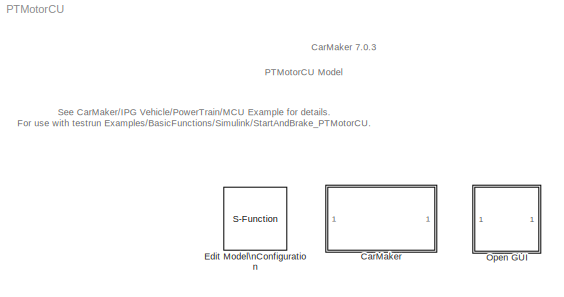
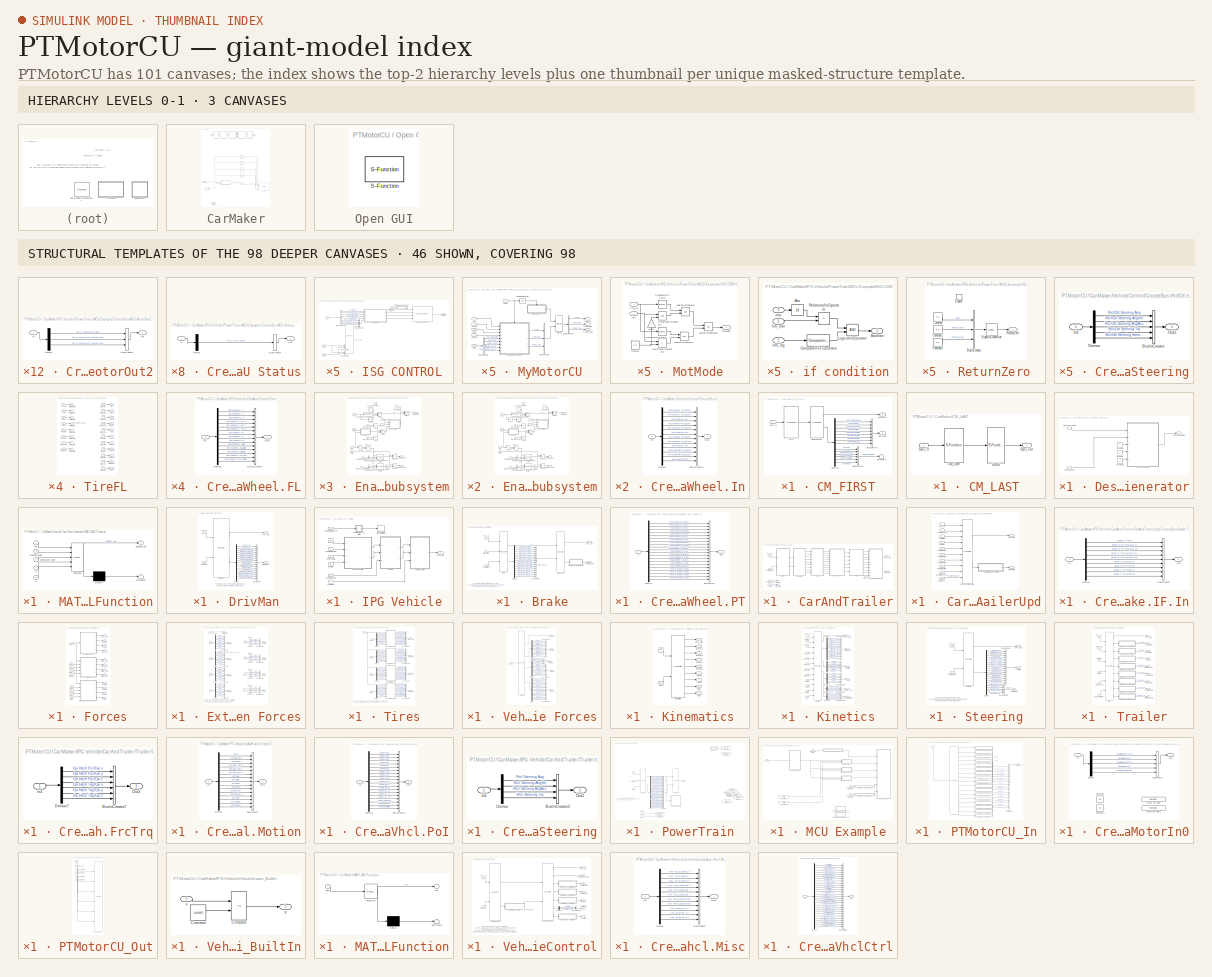
[diagram: thumbnail index - top-2 hierarchy levels (3 canvases) + 46 structural-template representatives of the remaining 98 canvases]
MODEL PTMotorCU
KIND model
CONFIG InitFcn = xData = [0 0.128];\nyData = [150 150];
CONFIG PreLoadFcn = xData = [0 13.5 21 35 50 100];\nyData = [150 150 95 57 39 20];
BLOCK [SubSystem] CarMaker
  Ports = []
  RequestExecContextInheritance = off
  SID = 1
  TreatAsAtomicUnit = on
BLOCK [SubSystem] CarMaker/CM_FIRST
  Ports = [1, 2]
  RequestExecContextInheritance = off
  SID = 2043
BLOCK [BusCreator] CarMaker/CM_FIRST/BusCreator1
  InheritFromInputs = on
  Inputs = 8
  Ports = [8, 1]
  SID = 2051
BLOCK [BusCreator] CarMaker/CM_FIRST/BusCreator2
  InheritFromInputs = on
  Inputs = 6
  Ports = [6, 1]
  SID = 2052
BLOCK [Demux] CarMaker/CM_FIRST/Demux1
  Outputs = 14
  Ports = [1, 14]
  SID = 2053
BLOCK [Outport] CarMaker/CM_FIRST/Env.Misc
  IconDisplay = Port number
  Port = 2
  SID = 2058
BLOCK [S-Function] CarMaker/CM_FIRST/Environment
  EnableBusSupport = off
  FunctionName = CM_Sfun
  Parameters = 'Environment'
  Ports = [1, 2]
  SFcnIsStateOwnerBlock = off
  SFunctionDeploymentMode = off
  SID = 2054
BLOCK [S-Function] CarMaker/CM_FIRST/IoIn
  EnableBusSupport = off
  FunctionName = CM_Sfun
  Parameters = 'IoIn'
  Ports = [1, 1]
  SFcnIsStateOwnerBlock = off
  SFunctionDeploymentMode = off
  SID = 2055
BLOCK [Inport] CarMaker/CM_FIRST/Sync_In
  IconDisplay = Port number
  SID = 2050
BLOCK [Outport] CarMaker/CM_FIRST/Sync_Out
  IconDisplay = Port number
  SID = 2057
BLOCK [Terminator] CarMaker/CM_FIRST/Terminator
  SID = 2056
BLOCK [SubSystem] CarMaker/CM_LAST
  Ports = [1, 1]
  RequestExecContextInheritance = off
  SID = 2044
BLOCK [S-Function] CarMaker/CM_LAST/CM_User
  EnableBusSupport = off
  FunctionName = CM_Sfun
  Parameters = 'CM_User'
  Ports = [1, 1]
  SFcnIsStateOwnerBlock = off
  SFunctionDeploymentMode = off
  SID = 2060
BLOCK [S-Function] CarMaker/CM_LAST/IoOut
  EnableBusSupport = off
  FunctionName = CM_Sfun
  Parameters = 'IoOut'
  Ports = [1, 1]
  SFcnIsStateOwnerBlock = off
  SFunctionDeploymentMode = off
  SID = 2061
BLOCK [Inport] CarMaker/CM_LAST/Sync_In
  IconDisplay = Port number
  SID = 2059
BLOCK [Outport] CarMaker/CM_LAST/Sync_Out
  IconDisplay = Port number
  SID = 2062
BLOCK [SubSystem] CarMaker/Desired Yaw Rate Generator
  Commented = on
  Ports = [2, 1]
  RequestExecContextInheritance = off
  SID = 3156
BLOCK [Constant] CarMaker/Desired Yaw Rate Generator/Constant
  SID = 3159
  Value = Lf
BLOCK [Constant] CarMaker/Desired Yaw Rate Generator/Constant1
  SID = 3160
  Value = 0
BLOCK [Constant] CarMaker/Desired Yaw Rate Generator/Constant2
  SID = 3161
  Value = Lr
BLOCK [Outport] CarMaker/Desired Yaw Rate Generator/Desired Yaw Rate
  IconDisplay = Port number
  SID = 3163
BLOCK [Inport] CarMaker/Desired Yaw Rate Generator/Linear Car Velocity
  IconDisplay = Port number
  SID = 3157
BLOCK [SubSystem] CarMaker/Desired Yaw Rate Generator/MATLAB Function
  ErrorFcn = Stateflow.Translate.translate
  PermitHierarchicalResolution = ExplicitOnly
  Ports = [5, 1]
  RequestExecContextInheritance = off
  SFBlockType = MATLAB Function
  SID = 3162
  TreatAsAtomicUnit = on
BLOCK [Demux] CarMaker/Desired Yaw Rate Generator/MATLAB Function/ Demux 
  Outputs = 1
  Ports = [1, 1]
  SID = 3162::20
BLOCK [S-Function] CarMaker/Desired Yaw Rate Generator/MATLAB Function/ SFunction 
  EnableBusSupport = on
  FunctionName = sf_sfun
  PortCounts = [5 2]
  Ports = [5, 2]
  SFcnIsStateOwnerBlock = off
  SFunctionDeploymentMode = off
  SID = 3162::19
  Tag = Stateflow S-Function PTMotorCU 2
BLOCK [Terminator] CarMaker/Desired Yaw Rate Generator/MATLAB Function/ Terminator 
  SID = 3162::21
BLOCK [Inport] CarMaker/Desired Yaw Rate Generator/MATLAB Function/Lf
  IconDisplay = Port number
  Port = 4
  SID = 3162::25
BLOCK [Inport] CarMaker/Desired Yaw Rate Generator/MATLAB Function/Lr
  IconDisplay = Port number
  Port = 5
  SID = 3162::26
BLOCK [Inport] CarMaker/Desired Yaw Rate Generator/MATLAB Function/Vcg
  IconDisplay = Port number
  SID = 3162::1
BLOCK [Outport] CarMaker/Desired Yaw Rate Generator/MATLAB Function/desired_yaw
  IconDisplay = Port number
  SID = 3162::5
BLOCK [Inport] CarMaker/Desired Yaw Rate Generator/MATLAB Function/steering_angle
  IconDisplay = Port number
  Port = 2
  SID = 3162::23
BLOCK [Inport] CarMaker/Desired Yaw Rate Generator/MATLAB Function/understeer_coeff
  IconDisplay = Port number
  Port = 3
  SID = 3162::24
BLOCK [Inport] CarMaker/Desired Yaw Rate Generator/steering angle
  IconDisplay = Port number
  Port = 2
  SID = 3158
BLOCK [SubSystem] CarMaker/DrivMan
  Ports = [2, 2]
  RequestExecContextInheritance = off
  SID = 2045
BLOCK [BusCreator] CarMaker/DrivMan/BusCreator
  InheritFromInputs = on
  Inputs = 17
  Ports = [17, 1]
  SID = 2065
BLOCK [Demux] CarMaker/DrivMan/Demux
  Outputs = 17
  Ports = [1, 17]
  SID = 2066
BLOCK [S-Function] CarMaker/DrivMan/DrivMan
  EnableBusSupport = off
  FunctionName = CM_Sfun
  Parameters = 'DrivMan'
  Ports = [2, 2]
  SFcnIsStateOwnerBlock = off
  SFunctionDeploymentMode = off
  SID = 2067
BLOCK [Outport] CarMaker/DrivMan/DrivMan.Out
  IconDisplay = Port number
  Port = 2
  SID = 2069
BLOCK [Inport] CarMaker/DrivMan/Env.Misc
  IconDisplay = Port number
  Port = 2
  SID = 2064
BLOCK [Inport] CarMaker/DrivMan/Sync_In
  IconDisplay = Port number
  SID = 2063
BLOCK [Outport] CarMaker/DrivMan/Sync_Out
  IconDisplay = Port number
  SID = 2068
BLOCK [Ground] CarMaker/Ground
  SID = 2046
BLOCK [SubSystem] CarMaker/IPG Vehicle
  Ports = [7, 1]
  RequestExecContextInheritance = off
  SID = 2047
  TreatAsAtomicUnit = on
BLOCK [SubSystem] CarMaker/IPG Vehicle/Brake
  Ports = [3, 2]
  RequestExecContextInheritance = off
  SID = 2078
BLOCK [S-Function] CarMaker/IPG Vehicle/Brake/Brake
  EnableBusSupport = off
  FunctionName = CM_Sfun
  Parameters = 'Brake'
  Ports = [3, 2]
  SFcnIsStateOwnerBlock = off
  SFunctionDeploymentMode = off
  SID = 2082
BLOCK [Inport] CarMaker/IPG Vehicle/Brake/Brake.IF.In
  IconDisplay = Port number
  Port = 2
  SID = 2080
BLOCK [S-Function] CarMaker/IPG Vehicle/Brake/BrakeUpd
  EnableBusSupport = off
  FunctionName = CM_Sfun
  Parameters = 'BrakeUpd'
  Ports = [2, 2]
  SFcnIsStateOwnerBlock = off
  SFunctionDeploymentMode = off
  SID = 2083
BLOCK [BusCreator] CarMaker/IPG Vehicle/Brake/BusCreator1
  InheritFromInputs = on
  Inputs = 16
  Ports = [16, 1]
  SID = 2084
BLOCK [SubSystem] CarMaker/IPG Vehicle/Brake/CreateBus Vhcl.Wheel.PT
  Ports = [1, 1]
  RequestExecContextInheritance = off
  SID = 2085
BLOCK [BusCreator] CarMaker/IPG Vehicle/Brake/CreateBus Vhcl.Wheel.PT/BusCreator1
  InheritFromInputs = on
  Inputs = 20
  Ports = [20, 1]
  SID = 2087
BLOCK [Demux] CarMaker/IPG Vehicle/Brake/CreateBus Vhcl.Wheel.PT/Demux1
  Outputs = 20
  Ports = [1, 20]
  SID = 2088
BLOCK [Inport] CarMaker/IPG Vehicle/Brake/CreateBus Vhcl.Wheel.PT/In
  IconDisplay = Port number
  SID = 2086
BLOCK [Outport] CarMaker/IPG Vehicle/Brake/CreateBus Vhcl.Wheel.PT/Out
  IconDisplay = Port number
  SID = 2089
BLOCK [Demux] CarMaker/IPG Vehicle/Brake/Demux
  Outputs = 16
  Ports = [1, 16]
  SID = 2090
BLOCK [Inport] CarMaker/IPG Vehicle/Brake/Sync_In
  IconDisplay = Port number
  SID = 2079
BLOCK [Outport] CarMaker/IPG Vehicle/Brake/Sync_Out
  IconDisplay = Port number
  SID = 2091
BLOCK [Outport] CarMaker/IPG Vehicle/Brake/Vhcl.Wheel.PT
  IconDisplay = Port number
  Port = 2
  SID = 2092
BLOCK [Inport] CarMaker/IPG Vehicle/Brake/VhclCtrl.Brake
  IconDisplay = Port number
  Port = 3
  SID = 2081
BLOCK [SubSystem] CarMaker/IPG Vehicle/CarAndTrailer
  Ports = [4, 2]
  RequestExecContextInheritance = off
  SID = 2095
BLOCK [Outport] CarMaker/IPG Vehicle/CarAndTrailer/Brake.IF.In
  IconDisplay = Port number
  Port = 2
  SID = 2495
BLOCK [SubSystem] CarMaker/IPG Vehicle/CarAndTrailer/CarAndTrailerUpd
  Ports = [10, 2]
  RequestExecContextInheritance = off
  SID = 2100
BLOCK [Outport] CarMaker/IPG Vehicle/CarAndTrailer/CarAndTrailerUpd/Brake.IF.In
  IconDisplay = Port number
  Port = 2
  SID = 2118
BLOCK [Inport] CarMaker/IPG Vehicle/CarAndTrailer/CarAndTrailerUpd/Car.Hitch.FrcTrq
  IconDisplay = Port number
  Port = 9
  SID = 2109
BLOCK [S-Function] CarMaker/IPG Vehicle/CarAndTrailer/CarAndTrailerUpd/CarAndTrailerUpd
  EnableBusSupport = off
  FunctionName = CM_Sfun
  Parameters = 'CarAndTrUpd'
  Ports = [10, 2]
  SFcnIsStateOwnerBlock = off
  SFunctionDeploymentMode = off
  SID = 2111
BLOCK [SubSystem] CarMaker/IPG Vehicle/CarAndTrailer/CarAndTrailerUpd/CreateBus Brake.IF.In
  Ports = [1, 1]
  RequestExecContextInheritance = off
  SID = 2112
BLOCK [BusCreator] CarMaker/IPG Vehicle/CarAndTrailer/CarAndTrailerUpd/CreateBus Brake.IF.In/BusCreator
  InheritFromInputs = on
  Inputs = 9
  Ports = [9, 1]
  SID = 2114
BLOCK [Demux] CarMaker/IPG Vehicle/CarAndTrailer/CarAndTrailerUpd/CreateBus Brake.IF.In/Demux
  Outputs = 9
  Ports = [1, 9]
  SID = 2115
BLOCK [Inport] CarMaker/IPG Vehicle/CarAndTrailer/CarAndTrailerUpd/CreateBus Brake.IF.In/In
  IconDisplay = Port number
  SID = 2113
BLOCK [Outport] CarMaker/IPG Vehicle/CarAndTrailer/CarAndTrailerUpd/CreateBus Brake.IF.In/Out
  IconDisplay = Port number
  SID = 2116
BLOCK [Inport] CarMaker/IPG Vehicle/CarAndTrailer/CarAndTrailerUpd/Sync_In
  IconDisplay = Port number
  SID = 2101
BLOCK [Outport] CarMaker/IPG Vehicle/CarAndTrailer/CarAndTrailerUpd/Sync_Out
  IconDisplay = Port number
  SID = 2117
BLOCK [Inport] CarMaker/IPG Vehicle/CarAndTrailer/CarAndTrailerUpd/Vhcl.Fr1A
  IconDisplay = Port number
  Port = 10
  SID = 2110
BLOCK [Inport] CarMaker/IPG Vehicle/CarAndTrailer/CarAndTrailerUpd/Vhcl.Motion
  IconDisplay = Port number
  Port = 3
  SID = 2103
BLOCK [Inport] CarMaker/IPG Vehicle/CarAndTrailer/CarAndTrailerUpd/Vhcl.PoI
  IconDisplay = Port number
  Port = 4
  SID = 2104
BLOCK [Inport] CarMaker/IPG Vehicle/CarAndTrailer/CarAndTrailerUpd/Vhcl.Steering
  IconDisplay = Port number
  Port = 2
  SID = 2102
BLOCK [Inport] CarMaker/IPG Vehicle/CarAndTrailer/CarAndTrailerUpd/Vhcl.Wheel.FL
  IconDisplay = Port number
  Port = 5
  SID = 2105
BLOCK [Inport] CarMaker/IPG Vehicle/CarAndTrailer/CarAndTrailerUpd/Vhcl.Wheel.FR
  IconDisplay = Port number
  Port = 6
  SID = 2106
BLOCK [Inport] CarMaker/IPG Vehicle/CarAndTrailer/CarAndTrailerUpd/Vhcl.Wheel.RL
  IconDisplay = Port number
  Port = 7
  SID = 2107
BLOCK [Inport] CarMaker/IPG Vehicle/CarAndTrailer/CarAndTrailerUpd/Vhcl.Wheel.RR
  IconDisplay = Port number
  Port = 8
  SID = 2108
BLOCK [SubSystem] CarMaker/IPG Vehicle/CarAndTrailer/Forces
  Ports = [9, 12]
  RequestExecContextInheritance = off
  SID = 2119
BLOCK [Outport] CarMaker/IPG Vehicle/CarAndTrailer/Forces/Car.Aero
  IconDisplay = Port number
  Port = 3
  SID = 2370
BLOCK [Outport] CarMaker/IPG Vehicle/CarAndTrailer/Forces/Car.Load
  IconDisplay = Port number
  Port = 4
  SID = 2371
BLOCK [Outport] CarMaker/IPG Vehicle/CarAndTrailer/Forces/Car.Virtual
  IconDisplay = Port number
  Port = 2
  SID = 2369
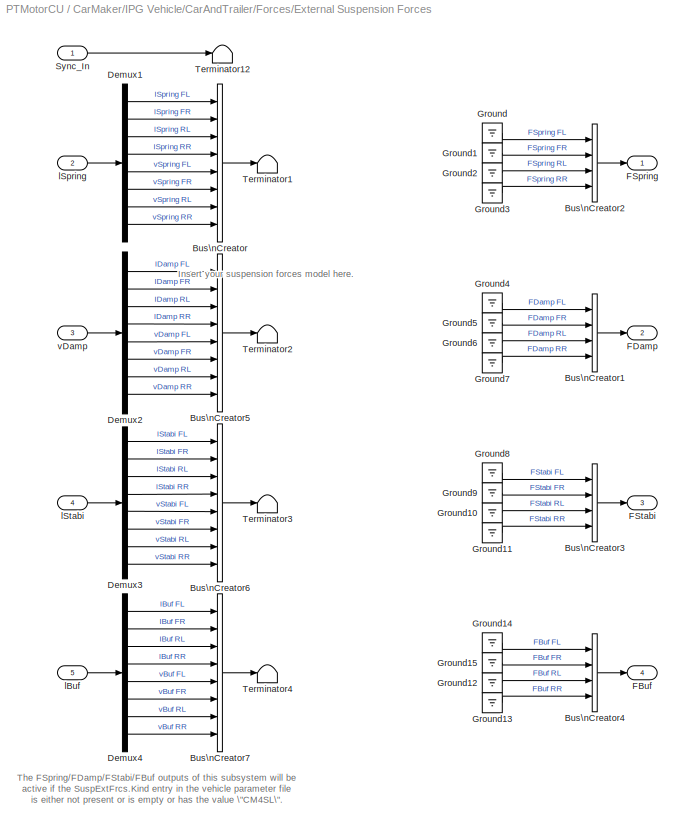
BLOCK [SubSystem] CarMaker/IPG Vehicle/CarAndTrailer/Forces/External Suspension Forces
  Ports = [5, 4]
  RequestExecContextInheritance = off
  SID = 2129
BLOCK [BusCreator] CarMaker/IPG Vehicle/CarAndTrailer/Forces/External Suspension Forces/Bus\nCreator
  DisplayOption = bar
  InheritFromInputs = on
  Inputs = 8
  Ports = [8, 1]
  SID = 2135
BLOCK [BusCreator] CarMaker/IPG Vehicle/CarAndTrailer/Forces/External Suspension Forces/Bus\nCreator1
  DisplayOption = bar
  InheritFromInputs = on
  Inputs = 4
  Ports = [4, 1]
  SID = 2136
BLOCK [BusCreator] CarMaker/IPG Vehicle/CarAndTrailer/Forces/External Suspension Forces/Bus\nCreator2
  DisplayOption = bar
  InheritFromInputs = on
  Inputs = 4
  Ports = [4, 1]
  SID = 2137
BLOCK [BusCreator] CarMaker/IPG Vehicle/CarAndTrailer/Forces/External Suspension Forces/Bus\nCreator3
  DisplayOption = bar
  InheritFromInputs = on
  Inputs = 4
  Ports = [4, 1]
  SID = 2138
BLOCK [BusCreator] CarMaker/IPG Vehicle/CarAndTrailer/Forces/External Suspension Forces/Bus\nCreator4
  DisplayOption = bar
  InheritFromInputs = on
  Inputs = 4
  Ports = [4, 1]
  SID = 2139
BLOCK [BusCreator] CarMaker/IPG Vehicle/CarAndTrailer/Forces/External Suspension Forces/Bus\nCreator5
  DisplayOption = bar
  InheritFromInputs = on
  Inputs = 8
  Ports = [8, 1]
  SID = 2140
BLOCK [BusCreator] CarMaker/IPG Vehicle/CarAndTrailer/Forces/External Suspension Forces/Bus\nCreator6
  DisplayOption = bar
  InheritFromInputs = on
  Inputs = 8
  Ports = [8, 1]
  SID = 2141
BLOCK [BusCreator] CarMaker/IPG Vehicle/CarAndTrailer/Forces/External Suspension Forces/Bus\nCreator7
  DisplayOption = bar
  InheritFromInputs = on
  Inputs = 8
  Ports = [8, 1]
  SID = 2142
BLOCK [Demux] CarMaker/IPG Vehicle/CarAndTrailer/Forces/External Suspension Forces/Demux1
  Outputs = 8
  Ports = [1, 8]
  SID = 2143
BLOCK [Demux] CarMaker/IPG Vehicle/CarAndTrailer/Forces/External Suspension Forces/Demux2
  Outputs = 8
  Ports = [1, 8]
  SID = 2144
BLOCK [Demux] CarMaker/IPG Vehicle/CarAndTrailer/Forces/External Suspension Forces/Demux3
  Outputs = 8
  Ports = [1, 8]
  SID = 2145
BLOCK [Demux] CarMaker/IPG Vehicle/CarAndTrailer/Forces/External Suspension Forces/Demux4
  Outputs = 8
  Ports = [1, 8]
  SID = 2146
BLOCK [Outport] CarMaker/IPG Vehicle/CarAndTrailer/Forces/External Suspension Forces/FBuf
  IconDisplay = Port number
  Port = 4
  SID = 2171
BLOCK [Outport] CarMaker/IPG Vehicle/CarAndTrailer/Forces/External Suspension Forces/FDamp
  IconDisplay = Port number
  Port = 2
  SID = 2169
BLOCK [Outport] CarMaker/IPG Vehicle/CarAndTrailer/Forces/External Suspension Forces/FSpring
  IconDisplay = Port number
  SID = 2168
BLOCK [Outport] CarMaker/IPG Vehicle/CarAndTrailer/Forces/External Suspension Forces/FStabi
  IconDisplay = Port number
  Port = 3
  SID = 2170
BLOCK [Ground] CarMaker/IPG Vehicle/CarAndTrailer/Forces/External Suspension Forces/Ground
  SID = 2147
BLOCK [Ground] CarMaker/IPG Vehicle/CarAndTrailer/Forces/External Suspension Forces/Ground1
  SID = 2148
BLOCK [Ground] CarMaker/IPG Vehicle/CarAndTrailer/Forces/External Suspension Forces/Ground10
  SID = 2149
BLOCK [Ground] CarMaker/IPG Vehicle/CarAndTrailer/Forces/External Suspension Forces/Ground11
  SID = 2150
BLOCK [Ground] CarMaker/IPG Vehicle/CarAndTrailer/Forces/External Suspension Forces/Ground12
  SID = 2151
BLOCK [Ground] CarMaker/IPG Vehicle/CarAndTrailer/Forces/External Suspension Forces/Ground13
  SID = 2152
BLOCK [Ground] CarMaker/IPG Vehicle/CarAndTrailer/Forces/External Suspension Forces/Ground14
  SID = 2153
BLOCK [Ground] CarMaker/IPG Vehicle/CarAndTrailer/Forces/External Suspension Forces/Ground15
  SID = 2154
BLOCK [Ground] CarMaker/IPG Vehicle/CarAndTrailer/Forces/External Suspension Forces/Ground2
  SID = 2155
BLOCK [Ground] CarMaker/IPG Vehicle/CarAndTrailer/Forces/External Suspension Forces/Ground3
  SID = 2156
BLOCK [Ground] CarMaker/IPG Vehicle/CarAndTrailer/Forces/External Suspension Forces/Ground4
  SID = 2157
BLOCK [Ground] CarMaker/IPG Vehicle/CarAndTrailer/Forces/External Suspension Forces/Ground5
  SID = 2158
BLOCK [Ground] CarMaker/IPG Vehicle/CarAndTrailer/Forces/External Suspension Forces/Ground6
  SID = 2159
BLOCK [Ground] CarMaker/IPG Vehicle/CarAndTrailer/Forces/External Suspension Forces/Ground7
  SID = 2160
BLOCK [Ground] CarMaker/IPG Vehicle/CarAndTrailer/Forces/External Suspension Forces/Ground8
  SID = 2161
BLOCK [Ground] CarMaker/IPG Vehicle/CarAndTrailer/Forces/External Suspension Forces/Ground9
  SID = 2162
BLOCK [Inport] CarMaker/IPG Vehicle/CarAndTrailer/Forces/External Suspension Forces/Sync_In
  IconDisplay = Port number
  SID = 2130
BLOCK [Terminator] CarMaker/IPG Vehicle/CarAndTrailer/Forces/External Suspension Forces/Terminator1
  SID = 2163
BLOCK [Terminator] CarMaker/IPG Vehicle/CarAndTrailer/Forces/External Suspension Forces/Terminator12
  SID = 2164
BLOCK [Terminator] CarMaker/IPG Vehicle/CarAndTrailer/Forces/External Suspension Forces/Terminator2
  SID = 2165
BLOCK [Terminator] CarMaker/IPG Vehicle/CarAndTrailer/Forces/External Suspension Forces/Terminator3
  SID = 2166
BLOCK [Terminator] CarMaker/IPG Vehicle/CarAndTrailer/Forces/External Suspension Forces/Terminator4
  SID = 2167
BLOCK [Inport] CarMaker/IPG Vehicle/CarAndTrailer/Forces/External Suspension Forces/lBuf
  IconDisplay = Port number
  Port = 5
  SID = 2134
BLOCK [Inport] CarMaker/IPG Vehicle/CarAndTrailer/Forces/External Suspension Forces/lSpring
  IconDisplay = Port number
  Port = 2
  SID = 2131
BLOCK [Inport] CarMaker/IPG Vehicle/CarAndTrailer/Forces/External Suspension Forces/lStabi
  IconDisplay = Port number
  Port = 4
  SID = 2133
BLOCK [Inport] CarMaker/IPG Vehicle/CarAndTrailer/Forces/External Suspension Forces/vDamp
  IconDisplay = Port number
  Port = 3
  SID = 2132
BLOCK [Outport] CarMaker/IPG Vehicle/CarAndTrailer/Forces/FBuf
  IconDisplay = Port number
  Port = 12
  SID = 2379
BLOCK [Outport] CarMaker/IPG Vehicle/CarAndTrailer/Forces/FDamp
  IconDisplay = Port number
  Port = 10
  SID = 2377
BLOCK [Outport] CarMaker/IPG Vehicle/CarAndTrailer/Forces/FSpring
  IconDisplay = Port number
  Port = 9
  SID = 2376
BLOCK [Outport] CarMaker/IPG Vehicle/CarAndTrailer/Forces/FStabi
  IconDisplay = Port number
  Port = 11
  SID = 2378
BLOCK [Inport] CarMaker/IPG Vehicle/CarAndTrailer/Forces/Sync_In
  IconDisplay = Port number
  SID = 2120
BLOCK [Outport] CarMaker/IPG Vehicle/CarAndTrailer/Forces/Sync_Out
  IconDisplay = Port number
  SID = 2368
BLOCK [Inport] CarMaker/IPG Vehicle/CarAndTrailer/Forces/TireFL_In
  IconDisplay = Port number
  Port = 2
  SID = 2121
BLOCK [Outport] CarMaker/IPG Vehicle/CarAndTrailer/Forces/TireFL_Out
  IconDisplay = Port number
  Port = 5
  SID = 2372
BLOCK [Inport] CarMaker/IPG Vehicle/CarAndTrailer/Forces/TireFR_In
  IconDisplay = Port number
  Port = 3
  SID = 2122
BLOCK [Outport] CarMaker/IPG Vehicle/CarAndTrailer/Forces/TireFR_Out
  IconDisplay = Port number
  Port = 6
  SID = 2373
BLOCK [Inport] CarMaker/IPG Vehicle/CarAndTrailer/Forces/TireRL_In
  IconDisplay = Port number
  Port = 4
  SID = 2123
BLOCK [Outport] CarMaker/IPG Vehicle/CarAndTrailer/Forces/TireRL_Out
  IconDisplay = Port number
  Port = 7
  SID = 2374
BLOCK [Inport] CarMaker/IPG Vehicle/CarAndTrailer/Forces/TireRR_In
  IconDisplay = Port number
  Port = 5
  SID = 2124
BLOCK [Outport] CarMaker/IPG Vehicle/CarAndTrailer/Forces/TireRR_Out
  IconDisplay = Port number
  Port = 8
  SID = 2375
BLOCK [SubSystem] CarMaker/IPG Vehicle/CarAndTrailer/Forces/Tires
  Ports = [5, 4]
  RequestExecContextInheritance = off
  SID = 2174
BLOCK [BusCreator] CarMaker/IPG Vehicle/CarAndTrailer/Forces/Tires/Bus\nCreator1
  DisplayOption = bar
  InheritFromInputs = on
  Inputs = 11
  Ports = [11, 1]
  SID = 2180
BLOCK [BusCreator] CarMaker/IPG Vehicle/CarAndTrailer/Forces/Tires/Bus\nCreator2
  DisplayOption = bar
  InheritFromInputs = on
  Inputs = 11
  Ports = [11, 1]
  SID = 2181
BLOCK [BusCreator] CarMaker/IPG Vehicle/CarAndTrailer/Forces/Tires/Bus\nCreator3
  DisplayOption = bar
  InheritFromInputs = on
  Inputs = 11
  Ports = [11, 1]
  SID = 2182
BLOCK [BusCreator] CarMaker/IPG Vehicle/CarAndTrailer/Forces/Tires/Bus\nCreator4
  DisplayOption = bar
  InheritFromInputs = on
  Inputs = 11
  Ports = [11, 1]
  SID = 2183
BLOCK [Demux] CarMaker/IPG Vehicle/CarAndTrailer/Forces/Tires/Demux1
  Outputs = 7
  Ports = [1, 7]
  SID = 2184
BLOCK [Demux] CarMaker/IPG Vehicle/CarAndTrailer/Forces/Tires/Demux2
  Outputs = 7
  Ports = [1, 7]
  SID = 2185
BLOCK [Demux] CarMaker/IPG Vehicle/CarAndTrailer/Forces/Tires/Demux3
  Outputs = 7
  Ports = [1, 7]
  SID = 2186
BLOCK [Demux] CarMaker/IPG Vehicle/CarAndTrailer/Forces/Tires/Demux8
  Outputs = 7
  Ports = [1, 7]
  SID = 2187
BLOCK [Inport] CarMaker/IPG Vehicle/CarAndTrailer/Forces/Tires/Sync_In
  IconDisplay = Port number
  SID = 2175
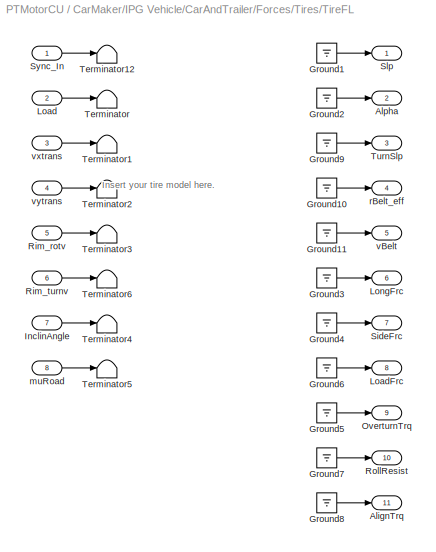
BLOCK [SubSystem] CarMaker/IPG Vehicle/CarAndTrailer/Forces/Tires/TireFL
  Ports = [8, 11]
  RequestExecContextInheritance = off
  SID = 2188
BLOCK [Outport] CarMaker/IPG Vehicle/CarAndTrailer/Forces/Tires/TireFL/AlignTrq
  IconDisplay = Port number
  Port = 11
  SID = 2226
BLOCK [Outport] CarMaker/IPG Vehicle/CarAndTrailer/Forces/Tires/TireFL/Alpha
  IconDisplay = Port number
  Port = 2
  SID = 2217
BLOCK [Ground] CarMaker/IPG Vehicle/CarAndTrailer/Forces/Tires/TireFL/Ground1
  SID = 2197
BLOCK [Ground] CarMaker/IPG Vehicle/CarAndTrailer/Forces/Tires/TireFL/Ground10
  SID = 2198
BLOCK [Ground] CarMaker/IPG Vehicle/CarAndTrailer/Forces/Tires/TireFL/Ground11
  SID = 2199
BLOCK [Ground] CarMaker/IPG Vehicle/CarAndTrailer/Forces/Tires/TireFL/Ground2
  SID = 2200
BLOCK [Ground] CarMaker/IPG Vehicle/CarAndTrailer/Forces/Tires/TireFL/Ground3
  SID = 2201
BLOCK [Ground] CarMaker/IPG Vehicle/CarAndTrailer/Forces/Tires/TireFL/Ground4
  SID = 2202
BLOCK [Ground] CarMaker/IPG Vehicle/CarAndTrailer/Forces/Tires/TireFL/Ground5
  SID = 2203
BLOCK [Ground] CarMaker/IPG Vehicle/CarAndTrailer/Forces/Tires/TireFL/Ground6
  SID = 2204
BLOCK [Ground] CarMaker/IPG Vehicle/CarAndTrailer/Forces/Tires/TireFL/Ground7
  SID = 2205
BLOCK [Ground] CarMaker/IPG Vehicle/CarAndTrailer/Forces/Tires/TireFL/Ground8
  SID = 2206
BLOCK [Ground] CarMaker/IPG Vehicle/CarAndTrailer/Forces/Tires/TireFL/Ground9
  SID = 2207
BLOCK [Inport] CarMaker/IPG Vehicle/CarAndTrailer/Forces/Tires/TireFL/InclinAngle
  IconDisplay = Port number
  Port = 7
  SID = 2195
BLOCK [Inport] CarMaker/IPG Vehicle/CarAndTrailer/Forces/Tires/TireFL/Load
  IconDisplay = Port number
  Port = 2
  SID = 2190
BLOCK [Outport] CarMaker/IPG Vehicle/CarAndTrailer/Forces/Tires/TireFL/LoadFrc
  IconDisplay = Port number
  Port = 8
  SID = 2223
BLOCK [Outport] CarMaker/IPG Vehicle/CarAndTrailer/Forces/Tires/TireFL/LongFrc
  IconDisplay = Port number
  Port = 6
  SID = 2221
BLOCK [Outport] CarMaker/IPG Vehicle/CarAndTrailer/Forces/Tires/TireFL/OverturnTrq
  IconDisplay = Port number
  Port = 9
  SID = 2224
BLOCK [Inport] CarMaker/IPG Vehicle/CarAndTrailer/Forces/Tires/TireFL/Rim_rotv
  IconDisplay = Port number
  Port = 5
  SID = 2193
BLOCK [Inport] CarMaker/IPG Vehicle/CarAndTrailer/Forces/Tires/TireFL/Rim_turnv
  IconDisplay = Port number
  Port = 6
  SID = 2194
BLOCK [Outport] CarMaker/IPG Vehicle/CarAndTrailer/Forces/Tires/TireFL/RollResist
  IconDisplay = Port number
  Port = 10
  SID = 2225
BLOCK [Outport] CarMaker/IPG Vehicle/CarAndTrailer/Forces/Tires/TireFL/SideFrc
  IconDisplay = Port number
  Port = 7
  SID = 2222
BLOCK [Outport] CarMaker/IPG Vehicle/CarAndTrailer/Forces/Tires/TireFL/Slp
  IconDisplay = Port number
  SID = 2216
BLOCK [Inport] CarMaker/IPG Vehicle/CarAndTrailer/Forces/Tires/TireFL/Sync_In
  IconDisplay = Port number
  SID = 2189
BLOCK [Terminator] CarMaker/IPG Vehicle/CarAndTrailer/Forces/Tires/TireFL/Terminator
  SID = 2208
BLOCK [Terminator] CarMaker/IPG Vehicle/CarAndTrailer/Forces/Tires/TireFL/Terminator1
  SID = 2209
BLOCK [Terminator] CarMaker/IPG Vehicle/CarAndTrailer/Forces/Tires/TireFL/Terminator12
  SID = 2210
BLOCK [Terminator] CarMaker/IPG Vehicle/CarAndTrailer/Forces/Tires/TireFL/Terminator2
  SID = 2211
BLOCK [Terminator] CarMaker/IPG Vehicle/CarAndTrailer/Forces/Tires/TireFL/Terminator3
  SID = 2212
BLOCK [Terminator] CarMaker/IPG Vehicle/CarAndTrailer/Forces/Tires/TireFL/Terminator4
  SID = 2213
BLOCK [Terminator] CarMaker/IPG Vehicle/CarAndTrailer/Forces/Tires/TireFL/Terminator5
  SID = 2214
BLOCK [Terminator] CarMaker/IPG Vehicle/CarAndTrailer/Forces/Tires/TireFL/Terminator6
  SID = 2215
BLOCK [Outport] CarMaker/IPG Vehicle/CarAndTrailer/Forces/Tires/TireFL/TurnSlp
  IconDisplay = Port number
  Port = 3
  SID = 2218
BLOCK [Inport] CarMaker/IPG Vehicle/CarAndTrailer/Forces/Tires/TireFL/muRoad
  IconDisplay = Port number
  Port = 8
  SID = 2196
BLOCK [Outport] CarMaker/IPG Vehicle/CarAndTrailer/Forces/Tires/TireFL/rBelt_eff
  IconDisplay = Port number
  Port = 4
  SID = 2219
BLOCK [Outport] CarMaker/IPG Vehicle/CarAndTrailer/Forces/Tires/TireFL/vBelt
  IconDisplay = Port number
  Port = 5
  SID = 2220
BLOCK [Inport] CarMaker/IPG Vehicle/CarAndTrailer/Forces/Tires/TireFL/vxtrans
  IconDisplay = Port number
  Port = 3
  SID = 2191
BLOCK [Inport] CarMaker/IPG Vehicle/CarAndTrailer/Forces/Tires/TireFL/vytrans
  IconDisplay = Port number
  Port = 4
  SID = 2192
BLOCK [Inport] CarMaker/IPG Vehicle/CarAndTrailer/Forces/Tires/TireFL_In
  IconDisplay = Port number
  Port = 2
  SID = 2176
BLOCK [Outport] CarMaker/IPG Vehicle/CarAndTrailer/Forces/Tires/TireFL_Out
  IconDisplay = Port number
  SID = 2348
BLOCK [SubSystem] CarMaker/IPG Vehicle/CarAndTrailer/Forces/Tires/TireFR
  Ports = [8, 11]
  RequestExecContextInheritance = off
  SID = 2228
BLOCK [Outport] CarMaker/IPG Vehicle/CarAndTrailer/Forces/Tires/TireFR/AlignTrq
  IconDisplay = Port number
  Port = 11
  SID = 2266
BLOCK [Outport] CarMaker/IPG Vehicle/CarAndTrailer/Forces/Tires/TireFR/Alpha
  IconDisplay = Port number
  Port = 2
  SID = 2257
BLOCK [Ground] CarMaker/IPG Vehicle/CarAndTrailer/Forces/Tires/TireFR/Ground1
  SID = 2237
BLOCK [Ground] CarMaker/IPG Vehicle/CarAndTrailer/Forces/Tires/TireFR/Ground10
  SID = 2238
BLOCK [Ground] CarMaker/IPG Vehicle/CarAndTrailer/Forces/Tires/TireFR/Ground11
  SID = 2239
BLOCK [Ground] CarMaker/IPG Vehicle/CarAndTrailer/Forces/Tires/TireFR/Ground2
  SID = 2240
BLOCK [Ground] CarMaker/IPG Vehicle/CarAndTrailer/Forces/Tires/TireFR/Ground3
  SID = 2241
BLOCK [Ground] CarMaker/IPG Vehicle/CarAndTrailer/Forces/Tires/TireFR/Ground4
  SID = 2242
BLOCK [Ground] CarMaker/IPG Vehicle/CarAndTrailer/Forces/Tires/TireFR/Ground5
  SID = 2243
BLOCK [Ground] CarMaker/IPG Vehicle/CarAndTrailer/Forces/Tires/TireFR/Ground6
  SID = 2244
BLOCK [Ground] CarMaker/IPG Vehicle/CarAndTrailer/Forces/Tires/TireFR/Ground7
  SID = 2245
BLOCK [Ground] CarMaker/IPG Vehicle/CarAndTrailer/Forces/Tires/TireFR/Ground8
  SID = 2246
BLOCK [Ground] CarMaker/IPG Vehicle/CarAndTrailer/Forces/Tires/TireFR/Ground9
  SID = 2247
BLOCK [Inport] CarMaker/IPG Vehicle/CarAndTrailer/Forces/Tires/TireFR/InclinAngle
  IconDisplay = Port number
  Port = 7
  SID = 2235
BLOCK [Inport] CarMaker/IPG Vehicle/CarAndTrailer/Forces/Tires/TireFR/Load
  IconDisplay = Port number
  Port = 2
  SID = 2230
BLOCK [Outport] CarMaker/IPG Vehicle/CarAndTrailer/Forces/Tires/TireFR/LoadFrc
  IconDisplay = Port number
  Port = 8
  SID = 2263
BLOCK [Outport] CarMaker/IPG Vehicle/CarAndTrailer/Forces/Tires/TireFR/LongFrc
  IconDisplay = Port number
  Port = 6
  SID = 2261
BLOCK [Outport] CarMaker/IPG Vehicle/CarAndTrailer/Forces/Tires/TireFR/OverturnTrq
  IconDisplay = Port number
  Port = 9
  SID = 2264
BLOCK [Inport] CarMaker/IPG Vehicle/CarAndTrailer/Forces/Tires/TireFR/Rim_rotv
  IconDisplay = Port number
  Port = 5
  SID = 2233
BLOCK [Inport] CarMaker/IPG Vehicle/CarAndTrailer/Forces/Tires/TireFR/Rim_turnv
  IconDisplay = Port number
  Port = 6
  SID = 2234
BLOCK [Outport] CarMaker/IPG Vehicle/CarAndTrailer/Forces/Tires/TireFR/RollResist
  IconDisplay = Port number
  Port = 10
  SID = 2265
BLOCK [Outport] CarMaker/IPG Vehicle/CarAndTrailer/Forces/Tires/TireFR/SideFrc
  IconDisplay = Port number
  Port = 7
  SID = 2262
BLOCK [Outport] CarMaker/IPG Vehicle/CarAndTrailer/Forces/Tires/TireFR/Slp
  IconDisplay = Port number
  SID = 2256
BLOCK [Inport] CarMaker/IPG Vehicle/CarAndTrailer/Forces/Tires/TireFR/Sync_In
  IconDisplay = Port number
  SID = 2229
BLOCK [Terminator] CarMaker/IPG Vehicle/CarAndTrailer/Forces/Tires/TireFR/Terminator
  SID = 2248
BLOCK [Terminator] CarMaker/IPG Vehicle/CarAndTrailer/Forces/Tires/TireFR/Terminator1
  SID = 2249
BLOCK [Terminator] CarMaker/IPG Vehicle/CarAndTrailer/Forces/Tires/TireFR/Terminator12
  SID = 2250
BLOCK [Terminator] CarMaker/IPG Vehicle/CarAndTrailer/Forces/Tires/TireFR/Terminator2
  SID = 2251
BLOCK [Terminator] CarMaker/IPG Vehicle/CarAndTrailer/Forces/Tires/TireFR/Terminator3
  SID = 2252
BLOCK [Terminator] CarMaker/IPG Vehicle/CarAndTrailer/Forces/Tires/TireFR/Terminator4
  SID = 2253
BLOCK [Terminator] CarMaker/IPG Vehicle/CarAndTrailer/Forces/Tires/TireFR/Terminator5
  SID = 2254
BLOCK [Terminator] CarMaker/IPG Vehicle/CarAndTrailer/Forces/Tires/TireFR/Terminator6
  SID = 2255
BLOCK [Outport] CarMaker/IPG Vehicle/CarAndTrailer/Forces/Tires/TireFR/TurnSlp
  IconDisplay = Port number
  Port = 3
  SID = 2258
BLOCK [Inport] CarMaker/IPG Vehicle/CarAndTrailer/Forces/Tires/TireFR/muRoad
  IconDisplay = Port number
  Port = 8
  SID = 2236
BLOCK [Outport] CarMaker/IPG Vehicle/CarAndTrailer/Forces/Tires/TireFR/rBelt_eff
  IconDisplay = Port number
  Port = 4
  SID = 2259
BLOCK [Outport] CarMaker/IPG Vehicle/CarAndTrailer/Forces/Tires/TireFR/vBelt
  IconDisplay = Port number
  Port = 5
  SID = 2260
BLOCK [Inport] CarMaker/IPG Vehicle/CarAndTrailer/Forces/Tires/TireFR/vxtrans
  IconDisplay = Port number
  Port = 3
  SID = 2231
BLOCK [Inport] CarMaker/IPG Vehicle/CarAndTrailer/Forces/Tires/TireFR/vytrans
  IconDisplay = Port number
  Port = 4
  SID = 2232
BLOCK [Inport] CarMaker/IPG Vehicle/CarAndTrailer/Forces/Tires/TireFR_In
  IconDisplay = Port number
  Port = 3
  SID = 2177
BLOCK [Outport] CarMaker/IPG Vehicle/CarAndTrailer/Forces/Tires/TireFR_Out
  IconDisplay = Port number
  Port = 2
  SID = 2349
BLOCK [SubSystem] CarMaker/IPG Vehicle/CarAndTrailer/Forces/Tires/TireRL
  Ports = [8, 11]
  RequestExecContextInheritance = off
  SID = 2268
BLOCK [Outport] CarMaker/IPG Vehicle/CarAndTrailer/Forces/Tires/TireRL/AlignTrq
  IconDisplay = Port number
  Port = 11
  SID = 2306
BLOCK [Outport] CarMaker/IPG Vehicle/CarAndTrailer/Forces/Tires/TireRL/Alpha
  IconDisplay = Port number
  Port = 2
  SID = 2297
BLOCK [Ground] CarMaker/IPG Vehicle/CarAndTrailer/Forces/Tires/TireRL/Ground1
  SID = 2277
BLOCK [Ground] CarMaker/IPG Vehicle/CarAndTrailer/Forces/Tires/TireRL/Ground10
  SID = 2278
BLOCK [Ground] CarMaker/IPG Vehicle/CarAndTrailer/Forces/Tires/TireRL/Ground11
  SID = 2279
BLOCK [Ground] CarMaker/IPG Vehicle/CarAndTrailer/Forces/Tires/TireRL/Ground2
  SID = 2280
BLOCK [Ground] CarMaker/IPG Vehicle/CarAndTrailer/Forces/Tires/TireRL/Ground3
  SID = 2281
BLOCK [Ground] CarMaker/IPG Vehicle/CarAndTrailer/Forces/Tires/TireRL/Ground4
  SID = 2282
BLOCK [Ground] CarMaker/IPG Vehicle/CarAndTrailer/Forces/Tires/TireRL/Ground5
  SID = 2283
BLOCK [Ground] CarMaker/IPG Vehicle/CarAndTrailer/Forces/Tires/TireRL/Ground6
  SID = 2284
BLOCK [Ground] CarMaker/IPG Vehicle/CarAndTrailer/Forces/Tires/TireRL/Ground7
  SID = 2285
BLOCK [Ground] CarMaker/IPG Vehicle/CarAndTrailer/Forces/Tires/TireRL/Ground8
  SID = 2286
BLOCK [Ground] CarMaker/IPG Vehicle/CarAndTrailer/Forces/Tires/TireRL/Ground9
  SID = 2287
BLOCK [Inport] CarMaker/IPG Vehicle/CarAndTrailer/Forces/Tires/TireRL/InclinAngle
  IconDisplay = Port number
  Port = 7
  SID = 2275
BLOCK [Inport] CarMaker/IPG Vehicle/CarAndTrailer/Forces/Tires/TireRL/Load
  IconDisplay = Port number
  Port = 2
  SID = 2270
BLOCK [Outport] CarMaker/IPG Vehicle/CarAndTrailer/Forces/Tires/TireRL/LoadFrc
  IconDisplay = Port number
  Port = 8
  SID = 2303
BLOCK [Outport] CarMaker/IPG Vehicle/CarAndTrailer/Forces/Tires/TireRL/LongFrc
  IconDisplay = Port number
  Port = 6
  SID = 2301
BLOCK [Outport] CarMaker/IPG Vehicle/CarAndTrailer/Forces/Tires/TireRL/OverturnTrq
  IconDisplay = Port number
  Port = 9
  SID = 2304
BLOCK [Inport] CarMaker/IPG Vehicle/CarAndTrailer/Forces/Tires/TireRL/Rim_rotv
  IconDisplay = Port number
  Port = 5
  SID = 2273
BLOCK [Inport] CarMaker/IPG Vehicle/CarAndTrailer/Forces/Tires/TireRL/Rim_turnv
  IconDisplay = Port number
  Port = 6
  SID = 2274
BLOCK [Outport] CarMaker/IPG Vehicle/CarAndTrailer/Forces/Tires/TireRL/RollResist
  IconDisplay = Port number
  Port = 10
  SID = 2305
BLOCK [Outport] CarMaker/IPG Vehicle/CarAndTrailer/Forces/Tires/TireRL/SideFrc
  IconDisplay = Port number
  Port = 7
  SID = 2302
BLOCK [Outport] CarMaker/IPG Vehicle/CarAndTrailer/Forces/Tires/TireRL/Slp
  IconDisplay = Port number
  SID = 2296
BLOCK [Inport] CarMaker/IPG Vehicle/CarAndTrailer/Forces/Tires/TireRL/Sync_In
  IconDisplay = Port number
  SID = 2269
BLOCK [Terminator] CarMaker/IPG Vehicle/CarAndTrailer/Forces/Tires/TireRL/Terminator
  SID = 2288
BLOCK [Terminator] CarMaker/IPG Vehicle/CarAndTrailer/Forces/Tires/TireRL/Terminator1
  SID = 2289
BLOCK [Terminator] CarMaker/IPG Vehicle/CarAndTrailer/Forces/Tires/TireRL/Terminator12
  SID = 2290
BLOCK [Terminator] CarMaker/IPG Vehicle/CarAndTrailer/Forces/Tires/TireRL/Terminator2
  SID = 2291
BLOCK [Terminator] CarMaker/IPG Vehicle/CarAndTrailer/Forces/Tires/TireRL/Terminator3
  SID = 2292
BLOCK [Terminator] CarMaker/IPG Vehicle/CarAndTrailer/Forces/Tires/TireRL/Terminator4
  SID = 2293
BLOCK [Terminator] CarMaker/IPG Vehicle/CarAndTrailer/Forces/Tires/TireRL/Terminator5
  SID = 2294
BLOCK [Terminator] CarMaker/IPG Vehicle/CarAndTrailer/Forces/Tires/TireRL/Terminator6
  SID = 2295
BLOCK [Outport] CarMaker/IPG Vehicle/CarAndTrailer/Forces/Tires/TireRL/TurnSlp
  IconDisplay = Port number
  Port = 3
  SID = 2298
BLOCK [Inport] CarMaker/IPG Vehicle/CarAndTrailer/Forces/Tires/TireRL/muRoad
  IconDisplay = Port number
  Port = 8
  SID = 2276
BLOCK [Outport] CarMaker/IPG Vehicle/CarAndTrailer/Forces/Tires/TireRL/rBelt_eff
  IconDisplay = Port number
  Port = 4
  SID = 2299
BLOCK [Outport] CarMaker/IPG Vehicle/CarAndTrailer/Forces/Tires/TireRL/vBelt
  IconDisplay = Port number
  Port = 5
  SID = 2300
BLOCK [Inport] CarMaker/IPG Vehicle/CarAndTrailer/Forces/Tires/TireRL/vxtrans
  IconDisplay = Port number
  Port = 3
  SID = 2271
BLOCK [Inport] CarMaker/IPG Vehicle/CarAndTrailer/Forces/Tires/TireRL/vytrans
  IconDisplay = Port number
  Port = 4
  SID = 2272
BLOCK [Inport] CarMaker/IPG Vehicle/CarAndTrailer/Forces/Tires/TireRL_In
  IconDisplay = Port number
  Port = 4
  SID = 2178
BLOCK [Outport] CarMaker/IPG Vehicle/CarAndTrailer/Forces/Tires/TireRL_Out
  IconDisplay = Port number
  Port = 3
  SID = 2350
BLOCK [SubSystem] CarMaker/IPG Vehicle/CarAndTrailer/Forces/Tires/TireRR
  Ports = [8, 11]
  RequestExecContextInheritance = off
  SID = 2308
BLOCK [Outport] CarMaker/IPG Vehicle/CarAndTrailer/Forces/Tires/TireRR/AlignTrq
  IconDisplay = Port number
  Port = 11
  SID = 2346
BLOCK [Outport] CarMaker/IPG Vehicle/CarAndTrailer/Forces/Tires/TireRR/Alpha
  IconDisplay = Port number
  Port = 2
  SID = 2337
BLOCK [Ground] CarMaker/IPG Vehicle/CarAndTrailer/Forces/Tires/TireRR/Ground1
  SID = 2317
BLOCK [Ground] CarMaker/IPG Vehicle/CarAndTrailer/Forces/Tires/TireRR/Ground10
  SID = 2318
BLOCK [Ground] CarMaker/IPG Vehicle/CarAndTrailer/Forces/Tires/TireRR/Ground11
  SID = 2319
BLOCK [Ground] CarMaker/IPG Vehicle/CarAndTrailer/Forces/Tires/TireRR/Ground2
  SID = 2320
BLOCK [Ground] CarMaker/IPG Vehicle/CarAndTrailer/Forces/Tires/TireRR/Ground3
  SID = 2321
BLOCK [Ground] CarMaker/IPG Vehicle/CarAndTrailer/Forces/Tires/TireRR/Ground4
  SID = 2322
BLOCK [Ground] CarMaker/IPG Vehicle/CarAndTrailer/Forces/Tires/TireRR/Ground5
  SID = 2323
BLOCK [Ground] CarMaker/IPG Vehicle/CarAndTrailer/Forces/Tires/TireRR/Ground6
  SID = 2324
BLOCK [Ground] CarMaker/IPG Vehicle/CarAndTrailer/Forces/Tires/TireRR/Ground7
  SID = 2325
BLOCK [Ground] CarMaker/IPG Vehicle/CarAndTrailer/Forces/Tires/TireRR/Ground8
  SID = 2326
BLOCK [Ground] CarMaker/IPG Vehicle/CarAndTrailer/Forces/Tires/TireRR/Ground9
  SID = 2327
BLOCK [Inport] CarMaker/IPG Vehicle/CarAndTrailer/Forces/Tires/TireRR/InclinAngle
  IconDisplay = Port number
  Port = 7
  SID = 2315
BLOCK [Inport] CarMaker/IPG Vehicle/CarAndTrailer/Forces/Tires/TireRR/Load
  IconDisplay = Port number
  Port = 2
  SID = 2310
BLOCK [Outport] CarMaker/IPG Vehicle/CarAndTrailer/Forces/Tires/TireRR/LoadFrc
  IconDisplay = Port number
  Port = 8
  SID = 2343
BLOCK [Outport] CarMaker/IPG Vehicle/CarAndTrailer/Forces/Tires/TireRR/LongFrc
  IconDisplay = Port number
  Port = 6
  SID = 2341
BLOCK [Outport] CarMaker/IPG Vehicle/CarAndTrailer/Forces/Tires/TireRR/OverturnTrq
  IconDisplay = Port number
  Port = 9
  SID = 2344
BLOCK [Inport] CarMaker/IPG Vehicle/CarAndTrailer/Forces/Tires/TireRR/Rim_rotv
  IconDisplay = Port number
  Port = 5
  SID = 2313
BLOCK [Inport] CarMaker/IPG Vehicle/CarAndTrailer/Forces/Tires/TireRR/Rim_turnv
  IconDisplay = Port number
  Port = 6
  SID = 2314
BLOCK [Outport] CarMaker/IPG Vehicle/CarAndTrailer/Forces/Tires/TireRR/RollResist
  IconDisplay = Port number
  Port = 10
  SID = 2345
BLOCK [Outport] CarMaker/IPG Vehicle/CarAndTrailer/Forces/Tires/TireRR/SideFrc
  IconDisplay = Port number
  Port = 7
  SID = 2342
BLOCK [Outport] CarMaker/IPG Vehicle/CarAndTrailer/Forces/Tires/TireRR/Slp
  IconDisplay = Port number
  SID = 2336
BLOCK [Inport] CarMaker/IPG Vehicle/CarAndTrailer/Forces/Tires/TireRR/Sync_In
  IconDisplay = Port number
  SID = 2309
BLOCK [Terminator] CarMaker/IPG Vehicle/CarAndTrailer/Forces/Tires/TireRR/Terminator
  SID = 2328
BLOCK [Terminator] CarMaker/IPG Vehicle/CarAndTrailer/Forces/Tires/TireRR/Terminator1
  SID = 2329
BLOCK [Terminator] CarMaker/IPG Vehicle/CarAndTrailer/Forces/Tires/TireRR/Terminator12
  SID = 2330
BLOCK [Terminator] CarMaker/IPG Vehicle/CarAndTrailer/Forces/Tires/TireRR/Terminator2
  SID = 2331
BLOCK [Terminator] CarMaker/IPG Vehicle/CarAndTrailer/Forces/Tires/TireRR/Terminator3
  SID = 2332
BLOCK [Terminator] CarMaker/IPG Vehicle/CarAndTrailer/Forces/Tires/TireRR/Terminator4
  SID = 2333
BLOCK [Terminator] CarMaker/IPG Vehicle/CarAndTrailer/Forces/Tires/TireRR/Terminator5
  SID = 2334
BLOCK [Terminator] CarMaker/IPG Vehicle/CarAndTrailer/Forces/Tires/TireRR/Terminator6
  SID = 2335
BLOCK [Outport] CarMaker/IPG Vehicle/CarAndTrailer/Forces/Tires/TireRR/TurnSlp
  IconDisplay = Port number
  Port = 3
  SID = 2338
BLOCK [Inport] CarMaker/IPG Vehicle/CarAndTrailer/Forces/Tires/TireRR/muRoad
  IconDisplay = Port number
  Port = 8
  SID = 2316
BLOCK [Outport] CarMaker/IPG Vehicle/CarAndTrailer/Forces/Tires/TireRR/rBelt_eff
  IconDisplay = Port number
  Port = 4
  SID = 2339
BLOCK [Outport] CarMaker/IPG Vehicle/CarAndTrailer/Forces/Tires/TireRR/vBelt
  IconDisplay = Port number
  Port = 5
  SID = 2340
BLOCK [Inport] CarMaker/IPG Vehicle/CarAndTrailer/Forces/Tires/TireRR/vxtrans
  IconDisplay = Port number
  Port = 3
  SID = 2311
BLOCK [Inport] CarMaker/IPG Vehicle/CarAndTrailer/Forces/Tires/TireRR/vytrans
  IconDisplay = Port number
  Port = 4
  SID = 2312
BLOCK [Inport] CarMaker/IPG Vehicle/CarAndTrailer/Forces/Tires/TireRR_In
  IconDisplay = Port number
  Port = 5
  SID = 2179
BLOCK [Outport] CarMaker/IPG Vehicle/CarAndTrailer/Forces/Tires/TireRR_Out
  IconDisplay = Port number
  Port = 4
  SID = 2351
BLOCK [SubSystem] CarMaker/IPG Vehicle/CarAndTrailer/Forces/Vehicle Forces
  Ports = [1, 4]
  RequestExecContextInheritance = off
  SID = 2353
BLOCK [BusCreator] CarMaker/IPG Vehicle/CarAndTrailer/Forces/Vehicle Forces/BusCreator1
  InheritFromInputs = on
  Inputs = 4
  Ports = [4, 1]
  SID = 2357
BLOCK [BusCreator] CarMaker/IPG Vehicle/CarAndTrailer/Forces/Vehicle Forces/BusCreator2
  InheritFromInputs = on
  Inputs = 9
  Ports = [9, 1]
  SID = 2358
BLOCK [BusCreator] CarMaker/IPG Vehicle/CarAndTrailer/Forces/Vehicle Forces/Bus\nCreator1
  DisplayOption = bar
  InheritFromInputs = on
  Inputs = 12
  Ports = [12, 1]
  SID = 2355
BLOCK [BusCreator] CarMaker/IPG Vehicle/CarAndTrailer/Forces/Vehicle Forces/Bus\nCreator8
  DisplayOption = bar
  InheritFromInputs = on
  Inputs = 16
  Ports = [16, 1]
  SID = 2356
BLOCK [Outport] CarMaker/IPG Vehicle/CarAndTrailer/Forces/Vehicle Forces/Car.Aero
  IconDisplay = Port number
  Port = 3
  SID = 2366
BLOCK [Outport] CarMaker/IPG Vehicle/CarAndTrailer/Forces/Vehicle Forces/Car.Load
  IconDisplay = Port number
  Port = 4
  SID = 2367
BLOCK [Outport] CarMaker/IPG Vehicle/CarAndTrailer/Forces/Vehicle Forces/Car.Virtual
  IconDisplay = Port number
  Port = 2
  SID = 2365
BLOCK [Demux] CarMaker/IPG Vehicle/CarAndTrailer/Forces/Vehicle Forces/Demux
  Outputs = 16
  Ports = [1, 16]
  SID = 2359
BLOCK [Demux] CarMaker/IPG Vehicle/CarAndTrailer/Forces/Vehicle Forces/Demux1
  Outputs = 12
  Ports = [1, 12]
  SID = 2360
BLOCK [Demux] CarMaker/IPG Vehicle/CarAndTrailer/Forces/Vehicle Forces/Demux2
  Outputs = 13
  Ports = [1, 13]
  SID = 2361
BLOCK [S-Function] CarMaker/IPG Vehicle/CarAndTrailer/Forces/Vehicle Forces/Forces
  EnableBusSupport = off
  FunctionName = CM_Sfun
  Parameters = 'Forces'
  Ports = [1, 4]
  SFcnIsStateOwnerBlock = off
  SFunctionDeploymentMode = off
  SID = 2362
BLOCK [Inport] CarMaker/IPG Vehicle/CarAndTrailer/Forces/Vehicle Forces/Sync_In
  IconDisplay = Port number
  SID = 2354
BLOCK [Outport] CarMaker/IPG Vehicle/CarAndTrailer/Forces/Vehicle Forces/Sync_Out
  IconDisplay = Port number
  SID = 2364
BLOCK [Terminator] CarMaker/IPG Vehicle/CarAndTrailer/Forces/Vehicle Forces/Terminator
  SID = 2363
BLOCK [Inport] CarMaker/IPG Vehicle/CarAndTrailer/Forces/lBuf
  IconDisplay = Port number
  Port = 9
  SID = 2128
BLOCK [Inport] CarMaker/IPG Vehicle/CarAndTrailer/Forces/lSpring
  IconDisplay = Port number
  Port = 6
  SID = 2125
BLOCK [Inport] CarMaker/IPG Vehicle/CarAndTrailer/Forces/lStabi
  IconDisplay = Port number
  Port = 8
  SID = 2127
BLOCK [Inport] CarMaker/IPG Vehicle/CarAndTrailer/Forces/vDamp
  IconDisplay = Port number
  Port = 7
  SID = 2126
BLOCK [Ground] CarMaker/IPG Vehicle/CarAndTrailer/Ground
  SID = 2380
BLOCK [SubSystem] CarMaker/IPG Vehicle/CarAndTrailer/Kinematics
  Ports = [2, 9]
  RequestExecContextInheritance = off
  SID = 2381
BLOCK [S-Function] CarMaker/IPG Vehicle/CarAndTrailer/Kinematics/Kinematics
  EnableBusSupport = off
  FunctionName = CM_Sfun
  Parameters = 'Kinematics'
  Ports = [2, 9]
  SFcnIsStateOwnerBlock = off
  SFunctionDeploymentMode = off
  SID = 2384
BLOCK [Inport] CarMaker/IPG Vehicle/CarAndTrailer/Kinematics/Steer.IF
  IconDisplay = Port number
  Port = 2
  SID = 2383
BLOCK [Inport] CarMaker/IPG Vehicle/CarAndTrailer/Kinematics/Sync_In
  IconDisplay = Port number
  SID = 2382
BLOCK [Outport] CarMaker/IPG Vehicle/CarAndTrailer/Kinematics/Sync_Out
  IconDisplay = Port number
  SID = 2385
BLOCK [Outport] CarMaker/IPG Vehicle/CarAndTrailer/Kinematics/TireFL_In
  IconDisplay = Port number
  Port = 2
  SID = 2386
BLOCK [Outport] CarMaker/IPG Vehicle/CarAndTrailer/Kinematics/TireFR_In
  IconDisplay = Port number
  Port = 3
  SID = 2387
BLOCK [Outport] CarMaker/IPG Vehicle/CarAndTrailer/Kinematics/TireRL_In
  IconDisplay = Port number
  Port = 4
  SID = 2388
BLOCK [Outport] CarMaker/IPG Vehicle/CarAndTrailer/Kinematics/TireRR_In
  IconDisplay = Port number
  Port = 5
  SID = 2389
BLOCK [Outport] CarMaker/IPG Vehicle/CarAndTrailer/Kinematics/lBuf
  IconDisplay = Port number
  Port = 9
  SID = 2393
BLOCK [Outport] CarMaker/IPG Vehicle/CarAndTrailer/Kinematics/lSpring
  IconDisplay = Port number
  Port = 6
  SID = 2390
BLOCK [Outport] CarMaker/IPG Vehicle/CarAndTrailer/Kinematics/lStabi
  IconDisplay = Port number
  Port = 8
  SID = 2392
BLOCK [Outport] CarMaker/IPG Vehicle/CarAndTrailer/Kinematics/vDamp
  IconDisplay = Port number
  Port = 7
  SID = 2391
BLOCK [SubSystem] CarMaker/IPG Vehicle/CarAndTrailer/Kinetics
  Ports = [12, 6]
  RequestExecContextInheritance = off
  SID = 2394
BLOCK [BusCreator] CarMaker/IPG Vehicle/CarAndTrailer/Kinetics/Bus\nCreator
  DisplayOption = bar
  InheritFromInputs = on
  Inputs = 4
  Ports = [4, 1]
  SID = 2407
BLOCK [BusCreator] CarMaker/IPG Vehicle/CarAndTrailer/Kinetics/Bus\nCreator1
  DisplayOption = bar
  InheritFromInputs = on
  Inputs = 12
  Ports = [12, 1]
  SID = 2408
BLOCK [BusCreator] CarMaker/IPG Vehicle/CarAndTrailer/Kinetics/Bus\nCreator2
  DisplayOption = bar
  InheritFromInputs = on
  Inputs = 6
  Ports = [6, 1]
  SID = 2409
BLOCK [BusCreator] CarMaker/IPG Vehicle/CarAndTrailer/Kinetics/Bus\nCreator3
  DisplayOption = bar
  InheritFromInputs = on
  Inputs = 6
  Ports = [6, 1]
  SID = 2410
BLOCK [BusCreator] CarMaker/IPG Vehicle/CarAndTrailer/Kinetics/Bus\nCreator4
  DisplayOption = bar
  InheritFromInputs = on
  Inputs = 4
  Ports = [4, 1]
  SID = 2411
BLOCK [Inport] CarMaker/IPG Vehicle/CarAndTrailer/Kinetics/Car.Aero
  IconDisplay = Port number
  Port = 3
  SID = 2397
BLOCK [Outport] CarMaker/IPG Vehicle/CarAndTrailer/Kinetics/Car.Fr1
  IconDisplay = Port number
  Port = 4
  SID = 2421
BLOCK [Outport] CarMaker/IPG Vehicle/CarAndTrailer/Kinetics/Car.Hitch
  IconDisplay = Port number
  Port = 3
  SID = 2420
BLOCK [Inport] CarMaker/IPG Vehicle/CarAndTrailer/Kinetics/Car.Load
  IconDisplay = Port number
  Port = 4
  SID = 2398
BLOCK [Outport] CarMaker/IPG Vehicle/CarAndTrailer/Kinetics/Car.Trq_T2W
  IconDisplay = Port number
  Port = 5
  SID = 2422
BLOCK [Inport] CarMaker/IPG Vehicle/CarAndTrailer/Kinetics/Car.Virtual
  IconDisplay = Port number
  Port = 2
  SID = 2396
BLOCK [Demux] CarMaker/IPG Vehicle/CarAndTrailer/Kinetics/Demux
  Outputs = 12
  Ports = [1, 12]
  SID = 2412
BLOCK [Demux] CarMaker/IPG Vehicle/CarAndTrailer/Kinetics/Demux1
  Outputs = 6
  Ports = [1, 6]
  SID = 2413
BLOCK [Demux] CarMaker/IPG Vehicle/CarAndTrailer/Kinetics/Demux2
  Outputs = 6
  Ports = [1, 6]
  SID = 2414
BLOCK [Demux] CarMaker/IPG Vehicle/CarAndTrailer/Kinetics/Demux3
  Ports = [1, 4]
  SID = 2415
BLOCK [Demux] CarMaker/IPG Vehicle/CarAndTrailer/Kinetics/Demux4
  Ports = [1, 4]
  SID = 2416
BLOCK [Inport] CarMaker/IPG Vehicle/CarAndTrailer/Kinetics/FBuf
  IconDisplay = Port number
  Port = 12
  SID = 2406
BLOCK [Inport] CarMaker/IPG Vehicle/CarAndTrailer/Kinetics/FDamp
  IconDisplay = Port number
  Port = 10
  SID = 2404
BLOCK [Inport] CarMaker/IPG Vehicle/CarAndTrailer/Kinetics/FSpring
  IconDisplay = Port number
  Port = 9
  SID = 2403
BLOCK [Inport] CarMaker/IPG Vehicle/CarAndTrailer/Kinetics/FStabi
  IconDisplay = Port number
  Port = 11
  SID = 2405
BLOCK [S-Function] CarMaker/IPG Vehicle/CarAndTrailer/Kinetics/Kinetics
  EnableBusSupport = off
  FunctionName = CM_Sfun
  Parameters = 'Kinetics'
  Ports = [12, 6]
  SFcnIsStateOwnerBlock = off
  SFunctionDeploymentMode = off
  SID = 2417
BLOCK [Inport] CarMaker/IPG Vehicle/CarAndTrailer/Kinetics/Sync_In
  IconDisplay = Port number
  SID = 2395
BLOCK [Outport] CarMaker/IPG Vehicle/CarAndTrailer/Kinetics/Sync_Out
  IconDisplay = Port number
  SID = 2418
BLOCK [Inport] CarMaker/IPG Vehicle/CarAndTrailer/Kinetics/TireFL.Out
  IconDisplay = Port number
  Port = 5
  SID = 2399
BLOCK [Inport] CarMaker/IPG Vehicle/CarAndTrailer/Kinetics/TireFR.Out
  IconDisplay = Port number
  Port = 6
  SID = 2400
BLOCK [Inport] CarMaker/IPG Vehicle/CarAndTrailer/Kinetics/TireRL.Out
  IconDisplay = Port number
  Port = 7
  SID = 2401
BLOCK [Inport] CarMaker/IPG Vehicle/CarAndTrailer/Kinetics/TireRR.Out
  IconDisplay = Port number
  Port = 8
  SID = 2402
BLOCK [Outport] CarMaker/IPG Vehicle/CarAndTrailer/Kinetics/Trailer.Load
  IconDisplay = Port number
  Port = 2
  SID = 2419
BLOCK [Outport] CarMaker/IPG Vehicle/CarAndTrailer/Kinetics/WheelCarrier.Misc
  IconDisplay = Port number
  Port = 6
  SID = 2423
BLOCK [SubSystem] CarMaker/IPG Vehicle/CarAndTrailer/Steering
  Ports = [2, 2]
  RequestExecContextInheritance = off
  SID = 2424
BLOCK [BusCreator] CarMaker/IPG Vehicle/CarAndTrailer/Steering/Bus\nCreator1
  DisplayOption = bar
  InheritFromInputs = on
  Inputs = 16
  Ports = [16, 1]
  SID = 2427
BLOCK [BusCreator] CarMaker/IPG Vehicle/CarAndTrailer/Steering/Bus\nCreator2
  DisplayOption = bar
  InheritFromInputs = on
  Inputs = 5
  Ports = [5, 1]
  SID = 2428
BLOCK [Demux] CarMaker/IPG Vehicle/CarAndTrailer/Steering/Demux
  Outputs = 21
  Ports = [1, 21]
  SID = 2429
BLOCK [Outport] CarMaker/IPG Vehicle/CarAndTrailer/Steering/Steer.IF
  IconDisplay = Port number
  Port = 2
  SID = 2433
BLOCK [S-Function] CarMaker/IPG Vehicle/CarAndTrailer/Steering/Steering
  EnableBusSupport = off
  FunctionName = CM_Sfun
  Parameters = 'Steering'
  Ports = [2, 2]
  SFcnIsStateOwnerBlock = off
  SFunctionDeploymentMode = off
  SID = 2430
BLOCK [Inport] CarMaker/IPG Vehicle/CarAndTrailer/Steering/Sync_In
  IconDisplay = Port number
  SID = 2425
BLOCK [Outport] CarMaker/IPG Vehicle/CarAndTrailer/Steering/Sync_Out
  IconDisplay = Port number
  SID = 2432
BLOCK [Terminator] CarMaker/IPG Vehicle/CarAndTrailer/Steering/Terminator
  SID = 2431
BLOCK [Inport] CarMaker/IPG Vehicle/CarAndTrailer/Steering/VhclCtrl.Steering
  IconDisplay = Port number
  Port = 2
  SID = 2426
BLOCK [Inport] CarMaker/IPG Vehicle/CarAndTrailer/Sync_In
  IconDisplay = Port number
  SID = 2096
BLOCK [Outport] CarMaker/IPG Vehicle/CarAndTrailer/Sync_Out
  IconDisplay = Port number
  SID = 2494
BLOCK [Terminator] CarMaker/IPG Vehicle/CarAndTrailer/Terminator
  SID = 2435
BLOCK [Terminator] CarMaker/IPG Vehicle/CarAndTrailer/Terminator1
  SID = 2436
BLOCK [SubSystem] CarMaker/IPG Vehicle/CarAndTrailer/Trailer
  Ports = [6, 9]
  RequestExecContextInheritance = off
  SID = 2437
BLOCK [Inport] CarMaker/IPG Vehicle/CarAndTrailer/Trailer/Car.Fr1
  IconDisplay = Port number
  Port = 4
  SID = 2441
BLOCK [Inport] CarMaker/IPG Vehicle/CarAndTrailer/Trailer/Car.Hitch
  IconDisplay = Port number
  Port = 3
  SID = 2440
BLOCK [Outport] CarMaker/IPG Vehicle/CarAndTrailer/Trailer/Car.Hitch.FrcTrq
  IconDisplay = Port number
  Port = 9
  SID = 2493
BLOCK [Inport] CarMaker/IPG Vehicle/CarAndTrailer/Trailer/Car.Trq_T2W
  IconDisplay = Port number
  Port = 5
  SID = 2442
BLOCK [SubSystem] CarMaker/IPG Vehicle/CarAndTrailer/Trailer/CreateBus Car.Hitch.FrcTrq
  Ports = [1, 1]
  RequestExecContextInheritance = off
  SID = 2444
BLOCK [BusCreator] CarMaker/IPG Vehicle/CarAndTrailer/Trailer/CreateBus Car.Hitch.FrcTrq/Bus\nCreator7
  DisplayOption = bar
  InheritFromInputs = on
  Inputs = 6
  Ports = [6, 1]
  SID = 2446
BLOCK [Demux] CarMaker/IPG Vehicle/CarAndTrailer/Trailer/CreateBus Car.Hitch.FrcTrq/Demux7
  Outputs = 6
  Ports = [1, 6]
  SID = 2447
BLOCK [Inport] CarMaker/IPG Vehicle/CarAndTrailer/Trailer/CreateBus Car.Hitch.FrcTrq/In1
  IconDisplay = Port number
  SID = 2445
BLOCK [Outport] CarMaker/IPG Vehicle/CarAndTrailer/Trailer/CreateBus Car.Hitch.FrcTrq/Out1
  IconDisplay = Port number
  SID = 2448
BLOCK [SubSystem] CarMaker/IPG Vehicle/CarAndTrailer/Trailer/CreateBus Vhcl.Motion
  Ports = [1, 1]
  RequestExecContextInheritance = off
  SID = 2449
BLOCK [BusCreator] CarMaker/IPG Vehicle/CarAndTrailer/Trailer/CreateBus Vhcl.Motion/BusCreator
  InheritFromInputs = on
  Inputs = 15
  Ports = [15, 1]
  SID = 2451
BLOCK [Demux] CarMaker/IPG Vehicle/CarAndTrailer/Trailer/CreateBus Vhcl.Motion/Demux
  Outputs = 15
  Ports = [1, 15]
  SID = 2452
BLOCK [Inport] CarMaker/IPG Vehicle/CarAndTrailer/Trailer/CreateBus Vhcl.Motion/In1
  IconDisplay = Port number
  SID = 2450
BLOCK [Outport] CarMaker/IPG Vehicle/CarAndTrailer/Trailer/CreateBus Vhcl.Motion/Out1
  IconDisplay = Port number
  SID = 2453
BLOCK [SubSystem] CarMaker/IPG Vehicle/CarAndTrailer/Trailer/CreateBus Vhcl.PoI
  Ports = [1, 1]
  RequestExecContextInheritance = off
  SID = 2454
BLOCK [BusCreator] CarMaker/IPG Vehicle/CarAndTrailer/Trailer/CreateBus Vhcl.PoI/Bus\nCreator3
  DisplayOption = bar
  InheritFromInputs = on
  Inputs = 18
  Ports = [18, 1]
  SID = 2456
BLOCK [Demux] CarMaker/IPG Vehicle/CarAndTrailer/Trailer/CreateBus Vhcl.PoI/Demux3
  Outputs = 18
  Ports = [1, 18]
  SID = 2457
BLOCK [Inport] CarMaker/IPG Vehicle/CarAndTrailer/Trailer/CreateBus Vhcl.PoI/In1
  IconDisplay = Port number
  SID = 2455
BLOCK [Outport] CarMaker/IPG Vehicle/CarAndTrailer/Trailer/CreateBus Vhcl.PoI/Out1
  IconDisplay = Port number
  SID = 2458
BLOCK [SubSystem] CarMaker/IPG Vehicle/CarAndTrailer/Trailer/CreateBus Vhcl.Steering
  Ports = [1, 1]
  RequestExecContextInheritance = off
  SID = 2459
BLOCK [BusCreator] CarMaker/IPG Vehicle/CarAndTrailer/Trailer/CreateBus Vhcl.Steering/Bus\nCreator3
  DisplayOption = bar
  InheritFromInputs = on
  Inputs = 4
  Ports = [4, 1]
  SID = 2461
BLOCK [Demux] CarMaker/IPG Vehicle/CarAndTrailer/Trailer/CreateBus Vhcl.Steering/Demux
  Ports = [1, 4]
  SID = 2462
BLOCK [Inport] CarMaker/IPG Vehicle/CarAndTrailer/Trailer/CreateBus Vhcl.Steering/In1
  IconDisplay = Port number
  SID = 2460
BLOCK [Outport] CarMaker/IPG Vehicle/CarAndTrailer/Trailer/CreateBus Vhcl.Steering/Out1
  IconDisplay = Port number
  SID = 2463
BLOCK [SubSystem] CarMaker/IPG Vehicle/CarAndTrailer/Trailer/CreateBus Vhcl.Wheel.FL
  Ports = [1, 1]
  RequestExecContextInheritance = off
  SID = 2464
BLOCK [BusCreator] CarMaker/IPG Vehicle/CarAndTrailer/Trailer/CreateBus Vhcl.Wheel.FL/Bus\nCreator3
  DisplayOption = bar
  InheritFromInputs = on
  Inputs = 14
  Ports = [14, 1]
  SID = 2466
BLOCK [Demux] CarMaker/IPG Vehicle/CarAndTrailer/Trailer/CreateBus Vhcl.Wheel.FL/Demux3
  Outputs = 14
  Ports = [1, 14]
  SID = 2467
BLOCK [Inport] CarMaker/IPG Vehicle/CarAndTrailer/Trailer/CreateBus Vhcl.Wheel.FL/In1
  IconDisplay = Port number
  SID = 2465
BLOCK [Outport] CarMaker/IPG Vehicle/CarAndTrailer/Trailer/CreateBus Vhcl.Wheel.FL/Out1
  IconDisplay = Port number
  SID = 2468
BLOCK [SubSystem] CarMaker/IPG Vehicle/CarAndTrailer/Trailer/CreateBus Vhcl.Wheel.FR
  Ports = [1, 1]
  RequestExecContextInheritance = off
  SID = 2469
BLOCK [BusCreator] CarMaker/IPG Vehicle/CarAndTrailer/Trailer/CreateBus Vhcl.Wheel.FR/Bus\nCreator3
  DisplayOption = bar
  InheritFromInputs = on
  Inputs = 14
  Ports = [14, 1]
  SID = 2471
BLOCK [Demux] CarMaker/IPG Vehicle/CarAndTrailer/Trailer/CreateBus Vhcl.Wheel.FR/Demux3
  Outputs = 14
  Ports = [1, 14]
  SID = 2472
BLOCK [Inport] CarMaker/IPG Vehicle/CarAndTrailer/Trailer/CreateBus Vhcl.Wheel.FR/In1
  IconDisplay = Port number
  SID = 2470
BLOCK [Outport] CarMaker/IPG Vehicle/CarAndTrailer/Trailer/CreateBus Vhcl.Wheel.FR/Out1
  IconDisplay = Port number
  SID = 2473
BLOCK [SubSystem] CarMaker/IPG Vehicle/CarAndTrailer/Trailer/CreateBus Vhcl.Wheel.RL
  Ports = [1, 1]
  RequestExecContextInheritance = off
  SID = 2474
BLOCK [BusCreator] CarMaker/IPG Vehicle/CarAndTrailer/Trailer/CreateBus Vhcl.Wheel.RL/Bus\nCreator3
  DisplayOption = bar
  InheritFromInputs = on
  Inputs = 14
  Ports = [14, 1]
  SID = 2476
BLOCK [Demux] CarMaker/IPG Vehicle/CarAndTrailer/Trailer/CreateBus Vhcl.Wheel.RL/Demux3
  Outputs = 14
  Ports = [1, 14]
  SID = 2477
BLOCK [Inport] CarMaker/IPG Vehicle/CarAndTrailer/Trailer/CreateBus Vhcl.Wheel.RL/In1
  IconDisplay = Port number
  SID = 2475
BLOCK [Outport] CarMaker/IPG Vehicle/CarAndTrailer/Trailer/CreateBus Vhcl.Wheel.RL/Out1
  IconDisplay = Port number
  SID = 2478
BLOCK [SubSystem] CarMaker/IPG Vehicle/CarAndTrailer/Trailer/CreateBus Vhcl.Wheel.RR
  Ports = [1, 1]
  RequestExecContextInheritance = off
  SID = 2479
BLOCK [BusCreator] CarMaker/IPG Vehicle/CarAndTrailer/Trailer/CreateBus Vhcl.Wheel.RR/Bus\nCreator3
  DisplayOption = bar
  InheritFromInputs = on
  Inputs = 14
  Ports = [14, 1]
  SID = 2481
BLOCK [Demux] CarMaker/IPG Vehicle/CarAndTrailer/Trailer/CreateBus Vhcl.Wheel.RR/Demux3
  Outputs = 14
  Ports = [1, 14]
  SID = 2482
BLOCK [Inport] CarMaker/IPG Vehicle/CarAndTrailer/Trailer/CreateBus Vhcl.Wheel.RR/In1
  IconDisplay = Port number
  SID = 2480
BLOCK [Outport] CarMaker/IPG Vehicle/CarAndTrailer/Trailer/CreateBus Vhcl.Wheel.RR/Out1
  IconDisplay = Port number
  SID = 2483
BLOCK [Inport] CarMaker/IPG Vehicle/CarAndTrailer/Trailer/Sync_In
  IconDisplay = Port number
  SID = 2438
BLOCK [Outport] CarMaker/IPG Vehicle/CarAndTrailer/Trailer/Sync_Out
  IconDisplay = Port number
  SID = 2485
BLOCK [S-Function] CarMaker/IPG Vehicle/CarAndTrailer/Trailer/Trailer
  EnableBusSupport = off
  FunctionName = CM_Sfun
  Parameters = 'Trailer'
  Ports = [6, 9]
  SFcnIsStateOwnerBlock = off
  SFunctionDeploymentMode = off
  SID = 2484
BLOCK [Inport] CarMaker/IPG Vehicle/CarAndTrailer/Trailer/Trailer.Load
  IconDisplay = Port number
  Port = 2
  SID = 2439
BLOCK [Outport] CarMaker/IPG Vehicle/CarAndTrailer/Trailer/Vhcl.Motion
  IconDisplay = Port number
  Port = 3
  SID = 2487
BLOCK [Outport] CarMaker/IPG Vehicle/CarAndTrailer/Trailer/Vhcl.PoI
  IconDisplay = Port number
  Port = 4
  SID = 2488
BLOCK [Outport] CarMaker/IPG Vehicle/CarAndTrailer/Trailer/Vhcl.Steering
  IconDisplay = Port number
  Port = 2
  SID = 2486
BLOCK [Outport] CarMaker/IPG Vehicle/CarAndTrailer/Trailer/Vhcl.Wheel.FL
  IconDisplay = Port number
  Port = 5
  SID = 2489
BLOCK [Outport] CarMaker/IPG Vehicle/CarAndTrailer/Trailer/Vhcl.Wheel.FR
  IconDisplay = Port number
  Port = 6
  SID = 2490
BLOCK [Outport] CarMaker/IPG Vehicle/CarAndTrailer/Trailer/Vhcl.Wheel.RL
  IconDisplay = Port number
  Port = 7
  SID = 2491
BLOCK [Outport] CarMaker/IPG Vehicle/CarAndTrailer/Trailer/Vhcl.Wheel.RR
  IconDisplay = Port number
  Port = 8
  SID = 2492
BLOCK [Inport] CarMaker/IPG Vehicle/CarAndTrailer/Trailer/WheelCarrier.Misc
  IconDisplay = Port number
  Port = 6
  SID = 2443
BLOCK [Inport] CarMaker/IPG Vehicle/CarAndTrailer/Vhcl.Misc
  IconDisplay = Port number
  Port = 4
  SID = 2099
BLOCK [Inport] CarMaker/IPG Vehicle/CarAndTrailer/Vhcl.Wheel.In
  IconDisplay = Port number
  Port = 3
  SID = 2098
BLOCK [Inport] CarMaker/IPG Vehicle/CarAndTrailer/VhclCtrl.Steering
  IconDisplay = Port number
  Port = 2
  SID = 2097
BLOCK [SubSystem] CarMaker/IPG Vehicle/PowerTrain
  Ports = [3, 1]
  RequestExecContextInheritance = off
  SID = 2496
BLOCK [BusCreator] CarMaker/IPG Vehicle/PowerTrain/BusCreator1
  InheritFromInputs = on
  Inputs = 42
  Ports = [42, 1]
  SID = 2500
BLOCK [Constant] CarMaker/IPG Vehicle/PowerTrain/Constant
  Commented = on
  SID = 3181
  Value = 500
BLOCK [Constant] CarMaker/IPG Vehicle/PowerTrain/Constant1
  Commented = on
  SID = 3182
  Value = 400
BLOCK [Demux] CarMaker/IPG Vehicle/PowerTrain/Demux1
  Outputs = 42
  Ports = [1, 42]
  SID = 2501
BLOCK [SubSystem] CarMaker/IPG Vehicle/PowerTrain/MCU Example
  Ports = [1]
  RequestExecContextInheritance = off
  SID = 2550
BLOCK [Constant] CarMaker/IPG Vehicle/PowerTrain/MCU Example/Constant
  SID = 2557
  Value = xData
BLOCK [Constant] CarMaker/IPG Vehicle/PowerTrain/MCU Example/Constant1
  SID = 2558
  Value = yData
BLOCK [SubSystem] CarMaker/IPG Vehicle/PowerTrain/MCU Example/CreateBus MCU MotorOut2
  Ports = [1, 1]
  RequestExecContextInheritance = off
  SID = 2574
BLOCK [BusCreator] CarMaker/IPG Vehicle/PowerTrain/MCU Example/CreateBus MCU MotorOut2/BusCreator
  InheritFromInputs = on
  Inputs = 3
  Ports = [3, 1]
  SID = 2576
BLOCK [Demux] CarMaker/IPG Vehicle/PowerTrain/MCU Example/CreateBus MCU MotorOut2/Demux
  Outputs = 3
  Ports = [1, 3]
  SID = 2577
BLOCK [Inport] CarMaker/IPG Vehicle/PowerTrain/MCU Example/CreateBus MCU MotorOut2/In
  IconDisplay = Port number
  SID = 2575
BLOCK [Outport] CarMaker/IPG Vehicle/PowerTrain/MCU Example/CreateBus MCU MotorOut2/Out
  IconDisplay = Port number
  SID = 2578
BLOCK [SubSystem] CarMaker/IPG Vehicle/PowerTrain/MCU Example/CreateBus MCU MotorOut3
  Ports = [1, 1]
  RequestExecContextInheritance = off
  SID = 2579
BLOCK [BusCreator] CarMaker/IPG Vehicle/PowerTrain/MCU Example/CreateBus MCU MotorOut3/BusCreator
  InheritFromInputs = on
  Inputs = 3
  Ports = [3, 1]
  SID = 2581
BLOCK [Demux] CarMaker/IPG Vehicle/PowerTrain/MCU Example/CreateBus MCU MotorOut3/Demux
  Outputs = 3
  Ports = [1, 3]
  SID = 2582
BLOCK [Inport] CarMaker/IPG Vehicle/PowerTrain/MCU Example/CreateBus MCU MotorOut3/In
  IconDisplay = Port number
  SID = 2580
BLOCK [Outport] CarMaker/IPG Vehicle/PowerTrain/MCU Example/CreateBus MCU MotorOut3/Out
  IconDisplay = Port number
  SID = 2583
BLOCK [SubSystem] CarMaker/IPG Vehicle/PowerTrain/MCU Example/CreateBus MCU Status
  Ports = [1, 1]
  RequestExecContextInheritance = off
  SID = 2584
BLOCK [BusCreator] CarMaker/IPG Vehicle/PowerTrain/MCU Example/CreateBus MCU Status/BusCreator
  InheritFromInputs = on
  Inputs = 1
  Ports = [1, 1]
  SID = 2586
BLOCK [Demux] CarMaker/IPG Vehicle/PowerTrain/MCU Example/CreateBus MCU Status/Demux
  Outputs = 1
  Ports = [1, 1]
  SID = 2587
BLOCK [Inport] CarMaker/IPG Vehicle/PowerTrain/MCU Example/CreateBus MCU Status/In
  IconDisplay = Port number
  SID = 2585
BLOCK [Outport] CarMaker/IPG Vehicle/PowerTrain/MCU Example/CreateBus MCU Status/Out
  IconDisplay = Port number
  SID = 2588
BLOCK [Ground] CarMaker/IPG Vehicle/PowerTrain/MCU Example/Ground MCU MotorOut2
  SID = 2592
BLOCK [Ground] CarMaker/IPG Vehicle/PowerTrain/MCU Example/Ground MCU MotorOut3
  SID = 2593
BLOCK [Ground] CarMaker/IPG Vehicle/PowerTrain/MCU Example/Ground MCU Status
  SID = 2594
BLOCK [SubSystem] CarMaker/IPG Vehicle/PowerTrain/MCU Example/ISG CONTROL
  Ports = [3, 1]
  RequestExecContextInheritance = off
  SID = 2771
BLOCK [BusAssignment] CarMaker/IPG Vehicle/PowerTrain/MCU Example/ISG CONTROL/Bus\nAssignment
  AssignedSignals = MCU ISGOut Load,MCU ISGOut TrqMot_max,MCU ISGOut TrqGen_max
  Ports = [4, 1]
  SID = 2552
BLOCK [BusCreator] CarMaker/IPG Vehicle/PowerTrain/MCU Example/ISG CONTROL/Bus\nCreator
  DisplayOption = bar
  InheritFromInputs = on
  Inputs = 5
  Ports = [5, 1]
  SID = 2553
BLOCK [BusCreator] CarMaker/IPG Vehicle/PowerTrain/MCU Example/ISG CONTROL/Bus\nCreator1
  DisplayOption = bar
  InheritFromInputs = on
  Inputs = 2
  Ports = [2, 1]
  SID = 2554
BLOCK [BusCreator] CarMaker/IPG Vehicle/PowerTrain/MCU Example/ISG CONTROL/Bus\nCreator2
  DisplayOption = bar
  InheritFromInputs = on
  Inputs = 2
  Ports = [2, 1]
  SID = 2555
BLOCK [BusSelector] CarMaker/IPG Vehicle/PowerTrain/MCU Example/ISG CONTROL/Bus\nSelector
  OutputAsBus = off
  OutputSignals = MCU Ignition,MCU ISGIn.MCU ISGIn rotv,MCU ISGIn.MCU ISGIn Trq_trg,MCU ISGOut.MCU ISGIn Load,MCU ISGIn.MCU ISGIn rotv_trg,MCU_Cfg ISG.MCU_Cfg ISG Ratio,MCU_Cfg ISG.MCU_Cfg ISG rotv_Mot_max,MCU_Cfg ISG.MCU_Cfg ISG rotv_Gen_max
  Ports = [1, 8]
  SID = 2556
BLOCK [SubSystem] CarMaker/IPG Vehicle/PowerTrain/MCU Example/ISG CONTROL/CreateBus MCU ISGOut
  Ports = [1, 1]
  RequestExecContextInheritance = off
  SID = 2559
BLOCK [BusCreator] CarMaker/IPG Vehicle/PowerTrain/MCU Example/ISG CONTROL/CreateBus MCU ISGOut/BusCreator
  InheritFromInputs = on
  Inputs = 3
  Ports = [3, 1]
  SID = 2561
BLOCK [Demux] CarMaker/IPG Vehicle/PowerTrain/MCU Example/ISG CONTROL/CreateBus MCU ISGOut/Demux
  Outputs = 3
  Ports = [1, 3]
  SID = 2562
BLOCK [Inport] CarMaker/IPG Vehicle/PowerTrain/MCU Example/ISG CONTROL/CreateBus MCU ISGOut/In
  IconDisplay = Port number
  SID = 2560
BLOCK [Outport] CarMaker/IPG Vehicle/PowerTrain/MCU Example/ISG CONTROL/CreateBus MCU ISGOut/Out
  IconDisplay = Port number
  SID = 2563
BLOCK [Ground] CarMaker/IPG Vehicle/PowerTrain/MCU Example/ISG CONTROL/Ground MCU ISGOut
  SID = 2589
BLOCK [Outport] CarMaker/IPG Vehicle/PowerTrain/MCU Example/ISG CONTROL/ISGOut
  IconDisplay = Port number
  SID = 2773
BLOCK [Inport] CarMaker/IPG Vehicle/PowerTrain/MCU Example/ISG CONTROL/In
  IconDisplay = Port number
  SID = 2772
BLOCK [SubSystem] CarMaker/IPG Vehicle/PowerTrain/MCU Example/ISG CONTROL/MyMotorCU
  Ports = [6, 3]
  RequestExecContextInheritance = off
  SID = 2595
BLOCK [BusCreator] CarMaker/IPG Vehicle/PowerTrain/MCU Example/ISG CONTROL/MyMotorCU/Bus\nCreator
  DisplayOption = bar
  InheritFromInputs = on
  Inputs = 3
  Ports = [3, 1]
  SID = 2602
BLOCK [BusSelector] CarMaker/IPG Vehicle/PowerTrain/MCU Example/ISG CONTROL/MyMotorCU/Bus\nSelector
  OutputAsBus = off
  OutputSignals = MCU_Cfg ISG Ratio,TrqMot_max,TrqGen_max,MCU_Cfg ISG rotv_Mot_max,MCU_Cfg ISG rotv_Gen_max
  Ports = [1, 5]
  SID = 2603
BLOCK [BusSelector] CarMaker/IPG Vehicle/PowerTrain/MCU Example/ISG CONTROL/MyMotorCU/Bus\nSelector1
  OutputAsBus = off
  OutputSignals = Load,TrqMot_max,TrqGen_max
  Ports = [1, 3]
  SID = 2604
BLOCK [Inport] CarMaker/IPG Vehicle/PowerTrain/MCU Example/ISG CONTROL/MyMotorCU/CfgIF
  IconDisplay = Port number
  Port = 6
  SID = 2601
BLOCK [SubSystem] CarMaker/IPG Vehicle/PowerTrain/MCU Example/ISG CONTROL/MyMotorCU/Enabled\nSubsystem
  Ports = [9, 3, 1]
  RequestExecContextInheritance = off
  SID = 2605
  TreatAsAtomicUnit = on
BLOCK [Abs] CarMaker/IPG Vehicle/PowerTrain/MCU Example/ISG CONTROL/MyMotorCU/Enabled\nSubsystem/Abs
  SID = 2616
  SaturateOnIntegerOverflow = off
BLOCK [Abs] CarMaker/IPG Vehicle/PowerTrain/MCU Example/ISG CONTROL/MyMotorCU/Enabled\nSubsystem/Abs1
  SID = 2617
  SaturateOnIntegerOverflow = off
BLOCK [Abs] CarMaker/IPG Vehicle/PowerTrain/MCU Example/ISG CONTROL/MyMotorCU/Enabled\nSubsystem/Abs2
  SID = 2618
  SaturateOnIntegerOverflow = off
BLOCK [BusSelector] CarMaker/IPG Vehicle/PowerTrain/MCU Example/ISG CONTROL/MyMotorCU/Enabled\nSubsystem/Bus\nSelector
  OutputAsBus = off
  OutputSignals = x,z
  Ports = [1, 2]
  SID = 2619
BLOCK [BusSelector] CarMaker/IPG Vehicle/PowerTrain/MCU Example/ISG CONTROL/MyMotorCU/Enabled\nSubsystem/Bus\nSelector1
  OutputAsBus = off
  OutputSignals = x,z
  Ports = [1, 2]
  SID = 2620
BLOCK [Reference] CarMaker/IPG Vehicle/PowerTrain/MCU Example/ISG CONTROL/MyMotorCU/Enabled\nSubsystem/Compare\nTo Constant  REF=simulink/Logic and Bit\nOperations/Compare\nTo Constant
  OutDataTypeStr = uint8
  Ports = [1, 1]
  SID = 2621
  SourceBlock = simulink/Logic and Bit\nOperations/Compare\nTo Constant
  SourceProductBaseCode = SL
  SourceProductName = Simulink
  SourceType = Compare To Constant
  ZeroCross = off
  const = -99999
  relop = ==
BLOCK [Constant] CarMaker/IPG Vehicle/PowerTrain/MCU Example/ISG CONTROL/MyMotorCU/Enabled\nSubsystem/Constant
  SID = 2622
  Value = 0.0
BLOCK [Constant] CarMaker/IPG Vehicle/PowerTrain/MCU Example/ISG CONTROL/MyMotorCU/Enabled\nSubsystem/Constant1
  SID = 2623
  Value = 0.0
BLOCK [EnablePort] CarMaker/IPG Vehicle/PowerTrain/MCU Example/ISG CONTROL/MyMotorCU/Enabled\nSubsystem/Enable
  Ports = []
  SID = 2615
BLOCK [Gain] CarMaker/IPG Vehicle/PowerTrain/MCU Example/ISG CONTROL/MyMotorCU/Enabled\nSubsystem/Gain
  Gain = -1
  OutDataTypeStr = Inherit: Inherit via internal rule
  ParamDataTypeStr = Inherit: Inherit via internal rule
  SID = 2624
  SaturateOnIntegerOverflow = off
BLOCK [Inport] CarMaker/IPG Vehicle/PowerTrain/MCU Example/ISG CONTROL/MyMotorCU/Enabled\nSubsystem/Load
  IconDisplay = Port number
  Port = 3
  SID = 2608
BLOCK [Outport] CarMaker/IPG Vehicle/PowerTrain/MCU Example/ISG CONTROL/MyMotorCU/Enabled\nSubsystem/Load out
  IconDisplay = Port number
  SID = 2657
BLOCK [Reference] CarMaker/IPG Vehicle/PowerTrain/MCU Example/ISG CONTROL/MyMotorCU/Enabled\nSubsystem/Lookup\nTable\nDynamic  REF=simulink/Lookup\nTables/Lookup\nTable\nDynamic
  DoSatur = off
  LockScale = off
  LookUpMeth = Interpolation-Use End Values
  MultiThreadCoSim = auto
  OutDataType = float('double')
  OutDataTypeStr = float('double')
  OutScaling = []
  OutputDataTypeScalingMode = Specify via dialog
  Ports = [3, 1]
  RndMeth = Floor
  SID = 2625
  SourceBlock = simulink/Lookup\nTables/Lookup\nTable\nDynamic
  SourceProductBaseCode = SL
  SourceProductName = Simulink
  SourceType = Lookup Table Dynamic
BLOCK [Reference] CarMaker/IPG Vehicle/PowerTrain/MCU Example/ISG CONTROL/MyMotorCU/Enabled\nSubsystem/Lookup\nTable\nDynamic1  REF=simulink/Lookup\nTables/Lookup\nTable\nDynamic
  DoSatur = off
  LockScale = off
  LookUpMeth = Interpolation-Use End Values
  MultiThreadCoSim = auto
  OutDataType = float('double')
  OutDataTypeStr = float('double')
  OutScaling = []
  OutputDataTypeScalingMode = Specify via dialog
  Ports = [3, 1]
  RndMeth = Floor
  SID = 2626
  SourceBlock = simulink/Lookup\nTables/Lookup\nTable\nDynamic
  SourceProductBaseCode = SL
  SourceProductName = Simulink
  SourceType = Lookup Table Dynamic
BLOCK [SubSystem] CarMaker/IPG Vehicle/PowerTrain/MCU Example/ISG CONTROL/MyMotorCU/Enabled\nSubsystem/MotMode
  Ports = [2, 1]
  RequestExecContextInheritance = off
  SID = 2627
BLOCK [Outport] CarMaker/IPG Vehicle/PowerTrain/MCU Example/ISG CONTROL/MyMotorCU/Enabled\nSubsystem/MotMode/Boolean
  IconDisplay = Port number
  SID = 2639
BLOCK [Reference] CarMaker/IPG Vehicle/PowerTrain/MCU Example/ISG CONTROL/MyMotorCU/Enabled\nSubsystem/MotMode/Compare\nTo Zero  REF=simulink/Logic and Bit\nOperations/Compare\nTo Zero
  OutDataTypeStr = uint8
  Ports = [1, 1]
  SID = 2630
  SourceBlock = simulink/Logic and Bit\nOperations/Compare\nTo Zero
  SourceProductBaseCode = SL
  SourceProductName = Simulink
  SourceType = Compare To Zero
  ZeroCross = off
  relop = <
BLOCK [Reference] CarMaker/IPG Vehicle/PowerTrain/MCU Example/ISG CONTROL/MyMotorCU/Enabled\nSubsystem/MotMode/Compare\nTo Zero1  REF=simulink/Logic and Bit\nOperations/Compare\nTo Zero
  OutDataTypeStr = uint8
  Ports = [1, 1]
  SID = 2631
  SourceBlock = simulink/Logic and Bit\nOperations/Compare\nTo Zero
  SourceProductBaseCode = SL
  SourceProductName = Simulink
  SourceType = Compare To Zero
  ZeroCross = off
  relop = >=
BLOCK [Gain] CarMaker/IPG Vehicle/PowerTrain/MCU Example/ISG CONTROL/MyMotorCU/Enabled\nSubsystem/MotMode/Gain
  Gain = -1
  OutDataTypeStr = Inherit: Inherit via internal rule
  ParamDataTypeStr = Inherit: Inherit via internal rule
  SID = 2632
  SaturateOnIntegerOverflow = off
BLOCK [Logic] CarMaker/IPG Vehicle/PowerTrain/MCU Example/ISG CONTROL/MyMotorCU/Enabled\nSubsystem/MotMode/Logical\nOperator
  AllPortsSameDT = off
  OutDataTypeStr = boolean
  Ports = [2, 1]
  SID = 2633
BLOCK [Logic] CarMaker/IPG Vehicle/PowerTrain/MCU Example/ISG CONTROL/MyMotorCU/Enabled\nSubsystem/MotMode/Logical\nOperator1
  AllPortsSameDT = off
  OutDataTypeStr = boolean
  Ports = [2, 1]
  SID = 2634
BLOCK [Logic] CarMaker/IPG Vehicle/PowerTrain/MCU Example/ISG CONTROL/MyMotorCU/Enabled\nSubsystem/MotMode/Logical\nOperator2
  AllPortsSameDT = off
  Operator = OR
  OutDataTypeStr = boolean
  Ports = [2, 1]
  SID = 2635
BLOCK [RelationalOperator] CarMaker/IPG Vehicle/PowerTrain/MCU Example/ISG CONTROL/MyMotorCU/Enabled\nSubsystem/MotMode/Relational\nOperator2
  InputSameDT = off
  OutDataTypeStr = boolean
  Ports = [2, 1]
  SID = 2636
BLOCK [RelationalOperator] CarMaker/IPG Vehicle/PowerTrain/MCU Example/ISG CONTROL/MyMotorCU/Enabled\nSubsystem/MotMode/Relational\nOperator3
  InputSameDT = off
  Operator = <
  OutDataTypeStr = boolean
  Ports = [2, 1]
  SID = 2637
BLOCK [Inport] CarMaker/IPG Vehicle/PowerTrain/MCU Example/ISG CONTROL/MyMotorCU/Enabled\nSubsystem/MotMode/Trq_trg
  IconDisplay = Port number
  SID = 2628
BLOCK [Constant] CarMaker/IPG Vehicle/PowerTrain/MCU Example/ISG CONTROL/MyMotorCU/Enabled\nSubsystem/MotMode/limrotv
  SID = 2638
  Value = 0.5
BLOCK [Inport] CarMaker/IPG Vehicle/PowerTrain/MCU Example/ISG CONTROL/MyMotorCU/Enabled\nSubsystem/MotMode/rotv
  IconDisplay = Port number
  Port = 2
  SID = 2629
BLOCK [Product] CarMaker/IPG Vehicle/PowerTrain/MCU Example/ISG CONTROL/MyMotorCU/Enabled\nSubsystem/Product
  InputSameDT = off
  OutDataTypeStr = Inherit: Inherit via internal rule
  Ports = [2, 1]
  SID = 2640
  SaturateOnIntegerOverflow = off
BLOCK [Product] CarMaker/IPG Vehicle/PowerTrain/MCU Example/ISG CONTROL/MyMotorCU/Enabled\nSubsystem/Product1
  InputSameDT = off
  OutDataTypeStr = Inherit: Inherit via internal rule
  Ports = [2, 1]
  SID = 2641
  SaturateOnIntegerOverflow = off
BLOCK [Product] CarMaker/IPG Vehicle/PowerTrain/MCU Example/ISG CONTROL/MyMotorCU/Enabled\nSubsystem/Product2
  InputSameDT = off
  OutDataTypeStr = Inherit: Inherit via internal rule
  Ports = [2, 1]
  SID = 2642
  SaturateOnIntegerOverflow = off
BLOCK [Inport] CarMaker/IPG Vehicle/PowerTrain/MCU Example/ISG CONTROL/MyMotorCU/Enabled\nSubsystem/Ratio
  IconDisplay = Port number
  Port = 5
  SID = 2610
BLOCK [Saturate] CarMaker/IPG Vehicle/PowerTrain/MCU Example/ISG CONTROL/MyMotorCU/Enabled\nSubsystem/Saturation
  InputPortMap = u0
  LowerLimit = -1
  Ports = [1, 1]
  SID = 2643
  UpperLimit = 1
BLOCK [Switch] CarMaker/IPG Vehicle/PowerTrain/MCU Example/ISG CONTROL/MyMotorCU/Enabled\nSubsystem/Switch
  Criteria = u2 ~= 0
  InputSameDT = off
  SID = 2644
  SaturateOnIntegerOverflow = off
BLOCK [Switch] CarMaker/IPG Vehicle/PowerTrain/MCU Example/ISG CONTROL/MyMotorCU/Enabled\nSubsystem/Switch1
  Criteria = u2 ~= 0
  InputSameDT = off
  SID = 2645
  SaturateOnIntegerOverflow = off
BLOCK [Switch] CarMaker/IPG Vehicle/PowerTrain/MCU Example/ISG CONTROL/MyMotorCU/Enabled\nSubsystem/Switch2
  Criteria = u2 ~= 0
  InputSameDT = off
  SID = 2646
  SaturateOnIntegerOverflow = off
BLOCK [Outport] CarMaker/IPG Vehicle/PowerTrain/MCU Example/ISG CONTROL/MyMotorCU/Enabled\nSubsystem/TrqGen_max
  IconDisplay = Port number
  Port = 3
  SID = 2659
BLOCK [Inport] CarMaker/IPG Vehicle/PowerTrain/MCU Example/ISG CONTROL/MyMotorCU/Enabled\nSubsystem/TrqGen_max\ntable
  IconDisplay = Port number
  Port = 7
  SID = 2612
BLOCK [Outport] CarMaker/IPG Vehicle/PowerTrain/MCU Example/ISG CONTROL/MyMotorCU/Enabled\nSubsystem/TrqMot_max
  IconDisplay = Port number
  Port = 2
  SID = 2658
BLOCK [Inport] CarMaker/IPG Vehicle/PowerTrain/MCU Example/ISG CONTROL/MyMotorCU/Enabled\nSubsystem/TrqMot_max\ntable
  IconDisplay = Port number
  Port = 6
  SID = 2611
BLOCK [Inport] CarMaker/IPG Vehicle/PowerTrain/MCU Example/ISG CONTROL/MyMotorCU/Enabled\nSubsystem/Trq_trg
  IconDisplay = Port number
  Port = 2
  SID = 2607
BLOCK [SubSystem] CarMaker/IPG Vehicle/PowerTrain/MCU Example/ISG CONTROL/MyMotorCU/Enabled\nSubsystem/if condition
  Ports = [3, 1]
  RequestExecContextInheritance = off
  SID = 2647
BLOCK [Abs] CarMaker/IPG Vehicle/PowerTrain/MCU Example/ISG CONTROL/MyMotorCU/Enabled\nSubsystem/if condition/Abs
  SID = 2651
  SaturateOnIntegerOverflow = off
BLOCK [Outport] CarMaker/IPG Vehicle/PowerTrain/MCU Example/ISG CONTROL/MyMotorCU/Enabled\nSubsystem/if condition/Boolean
  IconDisplay = Port number
  SID = 2655
BLOCK [Reference] CarMaker/IPG Vehicle/PowerTrain/MCU Example/ISG CONTROL/MyMotorCU/Enabled\nSubsystem/if condition/Compare\nTo Constant  REF=simulink/Logic and Bit\nOperations/Compare\nTo Constant
  OutDataTypeStr = boolean
  Ports = [1, 1]
  SID = 2652
  SourceBlock = simulink/Logic and Bit\nOperations/Compare\nTo Constant
  SourceProductBaseCode = SL
  SourceProductName = Simulink
  SourceType = Compare To Constant
  ZeroCross = off
  const = -99999
  relop = ==
BLOCK [Logic] CarMaker/IPG Vehicle/PowerTrain/MCU Example/ISG CONTROL/MyMotorCU/Enabled\nSubsystem/if condition/Logical\nOperator
  AllPortsSameDT = off
  OutDataTypeStr = boolean
  Ports = [2, 1]
  SID = 2653
BLOCK [RelationalOperator] CarMaker/IPG Vehicle/PowerTrain/MCU Example/ISG CONTROL/MyMotorCU/Enabled\nSubsystem/if condition/Relational\nOperator
  InputSameDT = off
  Operator = >
  OutDataTypeStr = boolean
  Ports = [2, 1]
  SID = 2654
BLOCK [Inport] CarMaker/IPG Vehicle/PowerTrain/MCU Example/ISG CONTROL/MyMotorCU/Enabled\nSubsystem/if condition/lim_rotv
  IconDisplay = Port number
  Port = 3
  SID = 2650
BLOCK [Inport] CarMaker/IPG Vehicle/PowerTrain/MCU Example/ISG CONTROL/MyMotorCU/Enabled\nSubsystem/if condition/rotv
  IconDisplay = Port number
  Port = 2
  SID = 2649
BLOCK [Inport] CarMaker/IPG Vehicle/PowerTrain/MCU Example/ISG CONTROL/MyMotorCU/Enabled\nSubsystem/if condition/rotv_trg
  IconDisplay = Port number
  SID = 2648
BLOCK [Inport] CarMaker/IPG Vehicle/PowerTrain/MCU Example/ISG CONTROL/MyMotorCU/Enabled\nSubsystem/rotv
  IconDisplay = Port number
  SID = 2606
BLOCK [InportShadow] CarMaker/IPG Vehicle/PowerTrain/MCU Example/ISG CONTROL/MyMotorCU/Enabled\nSubsystem/rotv Copy
  IconDisplay = Port number
  SID = 2656
BLOCK [Inport] CarMaker/IPG Vehicle/PowerTrain/MCU Example/ISG CONTROL/MyMotorCU/Enabled\nSubsystem/rotv_Gen_max
  IconDisplay = Port number
  Port = 9
  SID = 2614
BLOCK [Inport] CarMaker/IPG Vehicle/PowerTrain/MCU Example/ISG CONTROL/MyMotorCU/Enabled\nSubsystem/rotv_Mot_max
  IconDisplay = Port number
  Port = 8
  SID = 2613
BLOCK [Inport] CarMaker/IPG Vehicle/PowerTrain/MCU Example/ISG CONTROL/MyMotorCU/Enabled\nSubsystem/rotv_trg
  IconDisplay = Port number
  Port = 4
  SID = 2609
BLOCK [Inport] CarMaker/IPG Vehicle/PowerTrain/MCU Example/ISG CONTROL/MyMotorCU/Ignition
  IconDisplay = Port number
  SID = 2596
BLOCK [Inport] CarMaker/IPG Vehicle/PowerTrain/MCU Example/ISG CONTROL/MyMotorCU/Load
  IconDisplay = Port number
  Port = 4
  SID = 2599
BLOCK [Outport] CarMaker/IPG Vehicle/PowerTrain/MCU Example/ISG CONTROL/MyMotorCU/Load out
  IconDisplay = Port number
  SID = 2670
BLOCK [Logic] CarMaker/IPG Vehicle/PowerTrain/MCU Example/ISG CONTROL/MyMotorCU/Logical\nOperator
  AllPortsSameDT = off
  Operator = NOT
  OutDataTypeStr = boolean
  Ports = [1, 1]
  SID = 2660
BLOCK [Merge] CarMaker/IPG Vehicle/PowerTrain/MCU Example/ISG CONTROL/MyMotorCU/Merge
  Ports = [2, 1]
  SID = 2661
BLOCK [SubSystem] CarMaker/IPG Vehicle/PowerTrain/MCU Example/ISG CONTROL/MyMotorCU/ReturnZero
  Ports = [0, 1, 1]
  RequestExecContextInheritance = off
  SID = 2662
  TreatAsAtomicUnit = on
BLOCK [BusCreator] CarMaker/IPG Vehicle/PowerTrain/MCU Example/ISG CONTROL/MyMotorCU/ReturnZero/Bus\nCreator
  DisplayOption = bar
  InheritFromInputs = on
  Inputs = 3
  Ports = [3, 1]
  SID = 2664
BLOCK [Constant] CarMaker/IPG Vehicle/PowerTrain/MCU Example/ISG CONTROL/MyMotorCU/ReturnZero/Constant
  SID = 2665
  Value = 0.0
BLOCK [Constant] CarMaker/IPG Vehicle/PowerTrain/MCU Example/ISG CONTROL/MyMotorCU/ReturnZero/Constant1
  SID = 2666
  Value = 0.0
BLOCK [Constant] CarMaker/IPG Vehicle/PowerTrain/MCU Example/ISG CONTROL/MyMotorCU/ReturnZero/Constant2
  SID = 2667
  Value = 0.0
BLOCK [EnablePort] CarMaker/IPG Vehicle/PowerTrain/MCU Example/ISG CONTROL/MyMotorCU/ReturnZero/Enable
  Ports = []
  SID = 2663
BLOCK [Outport] CarMaker/IPG Vehicle/PowerTrain/MCU Example/ISG CONTROL/MyMotorCU/ReturnZero/ReturnZero
  IconDisplay = Port number
  SID = 2669
BLOCK [SignalConversion] CarMaker/IPG Vehicle/PowerTrain/MCU Example/ISG CONTROL/MyMotorCU/ReturnZero/Signal\nConversion
  ConversionOutput = Bus copy
  OverrideOpt = off
  SID = 2668
BLOCK [Outport] CarMaker/IPG Vehicle/PowerTrain/MCU Example/ISG CONTROL/MyMotorCU/TrqGen_max
  IconDisplay = Port number
  Port = 3
  SID = 2672
BLOCK [Outport] CarMaker/IPG Vehicle/PowerTrain/MCU Example/ISG CONTROL/MyMotorCU/TrqMot_max
  IconDisplay = Port number
  Port = 2
  SID = 2671
BLOCK [Inport] CarMaker/IPG Vehicle/PowerTrain/MCU Example/ISG CONTROL/MyMotorCU/Trq_trg
  IconDisplay = Port number
  Port = 3
  SID = 2598
BLOCK [Inport] CarMaker/IPG Vehicle/PowerTrain/MCU Example/ISG CONTROL/MyMotorCU/rotv
  IconDisplay = Port number
  Port = 2
  SID = 2597
BLOCK [Inport] CarMaker/IPG Vehicle/PowerTrain/MCU Example/ISG CONTROL/MyMotorCU/rotv_trg
  IconDisplay = Port number
  Port = 5
  SID = 2600
BLOCK [Inport] CarMaker/IPG Vehicle/PowerTrain/MCU Example/ISG CONTROL/xData
  IconDisplay = Port number
  Port = 2
  SID = 2774
BLOCK [Inport] CarMaker/IPG Vehicle/PowerTrain/MCU Example/ISG CONTROL/yData
  IconDisplay = Port number
  Port = 3
  SID = 2775
BLOCK [SubSystem] CarMaker/IPG Vehicle/PowerTrain/MCU Example/MOTOR0 CONTROL
  Ports = [3, 1]
  RequestExecContextInheritance = off
  SID = 2776
BLOCK [SubSystem] CarMaker/IPG Vehicle/PowerTrain/MCU Example/MOTOR0 CONTROL BACKUP
  Commented = on
  Ports = [3, 1]
  RequestExecContextInheritance = off
  SID = 2966
BLOCK [BusAssignment] CarMaker/IPG Vehicle/PowerTrain/MCU Example/MOTOR0 CONTROL BACKUP/Bus\nAssignment
  AssignedSignals = MCU MotorOut0 Load,MCU MotorOut0 TrqMot_max,MCU MotorOut0 TrqGen_max
  Ports = [4, 1]
  SID = 2970
BLOCK [BusCreator] CarMaker/IPG Vehicle/PowerTrain/MCU Example/MOTOR0 CONTROL BACKUP/Bus\nCreator
  DisplayOption = bar
  InheritFromInputs = on
  Inputs = 5
  Ports = [5, 1]
  SID = 2971
BLOCK [BusCreator] CarMaker/IPG Vehicle/PowerTrain/MCU Example/MOTOR0 CONTROL BACKUP/Bus\nCreator1
  DisplayOption = bar
  InheritFromInputs = on
  Inputs = 2
  Ports = [2, 1]
  SID = 2972
BLOCK [BusCreator] CarMaker/IPG Vehicle/PowerTrain/MCU Example/MOTOR0 CONTROL BACKUP/Bus\nCreator2
  DisplayOption = bar
  InheritFromInputs = on
  Inputs = 2
  Ports = [2, 1]
  SID = 2973
BLOCK [BusSelector] CarMaker/IPG Vehicle/PowerTrain/MCU Example/MOTOR0 CONTROL BACKUP/Bus\nSelector
  OutputAsBus = off
  OutputSignals = MCU Ignition,MCU MotorIn0.MCU MotorIn0 rotv,MCU MotorIn0.MCU MotorIn0 Trq_trg,MCU MotorOut0.MCU MotorOut0 Load,MCU MotorIn0.MCU MotorIn0 rotv_trg,MCU_Cfg Motor0.MCU_Cfg Motor0 Ratio,MCU_Cfg Motor0.MCU_Cfg Motor0 rotv_Mot_max,MCU_Cfg Motor0.MCU_Cfg Motor0 rotv_Gen_max
  Ports = [1, 8]
  SID = 2974
BLOCK [SubSystem] CarMaker/IPG Vehicle/PowerTrain/MCU Example/MOTOR0 CONTROL BACKUP/CreateBus MCU MotorOut0
  Ports = [1, 1]
  RequestExecContextInheritance = off
  SID = 2975
BLOCK [BusCreator] CarMaker/IPG Vehicle/PowerTrain/MCU Example/MOTOR0 CONTROL BACKUP/CreateBus MCU MotorOut0/BusCreator
  InheritFromInputs = on
  Inputs = 3
  Ports = [3, 1]
  SID = 2977
BLOCK [Demux] CarMaker/IPG Vehicle/PowerTrain/MCU Example/MOTOR0 CONTROL BACKUP/CreateBus MCU MotorOut0/Demux
  Outputs = 3
  Ports = [1, 3]
  SID = 2978
BLOCK [Inport] CarMaker/IPG Vehicle/PowerTrain/MCU Example/MOTOR0 CONTROL BACKUP/CreateBus MCU MotorOut0/In
  IconDisplay = Port number
  SID = 2976
BLOCK [Outport] CarMaker/IPG Vehicle/PowerTrain/MCU Example/MOTOR0 CONTROL BACKUP/CreateBus MCU MotorOut0/Out
  IconDisplay = Port number
  SID = 2979
BLOCK [Ground] CarMaker/IPG Vehicle/PowerTrain/MCU Example/MOTOR0 CONTROL BACKUP/Ground MCU MotorOut0
  SID = 2980
BLOCK [Inport] CarMaker/IPG Vehicle/PowerTrain/MCU Example/MOTOR0 CONTROL BACKUP/In
  IconDisplay = Port number
  SID = 2967
BLOCK [Outport] CarMaker/IPG Vehicle/PowerTrain/MCU Example/MOTOR0 CONTROL BACKUP/Motor0Out
  IconDisplay = Port number
  SID = 3059
BLOCK [SubSystem] CarMaker/IPG Vehicle/PowerTrain/MCU Example/MOTOR0 CONTROL BACKUP/MyMotorCU
  Ports = [6, 3]
  RequestExecContextInheritance = off
  SID = 2981
BLOCK [BusCreator] CarMaker/IPG Vehicle/PowerTrain/MCU Example/MOTOR0 CONTROL BACKUP/MyMotorCU/Bus\nCreator
  DisplayOption = bar
  InheritFromInputs = on
  Inputs = 3
  Ports = [3, 1]
  SID = 2988
BLOCK [BusSelector] CarMaker/IPG Vehicle/PowerTrain/MCU Example/MOTOR0 CONTROL BACKUP/MyMotorCU/Bus\nSelector
  OutputAsBus = off
  OutputSignals = MCU_Cfg Motor0 Ratio,TrqMot_max,TrqGen_max,MCU_Cfg Motor0 rotv_Mot_max,MCU_Cfg Motor0 rotv_Gen_max
  Ports = [1, 5]
  SID = 2989
BLOCK [BusSelector] CarMaker/IPG Vehicle/PowerTrain/MCU Example/MOTOR0 CONTROL BACKUP/MyMotorCU/Bus\nSelector1
  OutputAsBus = off
  OutputSignals = Load,TrqMot_max,TrqGen_max
  Ports = [1, 3]
  SID = 2990
BLOCK [Inport] CarMaker/IPG Vehicle/PowerTrain/MCU Example/MOTOR0 CONTROL BACKUP/MyMotorCU/CfgIF
  IconDisplay = Port number
  Port = 6
  SID = 2987
BLOCK [SubSystem] CarMaker/IPG Vehicle/PowerTrain/MCU Example/MOTOR0 CONTROL BACKUP/MyMotorCU/Enabled\nSubsystem
  Ports = [9, 3, 1]
  RequestExecContextInheritance = off
  SID = 2991
  TreatAsAtomicUnit = on
BLOCK [Abs] CarMaker/IPG Vehicle/PowerTrain/MCU Example/MOTOR0 CONTROL BACKUP/MyMotorCU/Enabled\nSubsystem/Abs
  SID = 3002
  SaturateOnIntegerOverflow = off
BLOCK [Abs] CarMaker/IPG Vehicle/PowerTrain/MCU Example/MOTOR0 CONTROL BACKUP/MyMotorCU/Enabled\nSubsystem/Abs1
  SID = 3003
  SaturateOnIntegerOverflow = off
BLOCK [Abs] CarMaker/IPG Vehicle/PowerTrain/MCU Example/MOTOR0 CONTROL BACKUP/MyMotorCU/Enabled\nSubsystem/Abs2
  SID = 3004
  SaturateOnIntegerOverflow = off
BLOCK [BusSelector] CarMaker/IPG Vehicle/PowerTrain/MCU Example/MOTOR0 CONTROL BACKUP/MyMotorCU/Enabled\nSubsystem/Bus\nSelector
  OutputAsBus = off
  OutputSignals = x,z
  Ports = [1, 2]
  SID = 3005
BLOCK [BusSelector] CarMaker/IPG Vehicle/PowerTrain/MCU Example/MOTOR0 CONTROL BACKUP/MyMotorCU/Enabled\nSubsystem/Bus\nSelector1
  OutputAsBus = off
  OutputSignals = x,z
  Ports = [1, 2]
  SID = 3006
BLOCK [Reference] CarMaker/IPG Vehicle/PowerTrain/MCU Example/MOTOR0 CONTROL BACKUP/MyMotorCU/Enabled\nSubsystem/Compare\nTo Constant  REF=simulink/Logic and Bit\nOperations/Compare\nTo Constant
  OutDataTypeStr = uint8
  Ports = [1, 1]
  SID = 3007
  SourceBlock = simulink/Logic and Bit\nOperations/Compare\nTo Constant
  SourceProductBaseCode = SL
  SourceProductName = Simulink
  SourceType = Compare To Constant
  ZeroCross = off
  const = -99999
  relop = ==
BLOCK [Constant] CarMaker/IPG Vehicle/PowerTrain/MCU Example/MOTOR0 CONTROL BACKUP/MyMotorCU/Enabled\nSubsystem/Constant
  SID = 3008
  Value = 0.0
BLOCK [Constant] CarMaker/IPG Vehicle/PowerTrain/MCU Example/MOTOR0 CONTROL BACKUP/MyMotorCU/Enabled\nSubsystem/Constant1
  SID = 3009
  Value = 0.0
BLOCK [EnablePort] CarMaker/IPG Vehicle/PowerTrain/MCU Example/MOTOR0 CONTROL BACKUP/MyMotorCU/Enabled\nSubsystem/Enable
  Ports = []
  SID = 3001
BLOCK [Gain] CarMaker/IPG Vehicle/PowerTrain/MCU Example/MOTOR0 CONTROL BACKUP/MyMotorCU/Enabled\nSubsystem/Gain
  Gain = -1
  OutDataTypeStr = Inherit: Inherit via internal rule
  ParamDataTypeStr = Inherit: Inherit via internal rule
  SID = 3010
  SaturateOnIntegerOverflow = off
BLOCK [Inport] CarMaker/IPG Vehicle/PowerTrain/MCU Example/MOTOR0 CONTROL BACKUP/MyMotorCU/Enabled\nSubsystem/Load
  IconDisplay = Port number
  Port = 3
  SID = 2994
BLOCK [Outport] CarMaker/IPG Vehicle/PowerTrain/MCU Example/MOTOR0 CONTROL BACKUP/MyMotorCU/Enabled\nSubsystem/Load out
  IconDisplay = Port number
  SID = 3043
BLOCK [Reference] CarMaker/IPG Vehicle/PowerTrain/MCU Example/MOTOR0 CONTROL BACKUP/MyMotorCU/Enabled\nSubsystem/Lookup\nTable\nDynamic  REF=simulink/Lookup\nTables/Lookup\nTable\nDynamic
  DoSatur = off
  LockScale = off
  LookUpMeth = Interpolation-Use End Values
  MultiThreadCoSim = auto
  OutDataType = float('double')
  OutDataTypeStr = float('double')
  OutScaling = 2^-10
  OutputDataTypeScalingMode = Specify via dialog
  Ports = [3, 1]
  RndMeth = Floor
  SID = 3011
  SourceBlock = simulink/Lookup\nTables/Lookup\nTable\nDynamic
  SourceProductBaseCode = SL
  SourceProductName = Simulink
  SourceType = Lookup Table Dynamic
BLOCK [Reference] CarMaker/IPG Vehicle/PowerTrain/MCU Example/MOTOR0 CONTROL BACKUP/MyMotorCU/Enabled\nSubsystem/Lookup\nTable\nDynamic1  REF=simulink/Lookup\nTables/Lookup\nTable\nDynamic
  DoSatur = off
  LockScale = off
  LookUpMeth = Interpolation-Use End Values
  MultiThreadCoSim = auto
  OutDataType = float('double')
  OutDataTypeStr = float('double')
  OutScaling = 2^-10
  OutputDataTypeScalingMode = Specify via dialog
  Ports = [3, 1]
  RndMeth = Floor
  SID = 3012
  SourceBlock = simulink/Lookup\nTables/Lookup\nTable\nDynamic
  SourceProductBaseCode = SL
  SourceProductName = Simulink
  SourceType = Lookup Table Dynamic
BLOCK [SubSystem] CarMaker/IPG Vehicle/PowerTrain/MCU Example/MOTOR0 CONTROL BACKUP/MyMotorCU/Enabled\nSubsystem/MotMode
  Ports = [2, 1]
  RequestExecContextInheritance = off
  SID = 3013
BLOCK [Outport] CarMaker/IPG Vehicle/PowerTrain/MCU Example/MOTOR0 CONTROL BACKUP/MyMotorCU/Enabled\nSubsystem/MotMode/Boolean
  IconDisplay = Port number
  SID = 3025
BLOCK [Reference] CarMaker/IPG Vehicle/PowerTrain/MCU Example/MOTOR0 CONTROL BACKUP/MyMotorCU/Enabled\nSubsystem/MotMode/Compare\nTo Zero  REF=simulink/Logic and Bit\nOperations/Compare\nTo Zero
  OutDataTypeStr = uint8
  Ports = [1, 1]
  SID = 3016
  SourceBlock = simulink/Logic and Bit\nOperations/Compare\nTo Zero
  SourceProductBaseCode = SL
  SourceProductName = Simulink
  SourceType = Compare To Zero
  ZeroCross = off
  relop = <
BLOCK [Reference] CarMaker/IPG Vehicle/PowerTrain/MCU Example/MOTOR0 CONTROL BACKUP/MyMotorCU/Enabled\nSubsystem/MotMode/Compare\nTo Zero1  REF=simulink/Logic and Bit\nOperations/Compare\nTo Zero
  OutDataTypeStr = uint8
  Ports = [1, 1]
  SID = 3017
  SourceBlock = simulink/Logic and Bit\nOperations/Compare\nTo Zero
  SourceProductBaseCode = SL
  SourceProductName = Simulink
  SourceType = Compare To Zero
  ZeroCross = off
  relop = >=
BLOCK [Gain] CarMaker/IPG Vehicle/PowerTrain/MCU Example/MOTOR0 CONTROL BACKUP/MyMotorCU/Enabled\nSubsystem/MotMode/Gain
  Gain = -1
  OutDataTypeStr = Inherit: Inherit via internal rule
  ParamDataTypeStr = Inherit: Inherit via internal rule
  SID = 3018
  SaturateOnIntegerOverflow = off
BLOCK [Logic] CarMaker/IPG Vehicle/PowerTrain/MCU Example/MOTOR0 CONTROL BACKUP/MyMotorCU/Enabled\nSubsystem/MotMode/Logical\nOperator
  AllPortsSameDT = off
  OutDataTypeStr = boolean
  Ports = [2, 1]
  SID = 3019
BLOCK [Logic] CarMaker/IPG Vehicle/PowerTrain/MCU Example/MOTOR0 CONTROL BACKUP/MyMotorCU/Enabled\nSubsystem/MotMode/Logical\nOperator1
  AllPortsSameDT = off
  OutDataTypeStr = boolean
  Ports = [2, 1]
  SID = 3020
BLOCK [Logic] CarMaker/IPG Vehicle/PowerTrain/MCU Example/MOTOR0 CONTROL BACKUP/MyMotorCU/Enabled\nSubsystem/MotMode/Logical\nOperator2
  AllPortsSameDT = off
  Operator = OR
  OutDataTypeStr = boolean
  Ports = [2, 1]
  SID = 3021
BLOCK [RelationalOperator] CarMaker/IPG Vehicle/PowerTrain/MCU Example/MOTOR0 CONTROL BACKUP/MyMotorCU/Enabled\nSubsystem/MotMode/Relational\nOperator2
  InputSameDT = off
  OutDataTypeStr = boolean
  Ports = [2, 1]
  SID = 3022
BLOCK [RelationalOperator] CarMaker/IPG Vehicle/PowerTrain/MCU Example/MOTOR0 CONTROL BACKUP/MyMotorCU/Enabled\nSubsystem/MotMode/Relational\nOperator3
  InputSameDT = off
  Operator = <
  OutDataTypeStr = boolean
  Ports = [2, 1]
  SID = 3023
BLOCK [Inport] CarMaker/IPG Vehicle/PowerTrain/MCU Example/MOTOR0 CONTROL BACKUP/MyMotorCU/Enabled\nSubsystem/MotMode/Trq_trg
  IconDisplay = Port number
  SID = 3014
BLOCK [Constant] CarMaker/IPG Vehicle/PowerTrain/MCU Example/MOTOR0 CONTROL BACKUP/MyMotorCU/Enabled\nSubsystem/MotMode/limrotv
  SID = 3024
  Value = 0.5
BLOCK [Inport] CarMaker/IPG Vehicle/PowerTrain/MCU Example/MOTOR0 CONTROL BACKUP/MyMotorCU/Enabled\nSubsystem/MotMode/rotv
  IconDisplay = Port number
  Port = 2
  SID = 3015
BLOCK [Product] CarMaker/IPG Vehicle/PowerTrain/MCU Example/MOTOR0 CONTROL BACKUP/MyMotorCU/Enabled\nSubsystem/Product
  InputSameDT = off
  OutDataTypeStr = Inherit: Inherit via internal rule
  Ports = [2, 1]
  SID = 3026
  SaturateOnIntegerOverflow = off
BLOCK [Product] CarMaker/IPG Vehicle/PowerTrain/MCU Example/MOTOR0 CONTROL BACKUP/MyMotorCU/Enabled\nSubsystem/Product1
  InputSameDT = off
  OutDataTypeStr = Inherit: Inherit via internal rule
  Ports = [2, 1]
  SID = 3027
  SaturateOnIntegerOverflow = off
BLOCK [Product] CarMaker/IPG Vehicle/PowerTrain/MCU Example/MOTOR0 CONTROL BACKUP/MyMotorCU/Enabled\nSubsystem/Product2
  InputSameDT = off
  OutDataTypeStr = Inherit: Inherit via internal rule
  Ports = [2, 1]
  SID = 3028
  SaturateOnIntegerOverflow = off
BLOCK [Inport] CarMaker/IPG Vehicle/PowerTrain/MCU Example/MOTOR0 CONTROL BACKUP/MyMotorCU/Enabled\nSubsystem/Ratio
  IconDisplay = Port number
  Port = 5
  SID = 2996
BLOCK [Saturate] CarMaker/IPG Vehicle/PowerTrain/MCU Example/MOTOR0 CONTROL BACKUP/MyMotorCU/Enabled\nSubsystem/Saturation
  InputPortMap = u0
  LowerLimit = -1
  Ports = [1, 1]
  SID = 3029
  UpperLimit = 1
BLOCK [Switch] CarMaker/IPG Vehicle/PowerTrain/MCU Example/MOTOR0 CONTROL BACKUP/MyMotorCU/Enabled\nSubsystem/Switch
  Criteria = u2 ~= 0
  InputSameDT = off
  SID = 3030
  SaturateOnIntegerOverflow = off
BLOCK [Switch] CarMaker/IPG Vehicle/PowerTrain/MCU Example/MOTOR0 CONTROL BACKUP/MyMotorCU/Enabled\nSubsystem/Switch1
  Criteria = u2 ~= 0
  InputSameDT = off
  SID = 3031
  SaturateOnIntegerOverflow = off
BLOCK [Switch] CarMaker/IPG Vehicle/PowerTrain/MCU Example/MOTOR0 CONTROL BACKUP/MyMotorCU/Enabled\nSubsystem/Switch2
  Criteria = u2 ~= 0
  InputSameDT = off
  SID = 3032
  SaturateOnIntegerOverflow = off
BLOCK [Outport] CarMaker/IPG Vehicle/PowerTrain/MCU Example/MOTOR0 CONTROL BACKUP/MyMotorCU/Enabled\nSubsystem/TrqGen_max
  IconDisplay = Port number
  Port = 3
  SID = 3045
BLOCK [Inport] CarMaker/IPG Vehicle/PowerTrain/MCU Example/MOTOR0 CONTROL BACKUP/MyMotorCU/Enabled\nSubsystem/TrqGen_max\ntable
  IconDisplay = Port number
  Port = 7
  SID = 2998
BLOCK [Outport] CarMaker/IPG Vehicle/PowerTrain/MCU Example/MOTOR0 CONTROL BACKUP/MyMotorCU/Enabled\nSubsystem/TrqMot_max
  IconDisplay = Port number
  Port = 2
  SID = 3044
BLOCK [Inport] CarMaker/IPG Vehicle/PowerTrain/MCU Example/MOTOR0 CONTROL BACKUP/MyMotorCU/Enabled\nSubsystem/TrqMot_max\ntable
  IconDisplay = Port number
  Port = 6
  SID = 2997
BLOCK [Inport] CarMaker/IPG Vehicle/PowerTrain/MCU Example/MOTOR0 CONTROL BACKUP/MyMotorCU/Enabled\nSubsystem/Trq_trg
  IconDisplay = Port number
  Port = 2
  SID = 2993
BLOCK [SubSystem] CarMaker/IPG Vehicle/PowerTrain/MCU Example/MOTOR0 CONTROL BACKUP/MyMotorCU/Enabled\nSubsystem/if condition
  Ports = [3, 1]
  RequestExecContextInheritance = off
  SID = 3033
BLOCK [Abs] CarMaker/IPG Vehicle/PowerTrain/MCU Example/MOTOR0 CONTROL BACKUP/MyMotorCU/Enabled\nSubsystem/if condition/Abs
  SID = 3037
  SaturateOnIntegerOverflow = off
BLOCK [Outport] CarMaker/IPG Vehicle/PowerTrain/MCU Example/MOTOR0 CONTROL BACKUP/MyMotorCU/Enabled\nSubsystem/if condition/Boolean
  IconDisplay = Port number
  SID = 3041
BLOCK [Reference] CarMaker/IPG Vehicle/PowerTrain/MCU Example/MOTOR0 CONTROL BACKUP/MyMotorCU/Enabled\nSubsystem/if condition/Compare\nTo Constant  REF=simulink/Logic and Bit\nOperations/Compare\nTo Constant
  OutDataTypeStr = boolean
  Ports = [1, 1]
  SID = 3038
  SourceBlock = simulink/Logic and Bit\nOperations/Compare\nTo Constant
  SourceProductBaseCode = SL
  SourceProductName = Simulink
  SourceType = Compare To Constant
  ZeroCross = off
  const = -99999
  relop = ==
BLOCK [Logic] CarMaker/IPG Vehicle/PowerTrain/MCU Example/MOTOR0 CONTROL BACKUP/MyMotorCU/Enabled\nSubsystem/if condition/Logical\nOperator
  AllPortsSameDT = off
  OutDataTypeStr = boolean
  Ports = [2, 1]
  SID = 3039
BLOCK [RelationalOperator] CarMaker/IPG Vehicle/PowerTrain/MCU Example/MOTOR0 CONTROL BACKUP/MyMotorCU/Enabled\nSubsystem/if condition/Relational\nOperator
  InputSameDT = off
  Operator = >
  OutDataTypeStr = boolean
  Ports = [2, 1]
  SID = 3040
BLOCK [Inport] CarMaker/IPG Vehicle/PowerTrain/MCU Example/MOTOR0 CONTROL BACKUP/MyMotorCU/Enabled\nSubsystem/if condition/lim_rotv
  IconDisplay = Port number
  Port = 3
  SID = 3036
BLOCK [Inport] CarMaker/IPG Vehicle/PowerTrain/MCU Example/MOTOR0 CONTROL BACKUP/MyMotorCU/Enabled\nSubsystem/if condition/rotv
  IconDisplay = Port number
  Port = 2
  SID = 3035
BLOCK [Inport] CarMaker/IPG Vehicle/PowerTrain/MCU Example/MOTOR0 CONTROL BACKUP/MyMotorCU/Enabled\nSubsystem/if condition/rotv_trg
  IconDisplay = Port number
  SID = 3034
BLOCK [Inport] CarMaker/IPG Vehicle/PowerTrain/MCU Example/MOTOR0 CONTROL BACKUP/MyMotorCU/Enabled\nSubsystem/rotv
  IconDisplay = Port number
  SID = 2992
BLOCK [InportShadow] CarMaker/IPG Vehicle/PowerTrain/MCU Example/MOTOR0 CONTROL BACKUP/MyMotorCU/Enabled\nSubsystem/rotv Copy
  IconDisplay = Port number
  SID = 3042
BLOCK [Inport] CarMaker/IPG Vehicle/PowerTrain/MCU Example/MOTOR0 CONTROL BACKUP/MyMotorCU/Enabled\nSubsystem/rotv_Gen_max
  IconDisplay = Port number
  Port = 9
  SID = 3000
BLOCK [Inport] CarMaker/IPG Vehicle/PowerTrain/MCU Example/MOTOR0 CONTROL BACKUP/MyMotorCU/Enabled\nSubsystem/rotv_Mot_max
  IconDisplay = Port number
  Port = 8
  SID = 2999
BLOCK [Inport] CarMaker/IPG Vehicle/PowerTrain/MCU Example/MOTOR0 CONTROL BACKUP/MyMotorCU/Enabled\nSubsystem/rotv_trg
  IconDisplay = Port number
  Port = 4
  SID = 2995
BLOCK [Inport] CarMaker/IPG Vehicle/PowerTrain/MCU Example/MOTOR0 CONTROL BACKUP/MyMotorCU/Ignition
  IconDisplay = Port number
  SID = 2982
BLOCK [Inport] CarMaker/IPG Vehicle/PowerTrain/MCU Example/MOTOR0 CONTROL BACKUP/MyMotorCU/Load
  IconDisplay = Port number
  Port = 4
  SID = 2985
BLOCK [Outport] CarMaker/IPG Vehicle/PowerTrain/MCU Example/MOTOR0 CONTROL BACKUP/MyMotorCU/Load out
  IconDisplay = Port number
  SID = 3056
BLOCK [Logic] CarMaker/IPG Vehicle/PowerTrain/MCU Example/MOTOR0 CONTROL BACKUP/MyMotorCU/Logical\nOperator
  AllPortsSameDT = off
  Operator = NOT
  OutDataTypeStr = boolean
  Ports = [1, 1]
  SID = 3046
BLOCK [Merge] CarMaker/IPG Vehicle/PowerTrain/MCU Example/MOTOR0 CONTROL BACKUP/MyMotorCU/Merge
  Ports = [2, 1]
  SID = 3047
BLOCK [SubSystem] CarMaker/IPG Vehicle/PowerTrain/MCU Example/MOTOR0 CONTROL BACKUP/MyMotorCU/ReturnZero
  Ports = [0, 1, 1]
  RequestExecContextInheritance = off
  SID = 3048
  TreatAsAtomicUnit = on
BLOCK [BusCreator] CarMaker/IPG Vehicle/PowerTrain/MCU Example/MOTOR0 CONTROL BACKUP/MyMotorCU/ReturnZero/Bus\nCreator
  DisplayOption = bar
  InheritFromInputs = on
  Inputs = 3
  Ports = [3, 1]
  SID = 3050
BLOCK [Constant] CarMaker/IPG Vehicle/PowerTrain/MCU Example/MOTOR0 CONTROL BACKUP/MyMotorCU/ReturnZero/Constant
  SID = 3051
  Value = 0.0
BLOCK [Constant] CarMaker/IPG Vehicle/PowerTrain/MCU Example/MOTOR0 CONTROL BACKUP/MyMotorCU/ReturnZero/Constant1
  SID = 3052
  Value = 0.0
BLOCK [Constant] CarMaker/IPG Vehicle/PowerTrain/MCU Example/MOTOR0 CONTROL BACKUP/MyMotorCU/ReturnZero/Constant2
  SID = 3053
  Value = 0.0
BLOCK [EnablePort] CarMaker/IPG Vehicle/PowerTrain/MCU Example/MOTOR0 CONTROL BACKUP/MyMotorCU/ReturnZero/Enable
  Ports = []
  SID = 3049
BLOCK [Outport] CarMaker/IPG Vehicle/PowerTrain/MCU Example/MOTOR0 CONTROL BACKUP/MyMotorCU/ReturnZero/ReturnZero
  IconDisplay = Port number
  SID = 3055
BLOCK [SignalConversion] CarMaker/IPG Vehicle/PowerTrain/MCU Example/MOTOR0 CONTROL BACKUP/MyMotorCU/ReturnZero/Signal\nConversion
  ConversionOutput = Bus copy
  OverrideOpt = off
  SID = 3054
BLOCK [Outport] CarMaker/IPG Vehicle/PowerTrain/MCU Example/MOTOR0 CONTROL BACKUP/MyMotorCU/TrqGen_max
  IconDisplay = Port number
  Port = 3
  SID = 3058
BLOCK [Outport] CarMaker/IPG Vehicle/PowerTrain/MCU Example/MOTOR0 CONTROL BACKUP/MyMotorCU/TrqMot_max
  IconDisplay = Port number
  Port = 2
  SID = 3057
BLOCK [Inport] CarMaker/IPG Vehicle/PowerTrain/MCU Example/MOTOR0 CONTROL BACKUP/MyMotorCU/Trq_trg
  IconDisplay = Port number
  Port = 3
  SID = 2984
BLOCK [Inport] CarMaker/IPG Vehicle/PowerTrain/MCU Example/MOTOR0 CONTROL BACKUP/MyMotorCU/rotv
  IconDisplay = Port number
  Port = 2
  SID = 2983
BLOCK [Inport] CarMaker/IPG Vehicle/PowerTrain/MCU Example/MOTOR0 CONTROL BACKUP/MyMotorCU/rotv_trg
  IconDisplay = Port number
  Port = 5
  SID = 2986
BLOCK [Inport] CarMaker/IPG Vehicle/PowerTrain/MCU Example/MOTOR0 CONTROL BACKUP/xData
  IconDisplay = Port number
  Port = 2
  SID = 2968
BLOCK [Inport] CarMaker/IPG Vehicle/PowerTrain/MCU Example/MOTOR0 CONTROL BACKUP/yData
  IconDisplay = Port number
  Port = 3
  SID = 2969
BLOCK [BusAssignment] CarMaker/IPG Vehicle/PowerTrain/MCU Example/MOTOR0 CONTROL/Bus\nAssignment
  AssignedSignals = MCU MotorOut0 Load,MCU MotorOut0 TrqMot_max,MCU MotorOut0 TrqGen_max
  Ports = [4, 1]
  SID = 2780
BLOCK [BusCreator] CarMaker/IPG Vehicle/PowerTrain/MCU Example/MOTOR0 CONTROL/Bus\nCreator
  DisplayOption = bar
  InheritFromInputs = on
  Inputs = 5
  Ports = [5, 1]
  SID = 2781
BLOCK [BusCreator] CarMaker/IPG Vehicle/PowerTrain/MCU Example/MOTOR0 CONTROL/Bus\nCreator1
  DisplayOption = bar
  InheritFromInputs = on
  Inputs = 2
  Ports = [2, 1]
  SID = 2782
BLOCK [BusCreator] CarMaker/IPG Vehicle/PowerTrain/MCU Example/MOTOR0 CONTROL/Bus\nCreator2
  DisplayOption = bar
  InheritFromInputs = on
  Inputs = 2
  Ports = [2, 1]
  SID = 2783
BLOCK [BusSelector] CarMaker/IPG Vehicle/PowerTrain/MCU Example/MOTOR0 CONTROL/Bus\nSelector
  OutputAsBus = off
  OutputSignals = MCU Ignition,MCU MotorIn0.MCU MotorIn0 rotv,MCU MotorIn0.MCU MotorIn0 Trq_trg,MCU MotorOut0.MCU MotorOut0 Load,MCU MotorIn0.MCU MotorIn0 rotv_trg,MCU_Cfg Motor0.MCU_Cfg Motor0 Ratio,MCU_Cfg Motor0.MCU_Cfg Motor0 rotv_Mot_max,MCU_Cfg Motor0.MCU_Cfg Motor0 rotv_Gen_max
  Ports = [1, 8]
  SID = 2784
BLOCK [SubSystem] CarMaker/IPG Vehicle/PowerTrain/MCU Example/MOTOR0 CONTROL/CreateBus MCU MotorOut0
  Ports = [1, 1]
  RequestExecContextInheritance = off
  SID = 2564
BLOCK [BusCreator] CarMaker/IPG Vehicle/PowerTrain/MCU Example/MOTOR0 CONTROL/CreateBus MCU MotorOut0/BusCreator
  InheritFromInputs = on
  Inputs = 3
  Ports = [3, 1]
  SID = 2566
BLOCK [Demux] CarMaker/IPG Vehicle/PowerTrain/MCU Example/MOTOR0 CONTROL/CreateBus MCU MotorOut0/Demux
  Outputs = 3
  Ports = [1, 3]
  SID = 2567
BLOCK [Inport] CarMaker/IPG Vehicle/PowerTrain/MCU Example/MOTOR0 CONTROL/CreateBus MCU MotorOut0/In
  IconDisplay = Port number
  SID = 2565
BLOCK [Outport] CarMaker/IPG Vehicle/PowerTrain/MCU Example/MOTOR0 CONTROL/CreateBus MCU MotorOut0/Out
  IconDisplay = Port number
  SID = 2568
BLOCK [Ground] CarMaker/IPG Vehicle/PowerTrain/MCU Example/MOTOR0 CONTROL/Ground MCU MotorOut0
  SID = 2590
BLOCK [Inport] CarMaker/IPG Vehicle/PowerTrain/MCU Example/MOTOR0 CONTROL/In
  IconDisplay = Port number
  SID = 2777
BLOCK [Outport] CarMaker/IPG Vehicle/PowerTrain/MCU Example/MOTOR0 CONTROL/Motor0Out
  IconDisplay = Port number
  SID = 2869
BLOCK [SubSystem] CarMaker/IPG Vehicle/PowerTrain/MCU Example/MOTOR0 CONTROL/MyMotorCU
  Ports = [6, 3]
  RequestExecContextInheritance = off
  SID = 2791
BLOCK [BusCreator] CarMaker/IPG Vehicle/PowerTrain/MCU Example/MOTOR0 CONTROL/MyMotorCU/Bus\nCreator
  DisplayOption = bar
  InheritFromInputs = on
  Inputs = 3
  Ports = [3, 1]
  SID = 2798
BLOCK [BusSelector] CarMaker/IPG Vehicle/PowerTrain/MCU Example/MOTOR0 CONTROL/MyMotorCU/Bus\nSelector
  OutputAsBus = off
  OutputSignals = MCU_Cfg Motor0 Ratio,TrqMot_max,TrqGen_max,MCU_Cfg Motor0 rotv_Mot_max,MCU_Cfg Motor0 rotv_Gen_max
  Ports = [1, 5]
  SID = 2799
BLOCK [BusSelector] CarMaker/IPG Vehicle/PowerTrain/MCU Example/MOTOR0 CONTROL/MyMotorCU/Bus\nSelector1
  OutputAsBus = off
  OutputSignals = Load,TrqMot_max,TrqGen_max
  Ports = [1, 3]
  SID = 2800
BLOCK [Inport] CarMaker/IPG Vehicle/PowerTrain/MCU Example/MOTOR0 CONTROL/MyMotorCU/CfgIF
  IconDisplay = Port number
  Port = 6
  SID = 2797
BLOCK [SubSystem] CarMaker/IPG Vehicle/PowerTrain/MCU Example/MOTOR0 CONTROL/MyMotorCU/Enabled\nSubsystem
  Ports = [9, 3, 1]
  RequestExecContextInheritance = off
  SID = 2801
  TreatAsAtomicUnit = on
BLOCK [Abs] CarMaker/IPG Vehicle/PowerTrain/MCU Example/MOTOR0 CONTROL/MyMotorCU/Enabled\nSubsystem/Abs
  SID = 2812
  SaturateOnIntegerOverflow = off
BLOCK [Abs] CarMaker/IPG Vehicle/PowerTrain/MCU Example/MOTOR0 CONTROL/MyMotorCU/Enabled\nSubsystem/Abs1
  SID = 2813
  SaturateOnIntegerOverflow = off
BLOCK [Abs] CarMaker/IPG Vehicle/PowerTrain/MCU Example/MOTOR0 CONTROL/MyMotorCU/Enabled\nSubsystem/Abs2
  SID = 2814
  SaturateOnIntegerOverflow = off
BLOCK [Abs] CarMaker/IPG Vehicle/PowerTrain/MCU Example/MOTOR0 CONTROL/MyMotorCU/Enabled\nSubsystem/Abs3
  SID = 3154
  SaturateOnIntegerOverflow = off
BLOCK [BusSelector] CarMaker/IPG Vehicle/PowerTrain/MCU Example/MOTOR0 CONTROL/MyMotorCU/Enabled\nSubsystem/Bus\nSelector
  OutputAsBus = off
  OutputSignals = x,z
  Ports = [1, 2]
  SID = 2815
BLOCK [BusSelector] CarMaker/IPG Vehicle/PowerTrain/MCU Example/MOTOR0 CONTROL/MyMotorCU/Enabled\nSubsystem/Bus\nSelector1
  OutputAsBus = off
  OutputSignals = x,z
  Ports = [1, 2]
  SID = 2816
BLOCK [Reference] CarMaker/IPG Vehicle/PowerTrain/MCU Example/MOTOR0 CONTROL/MyMotorCU/Enabled\nSubsystem/Compare\nTo Constant  REF=simulink/Logic and Bit\nOperations/Compare\nTo Constant
  OutDataTypeStr = uint8
  Ports = [1, 1]
  SID = 2817
  SourceBlock = simulink/Logic and Bit\nOperations/Compare\nTo Constant
  SourceProductBaseCode = SL
  SourceProductName = Simulink
  SourceType = Compare To Constant
  ZeroCross = off
  const = -99999
  relop = ~=
BLOCK [Constant] CarMaker/IPG Vehicle/PowerTrain/MCU Example/MOTOR0 CONTROL/MyMotorCU/Enabled\nSubsystem/Constant
  SID = 2818
  Value = 0.0
BLOCK [Constant] CarMaker/IPG Vehicle/PowerTrain/MCU Example/MOTOR0 CONTROL/MyMotorCU/Enabled\nSubsystem/Constant1
  SID = 2819
  Value = 0.0
BLOCK [EnablePort] CarMaker/IPG Vehicle/PowerTrain/MCU Example/MOTOR0 CONTROL/MyMotorCU/Enabled\nSubsystem/Enable
  Ports = []
  SID = 2811
BLOCK [Gain] CarMaker/IPG Vehicle/PowerTrain/MCU Example/MOTOR0 CONTROL/MyMotorCU/Enabled\nSubsystem/Gain
  Gain = -1
  OutDataTypeStr = Inherit: Inherit via internal rule
  ParamDataTypeStr = Inherit: Inherit via internal rule
  SID = 2820
  SaturateOnIntegerOverflow = off
BLOCK [Inport] CarMaker/IPG Vehicle/PowerTrain/MCU Example/MOTOR0 CONTROL/MyMotorCU/Enabled\nSubsystem/Load
  IconDisplay = Port number
  Port = 3
  SID = 2804
BLOCK [Outport] CarMaker/IPG Vehicle/PowerTrain/MCU Example/MOTOR0 CONTROL/MyMotorCU/Enabled\nSubsystem/Load out
  IconDisplay = Port number
  SID = 2853
BLOCK [Reference] CarMaker/IPG Vehicle/PowerTrain/MCU Example/MOTOR0 CONTROL/MyMotorCU/Enabled\nSubsystem/Lookup\nTable\nDynamic  REF=simulink/Lookup\nTables/Lookup\nTable\nDynamic
  DoSatur = off
  LockScale = off
  LookUpMeth = Interpolation-Use End Values
  MultiThreadCoSim = auto
  OutDataType = float('double')
  OutDataTypeStr = float('double')
  OutScaling = []
  OutputDataTypeScalingMode = Specify via dialog
  Ports = [3, 1]
  RndMeth = Floor
  SID = 2821
  SourceBlock = simulink/Lookup\nTables/Lookup\nTable\nDynamic
  SourceProductBaseCode = SL
  SourceProductName = Simulink
  SourceType = Lookup Table Dynamic
BLOCK [Reference] CarMaker/IPG Vehicle/PowerTrain/MCU Example/MOTOR0 CONTROL/MyMotorCU/Enabled\nSubsystem/Lookup\nTable\nDynamic1  REF=simulink/Lookup\nTables/Lookup\nTable\nDynamic
  DoSatur = off
  LockScale = off
  LookUpMeth = Interpolation-Use End Values
  MultiThreadCoSim = auto
  OutDataType = float('double')
  OutDataTypeStr = float('double')
  OutScaling = []
  OutputDataTypeScalingMode = Specify via dialog
  Ports = [3, 1]
  RndMeth = Floor
  SID = 2822
  SourceBlock = simulink/Lookup\nTables/Lookup\nTable\nDynamic
  SourceProductBaseCode = SL
  SourceProductName = Simulink
  SourceType = Lookup Table Dynamic
BLOCK [SubSystem] CarMaker/IPG Vehicle/PowerTrain/MCU Example/MOTOR0 CONTROL/MyMotorCU/Enabled\nSubsystem/MotMode
  Ports = [2, 1]
  RequestExecContextInheritance = off
  SID = 2823
BLOCK [Outport] CarMaker/IPG Vehicle/PowerTrain/MCU Example/MOTOR0 CONTROL/MyMotorCU/Enabled\nSubsystem/MotMode/Boolean
  IconDisplay = Port number
  SID = 2835
BLOCK [Reference] CarMaker/IPG Vehicle/PowerTrain/MCU Example/MOTOR0 CONTROL/MyMotorCU/Enabled\nSubsystem/MotMode/Compare\nTo Zero  REF=simulink/Logic and Bit\nOperations/Compare\nTo Zero
  OutDataTypeStr = uint8
  Ports = [1, 1]
  SID = 2826
  SourceBlock = simulink/Logic and Bit\nOperations/Compare\nTo Zero
  SourceProductBaseCode = SL
  SourceProductName = Simulink
  SourceType = Compare To Zero
  ZeroCross = off
  relop = <
BLOCK [Reference] CarMaker/IPG Vehicle/PowerTrain/MCU Example/MOTOR0 CONTROL/MyMotorCU/Enabled\nSubsystem/MotMode/Compare\nTo Zero1  REF=simulink/Logic and Bit\nOperations/Compare\nTo Zero
  OutDataTypeStr = uint8
  Ports = [1, 1]
  SID = 2827
  SourceBlock = simulink/Logic and Bit\nOperations/Compare\nTo Zero
  SourceProductBaseCode = SL
  SourceProductName = Simulink
  SourceType = Compare To Zero
  ZeroCross = off
  relop = >=
BLOCK [Gain] CarMaker/IPG Vehicle/PowerTrain/MCU Example/MOTOR0 CONTROL/MyMotorCU/Enabled\nSubsystem/MotMode/Gain
  Gain = -1
  OutDataTypeStr = Inherit: Inherit via internal rule
  ParamDataTypeStr = Inherit: Inherit via internal rule
  SID = 2828
  SaturateOnIntegerOverflow = off
BLOCK [Logic] CarMaker/IPG Vehicle/PowerTrain/MCU Example/MOTOR0 CONTROL/MyMotorCU/Enabled\nSubsystem/MotMode/Logical\nOperator
  AllPortsSameDT = off
  OutDataTypeStr = boolean
  Ports = [2, 1]
  SID = 2829
BLOCK [Logic] CarMaker/IPG Vehicle/PowerTrain/MCU Example/MOTOR0 CONTROL/MyMotorCU/Enabled\nSubsystem/MotMode/Logical\nOperator1
  AllPortsSameDT = off
  OutDataTypeStr = boolean
  Ports = [2, 1]
  SID = 2830
BLOCK [Logic] CarMaker/IPG Vehicle/PowerTrain/MCU Example/MOTOR0 CONTROL/MyMotorCU/Enabled\nSubsystem/MotMode/Logical\nOperator2
  AllPortsSameDT = off
  Operator = OR
  OutDataTypeStr = boolean
  Ports = [2, 1]
  SID = 2831
BLOCK [RelationalOperator] CarMaker/IPG Vehicle/PowerTrain/MCU Example/MOTOR0 CONTROL/MyMotorCU/Enabled\nSubsystem/MotMode/Relational\nOperator2
  InputSameDT = off
  OutDataTypeStr = boolean
  Ports = [2, 1]
  SID = 2832
BLOCK [RelationalOperator] CarMaker/IPG Vehicle/PowerTrain/MCU Example/MOTOR0 CONTROL/MyMotorCU/Enabled\nSubsystem/MotMode/Relational\nOperator3
  InputSameDT = off
  Operator = <
  OutDataTypeStr = boolean
  Ports = [2, 1]
  SID = 2833
BLOCK [Inport] CarMaker/IPG Vehicle/PowerTrain/MCU Example/MOTOR0 CONTROL/MyMotorCU/Enabled\nSubsystem/MotMode/Trq_trg
  IconDisplay = Port number
  SID = 2824
BLOCK [Constant] CarMaker/IPG Vehicle/PowerTrain/MCU Example/MOTOR0 CONTROL/MyMotorCU/Enabled\nSubsystem/MotMode/limrotv
  SID = 2834
  Value = 0.5
BLOCK [Inport] CarMaker/IPG Vehicle/PowerTrain/MCU Example/MOTOR0 CONTROL/MyMotorCU/Enabled\nSubsystem/MotMode/rotv
  IconDisplay = Port number
  Port = 2
  SID = 2825
BLOCK [Product] CarMaker/IPG Vehicle/PowerTrain/MCU Example/MOTOR0 CONTROL/MyMotorCU/Enabled\nSubsystem/Product
  InputSameDT = off
  OutDataTypeStr = Inherit: Inherit via internal rule
  Ports = [2, 1]
  SID = 2836
  SaturateOnIntegerOverflow = off
BLOCK [Product] CarMaker/IPG Vehicle/PowerTrain/MCU Example/MOTOR0 CONTROL/MyMotorCU/Enabled\nSubsystem/Product1
  InputSameDT = off
  OutDataTypeStr = Inherit: Inherit via internal rule
  Ports = [2, 1]
  SID = 2837
  SaturateOnIntegerOverflow = off
BLOCK [Product] CarMaker/IPG Vehicle/PowerTrain/MCU Example/MOTOR0 CONTROL/MyMotorCU/Enabled\nSubsystem/Product2
  InputSameDT = off
  OutDataTypeStr = Inherit: Inherit via internal rule
  Ports = [2, 1]
  SID = 2838
  SaturateOnIntegerOverflow = off
BLOCK [Inport] CarMaker/IPG Vehicle/PowerTrain/MCU Example/MOTOR0 CONTROL/MyMotorCU/Enabled\nSubsystem/Ratio
  IconDisplay = Port number
  Port = 5
  SID = 2806
BLOCK [Saturate] CarMaker/IPG Vehicle/PowerTrain/MCU Example/MOTOR0 CONTROL/MyMotorCU/Enabled\nSubsystem/Saturation
  InputPortMap = u0
  LowerLimit = -1
  Ports = [1, 1]
  SID = 2839
  UpperLimit = 1
BLOCK [Switch] CarMaker/IPG Vehicle/PowerTrain/MCU Example/MOTOR0 CONTROL/MyMotorCU/Enabled\nSubsystem/Switch
  Criteria = u2 ~= 0
  InputSameDT = off
  SID = 2840
  SaturateOnIntegerOverflow = off
BLOCK [Switch] CarMaker/IPG Vehicle/PowerTrain/MCU Example/MOTOR0 CONTROL/MyMotorCU/Enabled\nSubsystem/Switch1
  Criteria = u2 ~= 0
  InputSameDT = off
  SID = 2841
  SaturateOnIntegerOverflow = off
BLOCK [Switch] CarMaker/IPG Vehicle/PowerTrain/MCU Example/MOTOR0 CONTROL/MyMotorCU/Enabled\nSubsystem/Switch2
  Criteria = u2 ~= 0
  InputSameDT = off
  SID = 2842
  SaturateOnIntegerOverflow = off
BLOCK [Outport] CarMaker/IPG Vehicle/PowerTrain/MCU Example/MOTOR0 CONTROL/MyMotorCU/Enabled\nSubsystem/TrqGen_max
  IconDisplay = Port number
  Port = 3
  SID = 2855
BLOCK [Inport] CarMaker/IPG Vehicle/PowerTrain/MCU Example/MOTOR0 CONTROL/MyMotorCU/Enabled\nSubsystem/TrqGen_max\ntable
  IconDisplay = Port number
  Port = 7
  SID = 2808
BLOCK [Outport] CarMaker/IPG Vehicle/PowerTrain/MCU Example/MOTOR0 CONTROL/MyMotorCU/Enabled\nSubsystem/TrqMot_max
  IconDisplay = Port number
  Port = 2
  SID = 2854
BLOCK [Inport] CarMaker/IPG Vehicle/PowerTrain/MCU Example/MOTOR0 CONTROL/MyMotorCU/Enabled\nSubsystem/TrqMot_max\ntable
  IconDisplay = Port number
  Port = 6
  SID = 2807
BLOCK [Inport] CarMaker/IPG Vehicle/PowerTrain/MCU Example/MOTOR0 CONTROL/MyMotorCU/Enabled\nSubsystem/Trq_trg
  IconDisplay = Port number
  Port = 2
  SID = 2803
BLOCK [SubSystem] CarMaker/IPG Vehicle/PowerTrain/MCU Example/MOTOR0 CONTROL/MyMotorCU/Enabled\nSubsystem/if condition
  Ports = [3, 1]
  RequestExecContextInheritance = off
  SID = 2843
BLOCK [Abs] CarMaker/IPG Vehicle/PowerTrain/MCU Example/MOTOR0 CONTROL/MyMotorCU/Enabled\nSubsystem/if condition/Abs
  SID = 2847
  SaturateOnIntegerOverflow = off
BLOCK [Outport] CarMaker/IPG Vehicle/PowerTrain/MCU Example/MOTOR0 CONTROL/MyMotorCU/Enabled\nSubsystem/if condition/Boolean
  IconDisplay = Port number
  SID = 2851
BLOCK [Reference] CarMaker/IPG Vehicle/PowerTrain/MCU Example/MOTOR0 CONTROL/MyMotorCU/Enabled\nSubsystem/if condition/Compare\nTo Constant  REF=simulink/Logic and Bit\nOperations/Compare\nTo Constant
  OutDataTypeStr = boolean
  Ports = [1, 1]
  SID = 2848
  SourceBlock = simulink/Logic and Bit\nOperations/Compare\nTo Constant
  SourceProductBaseCode = SL
  SourceProductName = Simulink
  SourceType = Compare To Constant
  ZeroCross = off
  const = -99999
  relop = ==
BLOCK [Logic] CarMaker/IPG Vehicle/PowerTrain/MCU Example/MOTOR0 CONTROL/MyMotorCU/Enabled\nSubsystem/if condition/Logical\nOperator
  AllPortsSameDT = off
  OutDataTypeStr = boolean
  Ports = [2, 1]
  SID = 2849
BLOCK [RelationalOperator] CarMaker/IPG Vehicle/PowerTrain/MCU Example/MOTOR0 CONTROL/MyMotorCU/Enabled\nSubsystem/if condition/Relational\nOperator
  InputSameDT = off
  Operator = >
  OutDataTypeStr = boolean
  Ports = [2, 1]
  SID = 2850
BLOCK [Inport] CarMaker/IPG Vehicle/PowerTrain/MCU Example/MOTOR0 CONTROL/MyMotorCU/Enabled\nSubsystem/if condition/lim_rotv
  IconDisplay = Port number
  Port = 3
  SID = 2846
BLOCK [Inport] CarMaker/IPG Vehicle/PowerTrain/MCU Example/MOTOR0 CONTROL/MyMotorCU/Enabled\nSubsystem/if condition/rotv
  IconDisplay = Port number
  Port = 2
  SID = 2845
BLOCK [Inport] CarMaker/IPG Vehicle/PowerTrain/MCU Example/MOTOR0 CONTROL/MyMotorCU/Enabled\nSubsystem/if condition/rotv_trg
  IconDisplay = Port number
  SID = 2844
BLOCK [Inport] CarMaker/IPG Vehicle/PowerTrain/MCU Example/MOTOR0 CONTROL/MyMotorCU/Enabled\nSubsystem/rotv
  IconDisplay = Port number
  SID = 2802
BLOCK [InportShadow] CarMaker/IPG Vehicle/PowerTrain/MCU Example/MOTOR0 CONTROL/MyMotorCU/Enabled\nSubsystem/rotv Copy
  IconDisplay = Port number
  SID = 2852
BLOCK [Inport] CarMaker/IPG Vehicle/PowerTrain/MCU Example/MOTOR0 CONTROL/MyMotorCU/Enabled\nSubsystem/rotv_Gen_max
  IconDisplay = Port number
  Port = 9
  SID = 2810
BLOCK [Inport] CarMaker/IPG Vehicle/PowerTrain/MCU Example/MOTOR0 CONTROL/MyMotorCU/Enabled\nSubsystem/rotv_Mot_max
  IconDisplay = Port number
  Port = 8
  SID = 2809
BLOCK [Inport] CarMaker/IPG Vehicle/PowerTrain/MCU Example/MOTOR0 CONTROL/MyMotorCU/Enabled\nSubsystem/rotv_trg
  IconDisplay = Port number
  Port = 4
  SID = 2805
BLOCK [Inport] CarMaker/IPG Vehicle/PowerTrain/MCU Example/MOTOR0 CONTROL/MyMotorCU/Ignition
  IconDisplay = Port number
  SID = 2792
BLOCK [Inport] CarMaker/IPG Vehicle/PowerTrain/MCU Example/MOTOR0 CONTROL/MyMotorCU/Load
  IconDisplay = Port number
  Port = 4
  SID = 2795
BLOCK [Outport] CarMaker/IPG Vehicle/PowerTrain/MCU Example/MOTOR0 CONTROL/MyMotorCU/Load out
  IconDisplay = Port number
  SID = 2866
BLOCK [Logic] CarMaker/IPG Vehicle/PowerTrain/MCU Example/MOTOR0 CONTROL/MyMotorCU/Logical\nOperator
  AllPortsSameDT = off
  Operator = NOT
  OutDataTypeStr = boolean
  Ports = [1, 1]
  SID = 2856
BLOCK [Merge] CarMaker/IPG Vehicle/PowerTrain/MCU Example/MOTOR0 CONTROL/MyMotorCU/Merge
  Ports = [2, 1]
  SID = 2857
BLOCK [SubSystem] CarMaker/IPG Vehicle/PowerTrain/MCU Example/MOTOR0 CONTROL/MyMotorCU/ReturnZero
  Ports = [0, 1, 1]
  RequestExecContextInheritance = off
  SID = 2858
  TreatAsAtomicUnit = on
BLOCK [BusCreator] CarMaker/IPG Vehicle/PowerTrain/MCU Example/MOTOR0 CONTROL/MyMotorCU/ReturnZero/Bus\nCreator
  DisplayOption = bar
  InheritFromInputs = on
  Inputs = 3
  Ports = [3, 1]
  SID = 2860
BLOCK [Constant] CarMaker/IPG Vehicle/PowerTrain/MCU Example/MOTOR0 CONTROL/MyMotorCU/ReturnZero/Constant
  SID = 2861
  Value = 0.0
BLOCK [Constant] CarMaker/IPG Vehicle/PowerTrain/MCU Example/MOTOR0 CONTROL/MyMotorCU/ReturnZero/Constant1
  SID = 2862
  Value = 0.0
BLOCK [Constant] CarMaker/IPG Vehicle/PowerTrain/MCU Example/MOTOR0 CONTROL/MyMotorCU/ReturnZero/Constant2
  SID = 2863
  Value = 0.0
BLOCK [EnablePort] CarMaker/IPG Vehicle/PowerTrain/MCU Example/MOTOR0 CONTROL/MyMotorCU/ReturnZero/Enable
  Ports = []
  SID = 2859
BLOCK [Outport] CarMaker/IPG Vehicle/PowerTrain/MCU Example/MOTOR0 CONTROL/MyMotorCU/ReturnZero/ReturnZero
  IconDisplay = Port number
  SID = 2865
BLOCK [SignalConversion] CarMaker/IPG Vehicle/PowerTrain/MCU Example/MOTOR0 CONTROL/MyMotorCU/ReturnZero/Signal\nConversion
  ConversionOutput = Bus copy
  OverrideOpt = off
  SID = 2864
BLOCK [Outport] CarMaker/IPG Vehicle/PowerTrain/MCU Example/MOTOR0 CONTROL/MyMotorCU/TrqGen_max
  IconDisplay = Port number
  Port = 3
  SID = 2868
BLOCK [Outport] CarMaker/IPG Vehicle/PowerTrain/MCU Example/MOTOR0 CONTROL/MyMotorCU/TrqMot_max
  IconDisplay = Port number
  Port = 2
  SID = 2867
BLOCK [Inport] CarMaker/IPG Vehicle/PowerTrain/MCU Example/MOTOR0 CONTROL/MyMotorCU/Trq_trg
  IconDisplay = Port number
  Port = 3
  SID = 2794
BLOCK [Inport] CarMaker/IPG Vehicle/PowerTrain/MCU Example/MOTOR0 CONTROL/MyMotorCU/rotv
  IconDisplay = Port number
  Port = 2
  SID = 2793
BLOCK [Inport] CarMaker/IPG Vehicle/PowerTrain/MCU Example/MOTOR0 CONTROL/MyMotorCU/rotv_trg
  IconDisplay = Port number
  Port = 5
  SID = 2796
BLOCK [Inport] CarMaker/IPG Vehicle/PowerTrain/MCU Example/MOTOR0 CONTROL/xData
  IconDisplay = Port number
  Port = 2
  SID = 2778
BLOCK [Inport] CarMaker/IPG Vehicle/PowerTrain/MCU Example/MOTOR0 CONTROL/yData
  IconDisplay = Port number
  Port = 3
  SID = 2779
BLOCK [SubSystem] CarMaker/IPG Vehicle/PowerTrain/MCU Example/MOTOR1 CONTROL
  Ports = [3, 1]
  RequestExecContextInheritance = off
  SID = 2870
BLOCK [SubSystem] CarMaker/IPG Vehicle/PowerTrain/MCU Example/MOTOR1 CONTROL BACKUP
  Commented = on
  Ports = [3, 1]
  RequestExecContextInheritance = off
  SID = 3060
BLOCK [BusAssignment] CarMaker/IPG Vehicle/PowerTrain/MCU Example/MOTOR1 CONTROL BACKUP/Bus\nAssignment
  AssignedSignals = MCU MotorOut1 Load,MCU MotorOut1 TrqMot_max,MCU MotorOut1 TrqGen_max
  Ports = [4, 1]
  SID = 3064
BLOCK [BusCreator] CarMaker/IPG Vehicle/PowerTrain/MCU Example/MOTOR1 CONTROL BACKUP/Bus\nCreator
  DisplayOption = bar
  InheritFromInputs = on
  Inputs = 5
  Ports = [5, 1]
  SID = 3065
BLOCK [BusCreator] CarMaker/IPG Vehicle/PowerTrain/MCU Example/MOTOR1 CONTROL BACKUP/Bus\nCreator1
  DisplayOption = bar
  InheritFromInputs = on
  Inputs = 2
  Ports = [2, 1]
  SID = 3066
BLOCK [BusCreator] CarMaker/IPG Vehicle/PowerTrain/MCU Example/MOTOR1 CONTROL BACKUP/Bus\nCreator2
  DisplayOption = bar
  InheritFromInputs = on
  Inputs = 2
  Ports = [2, 1]
  SID = 3067
BLOCK [BusSelector] CarMaker/IPG Vehicle/PowerTrain/MCU Example/MOTOR1 CONTROL BACKUP/Bus\nSelector
  OutputAsBus = off
  OutputSignals = MCU Ignition,MCU MotorIn1.MCU MotorIn1 rotv,MCU MotorIn1.MCU MotorIn1 Trq_trg,MCU MotorOut1.MCU MotorOut1 Load,MCU MotorIn1.MCU MotorIn1 rotv_trg,MCU_Cfg Motor1.MCU_Cfg Motor1 Ratio,MCU_Cfg Motor1.MCU_Cfg Motor1 rotv_Mot_max,MCU_Cfg Motor1.MCU_Cfg Motor1 rotv_Gen_max
  Ports = [1, 8]
  SID = 3068
BLOCK [SubSystem] CarMaker/IPG Vehicle/PowerTrain/MCU Example/MOTOR1 CONTROL BACKUP/CreateBus MCU MotorOut1
  Ports = [1, 1]
  RequestExecContextInheritance = off
  SID = 3069
BLOCK [BusCreator] CarMaker/IPG Vehicle/PowerTrain/MCU Example/MOTOR1 CONTROL BACKUP/CreateBus MCU MotorOut1/BusCreator
  InheritFromInputs = on
  Inputs = 3
  Ports = [3, 1]
  SID = 3071
BLOCK [Demux] CarMaker/IPG Vehicle/PowerTrain/MCU Example/MOTOR1 CONTROL BACKUP/CreateBus MCU MotorOut1/Demux
  Outputs = 3
  Ports = [1, 3]
  SID = 3072
BLOCK [Inport] CarMaker/IPG Vehicle/PowerTrain/MCU Example/MOTOR1 CONTROL BACKUP/CreateBus MCU MotorOut1/In
  IconDisplay = Port number
  SID = 3070
BLOCK [Outport] CarMaker/IPG Vehicle/PowerTrain/MCU Example/MOTOR1 CONTROL BACKUP/CreateBus MCU MotorOut1/Out
  IconDisplay = Port number
  SID = 3073
BLOCK [Ground] CarMaker/IPG Vehicle/PowerTrain/MCU Example/MOTOR1 CONTROL BACKUP/Ground MCU MotorOut1
  SID = 3074
BLOCK [Inport] CarMaker/IPG Vehicle/PowerTrain/MCU Example/MOTOR1 CONTROL BACKUP/In
  IconDisplay = Port number
  SID = 3061
BLOCK [Outport] CarMaker/IPG Vehicle/PowerTrain/MCU Example/MOTOR1 CONTROL BACKUP/Motor1Out
  IconDisplay = Port number
  SID = 3153
BLOCK [SubSystem] CarMaker/IPG Vehicle/PowerTrain/MCU Example/MOTOR1 CONTROL BACKUP/MyMotorCU
  Ports = [6, 3]
  RequestExecContextInheritance = off
  SID = 3075
BLOCK [BusCreator] CarMaker/IPG Vehicle/PowerTrain/MCU Example/MOTOR1 CONTROL BACKUP/MyMotorCU/Bus\nCreator
  DisplayOption = bar
  InheritFromInputs = on
  Inputs = 3
  Ports = [3, 1]
  SID = 3082
BLOCK [BusSelector] CarMaker/IPG Vehicle/PowerTrain/MCU Example/MOTOR1 CONTROL BACKUP/MyMotorCU/Bus\nSelector
  OutputAsBus = off
  OutputSignals = MCU_Cfg Motor1 Ratio,TrqMot_max,TrqGen_max,MCU_Cfg Motor1 rotv_Mot_max,MCU_Cfg Motor1 rotv_Gen_max
  Ports = [1, 5]
  SID = 3083
BLOCK [BusSelector] CarMaker/IPG Vehicle/PowerTrain/MCU Example/MOTOR1 CONTROL BACKUP/MyMotorCU/Bus\nSelector1
  OutputAsBus = off
  OutputSignals = Load,TrqMot_max,TrqGen_max
  Ports = [1, 3]
  SID = 3084
BLOCK [Inport] CarMaker/IPG Vehicle/PowerTrain/MCU Example/MOTOR1 CONTROL BACKUP/MyMotorCU/CfgIF
  IconDisplay = Port number
  Port = 6
  SID = 3081
BLOCK [SubSystem] CarMaker/IPG Vehicle/PowerTrain/MCU Example/MOTOR1 CONTROL BACKUP/MyMotorCU/Enabled\nSubsystem
  Ports = [9, 3, 1]
  RequestExecContextInheritance = off
  SID = 3085
  TreatAsAtomicUnit = on
BLOCK [Abs] CarMaker/IPG Vehicle/PowerTrain/MCU Example/MOTOR1 CONTROL BACKUP/MyMotorCU/Enabled\nSubsystem/Abs
  SID = 3096
  SaturateOnIntegerOverflow = off
BLOCK [Abs] CarMaker/IPG Vehicle/PowerTrain/MCU Example/MOTOR1 CONTROL BACKUP/MyMotorCU/Enabled\nSubsystem/Abs1
  SID = 3097
  SaturateOnIntegerOverflow = off
BLOCK [Abs] CarMaker/IPG Vehicle/PowerTrain/MCU Example/MOTOR1 CONTROL BACKUP/MyMotorCU/Enabled\nSubsystem/Abs2
  SID = 3098
  SaturateOnIntegerOverflow = off
BLOCK [BusSelector] CarMaker/IPG Vehicle/PowerTrain/MCU Example/MOTOR1 CONTROL BACKUP/MyMotorCU/Enabled\nSubsystem/Bus\nSelector
  OutputAsBus = off
  OutputSignals = x,z
  Ports = [1, 2]
  SID = 3099
BLOCK [BusSelector] CarMaker/IPG Vehicle/PowerTrain/MCU Example/MOTOR1 CONTROL BACKUP/MyMotorCU/Enabled\nSubsystem/Bus\nSelector1
  OutputAsBus = off
  OutputSignals = x,z
  Ports = [1, 2]
  SID = 3100
BLOCK [Reference] CarMaker/IPG Vehicle/PowerTrain/MCU Example/MOTOR1 CONTROL BACKUP/MyMotorCU/Enabled\nSubsystem/Compare\nTo Constant  REF=simulink/Logic and Bit\nOperations/Compare\nTo Constant
  OutDataTypeStr = uint8
  Ports = [1, 1]
  SID = 3101
  SourceBlock = simulink/Logic and Bit\nOperations/Compare\nTo Constant
  SourceProductBaseCode = SL
  SourceProductName = Simulink
  SourceType = Compare To Constant
  ZeroCross = off
  const = -99999
  relop = ==
BLOCK [Constant] CarMaker/IPG Vehicle/PowerTrain/MCU Example/MOTOR1 CONTROL BACKUP/MyMotorCU/Enabled\nSubsystem/Constant
  SID = 3102
  Value = 0.0
BLOCK [Constant] CarMaker/IPG Vehicle/PowerTrain/MCU Example/MOTOR1 CONTROL BACKUP/MyMotorCU/Enabled\nSubsystem/Constant1
  SID = 3103
  Value = 0.0
BLOCK [EnablePort] CarMaker/IPG Vehicle/PowerTrain/MCU Example/MOTOR1 CONTROL BACKUP/MyMotorCU/Enabled\nSubsystem/Enable
  Ports = []
  SID = 3095
BLOCK [Gain] CarMaker/IPG Vehicle/PowerTrain/MCU Example/MOTOR1 CONTROL BACKUP/MyMotorCU/Enabled\nSubsystem/Gain
  Gain = -1
  OutDataTypeStr = Inherit: Inherit via internal rule
  ParamDataTypeStr = Inherit: Inherit via internal rule
  SID = 3104
  SaturateOnIntegerOverflow = off
BLOCK [Inport] CarMaker/IPG Vehicle/PowerTrain/MCU Example/MOTOR1 CONTROL BACKUP/MyMotorCU/Enabled\nSubsystem/Load
  IconDisplay = Port number
  Port = 3
  SID = 3088
BLOCK [Outport] CarMaker/IPG Vehicle/PowerTrain/MCU Example/MOTOR1 CONTROL BACKUP/MyMotorCU/Enabled\nSubsystem/Load out
  IconDisplay = Port number
  SID = 3137
BLOCK [Reference] CarMaker/IPG Vehicle/PowerTrain/MCU Example/MOTOR1 CONTROL BACKUP/MyMotorCU/Enabled\nSubsystem/Lookup\nTable\nDynamic  REF=simulink/Lookup\nTables/Lookup\nTable\nDynamic
  DoSatur = off
  LockScale = off
  LookUpMeth = Interpolation-Use End Values
  MultiThreadCoSim = auto
  OutDataType = float('double')
  OutDataTypeStr = float('double')
  OutScaling = 2^-10
  OutputDataTypeScalingMode = Specify via dialog
  Ports = [3, 1]
  RndMeth = Floor
  SID = 3105
  SourceBlock = simulink/Lookup\nTables/Lookup\nTable\nDynamic
  SourceProductBaseCode = SL
  SourceProductName = Simulink
  SourceType = Lookup Table Dynamic
BLOCK [Reference] CarMaker/IPG Vehicle/PowerTrain/MCU Example/MOTOR1 CONTROL BACKUP/MyMotorCU/Enabled\nSubsystem/Lookup\nTable\nDynamic1  REF=simulink/Lookup\nTables/Lookup\nTable\nDynamic
  DoSatur = off
  LockScale = off
  LookUpMeth = Interpolation-Use End Values
  MultiThreadCoSim = auto
  OutDataType = float('double')
  OutDataTypeStr = float('double')
  OutScaling = 2^-10
  OutputDataTypeScalingMode = Specify via dialog
  Ports = [3, 1]
  RndMeth = Floor
  SID = 3106
  SourceBlock = simulink/Lookup\nTables/Lookup\nTable\nDynamic
  SourceProductBaseCode = SL
  SourceProductName = Simulink
  SourceType = Lookup Table Dynamic
BLOCK [SubSystem] CarMaker/IPG Vehicle/PowerTrain/MCU Example/MOTOR1 CONTROL BACKUP/MyMotorCU/Enabled\nSubsystem/MotMode
  Ports = [2, 1]
  RequestExecContextInheritance = off
  SID = 3107
BLOCK [Outport] CarMaker/IPG Vehicle/PowerTrain/MCU Example/MOTOR1 CONTROL BACKUP/MyMotorCU/Enabled\nSubsystem/MotMode/Boolean
  IconDisplay = Port number
  SID = 3119
BLOCK [Reference] CarMaker/IPG Vehicle/PowerTrain/MCU Example/MOTOR1 CONTROL BACKUP/MyMotorCU/Enabled\nSubsystem/MotMode/Compare\nTo Zero  REF=simulink/Logic and Bit\nOperations/Compare\nTo Zero
  OutDataTypeStr = uint8
  Ports = [1, 1]
  SID = 3110
  SourceBlock = simulink/Logic and Bit\nOperations/Compare\nTo Zero
  SourceProductBaseCode = SL
  SourceProductName = Simulink
  SourceType = Compare To Zero
  ZeroCross = off
  relop = <
BLOCK [Reference] CarMaker/IPG Vehicle/PowerTrain/MCU Example/MOTOR1 CONTROL BACKUP/MyMotorCU/Enabled\nSubsystem/MotMode/Compare\nTo Zero1  REF=simulink/Logic and Bit\nOperations/Compare\nTo Zero
  OutDataTypeStr = uint8
  Ports = [1, 1]
  SID = 3111
  SourceBlock = simulink/Logic and Bit\nOperations/Compare\nTo Zero
  SourceProductBaseCode = SL
  SourceProductName = Simulink
  SourceType = Compare To Zero
  ZeroCross = off
  relop = >=
BLOCK [Gain] CarMaker/IPG Vehicle/PowerTrain/MCU Example/MOTOR1 CONTROL BACKUP/MyMotorCU/Enabled\nSubsystem/MotMode/Gain
  Gain = -1
  OutDataTypeStr = Inherit: Inherit via internal rule
  ParamDataTypeStr = Inherit: Inherit via internal rule
  SID = 3112
  SaturateOnIntegerOverflow = off
BLOCK [Logic] CarMaker/IPG Vehicle/PowerTrain/MCU Example/MOTOR1 CONTROL BACKUP/MyMotorCU/Enabled\nSubsystem/MotMode/Logical\nOperator
  AllPortsSameDT = off
  OutDataTypeStr = boolean
  Ports = [2, 1]
  SID = 3113
BLOCK [Logic] CarMaker/IPG Vehicle/PowerTrain/MCU Example/MOTOR1 CONTROL BACKUP/MyMotorCU/Enabled\nSubsystem/MotMode/Logical\nOperator1
  AllPortsSameDT = off
  OutDataTypeStr = boolean
  Ports = [2, 1]
  SID = 3114
BLOCK [Logic] CarMaker/IPG Vehicle/PowerTrain/MCU Example/MOTOR1 CONTROL BACKUP/MyMotorCU/Enabled\nSubsystem/MotMode/Logical\nOperator2
  AllPortsSameDT = off
  Operator = OR
  OutDataTypeStr = boolean
  Ports = [2, 1]
  SID = 3115
BLOCK [RelationalOperator] CarMaker/IPG Vehicle/PowerTrain/MCU Example/MOTOR1 CONTROL BACKUP/MyMotorCU/Enabled\nSubsystem/MotMode/Relational\nOperator2
  InputSameDT = off
  OutDataTypeStr = boolean
  Ports = [2, 1]
  SID = 3116
BLOCK [RelationalOperator] CarMaker/IPG Vehicle/PowerTrain/MCU Example/MOTOR1 CONTROL BACKUP/MyMotorCU/Enabled\nSubsystem/MotMode/Relational\nOperator3
  InputSameDT = off
  Operator = <
  OutDataTypeStr = boolean
  Ports = [2, 1]
  SID = 3117
BLOCK [Inport] CarMaker/IPG Vehicle/PowerTrain/MCU Example/MOTOR1 CONTROL BACKUP/MyMotorCU/Enabled\nSubsystem/MotMode/Trq_trg
  IconDisplay = Port number
  SID = 3108
BLOCK [Constant] CarMaker/IPG Vehicle/PowerTrain/MCU Example/MOTOR1 CONTROL BACKUP/MyMotorCU/Enabled\nSubsystem/MotMode/limrotv
  SID = 3118
  Value = 0.5
BLOCK [Inport] CarMaker/IPG Vehicle/PowerTrain/MCU Example/MOTOR1 CONTROL BACKUP/MyMotorCU/Enabled\nSubsystem/MotMode/rotv
  IconDisplay = Port number
  Port = 2
  SID = 3109
BLOCK [Product] CarMaker/IPG Vehicle/PowerTrain/MCU Example/MOTOR1 CONTROL BACKUP/MyMotorCU/Enabled\nSubsystem/Product
  InputSameDT = off
  OutDataTypeStr = Inherit: Inherit via internal rule
  Ports = [2, 1]
  SID = 3120
  SaturateOnIntegerOverflow = off
BLOCK [Product] CarMaker/IPG Vehicle/PowerTrain/MCU Example/MOTOR1 CONTROL BACKUP/MyMotorCU/Enabled\nSubsystem/Product1
  InputSameDT = off
  OutDataTypeStr = Inherit: Inherit via internal rule
  Ports = [2, 1]
  SID = 3121
  SaturateOnIntegerOverflow = off
BLOCK [Product] CarMaker/IPG Vehicle/PowerTrain/MCU Example/MOTOR1 CONTROL BACKUP/MyMotorCU/Enabled\nSubsystem/Product2
  InputSameDT = off
  OutDataTypeStr = Inherit: Inherit via internal rule
  Ports = [2, 1]
  SID = 3122
  SaturateOnIntegerOverflow = off
BLOCK [Inport] CarMaker/IPG Vehicle/PowerTrain/MCU Example/MOTOR1 CONTROL BACKUP/MyMotorCU/Enabled\nSubsystem/Ratio
  IconDisplay = Port number
  Port = 5
  SID = 3090
BLOCK [Saturate] CarMaker/IPG Vehicle/PowerTrain/MCU Example/MOTOR1 CONTROL BACKUP/MyMotorCU/Enabled\nSubsystem/Saturation
  InputPortMap = u0
  LowerLimit = -1
  Ports = [1, 1]
  SID = 3123
  UpperLimit = 1
BLOCK [Switch] CarMaker/IPG Vehicle/PowerTrain/MCU Example/MOTOR1 CONTROL BACKUP/MyMotorCU/Enabled\nSubsystem/Switch
  Criteria = u2 ~= 0
  InputSameDT = off
  SID = 3124
  SaturateOnIntegerOverflow = off
BLOCK [Switch] CarMaker/IPG Vehicle/PowerTrain/MCU Example/MOTOR1 CONTROL BACKUP/MyMotorCU/Enabled\nSubsystem/Switch1
  Criteria = u2 ~= 0
  InputSameDT = off
  SID = 3125
  SaturateOnIntegerOverflow = off
BLOCK [Switch] CarMaker/IPG Vehicle/PowerTrain/MCU Example/MOTOR1 CONTROL BACKUP/MyMotorCU/Enabled\nSubsystem/Switch2
  Criteria = u2 ~= 0
  InputSameDT = off
  SID = 3126
  SaturateOnIntegerOverflow = off
BLOCK [Outport] CarMaker/IPG Vehicle/PowerTrain/MCU Example/MOTOR1 CONTROL BACKUP/MyMotorCU/Enabled\nSubsystem/TrqGen_max
  IconDisplay = Port number
  Port = 3
  SID = 3139
BLOCK [Inport] CarMaker/IPG Vehicle/PowerTrain/MCU Example/MOTOR1 CONTROL BACKUP/MyMotorCU/Enabled\nSubsystem/TrqGen_max\ntable
  IconDisplay = Port number
  Port = 7
  SID = 3092
BLOCK [Outport] CarMaker/IPG Vehicle/PowerTrain/MCU Example/MOTOR1 CONTROL BACKUP/MyMotorCU/Enabled\nSubsystem/TrqMot_max
  IconDisplay = Port number
  Port = 2
  SID = 3138
BLOCK [Inport] CarMaker/IPG Vehicle/PowerTrain/MCU Example/MOTOR1 CONTROL BACKUP/MyMotorCU/Enabled\nSubsystem/TrqMot_max\ntable
  IconDisplay = Port number
  Port = 6
  SID = 3091
BLOCK [Inport] CarMaker/IPG Vehicle/PowerTrain/MCU Example/MOTOR1 CONTROL BACKUP/MyMotorCU/Enabled\nSubsystem/Trq_trg
  IconDisplay = Port number
  Port = 2
  SID = 3087
BLOCK [SubSystem] CarMaker/IPG Vehicle/PowerTrain/MCU Example/MOTOR1 CONTROL BACKUP/MyMotorCU/Enabled\nSubsystem/if condition
  Ports = [3, 1]
  RequestExecContextInheritance = off
  SID = 3127
BLOCK [Abs] CarMaker/IPG Vehicle/PowerTrain/MCU Example/MOTOR1 CONTROL BACKUP/MyMotorCU/Enabled\nSubsystem/if condition/Abs
  SID = 3131
  SaturateOnIntegerOverflow = off
BLOCK [Outport] CarMaker/IPG Vehicle/PowerTrain/MCU Example/MOTOR1 CONTROL BACKUP/MyMotorCU/Enabled\nSubsystem/if condition/Boolean
  IconDisplay = Port number
  SID = 3135
BLOCK [Reference] CarMaker/IPG Vehicle/PowerTrain/MCU Example/MOTOR1 CONTROL BACKUP/MyMotorCU/Enabled\nSubsystem/if condition/Compare\nTo Constant  REF=simulink/Logic and Bit\nOperations/Compare\nTo Constant
  OutDataTypeStr = boolean
  Ports = [1, 1]
  SID = 3132
  SourceBlock = simulink/Logic and Bit\nOperations/Compare\nTo Constant
  SourceProductBaseCode = SL
  SourceProductName = Simulink
  SourceType = Compare To Constant
  ZeroCross = off
  const = -99999
  relop = ==
BLOCK [Logic] CarMaker/IPG Vehicle/PowerTrain/MCU Example/MOTOR1 CONTROL BACKUP/MyMotorCU/Enabled\nSubsystem/if condition/Logical\nOperator
  AllPortsSameDT = off
  OutDataTypeStr = boolean
  Ports = [2, 1]
  SID = 3133
BLOCK [RelationalOperator] CarMaker/IPG Vehicle/PowerTrain/MCU Example/MOTOR1 CONTROL BACKUP/MyMotorCU/Enabled\nSubsystem/if condition/Relational\nOperator
  InputSameDT = off
  Operator = >
  OutDataTypeStr = boolean
  Ports = [2, 1]
  SID = 3134
BLOCK [Inport] CarMaker/IPG Vehicle/PowerTrain/MCU Example/MOTOR1 CONTROL BACKUP/MyMotorCU/Enabled\nSubsystem/if condition/lim_rotv
  IconDisplay = Port number
  Port = 3
  SID = 3130
BLOCK [Inport] CarMaker/IPG Vehicle/PowerTrain/MCU Example/MOTOR1 CONTROL BACKUP/MyMotorCU/Enabled\nSubsystem/if condition/rotv
  IconDisplay = Port number
  Port = 2
  SID = 3129
BLOCK [Inport] CarMaker/IPG Vehicle/PowerTrain/MCU Example/MOTOR1 CONTROL BACKUP/MyMotorCU/Enabled\nSubsystem/if condition/rotv_trg
  IconDisplay = Port number
  SID = 3128
BLOCK [Inport] CarMaker/IPG Vehicle/PowerTrain/MCU Example/MOTOR1 CONTROL BACKUP/MyMotorCU/Enabled\nSubsystem/rotv
  IconDisplay = Port number
  SID = 3086
BLOCK [InportShadow] CarMaker/IPG Vehicle/PowerTrain/MCU Example/MOTOR1 CONTROL BACKUP/MyMotorCU/Enabled\nSubsystem/rotv Copy
  IconDisplay = Port number
  SID = 3136
BLOCK [Inport] CarMaker/IPG Vehicle/PowerTrain/MCU Example/MOTOR1 CONTROL BACKUP/MyMotorCU/Enabled\nSubsystem/rotv_Gen_max
  IconDisplay = Port number
  Port = 9
  SID = 3094
BLOCK [Inport] CarMaker/IPG Vehicle/PowerTrain/MCU Example/MOTOR1 CONTROL BACKUP/MyMotorCU/Enabled\nSubsystem/rotv_Mot_max
  IconDisplay = Port number
  Port = 8
  SID = 3093
BLOCK [Inport] CarMaker/IPG Vehicle/PowerTrain/MCU Example/MOTOR1 CONTROL BACKUP/MyMotorCU/Enabled\nSubsystem/rotv_trg
  IconDisplay = Port number
  Port = 4
  SID = 3089
BLOCK [Inport] CarMaker/IPG Vehicle/PowerTrain/MCU Example/MOTOR1 CONTROL BACKUP/MyMotorCU/Ignition
  IconDisplay = Port number
  SID = 3076
BLOCK [Inport] CarMaker/IPG Vehicle/PowerTrain/MCU Example/MOTOR1 CONTROL BACKUP/MyMotorCU/Load
  IconDisplay = Port number
  Port = 4
  SID = 3079
BLOCK [Outport] CarMaker/IPG Vehicle/PowerTrain/MCU Example/MOTOR1 CONTROL BACKUP/MyMotorCU/Load out
  IconDisplay = Port number
  SID = 3150
BLOCK [Logic] CarMaker/IPG Vehicle/PowerTrain/MCU Example/MOTOR1 CONTROL BACKUP/MyMotorCU/Logical\nOperator
  AllPortsSameDT = off
  Operator = NOT
  OutDataTypeStr = boolean
  Ports = [1, 1]
  SID = 3140
BLOCK [Merge] CarMaker/IPG Vehicle/PowerTrain/MCU Example/MOTOR1 CONTROL BACKUP/MyMotorCU/Merge
  Ports = [2, 1]
  SID = 3141
BLOCK [SubSystem] CarMaker/IPG Vehicle/PowerTrain/MCU Example/MOTOR1 CONTROL BACKUP/MyMotorCU/ReturnZero
  Ports = [0, 1, 1]
  RequestExecContextInheritance = off
  SID = 3142
  TreatAsAtomicUnit = on
BLOCK [BusCreator] CarMaker/IPG Vehicle/PowerTrain/MCU Example/MOTOR1 CONTROL BACKUP/MyMotorCU/ReturnZero/Bus\nCreator
  DisplayOption = bar
  InheritFromInputs = on
  Inputs = 3
  Ports = [3, 1]
  SID = 3144
BLOCK [Constant] CarMaker/IPG Vehicle/PowerTrain/MCU Example/MOTOR1 CONTROL BACKUP/MyMotorCU/ReturnZero/Constant
  SID = 3145
  Value = 0.0
BLOCK [Constant] CarMaker/IPG Vehicle/PowerTrain/MCU Example/MOTOR1 CONTROL BACKUP/MyMotorCU/ReturnZero/Constant1
  SID = 3146
  Value = 0.0
BLOCK [Constant] CarMaker/IPG Vehicle/PowerTrain/MCU Example/MOTOR1 CONTROL BACKUP/MyMotorCU/ReturnZero/Constant2
  SID = 3147
  Value = 0.0
BLOCK [EnablePort] CarMaker/IPG Vehicle/PowerTrain/MCU Example/MOTOR1 CONTROL BACKUP/MyMotorCU/ReturnZero/Enable
  Ports = []
  SID = 3143
BLOCK [Outport] CarMaker/IPG Vehicle/PowerTrain/MCU Example/MOTOR1 CONTROL BACKUP/MyMotorCU/ReturnZero/ReturnZero
  IconDisplay = Port number
  SID = 3149
BLOCK [SignalConversion] CarMaker/IPG Vehicle/PowerTrain/MCU Example/MOTOR1 CONTROL BACKUP/MyMotorCU/ReturnZero/Signal\nConversion
  ConversionOutput = Bus copy
  OverrideOpt = off
  SID = 3148
BLOCK [Outport] CarMaker/IPG Vehicle/PowerTrain/MCU Example/MOTOR1 CONTROL BACKUP/MyMotorCU/TrqGen_max
  IconDisplay = Port number
  Port = 3
  SID = 3152
BLOCK [Outport] CarMaker/IPG Vehicle/PowerTrain/MCU Example/MOTOR1 CONTROL BACKUP/MyMotorCU/TrqMot_max
  IconDisplay = Port number
  Port = 2
  SID = 3151
BLOCK [Inport] CarMaker/IPG Vehicle/PowerTrain/MCU Example/MOTOR1 CONTROL BACKUP/MyMotorCU/Trq_trg
  IconDisplay = Port number
  Port = 3
  SID = 3078
BLOCK [Inport] CarMaker/IPG Vehicle/PowerTrain/MCU Example/MOTOR1 CONTROL BACKUP/MyMotorCU/rotv
  IconDisplay = Port number
  Port = 2
  SID = 3077
BLOCK [Inport] CarMaker/IPG Vehicle/PowerTrain/MCU Example/MOTOR1 CONTROL BACKUP/MyMotorCU/rotv_trg
  IconDisplay = Port number
  Port = 5
  SID = 3080
BLOCK [Inport] CarMaker/IPG Vehicle/PowerTrain/MCU Example/MOTOR1 CONTROL BACKUP/xData
  IconDisplay = Port number
  Port = 2
  SID = 3062
BLOCK [Inport] CarMaker/IPG Vehicle/PowerTrain/MCU Example/MOTOR1 CONTROL BACKUP/yData
  IconDisplay = Port number
  Port = 3
  SID = 3063
BLOCK [BusAssignment] CarMaker/IPG Vehicle/PowerTrain/MCU Example/MOTOR1 CONTROL/Bus\nAssignment
  AssignedSignals = MCU MotorOut1 Load,MCU MotorOut1 TrqMot_max,MCU MotorOut1 TrqGen_max
  Ports = [4, 1]
  SID = 2874
BLOCK [BusCreator] CarMaker/IPG Vehicle/PowerTrain/MCU Example/MOTOR1 CONTROL/Bus\nCreator
  DisplayOption = bar
  InheritFromInputs = on
  Inputs = 5
  Ports = [5, 1]
  SID = 2875
BLOCK [BusCreator] CarMaker/IPG Vehicle/PowerTrain/MCU Example/MOTOR1 CONTROL/Bus\nCreator1
  DisplayOption = bar
  InheritFromInputs = on
  Inputs = 2
  Ports = [2, 1]
  SID = 2876
BLOCK [BusCreator] CarMaker/IPG Vehicle/PowerTrain/MCU Example/MOTOR1 CONTROL/Bus\nCreator2
  DisplayOption = bar
  InheritFromInputs = on
  Inputs = 2
  Ports = [2, 1]
  SID = 2877
BLOCK [BusSelector] CarMaker/IPG Vehicle/PowerTrain/MCU Example/MOTOR1 CONTROL/Bus\nSelector
  OutputAsBus = off
  OutputSignals = MCU Ignition,MCU MotorIn1.MCU MotorIn1 rotv,MCU MotorIn1.MCU MotorIn1 Trq_trg,MCU MotorOut1.MCU MotorOut1 Load,MCU MotorIn1.MCU MotorIn1 rotv_trg,MCU_Cfg Motor1.MCU_Cfg Motor1 Ratio,MCU_Cfg Motor1.MCU_Cfg Motor1 rotv_Mot_max,MCU_Cfg Motor1.MCU_Cfg Motor1 rotv_Gen_max
  Ports = [1, 8]
  SID = 2878
BLOCK [SubSystem] CarMaker/IPG Vehicle/PowerTrain/MCU Example/MOTOR1 CONTROL/CreateBus MCU MotorOut1
  Ports = [1, 1]
  RequestExecContextInheritance = off
  SID = 2569
BLOCK [BusCreator] CarMaker/IPG Vehicle/PowerTrain/MCU Example/MOTOR1 CONTROL/CreateBus MCU MotorOut1/BusCreator
  InheritFromInputs = on
  Inputs = 3
  Ports = [3, 1]
  SID = 2571
BLOCK [Demux] CarMaker/IPG Vehicle/PowerTrain/MCU Example/MOTOR1 CONTROL/CreateBus MCU MotorOut1/Demux
  Outputs = 3
  Ports = [1, 3]
  SID = 2572
BLOCK [Inport] CarMaker/IPG Vehicle/PowerTrain/MCU Example/MOTOR1 CONTROL/CreateBus MCU MotorOut1/In
  IconDisplay = Port number
  SID = 2570
BLOCK [Outport] CarMaker/IPG Vehicle/PowerTrain/MCU Example/MOTOR1 CONTROL/CreateBus MCU MotorOut1/Out
  IconDisplay = Port number
  SID = 2573
BLOCK [Ground] CarMaker/IPG Vehicle/PowerTrain/MCU Example/MOTOR1 CONTROL/Ground MCU MotorOut1
  SID = 2591
BLOCK [Inport] CarMaker/IPG Vehicle/PowerTrain/MCU Example/MOTOR1 CONTROL/In
  IconDisplay = Port number
  SID = 2871
BLOCK [Outport] CarMaker/IPG Vehicle/PowerTrain/MCU Example/MOTOR1 CONTROL/Motor1Out
  IconDisplay = Port number
  SID = 2963
BLOCK [SubSystem] CarMaker/IPG Vehicle/PowerTrain/MCU Example/MOTOR1 CONTROL/MyMotorCU
  Ports = [6, 3]
  RequestExecContextInheritance = off
  SID = 2885
BLOCK [BusCreator] CarMaker/IPG Vehicle/PowerTrain/MCU Example/MOTOR1 CONTROL/MyMotorCU/Bus\nCreator
  DisplayOption = bar
  InheritFromInputs = on
  Inputs = 3
  Ports = [3, 1]
  SID = 2892
BLOCK [BusSelector] CarMaker/IPG Vehicle/PowerTrain/MCU Example/MOTOR1 CONTROL/MyMotorCU/Bus\nSelector
  OutputAsBus = off
  OutputSignals = MCU_Cfg Motor1 Ratio,TrqMot_max,TrqGen_max,MCU_Cfg Motor1 rotv_Mot_max,MCU_Cfg Motor1 rotv_Gen_max
  Ports = [1, 5]
  SID = 2893
BLOCK [BusSelector] CarMaker/IPG Vehicle/PowerTrain/MCU Example/MOTOR1 CONTROL/MyMotorCU/Bus\nSelector1
  OutputAsBus = off
  OutputSignals = Load,TrqMot_max,TrqGen_max
  Ports = [1, 3]
  SID = 2894
BLOCK [Inport] CarMaker/IPG Vehicle/PowerTrain/MCU Example/MOTOR1 CONTROL/MyMotorCU/CfgIF
  IconDisplay = Port number
  Port = 6
  SID = 2891
BLOCK [SubSystem] CarMaker/IPG Vehicle/PowerTrain/MCU Example/MOTOR1 CONTROL/MyMotorCU/Enabled\nSubsystem
  Ports = [9, 3, 1]
  RequestExecContextInheritance = off
  SID = 2895
  TreatAsAtomicUnit = on
BLOCK [Abs] CarMaker/IPG Vehicle/PowerTrain/MCU Example/MOTOR1 CONTROL/MyMotorCU/Enabled\nSubsystem/Abs
  SID = 2906
  SaturateOnIntegerOverflow = off
BLOCK [Abs] CarMaker/IPG Vehicle/PowerTrain/MCU Example/MOTOR1 CONTROL/MyMotorCU/Enabled\nSubsystem/Abs1
  SID = 2907
  SaturateOnIntegerOverflow = off
BLOCK [Abs] CarMaker/IPG Vehicle/PowerTrain/MCU Example/MOTOR1 CONTROL/MyMotorCU/Enabled\nSubsystem/Abs2
  SID = 2908
  SaturateOnIntegerOverflow = off
BLOCK [Abs] CarMaker/IPG Vehicle/PowerTrain/MCU Example/MOTOR1 CONTROL/MyMotorCU/Enabled\nSubsystem/Abs3
  SID = 3155
  SaturateOnIntegerOverflow = off
BLOCK [BusSelector] CarMaker/IPG Vehicle/PowerTrain/MCU Example/MOTOR1 CONTROL/MyMotorCU/Enabled\nSubsystem/Bus\nSelector
  OutputAsBus = off
  OutputSignals = x,z
  Ports = [1, 2]
  SID = 2909
BLOCK [BusSelector] CarMaker/IPG Vehicle/PowerTrain/MCU Example/MOTOR1 CONTROL/MyMotorCU/Enabled\nSubsystem/Bus\nSelector1
  OutputAsBus = off
  OutputSignals = x,z
  Ports = [1, 2]
  SID = 2910
BLOCK [Reference] CarMaker/IPG Vehicle/PowerTrain/MCU Example/MOTOR1 CONTROL/MyMotorCU/Enabled\nSubsystem/Compare\nTo Constant  REF=simulink/Logic and Bit\nOperations/Compare\nTo Constant
  OutDataTypeStr = uint8
  Ports = [1, 1]
  SID = 2911
  SourceBlock = simulink/Logic and Bit\nOperations/Compare\nTo Constant
  SourceProductBaseCode = SL
  SourceProductName = Simulink
  SourceType = Compare To Constant
  ZeroCross = off
  const = -99999
  relop = ~=
BLOCK [Constant] CarMaker/IPG Vehicle/PowerTrain/MCU Example/MOTOR1 CONTROL/MyMotorCU/Enabled\nSubsystem/Constant
  SID = 2912
  Value = 0.0
BLOCK [Constant] CarMaker/IPG Vehicle/PowerTrain/MCU Example/MOTOR1 CONTROL/MyMotorCU/Enabled\nSubsystem/Constant1
  SID = 2913
  Value = 0.0
BLOCK [EnablePort] CarMaker/IPG Vehicle/PowerTrain/MCU Example/MOTOR1 CONTROL/MyMotorCU/Enabled\nSubsystem/Enable
  Ports = []
  SID = 2905
BLOCK [Gain] CarMaker/IPG Vehicle/PowerTrain/MCU Example/MOTOR1 CONTROL/MyMotorCU/Enabled\nSubsystem/Gain
  Gain = -1
  OutDataTypeStr = Inherit: Inherit via internal rule
  ParamDataTypeStr = Inherit: Inherit via internal rule
  SID = 2914
  SaturateOnIntegerOverflow = off
BLOCK [Inport] CarMaker/IPG Vehicle/PowerTrain/MCU Example/MOTOR1 CONTROL/MyMotorCU/Enabled\nSubsystem/Load
  IconDisplay = Port number
  Port = 3
  SID = 2898
BLOCK [Outport] CarMaker/IPG Vehicle/PowerTrain/MCU Example/MOTOR1 CONTROL/MyMotorCU/Enabled\nSubsystem/Load out
  IconDisplay = Port number
  SID = 2947
BLOCK [Reference] CarMaker/IPG Vehicle/PowerTrain/MCU Example/MOTOR1 CONTROL/MyMotorCU/Enabled\nSubsystem/Lookup\nTable\nDynamic  REF=simulink/Lookup\nTables/Lookup\nTable\nDynamic
  DoSatur = off
  LockScale = off
  LookUpMeth = Interpolation-Use End Values
  MultiThreadCoSim = auto
  OutDataType = float('double')
  OutDataTypeStr = float('double')
  OutScaling = []
  OutputDataTypeScalingMode = Specify via dialog
  Ports = [3, 1]
  RndMeth = Floor
  SID = 2915
  SourceBlock = simulink/Lookup\nTables/Lookup\nTable\nDynamic
  SourceProductBaseCode = SL
  SourceProductName = Simulink
  SourceType = Lookup Table Dynamic
BLOCK [Reference] CarMaker/IPG Vehicle/PowerTrain/MCU Example/MOTOR1 CONTROL/MyMotorCU/Enabled\nSubsystem/Lookup\nTable\nDynamic1  REF=simulink/Lookup\nTables/Lookup\nTable\nDynamic
  DoSatur = off
  LockScale = off
  LookUpMeth = Interpolation-Use End Values
  MultiThreadCoSim = auto
  OutDataType = float('double')
  OutDataTypeStr = float('double')
  OutScaling = []
  OutputDataTypeScalingMode = Specify via dialog
  Ports = [3, 1]
  RndMeth = Floor
  SID = 2916
  SourceBlock = simulink/Lookup\nTables/Lookup\nTable\nDynamic
  SourceProductBaseCode = SL
  SourceProductName = Simulink
  SourceType = Lookup Table Dynamic
BLOCK [SubSystem] CarMaker/IPG Vehicle/PowerTrain/MCU Example/MOTOR1 CONTROL/MyMotorCU/Enabled\nSubsystem/MotMode
  Ports = [2, 1]
  RequestExecContextInheritance = off
  SID = 2917
BLOCK [Outport] CarMaker/IPG Vehicle/PowerTrain/MCU Example/MOTOR1 CONTROL/MyMotorCU/Enabled\nSubsystem/MotMode/Boolean
  IconDisplay = Port number
  SID = 2929
BLOCK [Reference] CarMaker/IPG Vehicle/PowerTrain/MCU Example/MOTOR1 CONTROL/MyMotorCU/Enabled\nSubsystem/MotMode/Compare\nTo Zero  REF=simulink/Logic and Bit\nOperations/Compare\nTo Zero
  OutDataTypeStr = uint8
  Ports = [1, 1]
  SID = 2920
  SourceBlock = simulink/Logic and Bit\nOperations/Compare\nTo Zero
  SourceProductBaseCode = SL
  SourceProductName = Simulink
  SourceType = Compare To Zero
  ZeroCross = off
  relop = <
BLOCK [Reference] CarMaker/IPG Vehicle/PowerTrain/MCU Example/MOTOR1 CONTROL/MyMotorCU/Enabled\nSubsystem/MotMode/Compare\nTo Zero1  REF=simulink/Logic and Bit\nOperations/Compare\nTo Zero
  OutDataTypeStr = uint8
  Ports = [1, 1]
  SID = 2921
  SourceBlock = simulink/Logic and Bit\nOperations/Compare\nTo Zero
  SourceProductBaseCode = SL
  SourceProductName = Simulink
  SourceType = Compare To Zero
  ZeroCross = off
  relop = >=
BLOCK [Gain] CarMaker/IPG Vehicle/PowerTrain/MCU Example/MOTOR1 CONTROL/MyMotorCU/Enabled\nSubsystem/MotMode/Gain
  Gain = -1
  OutDataTypeStr = Inherit: Inherit via internal rule
  ParamDataTypeStr = Inherit: Inherit via internal rule
  SID = 2922
  SaturateOnIntegerOverflow = off
BLOCK [Logic] CarMaker/IPG Vehicle/PowerTrain/MCU Example/MOTOR1 CONTROL/MyMotorCU/Enabled\nSubsystem/MotMode/Logical\nOperator
  AllPortsSameDT = off
  OutDataTypeStr = boolean
  Ports = [2, 1]
  SID = 2923
BLOCK [Logic] CarMaker/IPG Vehicle/PowerTrain/MCU Example/MOTOR1 CONTROL/MyMotorCU/Enabled\nSubsystem/MotMode/Logical\nOperator1
  AllPortsSameDT = off
  OutDataTypeStr = boolean
  Ports = [2, 1]
  SID = 2924
BLOCK [Logic] CarMaker/IPG Vehicle/PowerTrain/MCU Example/MOTOR1 CONTROL/MyMotorCU/Enabled\nSubsystem/MotMode/Logical\nOperator2
  AllPortsSameDT = off
  Operator = OR
  OutDataTypeStr = boolean
  Ports = [2, 1]
  SID = 2925
BLOCK [RelationalOperator] CarMaker/IPG Vehicle/PowerTrain/MCU Example/MOTOR1 CONTROL/MyMotorCU/Enabled\nSubsystem/MotMode/Relational\nOperator2
  InputSameDT = off
  OutDataTypeStr = boolean
  Ports = [2, 1]
  SID = 2926
BLOCK [RelationalOperator] CarMaker/IPG Vehicle/PowerTrain/MCU Example/MOTOR1 CONTROL/MyMotorCU/Enabled\nSubsystem/MotMode/Relational\nOperator3
  InputSameDT = off
  Operator = <
  OutDataTypeStr = boolean
  Ports = [2, 1]
  SID = 2927
BLOCK [Inport] CarMaker/IPG Vehicle/PowerTrain/MCU Example/MOTOR1 CONTROL/MyMotorCU/Enabled\nSubsystem/MotMode/Trq_trg
  IconDisplay = Port number
  SID = 2918
BLOCK [Constant] CarMaker/IPG Vehicle/PowerTrain/MCU Example/MOTOR1 CONTROL/MyMotorCU/Enabled\nSubsystem/MotMode/limrotv
  SID = 2928
  Value = 0.5
BLOCK [Inport] CarMaker/IPG Vehicle/PowerTrain/MCU Example/MOTOR1 CONTROL/MyMotorCU/Enabled\nSubsystem/MotMode/rotv
  IconDisplay = Port number
  Port = 2
  SID = 2919
BLOCK [Product] CarMaker/IPG Vehicle/PowerTrain/MCU Example/MOTOR1 CONTROL/MyMotorCU/Enabled\nSubsystem/Product
  InputSameDT = off
  OutDataTypeStr = Inherit: Inherit via internal rule
  Ports = [2, 1]
  SID = 2930
  SaturateOnIntegerOverflow = off
BLOCK [Product] CarMaker/IPG Vehicle/PowerTrain/MCU Example/MOTOR1 CONTROL/MyMotorCU/Enabled\nSubsystem/Product1
  InputSameDT = off
  OutDataTypeStr = Inherit: Inherit via internal rule
  Ports = [2, 1]
  SID = 2931
  SaturateOnIntegerOverflow = off
BLOCK [Product] CarMaker/IPG Vehicle/PowerTrain/MCU Example/MOTOR1 CONTROL/MyMotorCU/Enabled\nSubsystem/Product2
  InputSameDT = off
  OutDataTypeStr = Inherit: Inherit via internal rule
  Ports = [2, 1]
  SID = 2932
  SaturateOnIntegerOverflow = off
BLOCK [Inport] CarMaker/IPG Vehicle/PowerTrain/MCU Example/MOTOR1 CONTROL/MyMotorCU/Enabled\nSubsystem/Ratio
  IconDisplay = Port number
  Port = 5
  SID = 2900
BLOCK [Saturate] CarMaker/IPG Vehicle/PowerTrain/MCU Example/MOTOR1 CONTROL/MyMotorCU/Enabled\nSubsystem/Saturation
  InputPortMap = u0
  LowerLimit = -1
  Ports = [1, 1]
  SID = 2933
  UpperLimit = 1
BLOCK [Switch] CarMaker/IPG Vehicle/PowerTrain/MCU Example/MOTOR1 CONTROL/MyMotorCU/Enabled\nSubsystem/Switch
  Criteria = u2 ~= 0
  InputSameDT = off
  SID = 2934
  SaturateOnIntegerOverflow = off
BLOCK [Switch] CarMaker/IPG Vehicle/PowerTrain/MCU Example/MOTOR1 CONTROL/MyMotorCU/Enabled\nSubsystem/Switch1
  Criteria = u2 ~= 0
  InputSameDT = off
  SID = 2935
  SaturateOnIntegerOverflow = off
BLOCK [Switch] CarMaker/IPG Vehicle/PowerTrain/MCU Example/MOTOR1 CONTROL/MyMotorCU/Enabled\nSubsystem/Switch2
  Criteria = u2 ~= 0
  InputSameDT = off
  SID = 2936
  SaturateOnIntegerOverflow = off
BLOCK [Outport] CarMaker/IPG Vehicle/PowerTrain/MCU Example/MOTOR1 CONTROL/MyMotorCU/Enabled\nSubsystem/TrqGen_max
  IconDisplay = Port number
  Port = 3
  SID = 2949
BLOCK [Inport] CarMaker/IPG Vehicle/PowerTrain/MCU Example/MOTOR1 CONTROL/MyMotorCU/Enabled\nSubsystem/TrqGen_max\ntable
  IconDisplay = Port number
  Port = 7
  SID = 2902
BLOCK [Outport] CarMaker/IPG Vehicle/PowerTrain/MCU Example/MOTOR1 CONTROL/MyMotorCU/Enabled\nSubsystem/TrqMot_max
  IconDisplay = Port number
  Port = 2
  SID = 2948
BLOCK [Inport] CarMaker/IPG Vehicle/PowerTrain/MCU Example/MOTOR1 CONTROL/MyMotorCU/Enabled\nSubsystem/TrqMot_max\ntable
  IconDisplay = Port number
  Port = 6
  SID = 2901
BLOCK [Inport] CarMaker/IPG Vehicle/PowerTrain/MCU Example/MOTOR1 CONTROL/MyMotorCU/Enabled\nSubsystem/Trq_trg
  IconDisplay = Port number
  Port = 2
  SID = 2897
BLOCK [SubSystem] CarMaker/IPG Vehicle/PowerTrain/MCU Example/MOTOR1 CONTROL/MyMotorCU/Enabled\nSubsystem/if condition
  Ports = [3, 1]
  RequestExecContextInheritance = off
  SID = 2937
BLOCK [Abs] CarMaker/IPG Vehicle/PowerTrain/MCU Example/MOTOR1 CONTROL/MyMotorCU/Enabled\nSubsystem/if condition/Abs
  SID = 2941
  SaturateOnIntegerOverflow = off
BLOCK [Outport] CarMaker/IPG Vehicle/PowerTrain/MCU Example/MOTOR1 CONTROL/MyMotorCU/Enabled\nSubsystem/if condition/Boolean
  IconDisplay = Port number
  SID = 2945
BLOCK [Reference] CarMaker/IPG Vehicle/PowerTrain/MCU Example/MOTOR1 CONTROL/MyMotorCU/Enabled\nSubsystem/if condition/Compare\nTo Constant  REF=simulink/Logic and Bit\nOperations/Compare\nTo Constant
  OutDataTypeStr = boolean
  Ports = [1, 1]
  SID = 2942
  SourceBlock = simulink/Logic and Bit\nOperations/Compare\nTo Constant
  SourceProductBaseCode = SL
  SourceProductName = Simulink
  SourceType = Compare To Constant
  ZeroCross = off
  const = -99999
  relop = ==
BLOCK [Logic] CarMaker/IPG Vehicle/PowerTrain/MCU Example/MOTOR1 CONTROL/MyMotorCU/Enabled\nSubsystem/if condition/Logical\nOperator
  AllPortsSameDT = off
  OutDataTypeStr = boolean
  Ports = [2, 1]
  SID = 2943
BLOCK [RelationalOperator] CarMaker/IPG Vehicle/PowerTrain/MCU Example/MOTOR1 CONTROL/MyMotorCU/Enabled\nSubsystem/if condition/Relational\nOperator
  InputSameDT = off
  Operator = >
  OutDataTypeStr = boolean
  Ports = [2, 1]
  SID = 2944
BLOCK [Inport] CarMaker/IPG Vehicle/PowerTrain/MCU Example/MOTOR1 CONTROL/MyMotorCU/Enabled\nSubsystem/if condition/lim_rotv
  IconDisplay = Port number
  Port = 3
  SID = 2940
BLOCK [Inport] CarMaker/IPG Vehicle/PowerTrain/MCU Example/MOTOR1 CONTROL/MyMotorCU/Enabled\nSubsystem/if condition/rotv
  IconDisplay = Port number
  Port = 2
  SID = 2939
BLOCK [Inport] CarMaker/IPG Vehicle/PowerTrain/MCU Example/MOTOR1 CONTROL/MyMotorCU/Enabled\nSubsystem/if condition/rotv_trg
  IconDisplay = Port number
  SID = 2938
BLOCK [Inport] CarMaker/IPG Vehicle/PowerTrain/MCU Example/MOTOR1 CONTROL/MyMotorCU/Enabled\nSubsystem/rotv
  IconDisplay = Port number
  SID = 2896
BLOCK [InportShadow] CarMaker/IPG Vehicle/PowerTrain/MCU Example/MOTOR1 CONTROL/MyMotorCU/Enabled\nSubsystem/rotv Copy
  IconDisplay = Port number
  SID = 2946
BLOCK [Inport] CarMaker/IPG Vehicle/PowerTrain/MCU Example/MOTOR1 CONTROL/MyMotorCU/Enabled\nSubsystem/rotv_Gen_max
  IconDisplay = Port number
  Port = 9
  SID = 2904
BLOCK [Inport] CarMaker/IPG Vehicle/PowerTrain/MCU Example/MOTOR1 CONTROL/MyMotorCU/Enabled\nSubsystem/rotv_Mot_max
  IconDisplay = Port number
  Port = 8
  SID = 2903
BLOCK [Inport] CarMaker/IPG Vehicle/PowerTrain/MCU Example/MOTOR1 CONTROL/MyMotorCU/Enabled\nSubsystem/rotv_trg
  IconDisplay = Port number
  Port = 4
  SID = 2899
BLOCK [Inport] CarMaker/IPG Vehicle/PowerTrain/MCU Example/MOTOR1 CONTROL/MyMotorCU/Ignition
  IconDisplay = Port number
  SID = 2886
BLOCK [Inport] CarMaker/IPG Vehicle/PowerTrain/MCU Example/MOTOR1 CONTROL/MyMotorCU/Load
  IconDisplay = Port number
  Port = 4
  SID = 2889
BLOCK [Outport] CarMaker/IPG Vehicle/PowerTrain/MCU Example/MOTOR1 CONTROL/MyMotorCU/Load out
  IconDisplay = Port number
  SID = 2960
BLOCK [Logic] CarMaker/IPG Vehicle/PowerTrain/MCU Example/MOTOR1 CONTROL/MyMotorCU/Logical\nOperator
  AllPortsSameDT = off
  Operator = NOT
  OutDataTypeStr = boolean
  Ports = [1, 1]
  SID = 2950
BLOCK [Merge] CarMaker/IPG Vehicle/PowerTrain/MCU Example/MOTOR1 CONTROL/MyMotorCU/Merge
  Ports = [2, 1]
  SID = 2951
BLOCK [SubSystem] CarMaker/IPG Vehicle/PowerTrain/MCU Example/MOTOR1 CONTROL/MyMotorCU/ReturnZero
  Ports = [0, 1, 1]
  RequestExecContextInheritance = off
  SID = 2952
  TreatAsAtomicUnit = on
BLOCK [BusCreator] CarMaker/IPG Vehicle/PowerTrain/MCU Example/MOTOR1 CONTROL/MyMotorCU/ReturnZero/Bus\nCreator
  DisplayOption = bar
  InheritFromInputs = on
  Inputs = 3
  Ports = [3, 1]
  SID = 2954
BLOCK [Constant] CarMaker/IPG Vehicle/PowerTrain/MCU Example/MOTOR1 CONTROL/MyMotorCU/ReturnZero/Constant
  SID = 2955
  Value = 0.0
BLOCK [Constant] CarMaker/IPG Vehicle/PowerTrain/MCU Example/MOTOR1 CONTROL/MyMotorCU/ReturnZero/Constant1
  SID = 2956
  Value = 0.0
BLOCK [Constant] CarMaker/IPG Vehicle/PowerTrain/MCU Example/MOTOR1 CONTROL/MyMotorCU/ReturnZero/Constant2
  SID = 2957
  Value = 0.0
BLOCK [EnablePort] CarMaker/IPG Vehicle/PowerTrain/MCU Example/MOTOR1 CONTROL/MyMotorCU/ReturnZero/Enable
  Ports = []
  SID = 2953
BLOCK [Outport] CarMaker/IPG Vehicle/PowerTrain/MCU Example/MOTOR1 CONTROL/MyMotorCU/ReturnZero/ReturnZero
  IconDisplay = Port number
  SID = 2959
BLOCK [SignalConversion] CarMaker/IPG Vehicle/PowerTrain/MCU Example/MOTOR1 CONTROL/MyMotorCU/ReturnZero/Signal\nConversion
  ConversionOutput = Bus copy
  OverrideOpt = off
  SID = 2958
BLOCK [Outport] CarMaker/IPG Vehicle/PowerTrain/MCU Example/MOTOR1 CONTROL/MyMotorCU/TrqGen_max
  IconDisplay = Port number
  Port = 3
  SID = 2962
BLOCK [Outport] CarMaker/IPG Vehicle/PowerTrain/MCU Example/MOTOR1 CONTROL/MyMotorCU/TrqMot_max
  IconDisplay = Port number
  Port = 2
  SID = 2961
BLOCK [Inport] CarMaker/IPG Vehicle/PowerTrain/MCU Example/MOTOR1 CONTROL/MyMotorCU/Trq_trg
  IconDisplay = Port number
  Port = 3
  SID = 2888
BLOCK [Inport] CarMaker/IPG Vehicle/PowerTrain/MCU Example/MOTOR1 CONTROL/MyMotorCU/rotv
  IconDisplay = Port number
  Port = 2
  SID = 2887
BLOCK [Inport] CarMaker/IPG Vehicle/PowerTrain/MCU Example/MOTOR1 CONTROL/MyMotorCU/rotv_trg
  IconDisplay = Port number
  Port = 5
  SID = 2890
BLOCK [Inport] CarMaker/IPG Vehicle/PowerTrain/MCU Example/MOTOR1 CONTROL/xData
  IconDisplay = Port number
  Port = 2
  SID = 2872
BLOCK [Inport] CarMaker/IPG Vehicle/PowerTrain/MCU Example/MOTOR1 CONTROL/yData
  IconDisplay = Port number
  Port = 3
  SID = 2873
BLOCK [SubSystem] CarMaker/IPG Vehicle/PowerTrain/MCU Example/PTMotorCU_In
  Ports = [1, 1]
  RequestExecContextInheritance = off
  SID = 2673
BLOCK [SubSystem] CarMaker/IPG Vehicle/PowerTrain/MCU Example/PTMotorCU_In/CreateBus MCU ISGIn
  Ports = [1, 1]
  RequestExecContextInheritance = off
  SID = 2675
BLOCK [BusCreator] CarMaker/IPG Vehicle/PowerTrain/MCU Example/PTMotorCU_In/CreateBus MCU ISGIn/BusCreator
  InheritFromInputs = on
  Inputs = 5
  Ports = [5, 1]
  SID = 2677
BLOCK [Demux] CarMaker/IPG Vehicle/PowerTrain/MCU Example/PTMotorCU_In/CreateBus MCU ISGIn/Demux
  Outputs = 5
  Ports = [1, 5]
  SID = 2678
BLOCK [Inport] CarMaker/IPG Vehicle/PowerTrain/MCU Example/PTMotorCU_In/CreateBus MCU ISGIn/In
  IconDisplay = Port number
  SID = 2676
BLOCK [Outport] CarMaker/IPG Vehicle/PowerTrain/MCU Example/PTMotorCU_In/CreateBus MCU ISGIn/Out
  IconDisplay = Port number
  SID = 2679
BLOCK [SubSystem] CarMaker/IPG Vehicle/PowerTrain/MCU Example/PTMotorCU_In/CreateBus MCU ISGOut
  Ports = [1, 1]
  RequestExecContextInheritance = off
  SID = 2680
BLOCK [BusCreator] CarMaker/IPG Vehicle/PowerTrain/MCU Example/PTMotorCU_In/CreateBus MCU ISGOut/BusCreator
  InheritFromInputs = on
  Inputs = 1
  Ports = [1, 1]
  SID = 2682
BLOCK [Demux] CarMaker/IPG Vehicle/PowerTrain/MCU Example/PTMotorCU_In/CreateBus MCU ISGOut/Demux
  Outputs = 1
  Ports = [1, 1]
  SID = 2683
BLOCK [Inport] CarMaker/IPG Vehicle/PowerTrain/MCU Example/PTMotorCU_In/CreateBus MCU ISGOut/In
  IconDisplay = Port number
  SID = 2681
BLOCK [Outport] CarMaker/IPG Vehicle/PowerTrain/MCU Example/PTMotorCU_In/CreateBus MCU ISGOut/Out
  IconDisplay = Port number
  SID = 2684
BLOCK [SubSystem] CarMaker/IPG Vehicle/PowerTrain/MCU Example/PTMotorCU_In/CreateBus MCU Ignition
  Ports = [1, 1]
  RequestExecContextInheritance = off
  SID = 2685
BLOCK [BusCreator] CarMaker/IPG Vehicle/PowerTrain/MCU Example/PTMotorCU_In/CreateBus MCU Ignition/BusCreator
  InheritFromInputs = on
  Inputs = 1
  Ports = [1, 1]
  SID = 2687
BLOCK [Demux] CarMaker/IPG Vehicle/PowerTrain/MCU Example/PTMotorCU_In/CreateBus MCU Ignition/Demux
  Outputs = 1
  Ports = [1, 1]
  SID = 2688
BLOCK [Inport] CarMaker/IPG Vehicle/PowerTrain/MCU Example/PTMotorCU_In/CreateBus MCU Ignition/In
  IconDisplay = Port number
  SID = 2686
BLOCK [Outport] CarMaker/IPG Vehicle/PowerTrain/MCU Example/PTMotorCU_In/CreateBus MCU Ignition/Out
  IconDisplay = Port number
  SID = 2689
BLOCK [SubSystem] CarMaker/IPG Vehicle/PowerTrain/MCU Example/PTMotorCU_In/CreateBus MCU MotorIn0
  Ports = [1, 1]
  RequestExecContextInheritance = off
  SID = 2690
BLOCK [BusCreator] CarMaker/IPG Vehicle/PowerTrain/MCU Example/PTMotorCU_In/CreateBus MCU MotorIn0/BusCreator
  InheritFromInputs = on
  Inputs = 5
  Ports = [5, 1]
  SID = 2692
BLOCK [Constant] CarMaker/IPG Vehicle/PowerTrain/MCU Example/PTMotorCU_In/CreateBus MCU MotorIn0/Constant
  Commented = on
  SID = 3202
  Value = 500
BLOCK [Constant] CarMaker/IPG Vehicle/PowerTrain/MCU Example/PTMotorCU_In/CreateBus MCU MotorIn0/Constant1
  Commented = on
  SID = 3203
  Value = 400
BLOCK [Demux] CarMaker/IPG Vehicle/PowerTrain/MCU Example/PTMotorCU_In/CreateBus MCU MotorIn0/Demux
  Outputs = 5
  Ports = [1, 5]
  SID = 2693
BLOCK [Inport] CarMaker/IPG Vehicle/PowerTrain/MCU Example/PTMotorCU_In/CreateBus MCU MotorIn0/In
  IconDisplay = Port number
  SID = 2691
BLOCK [Outport] CarMaker/IPG Vehicle/PowerTrain/MCU Example/PTMotorCU_In/CreateBus MCU MotorIn0/Out
  IconDisplay = Port number
  SID = 2694
BLOCK [Reference] CarMaker/IPG Vehicle/PowerTrain/MCU Example/PTMotorCU_In/CreateBus MCU MotorIn0/Write CM Dict  REF=CarMaker4SL/Write CM Dict
  Commented = on
  MultiThreadCoSim = auto
  Ports = [1]
  SID = 3204
  SourceBlock = CarMaker4SL/Write CM Dict
  SourceProductName = CarMaker4SL
  SourceType = Write CarMaker Dictionary Variable(s)
  xname = PT.WFL.Trq_Drive
  xsync = off
BLOCK [Reference] CarMaker/IPG Vehicle/PowerTrain/MCU Example/PTMotorCU_In/CreateBus MCU MotorIn0/Write CM Dict2  REF=CarMaker4SL/Write CM Dict
  Commented = on
  MultiThreadCoSim = auto
  Ports = [1]
  SID = 3205
  SourceBlock = CarMaker4SL/Write CM Dict
  SourceProductName = CarMaker4SL
  SourceType = Write CarMaker Dictionary Variable(s)
  xname = PT.WFR.Trq_Drive
  xsync = off
BLOCK [SubSystem] CarMaker/IPG Vehicle/PowerTrain/MCU Example/PTMotorCU_In/CreateBus MCU MotorIn1
  Ports = [1, 1]
  RequestExecContextInheritance = off
  SID = 2695
BLOCK [BusCreator] CarMaker/IPG Vehicle/PowerTrain/MCU Example/PTMotorCU_In/CreateBus MCU MotorIn1/BusCreator
  InheritFromInputs = on
  Inputs = 5
  Ports = [5, 1]
  SID = 2697
BLOCK [Demux] CarMaker/IPG Vehicle/PowerTrain/MCU Example/PTMotorCU_In/CreateBus MCU MotorIn1/Demux
  Outputs = 5
  Ports = [1, 5]
  SID = 2698
BLOCK [Inport] CarMaker/IPG Vehicle/PowerTrain/MCU Example/PTMotorCU_In/CreateBus MCU MotorIn1/In
  IconDisplay = Port number
  SID = 2696
BLOCK [Outport] CarMaker/IPG Vehicle/PowerTrain/MCU Example/PTMotorCU_In/CreateBus MCU MotorIn1/Out
  IconDisplay = Port number
  SID = 2699
BLOCK [SubSystem] CarMaker/IPG Vehicle/PowerTrain/MCU Example/PTMotorCU_In/CreateBus MCU MotorIn2
  Ports = [1, 1]
  RequestExecContextInheritance = off
  SID = 2700
BLOCK [BusCreator] CarMaker/IPG Vehicle/PowerTrain/MCU Example/PTMotorCU_In/CreateBus MCU MotorIn2/BusCreator
  InheritFromInputs = on
  Inputs = 5
  Ports = [5, 1]
  SID = 2702
BLOCK [Demux] CarMaker/IPG Vehicle/PowerTrain/MCU Example/PTMotorCU_In/CreateBus MCU MotorIn2/Demux
  Outputs = 5
  Ports = [1, 5]
  SID = 2703
BLOCK [Inport] CarMaker/IPG Vehicle/PowerTrain/MCU Example/PTMotorCU_In/CreateBus MCU MotorIn2/In
  IconDisplay = Port number
  SID = 2701
BLOCK [Outport] CarMaker/IPG Vehicle/PowerTrain/MCU Example/PTMotorCU_In/CreateBus MCU MotorIn2/Out
  IconDisplay = Port number
  SID = 2704
BLOCK [SubSystem] CarMaker/IPG Vehicle/PowerTrain/MCU Example/PTMotorCU_In/CreateBus MCU MotorIn3
  Ports = [1, 1]
  RequestExecContextInheritance = off
  SID = 2705
BLOCK [BusCreator] CarMaker/IPG Vehicle/PowerTrain/MCU Example/PTMotorCU_In/CreateBus MCU MotorIn3/BusCreator
  InheritFromInputs = on
  Inputs = 5
  Ports = [5, 1]
  SID = 2707
BLOCK [Demux] CarMaker/IPG Vehicle/PowerTrain/MCU Example/PTMotorCU_In/CreateBus MCU MotorIn3/Demux
  Outputs = 5
  Ports = [1, 5]
  SID = 2708
BLOCK [Inport] CarMaker/IPG Vehicle/PowerTrain/MCU Example/PTMotorCU_In/CreateBus MCU MotorIn3/In
  IconDisplay = Port number
  SID = 2706
BLOCK [Outport] CarMaker/IPG Vehicle/PowerTrain/MCU Example/PTMotorCU_In/CreateBus MCU MotorIn3/Out
  IconDisplay = Port number
  SID = 2709
BLOCK [SubSystem] CarMaker/IPG Vehicle/PowerTrain/MCU Example/PTMotorCU_In/CreateBus MCU MotorOut0
  Ports = [1, 1]
  RequestExecContextInheritance = off
  SID = 2710
BLOCK [BusCreator] CarMaker/IPG Vehicle/PowerTrain/MCU Example/PTMotorCU_In/CreateBus MCU MotorOut0/BusCreator
  InheritFromInputs = on
  Inputs = 1
  Ports = [1, 1]
  SID = 2712
BLOCK [Demux] CarMaker/IPG Vehicle/PowerTrain/MCU Example/PTMotorCU_In/CreateBus MCU MotorOut0/Demux
  Outputs = 1
  Ports = [1, 1]
  SID = 2713
BLOCK [Inport] CarMaker/IPG Vehicle/PowerTrain/MCU Example/PTMotorCU_In/CreateBus MCU MotorOut0/In
  IconDisplay = Port number
  SID = 2711
BLOCK [Outport] CarMaker/IPG Vehicle/PowerTrain/MCU Example/PTMotorCU_In/CreateBus MCU MotorOut0/Out
  IconDisplay = Port number
  SID = 2714
BLOCK [SubSystem] CarMaker/IPG Vehicle/PowerTrain/MCU Example/PTMotorCU_In/CreateBus MCU MotorOut1
  Ports = [1, 1]
  RequestExecContextInheritance = off
  SID = 2715
BLOCK [BusCreator] CarMaker/IPG Vehicle/PowerTrain/MCU Example/PTMotorCU_In/CreateBus MCU MotorOut1/BusCreator
  InheritFromInputs = on
  Inputs = 1
  Ports = [1, 1]
  SID = 2717
BLOCK [Demux] CarMaker/IPG Vehicle/PowerTrain/MCU Example/PTMotorCU_In/CreateBus MCU MotorOut1/Demux
  Outputs = 1
  Ports = [1, 1]
  SID = 2718
BLOCK [Inport] CarMaker/IPG Vehicle/PowerTrain/MCU Example/PTMotorCU_In/CreateBus MCU MotorOut1/In
  IconDisplay = Port number
  SID = 2716
BLOCK [Outport] CarMaker/IPG Vehicle/PowerTrain/MCU Example/PTMotorCU_In/CreateBus MCU MotorOut1/Out
  IconDisplay = Port number
  SID = 2719
BLOCK [SubSystem] CarMaker/IPG Vehicle/PowerTrain/MCU Example/PTMotorCU_In/CreateBus MCU MotorOut2
  Ports = [1, 1]
  RequestExecContextInheritance = off
  SID = 2720
BLOCK [BusCreator] CarMaker/IPG Vehicle/PowerTrain/MCU Example/PTMotorCU_In/CreateBus MCU MotorOut2/BusCreator
  InheritFromInputs = on
  Inputs = 1
  Ports = [1, 1]
  SID = 2722
BLOCK [Demux] CarMaker/IPG Vehicle/PowerTrain/MCU Example/PTMotorCU_In/CreateBus MCU MotorOut2/Demux
  Outputs = 1
  Ports = [1, 1]
  SID = 2723
BLOCK [Inport] CarMaker/IPG Vehicle/PowerTrain/MCU Example/PTMotorCU_In/CreateBus MCU MotorOut2/In
  IconDisplay = Port number
  SID = 2721
BLOCK [Outport] CarMaker/IPG Vehicle/PowerTrain/MCU Example/PTMotorCU_In/CreateBus MCU MotorOut2/Out
  IconDisplay = Port number
  SID = 2724
BLOCK [SubSystem] CarMaker/IPG Vehicle/PowerTrain/MCU Example/PTMotorCU_In/CreateBus MCU MotorOut3
  Ports = [1, 1]
  RequestExecContextInheritance = off
  SID = 2725
BLOCK [BusCreator] CarMaker/IPG Vehicle/PowerTrain/MCU Example/PTMotorCU_In/CreateBus MCU MotorOut3/BusCreator
  InheritFromInputs = on
  Inputs = 1
  Ports = [1, 1]
  SID = 2727
BLOCK [Demux] CarMaker/IPG Vehicle/PowerTrain/MCU Example/PTMotorCU_In/CreateBus MCU MotorOut3/Demux
  Outputs = 1
  Ports = [1, 1]
  SID = 2728
BLOCK [Inport] CarMaker/IPG Vehicle/PowerTrain/MCU Example/PTMotorCU_In/CreateBus MCU MotorOut3/In
  IconDisplay = Port number
  SID = 2726
BLOCK [Outport] CarMaker/IPG Vehicle/PowerTrain/MCU Example/PTMotorCU_In/CreateBus MCU MotorOut3/Out
  IconDisplay = Port number
  SID = 2729
BLOCK [SubSystem] CarMaker/IPG Vehicle/PowerTrain/MCU Example/PTMotorCU_In/CreateBus MCU_Cfg ISG
  Ports = [1, 1]
  RequestExecContextInheritance = off
  SID = 2730
BLOCK [BusCreator] CarMaker/IPG Vehicle/PowerTrain/MCU Example/PTMotorCU_In/CreateBus MCU_Cfg ISG/BusCreator
  InheritFromInputs = on
  Inputs = 3
  Ports = [3, 1]
  SID = 2732
BLOCK [Demux] CarMaker/IPG Vehicle/PowerTrain/MCU Example/PTMotorCU_In/CreateBus MCU_Cfg ISG/Demux
  Outputs = 3
  Ports = [1, 3]
  SID = 2733
BLOCK [Inport] CarMaker/IPG Vehicle/PowerTrain/MCU Example/PTMotorCU_In/CreateBus MCU_Cfg ISG/In
  IconDisplay = Port number
  SID = 2731
BLOCK [Outport] CarMaker/IPG Vehicle/PowerTrain/MCU Example/PTMotorCU_In/CreateBus MCU_Cfg ISG/Out
  IconDisplay = Port number
  SID = 2734
BLOCK [SubSystem] CarMaker/IPG Vehicle/PowerTrain/MCU Example/PTMotorCU_In/CreateBus MCU_Cfg Misc
  Ports = [1, 1]
  RequestExecContextInheritance = off
  SID = 2735
BLOCK [BusCreator] CarMaker/IPG Vehicle/PowerTrain/MCU Example/PTMotorCU_In/CreateBus MCU_Cfg Misc/BusCreator
  InheritFromInputs = on
  Inputs = 1
  Ports = [1, 1]
  SID = 2737
BLOCK [Demux] CarMaker/IPG Vehicle/PowerTrain/MCU Example/PTMotorCU_In/CreateBus MCU_Cfg Misc/Demux
  Outputs = 1
  Ports = [1, 1]
  SID = 2738
BLOCK [Inport] CarMaker/IPG Vehicle/PowerTrain/MCU Example/PTMotorCU_In/CreateBus MCU_Cfg Misc/In
  IconDisplay = Port number
  SID = 2736
BLOCK [Outport] CarMaker/IPG Vehicle/PowerTrain/MCU Example/PTMotorCU_In/CreateBus MCU_Cfg Misc/Out
  IconDisplay = Port number
  SID = 2739
BLOCK [SubSystem] CarMaker/IPG Vehicle/PowerTrain/MCU Example/PTMotorCU_In/CreateBus MCU_Cfg Motor0
  Ports = [1, 1]
  RequestExecContextInheritance = off
  SID = 2740
BLOCK [BusCreator] CarMaker/IPG Vehicle/PowerTrain/MCU Example/PTMotorCU_In/CreateBus MCU_Cfg Motor0/BusCreator
  InheritFromInputs = on
  Inputs = 3
  Ports = [3, 1]
  SID = 2742
BLOCK [Demux] CarMaker/IPG Vehicle/PowerTrain/MCU Example/PTMotorCU_In/CreateBus MCU_Cfg Motor0/Demux
  Outputs = 3
  Ports = [1, 3]
  SID = 2743
BLOCK [Inport] CarMaker/IPG Vehicle/PowerTrain/MCU Example/PTMotorCU_In/CreateBus MCU_Cfg Motor0/In
  IconDisplay = Port number
  SID = 2741
BLOCK [Outport] CarMaker/IPG Vehicle/PowerTrain/MCU Example/PTMotorCU_In/CreateBus MCU_Cfg Motor0/Out
  IconDisplay = Port number
  SID = 2744
BLOCK [SubSystem] CarMaker/IPG Vehicle/PowerTrain/MCU Example/PTMotorCU_In/CreateBus MCU_Cfg Motor1
  Ports = [1, 1]
  RequestExecContextInheritance = off
  SID = 2745
BLOCK [BusCreator] CarMaker/IPG Vehicle/PowerTrain/MCU Example/PTMotorCU_In/CreateBus MCU_Cfg Motor1/BusCreator
  InheritFromInputs = on
  Inputs = 3
  Ports = [3, 1]
  SID = 2747
BLOCK [Demux] CarMaker/IPG Vehicle/PowerTrain/MCU Example/PTMotorCU_In/CreateBus MCU_Cfg Motor1/Demux
  Outputs = 3
  Ports = [1, 3]
  SID = 2748
BLOCK [Inport] CarMaker/IPG Vehicle/PowerTrain/MCU Example/PTMotorCU_In/CreateBus MCU_Cfg Motor1/In
  IconDisplay = Port number
  SID = 2746
BLOCK [Outport] CarMaker/IPG Vehicle/PowerTrain/MCU Example/PTMotorCU_In/CreateBus MCU_Cfg Motor1/Out
  IconDisplay = Port number
  SID = 2749
BLOCK [SubSystem] CarMaker/IPG Vehicle/PowerTrain/MCU Example/PTMotorCU_In/CreateBus MCU_Cfg Motor2
  Ports = [1, 1]
  RequestExecContextInheritance = off
  SID = 2750
BLOCK [BusCreator] CarMaker/IPG Vehicle/PowerTrain/MCU Example/PTMotorCU_In/CreateBus MCU_Cfg Motor2/BusCreator
  InheritFromInputs = on
  Inputs = 3
  Ports = [3, 1]
  SID = 2752
BLOCK [Demux] CarMaker/IPG Vehicle/PowerTrain/MCU Example/PTMotorCU_In/CreateBus MCU_Cfg Motor2/Demux
  Outputs = 3
  Ports = [1, 3]
  SID = 2753
BLOCK [Inport] CarMaker/IPG Vehicle/PowerTrain/MCU Example/PTMotorCU_In/CreateBus MCU_Cfg Motor2/In
  IconDisplay = Port number
  SID = 2751
BLOCK [Outport] CarMaker/IPG Vehicle/PowerTrain/MCU Example/PTMotorCU_In/CreateBus MCU_Cfg Motor2/Out
  IconDisplay = Port number
  SID = 2754
BLOCK [SubSystem] CarMaker/IPG Vehicle/PowerTrain/MCU Example/PTMotorCU_In/CreateBus MCU_Cfg Motor3
  Ports = [1, 1]
  RequestExecContextInheritance = off
  SID = 2755
BLOCK [BusCreator] CarMaker/IPG Vehicle/PowerTrain/MCU Example/PTMotorCU_In/CreateBus MCU_Cfg Motor3/BusCreator
  InheritFromInputs = on
  Inputs = 3
  Ports = [3, 1]
  SID = 2757
BLOCK [Demux] CarMaker/IPG Vehicle/PowerTrain/MCU Example/PTMotorCU_In/CreateBus MCU_Cfg Motor3/Demux
  Outputs = 3
  Ports = [1, 3]
  SID = 2758
BLOCK [Inport] CarMaker/IPG Vehicle/PowerTrain/MCU Example/PTMotorCU_In/CreateBus MCU_Cfg Motor3/In
  IconDisplay = Port number
  SID = 2756
BLOCK [Outport] CarMaker/IPG Vehicle/PowerTrain/MCU Example/PTMotorCU_In/CreateBus MCU_Cfg Motor3/Out
  IconDisplay = Port number
  SID = 2759
BLOCK [BusCreator] CarMaker/IPG Vehicle/PowerTrain/MCU Example/PTMotorCU_In/CreateBus PTMotorCU_In
  InheritFromInputs = on
  Inputs = 17
  Ports = [17, 1]
  SID = 2760
BLOCK [Outport] CarMaker/IPG Vehicle/PowerTrain/MCU Example/PTMotorCU_In/PTMotorCU_In
  IconDisplay = Port number
  SID = 2762
BLOCK [S-Function] CarMaker/IPG Vehicle/PowerTrain/MCU Example/PTMotorCU_In/S-Function
  EnableBusSupport = off
  FunctionName = cm_ptmotorcu_in
  Ports = [1, 17]
  SFcnIsStateOwnerBlock = off
  SFunctionDeploymentMode = off
  SID = 2761
BLOCK [Inport] CarMaker/IPG Vehicle/PowerTrain/MCU Example/PTMotorCU_In/Sync_In
  IconDisplay = Port number
  SID = 2674
BLOCK [SubSystem] CarMaker/IPG Vehicle/PowerTrain/MCU Example/PTMotorCU_Out
  Ports = [6]
  RequestExecContextInheritance = off
  SID = 2763
BLOCK [Inport] CarMaker/IPG Vehicle/PowerTrain/MCU Example/PTMotorCU_Out/MCU ISGOut
  IconDisplay = Port number
  Port = 2
  SID = 2765
BLOCK [Inport] CarMaker/IPG Vehicle/PowerTrain/MCU Example/PTMotorCU_Out/MCU MotorOut0
  IconDisplay = Port number
  Port = 3
  SID = 2766
BLOCK [Inport] CarMaker/IPG Vehicle/PowerTrain/MCU Example/PTMotorCU_Out/MCU MotorOut1
  IconDisplay = Port number
  Port = 4
  SID = 2767
BLOCK [Inport] CarMaker/IPG Vehicle/PowerTrain/MCU Example/PTMotorCU_Out/MCU MotorOut2
  IconDisplay = Port number
  Port = 5
  SID = 2768
BLOCK [Inport] CarMaker/IPG Vehicle/PowerTrain/MCU Example/PTMotorCU_Out/MCU MotorOut3
  IconDisplay = Port number
  Port = 6
  SID = 2769
BLOCK [Inport] CarMaker/IPG Vehicle/PowerTrain/MCU Example/PTMotorCU_Out/MCU Status
  IconDisplay = Port number
  SID = 2764
BLOCK [S-Function] CarMaker/IPG Vehicle/PowerTrain/MCU Example/PTMotorCU_Out/S-Function
  EnableBusSupport = off
  FunctionName = cm_ptmotorcu_out
  Ports = [6]
  SFcnIsStateOwnerBlock = off
  SFunctionDeploymentMode = off
  SID = 2770
BLOCK [Inport] CarMaker/IPG Vehicle/PowerTrain/MCU Example/Sync_In
  IconDisplay = Port number
  SID = 2551
BLOCK [S-Function] CarMaker/IPG Vehicle/PowerTrain/PowerTrain
  EnableBusSupport = off
  FunctionName = CM_Sfun
  Parameters = 'PowerTrain'
  Ports = [3, 2]
  SFcnIsStateOwnerBlock = off
  SFunctionDeploymentMode = off
  SID = 2502
BLOCK [S-Function] CarMaker/IPG Vehicle/PowerTrain/PowerTrainUpd
  EnableBusSupport = off
  FunctionName = CM_Sfun
  Parameters = 'PowerTrainUpd'
  Ports = [2, 1]
  SFcnIsStateOwnerBlock = off
  SFunctionDeploymentMode = off
  SID = 2503
BLOCK [StringConstant] CarMaker/IPG Vehicle/PowerTrain/String Constant
  Commented = on
  SID = 3201
  String = \"BEV\"
BLOCK [Inport] CarMaker/IPG Vehicle/PowerTrain/Sync_In
  IconDisplay = Port number
  SID = 2497
BLOCK [Outport] CarMaker/IPG Vehicle/PowerTrain/Sync_Out
  IconDisplay = Port number
  SID = 2504
BLOCK [Inport] CarMaker/IPG Vehicle/PowerTrain/Vhcl.Wheel.PT
  IconDisplay = Port number
  Port = 2
  SID = 2498
BLOCK [Inport] CarMaker/IPG Vehicle/PowerTrain/VhclCtrl.PT
  IconDisplay = Port number
  Port = 3
  SID = 2499
BLOCK [Reference] CarMaker/IPG Vehicle/PowerTrain/Write CM Dict  REF=CarMaker4SL/Write CM Dict
  Commented = on
  MultiThreadCoSim = auto
  Ports = [1]
  SID = 3179
  SourceBlock = CarMaker4SL/Write CM Dict
  SourceProductName = CarMaker4SL
  SourceType = Write CarMaker Dictionary Variable(s)
  xname = PT.WFL.Trq_Drive
  xsync = off
BLOCK [Reference] CarMaker/IPG Vehicle/PowerTrain/Write CM Dict1  REF=CarMaker4SL/Write CM Dict
  Commented = on
  MultiThreadCoSim = auto
  Ports = [1]
  SID = 3186
  SourceBlock = CarMaker4SL/Write CM Dict
  SourceProductName = CarMaker4SL
  SourceType = Write CarMaker Dictionary Variable(s)
  xname = PowerTrain.PTKind
  xsync = off
BLOCK [Reference] CarMaker/IPG Vehicle/PowerTrain/Write CM Dict10  REF=CarMaker4SL/Write CM Dict
  Commented = on
  MultiThreadCoSim = auto
  Ports = [1]
  SID = 3199
  SourceBlock = CarMaker4SL/Write CM Dict
  SourceProductName = CarMaker4SL
  SourceType = Write CarMaker Dictionary Variable(s)
  xname = PowerTrain.PTKind
  xsync = off
BLOCK [Reference] CarMaker/IPG Vehicle/PowerTrain/Write CM Dict11  REF=CarMaker4SL/Write CM Dict
  Commented = on
  MultiThreadCoSim = auto
  Ports = [1]
  SID = 3200
  SourceBlock = CarMaker4SL/Write CM Dict
  SourceProductName = CarMaker4SL
  SourceType = Write CarMaker Dictionary Variable(s)
  xname = PowerTrain.PTKind
  xsync = off
BLOCK [Reference] CarMaker/IPG Vehicle/PowerTrain/Write CM Dict2  REF=CarMaker4SL/Write CM Dict
  Commented = on
  MultiThreadCoSim = auto
  Ports = [1]
  SID = 3183
  SourceBlock = CarMaker4SL/Write CM Dict
  SourceProductName = CarMaker4SL
  SourceType = Write CarMaker Dictionary Variable(s)
  xname = PT.WFR.Trq_Drive
  xsync = off
BLOCK [Reference] CarMaker/IPG Vehicle/PowerTrain/Write CM Dict3  REF=CarMaker4SL/Write CM Dict
  Commented = on
  MultiThreadCoSim = auto
  Ports = [1]
  SID = 3192
  SourceBlock = CarMaker4SL/Write CM Dict
  SourceProductName = CarMaker4SL
  SourceType = Write CarMaker Dictionary Variable(s)
  xname = PowerTrain.PTKind
  xsync = off
BLOCK [Reference] CarMaker/IPG Vehicle/PowerTrain/Write CM Dict4  REF=CarMaker4SL/Write CM Dict
  Commented = on
  MultiThreadCoSim = auto
  Ports = [1]
  SID = 3193
  SourceBlock = CarMaker4SL/Write CM Dict
  SourceProductName = CarMaker4SL
  SourceType = Write CarMaker Dictionary Variable(s)
  xname = PowerTrain.PTKind
  xsync = off
BLOCK [Reference] CarMaker/IPG Vehicle/PowerTrain/Write CM Dict5  REF=CarMaker4SL/Write CM Dict
  Commented = on
  MultiThreadCoSim = auto
  Ports = [1]
  SID = 3194
  SourceBlock = CarMaker4SL/Write CM Dict
  SourceProductName = CarMaker4SL
  SourceType = Write CarMaker Dictionary Variable(s)
  xname = PowerTrain.PTKind
  xsync = off
BLOCK [Reference] CarMaker/IPG Vehicle/PowerTrain/Write CM Dict6  REF=CarMaker4SL/Write CM Dict
  Commented = on
  MultiThreadCoSim = auto
  Ports = [1]
  SID = 3195
  SourceBlock = CarMaker4SL/Write CM Dict
  SourceProductName = CarMaker4SL
  SourceType = Write CarMaker Dictionary Variable(s)
  xname = PowerTrain.PTKind
  xsync = off
BLOCK [Reference] CarMaker/IPG Vehicle/PowerTrain/Write CM Dict7  REF=CarMaker4SL/Write CM Dict
  Commented = on
  MultiThreadCoSim = auto
  Ports = [1]
  SID = 3196
  SourceBlock = CarMaker4SL/Write CM Dict
  SourceProductName = CarMaker4SL
  SourceType = Write CarMaker Dictionary Variable(s)
  xname = PowerTrain.PTKind
  xsync = off
BLOCK [Reference] CarMaker/IPG Vehicle/PowerTrain/Write CM Dict8  REF=CarMaker4SL/Write CM Dict
  Commented = on
  MultiThreadCoSim = auto
  Ports = [1]
  SID = 3197
  SourceBlock = CarMaker4SL/Write CM Dict
  SourceProductName = CarMaker4SL
  SourceType = Write CarMaker Dictionary Variable(s)
  xname = PowerTrain.PTKind
  xsync = off
BLOCK [Reference] CarMaker/IPG Vehicle/PowerTrain/Write CM Dict9  REF=CarMaker4SL/Write CM Dict
  Commented = on
  MultiThreadCoSim = auto
  Ports = [1]
  SID = 3198
  SourceBlock = CarMaker4SL/Write CM Dict
  SourceProductName = CarMaker4SL
  SourceType = Write CarMaker Dictionary Variable(s)
  xname = PowerTrain.PTKind
  xsync = off
BLOCK [Stop] CarMaker/IPG Vehicle/Stop Simulation
  SID = 2507
BLOCK [Inport] CarMaker/IPG Vehicle/Sync_In
  IconDisplay = Port number
  SID = 2071
BLOCK [Outport] CarMaker/IPG Vehicle/Sync_Out
  IconDisplay = Port number
  SID = 2509
BLOCK [SubSystem] CarMaker/IPG Vehicle/VehicleSource_BuiltIn
  Ports = [1, 1]
  RequestExecContextInheritance = off
  SID = 2508
BLOCK [RelationalOperator] CarMaker/IPG Vehicle/VehicleSource_BuiltIn/Compare
  Operator = ~=
  OutDataTypeStr = boolean
  Ports = [2, 1]
  SID = 2508:2
  ZeroCross = off
BLOCK [Constant] CarMaker/IPG Vehicle/VehicleSource_BuiltIn/Constant
  DisableCoverage = on
  OutDataTypeStr = Inherit: Inherit via back propagation
  SID = 2508:3
  Value = const
BLOCK [Inport] CarMaker/IPG Vehicle/VehicleSource_BuiltIn/u
  IconDisplay = Port number
  SID = 2508:1
BLOCK [Outport] CarMaker/IPG Vehicle/VehicleSource_BuiltIn/y
  IconDisplay = Port number
  SID = 2508:4
BLOCK [Inport] CarMaker/IPG Vehicle/Vhcl.Misc
  IconDisplay = Port number
  Port = 5
  SID = 2075
BLOCK [Inport] CarMaker/IPG Vehicle/Vhcl.Model.Source
  IconDisplay = Port number
  Port = 2
  SID = 2072
BLOCK [Inport] CarMaker/IPG Vehicle/Vhcl.Wheel.In
  IconDisplay = Port number
  Port = 4
  SID = 2074
BLOCK [Inport] CarMaker/IPG Vehicle/VhclCtrl.Brake
  IconDisplay = Port number
  Port = 6
  SID = 2076
BLOCK [Inport] CarMaker/IPG Vehicle/VhclCtrl.PT
  IconDisplay = Port number
  Port = 7
  SID = 2077
BLOCK [Inport] CarMaker/IPG Vehicle/VhclCtrl.Steering
  IconDisplay = Port number
  Port = 3
  SID = 2073
BLOCK [Lookup_n-D] CarMaker/Kd Lookup
  BreakpointsForDimension1 = [1,3,5,7,9,11,13,15]
  Commented = on
  InternalRulePriority = Speed
  NumberOfTableDimensions = 1
  Ports = [1, 1]
  RndMeth = Simplest
  SID = 3164
  Table = [0,0,0,0,0,-0.40505,-0.50277,-1.0544]
BLOCK [Lookup_n-D] CarMaker/Ki Lookup
  BreakpointsForDimension1 = [1,3,5,7,9,11,13,15]
  Commented = on
  InternalRulePriority = Speed
  NumberOfTableDimensions = 1
  Ports = [1, 1]
  RndMeth = Simplest
  SID = 3165
  Table = [37865.65,10454.7184,5331.6587,8450.1199,7889.3391,7361.3561,6813.2147,6310.914]
BLOCK [Lookup_n-D] CarMaker/Kp Lookup
  BreakpointsForDimension1 = [1,3,5,7,9,11,13,15]
  Commented = on
  InternalRulePriority = Speed
  NumberOfTableDimensions = 1
  Ports = [1, 1]
  RndMeth = Simplest
  SID = 3166
  Table = [0,0,0,127.0119,171.5424,208.4617,225.764,251.3245]
BLOCK [SubSystem] CarMaker/MATLAB Function
  Commented = on
  ErrorFcn = Stateflow.Translate.translate
  PermitHierarchicalResolution = ExplicitOnly
  Ports = [1, 1]
  RequestExecContextInheritance = off
  SFBlockType = MATLAB Function
  SID = 3167
  TreatAsAtomicUnit = on
BLOCK [Demux] CarMaker/MATLAB Function/ Demux 
  Outputs = 1
  Ports = [1, 1]
  SID = 3167::20
BLOCK [S-Function] CarMaker/MATLAB Function/ SFunction 
  EnableBusSupport = on
  FunctionName = sf_sfun
  PortCounts = [1 2]
  Ports = [1, 2]
  SFcnIsStateOwnerBlock = off
  SFunctionDeploymentMode = off
  SID = 3167::19
  Tag = Stateflow S-Function PTMotorCU 1
BLOCK [Terminator] CarMaker/MATLAB Function/ Terminator 
  SID = 3167::21
BLOCK [Inport] CarMaker/MATLAB Function/deg
  IconDisplay = Port number
  SID = 3167::1
BLOCK [Outport] CarMaker/MATLAB Function/rad
  IconDisplay = Port number
  SID = 3167::5
BLOCK [Lookup_n-D] CarMaker/N Lookup
  BreakpointsForDimension1 = [1,3,5,7,9,11,13,15]
  Commented = on
  InternalRulePriority = Speed
  NumberOfTableDimensions = 1
  Ports = [1, 1]
  RndMeth = Simplest
  SID = 3168
  Table = [0,0,0,0,0,31.6952,27.1972,27.1927]
BLOCK [Reference] CarMaker/PID Controller   REF=simulink/Continuous/PID Controller
  AWVariant = ContClampingParallel
  AntiWindupMode = clamping
  Commented = on
  Controller = PID
  ControllerParametersSource = external
  D = 0.85
  DGainOutDataTypeStr = Inherit: Inherit via internal rule
  DOutMax = []
  DOutMin = []
  DParamDataTypeStr = Inherit: Inherit via internal rule
  DParamMax = []
  DParamMin = []
  DProdOutDataTypeStr = Inherit: Inherit via internal rule
  DVariant = ExternalParameters
  DerivativeFilterVariant = ContFilter
  DifferentiatorICPrevScaledInput = 0
  DifferentiatorOutDataTypeStr = Inherit: Inherit via internal rule
  DifferentiatorOutMax = []
  DifferentiatorOutMin = []
  DivideOutDataTypeStr = Inherit: Inherit via internal rule
  DivideOutMax = []
  DivideOutMin = []
  ExternalReset = none
  ExternalResetVariant = Disabled
  FdbkBlocksVariant = Forward
  FilterContinuousStateAttributes = ''
  FilterDiffDenAccumDataTypeStr = Inherit: Inherit via internal rule
  FilterDiffDenProductOutputDataTypeStr = Inherit: Inherit via internal rule
  FilterDiffNumAccumDataTypeStr = Inherit: Inherit via internal rule
  FilterDiffNumProductOutputDataTypeStr = Inherit: Inherit via internal rule
  FilterDiffOutCoefDataTypeStr = Inherit: Inherit via internal rule
  FilterDiffOutCoefMax = []
  FilterDiffOutCoefMin = []
  FilterICVariant = InternalICsFilter
  FilterMethod = Forward Euler
  FilterOutDataTypeStr = Inherit: Inherit via internal rule
  FilterOutMax = []
  FilterOutMin = []
  FilterRTWStateStorageClass = Auto
  FilterStateMustResolveToSignalObject = off
  Form = Parallel
  I = 2312
  IGainOutDataTypeStr = Inherit: Inherit via internal rule
  IOutMax = []
  IOutMin = []
  IParamDataTypeStr = Inherit: Inherit via internal rule
  IParamMax = []
  IParamMin = []
  IProdOutDataTypeStr = Inherit: Inherit via internal rule
  IVariant = ExternalParameters
  IdealPFdbkVariant = Disabled
  IdealPVariant = Disabled
  IgnoreLimit = off
  InitialConditionForFilter = 0
  InitialConditionForIntegrator = 0
  InitialConditionSetting = Auto
  InitialConditionSource = internal
  IntegratorContinuousStateAttributes = ''
  IntegratorICVariant = InternalICs
  IntegratorMethod = Forward Euler
  IntegratorOutDataTypeStr = Inherit: Inherit via internal rule
  IntegratorOutMax = []
  IntegratorOutMin = []
  IntegratorRTWStateStorageClass = Auto
  IntegratorStateMustResolveToSignalObject = off
  IntegratorVariant = Continuous
  Kb = 1
  KbOutDataTypeStr = Inherit: Inherit via internal rule
  KbOutMax = []
  KbOutMin = []
  KbParamDataTypeStr = Inherit: Inherit via internal rule
  KbParamMax = []
  KbParamMin = []
  Kt = 1
  KtOutDataTypeStr = Inherit: Inherit via internal rule
  KtOutMax = []
  KtOutMin = []
  KtParamDataTypeStr = Inherit: Inherit via internal rule
  KtParamMax = []
  KtParamMin = []
  LimitOutput = on
  LinearizeAsGain = on
  LockScale = off
  LowerSaturationLimit = 0
  N = 47
  NCopyVariant = Disabled
  NGainOutDataTypeStr = Inherit: Inherit via internal rule
  NOutMax = []
  NOutMin = []
  NParamDataTypeStr = Inherit: Inherit via internal rule
  NParamMax = []
  NParamMin = []
  NProdOutDataTypeStr = Inherit: Inherit via internal rule
  NVariant = ExternalParameters
  P = 140
  PCopyVariant = Disabled
  PGainOutDataTypeStr = Inherit: Inherit via internal rule
  POutMax = []
  POutMin = []
  PParamDataTypeStr = Inherit: Inherit via internal rule
  PParamMax = []
  PParamMin = []
  PProdOutDataTypeStr = Inherit: Inherit via internal rule
  ParallelPVariant = ExternalParameters
  Ports = [5, 1]
  ReciprocalOutDataTypeStr = Inherit: Inherit via internal rule
  ReciprocalOutMax = []
  ReciprocalOutMin = []
  RndMeth = Floor
  SID = 3169
  SampleTime = -1
  SatFdbkVariant = Disabled
  SatVariant = Enabled
  SaturateOnIntegerOverflow = off
  SaturationOutDataTypeStr = Inherit: Same as input
  SaturationOutMax = []
  SaturationOutMin = []
  SourceBlock = simulink/Continuous/PID Controller
  SourceProductBaseCode = SL
  SourceProductName = Simulink
  SourceType = PID 1dof
  SumAccumDataTypeStr = Inherit: Inherit via internal rule
  SumDAccumDataTypeStr = Inherit: Inherit via internal rule
  SumDOutDataTypeStr = Inherit: Inherit via internal rule
  SumDOutMax = []
  SumDOutMin = []
  SumDenAccumDataTypeStr = Inherit: Inherit via internal rule
  SumDenOutDataTypeStr = Inherit: Inherit via internal rule
  SumDenOutMax = []
  SumDenOutMin = []
  SumFdbkVariant = Disabled
  SumI1AccumDataTypeStr = Inherit: Inherit via internal rule
  SumI1OutDataTypeStr = Inherit: Inherit via internal rule
  SumI1OutMax = []
  SumI1OutMin = []
  SumI2AccumDataTypeStr = Inherit: Inherit via internal rule
  SumI2OutDataTypeStr = Inherit: Inherit via internal rule
  SumI2OutMax = []
  SumI2OutMin = []
  SumI3AccumDataTypeStr = Inherit: Inherit via internal rule
  SumI3OutDataTypeStr = Inherit: Inherit via internal rule
  SumI3OutMax = []
  SumI3OutMin = []
  SumI4AccumDataTypeStr = Inherit: Inherit via internal rule
  SumI4OutDataTypeStr = Inherit: Inherit via internal rule
  SumI4OutMax = []
  SumI4OutMin = []
  SumNumAccumDataTypeStr = Inherit: Inherit via internal rule
  SumNumOutDataTypeStr = Inherit: Inherit via internal rule
  SumNumOutMax = []
  SumNumOutMin = []
  SumOutDataTypeStr = Inherit: Inherit via internal rule
  SumOutMax = []
  SumOutMin = []
  SumVariant = Sum_PID
  TRSumVariant = Passthrough
  TRVariant = Disabled
  TimeDomain = Continuous-time
  TrackingMode = off
  TunerSelectOption = Transfer Function Based (PID Tuner App)
  UpperSaturationLimit = 1000
  UseFilter = on
  ZeroCross = on
BLOCK [Reference] CarMaker/Read CM Dict  REF=CarMaker4SL/Read CM Dict
  Commented = on
  MultiThreadCoSim = auto
  Ports = [0, 1]
  SID = 3172
  SourceBlock = CarMaker4SL/Read CM Dict
  SourceProductName = CarMaker4SL
  SourceType = Read CarMaker Dictionary Variable(s)
  xsync = off
BLOCK [Reference] CarMaker/Read CM Dict1  REF=CarMaker4SL/Read CM Dict
  Commented = on
  MultiThreadCoSim = auto
  Ports = [0, 1]
  SID = 3173
  SourceBlock = CarMaker4SL/Read CM Dict
  SourceProductName = CarMaker4SL
  SourceType = Read CarMaker Dictionary Variable(s)
  xsync = off
BLOCK [Reference] CarMaker/Read CM Dict2  REF=CarMaker4SL/Read CM Dict
  Commented = on
  MultiThreadCoSim = auto
  Ports = [0, 1]
  SID = 3174
  SourceBlock = CarMaker4SL/Read CM Dict
  SourceProductName = CarMaker4SL
  SourceType = Read CarMaker Dictionary Variable(s)
  xsync = off
BLOCK [Sum] CarMaker/Subtract
  Commented = on
  InputSameDT = off
  Inputs = +-
  OutDataTypeStr = Inherit: Inherit via internal rule
  Ports = [2, 1]
  SID = 3171
  SaturateOnIntegerOverflow = off
BLOCK [Terminator] CarMaker/Terminator
  SID = 2048
BLOCK [SubSystem] CarMaker/VehicleControl
  Ports = [2, 7]
  RequestExecContextInheritance = off
  SID = 2049
BLOCK [BusCreator] CarMaker/VehicleControl/Bus\nCreator2
  DisplayOption = bar
  InheritFromInputs = on
  Inputs = 2
  Ports = [2, 1]
  SID = 2512
BLOCK [SubSystem] CarMaker/VehicleControl/CreateBus Vhcl.Misc
  Ports = [1, 1]
  RequestExecContextInheritance = off
  SID = 2513
BLOCK [BusCreator] CarMaker/VehicleControl/CreateBus Vhcl.Misc/BusCreator
  InheritFromInputs = on
  Inputs = 11
  Ports = [11, 1]
  SID = 2515
BLOCK [Demux] CarMaker/VehicleControl/CreateBus Vhcl.Misc/Demux
  Outputs = 11
  Ports = [1, 11]
  SID = 2516
BLOCK [Inport] CarMaker/VehicleControl/CreateBus Vhcl.Misc/In1
  IconDisplay = Port number
  SID = 2514
BLOCK [Outport] CarMaker/VehicleControl/CreateBus Vhcl.Misc/Out1
  IconDisplay = Port number
  SID = 2517
BLOCK [SubSystem] CarMaker/VehicleControl/CreateBus Vhcl.Wheel.In
  Ports = [1, 1]
  RequestExecContextInheritance = off
  SID = 2518
BLOCK [BusCreator] CarMaker/VehicleControl/CreateBus Vhcl.Wheel.In/Bus\nCreator1
  DisplayOption = bar
  InheritFromInputs = on
  Inputs = 12
  Ports = [12, 1]
  SID = 2520
BLOCK [Demux] CarMaker/VehicleControl/CreateBus Vhcl.Wheel.In/Demux1
  Outputs = 12
  Ports = [1, 12]
  SID = 2521
BLOCK [Inport] CarMaker/VehicleControl/CreateBus Vhcl.Wheel.In/In1
  IconDisplay = Port number
  SID = 2519
BLOCK [Outport] CarMaker/VehicleControl/CreateBus Vhcl.Wheel.In/Out1
  IconDisplay = Port number
  SID = 2522
BLOCK [SubSystem] CarMaker/VehicleControl/CreateBus VhclCtrl
  Ports = [1, 1]
  RequestExecContextInheritance = off
  SID = 2523
BLOCK [SubSystem] CarMaker/VehicleControl/CreateBus VhclCtrl.PT
  Ports = [1, 1]
  RequestExecContextInheritance = off
  SID = 2528
BLOCK [BusCreator] CarMaker/VehicleControl/CreateBus VhclCtrl.PT/BusCreator1
  InheritFromInputs = on
  Inputs = 12
  Ports = [12, 1]
  SID = 2530
BLOCK [Demux] CarMaker/VehicleControl/CreateBus VhclCtrl.PT/Demux1
  Outputs = 12
  Ports = [1, 12]
  SID = 2531
BLOCK [Inport] CarMaker/VehicleControl/CreateBus VhclCtrl.PT/In1
  IconDisplay = Port number
  SID = 2529
BLOCK [Outport] CarMaker/VehicleControl/CreateBus VhclCtrl.PT/Out1
  IconDisplay = Port number
  SID = 2532
BLOCK [SubSystem] CarMaker/VehicleControl/CreateBus VhclCtrl.Steering
  Ports = [1, 1]
  RequestExecContextInheritance = off
  SID = 2533
BLOCK [BusCreator] CarMaker/VehicleControl/CreateBus VhclCtrl.Steering/Bus\nCreator
  DisplayOption = bar
  InheritFromInputs = on
  Inputs = 5
  Ports = [5, 1]
  SID = 2535
BLOCK [Demux] CarMaker/VehicleControl/CreateBus VhclCtrl.Steering/Demux
  Outputs = 5
  Ports = [1, 5]
  SID = 2536
BLOCK [Inport] CarMaker/VehicleControl/CreateBus VhclCtrl.Steering/In1
  IconDisplay = Port number
  SID = 2534
BLOCK [Outport] CarMaker/VehicleControl/CreateBus VhclCtrl.Steering/Out1
  IconDisplay = Port number
  SID = 2537
BLOCK [BusCreator] CarMaker/VehicleControl/CreateBus VhclCtrl/BusCreator
  InheritFromInputs = on
  Inputs = 29
  Ports = [29, 1]
  SID = 2525
BLOCK [Demux] CarMaker/VehicleControl/CreateBus VhclCtrl/Demux
  Outputs = 29
  Ports = [1, 29]
  SID = 2526
BLOCK [Inport] CarMaker/VehicleControl/CreateBus VhclCtrl/In
  IconDisplay = Port number
  SID = 2524
BLOCK [Outport] CarMaker/VehicleControl/CreateBus VhclCtrl/Out
  IconDisplay = Port number
  SID = 2527
BLOCK [Demux] CarMaker/VehicleControl/Demux2
  Outputs = 2
  Ports = [1, 2]
  SID = 2538
BLOCK [Inport] CarMaker/VehicleControl/DrivMan.In
  IconDisplay = Port number
  Port = 2
  SID = 2511
BLOCK [Inport] CarMaker/VehicleControl/Sync_In
  IconDisplay = Port number
  SID = 2510
BLOCK [Outport] CarMaker/VehicleControl/Sync_Out
  IconDisplay = Port number
  SID = 2541
BLOCK [S-Function] CarMaker/VehicleControl/VehicleControl
  EnableBusSupport = off
  FunctionName = CM_Sfun
  Parameters = 'VehicleControl'
  Ports = [2, 2]
  SFcnIsStateOwnerBlock = off
  SFunctionDeploymentMode = off
  SID = 2539
BLOCK [S-Function] CarMaker/VehicleControl/VehicleControlUpd
  EnableBusSupport = off
  FunctionName = CM_Sfun
  Parameters = 'VehicleControlUpd'
  Ports = [2, 7]
  SFcnIsStateOwnerBlock = off
  SFunctionDeploymentMode = off
  SID = 2540
BLOCK [Outport] CarMaker/VehicleControl/Vhcl.Misc
  IconDisplay = Port number
  Port = 5
  SID = 2545
BLOCK [Outport] CarMaker/VehicleControl/Vhcl.Model.Source
  IconDisplay = Port number
  Port = 2
  SID = 2542
BLOCK [Outport] CarMaker/VehicleControl/Vhcl.Wheel.In
  IconDisplay = Port number
  Port = 4
  SID = 2544
BLOCK [Outport] CarMaker/VehicleControl/VhclCtrl.Brake
  IconDisplay = Port number
  Port = 6
  SID = 2546
BLOCK [Outport] CarMaker/VehicleControl/VhclCtrl.PT
  IconDisplay = Port number
  Port = 7
  SID = 2547
BLOCK [Outport] CarMaker/VehicleControl/VhclCtrl.Steering
  IconDisplay = Port number
  Port = 3
  SID = 2543
BLOCK [S-Function] Edit Model\nConfiguration
  EnableBusSupport = off
  FunctionName = cm_gui
  OpenFcn = cmmodelconf('edit');
  Ports = []
  SFcnIsStateOwnerBlock = off
  SFunctionDeploymentMode = off
  SID = 792
  UserDataPersistent = on
BLOCK [SubSystem] Open GUI
  LoadFcn = if ~length(which('cmself')), cmenv; end
  OpenFcn = cmblockmagic('gui_fix_display'); CM_Simulink
  Ports = []
  RequestExecContextInheritance = off
  SID = 793
BLOCK [S-Function] Open GUI/S-Function
  EnableBusSupport = off
  FunctionName = cm_gui
  Ports = []
  SFcnIsStateOwnerBlock = off
  SFunctionDeploymentMode = off
  SID = 794
ANNOTATION (root): CarMaker 7.0.3
ANNOTATION (root): PTMotorCU Model
ANNOTATION (root): See CarMaker/IPG Vehicle/PowerTrain/MCU Example for details.\nFor use with testrun Examples/BasicFunctions/Simulink/StartAndBrake_PTMotorCU.
ANNOTATION CarMaker/DrivMan: There's rarely a reason to override DrivMan signals.\nUse the VehicleControl interface for this purpose.
ANNOTATION CarMaker/IPG Vehicle/Brake: When replacing the entire braking system,\nbe sure to add '-disablebrake' to the command line arguments\nin the CarMaker Model Configuration block.
ANNOTATION CarMaker/IPG Vehicle/CarAndTrailer/Forces/External Suspension Forces: Insert your suspension forces model here.
ANNOTATION CarMaker/IPG Vehicle/CarAndTrailer/Forces/External Suspension Forces: The FSpring/FDamp/FStabi/FBuf outputs of this subsystem will be\nactive if the SuspExtFrcs.Kind entry in the vehicle parameter file\nis either not present or is empty or has the value \"CM4SL\".
ANNOTATION CarMaker/IPG Vehicle/CarAndTrailer/Forces/Tires: The TireXX_Out signals will only be used if FileIdent is \"CarMaker-Tire-CM4SL\" in the tire parameter file!\nAn example parameter file can be found in Data/Tire/DT_CM4SL_UserTire.
ANNOTATION CarMaker/IPG Vehicle/CarAndTrailer/Forces/Tires/TireFL: Insert your tire model here.
ANNOTATION CarMaker/IPG Vehicle/CarAndTrailer/Forces/Tires/TireFR: Insert your tire model here.
ANNOTATION CarMaker/IPG Vehicle/CarAndTrailer/Forces/Tires/TireRL: Insert your tire model here.
ANNOTATION CarMaker/IPG Vehicle/CarAndTrailer/Forces/Tires/TireRR: Insert your tire model here.
ANNOTATION CarMaker/IPG Vehicle/CarAndTrailer/Steering: When replacing the entire steering system,\nbe sure to add '-disablesteering' to the command line arguments\nin the CarMaker Model Configuration block.
ANNOTATION CarMaker/IPG Vehicle/PowerTrain: When replacing the entire powertrain,\nbe sure to add '-disablepowertrain' to the command line arguments\nin the CarMaker Model Configuration block.
ANNOTATION CarMaker/VehicleControl: When implementing a vehicle control model,\nbe sure to add '-disablevehiclecontrol' to the command line arguments\nin the CarMaker Model Configuration block.\nOtherwise your model will possibly not see the original DrivMan signals\non its inputs, but those of a currently activated C-coded vehicle control model instead.
LINE CarMaker/CM_FIRST/BusCreator1:1 -> CarMaker/CM_FIRST/Env.Misc:1
LINE CarMaker/CM_FIRST/BusCreator2:1 -> CarMaker/CM_FIRST/Terminator:1
LINE CarMaker/CM_FIRST/Demux1:1 -> CarMaker/CM_FIRST/BusCreator1:1
LINE CarMaker/CM_FIRST/Demux1:10 -> CarMaker/CM_FIRST/BusCreator2:2
LINE CarMaker/CM_FIRST/Demux1:11 -> CarMaker/CM_FIRST/BusCreator2:3
LINE CarMaker/CM_FIRST/Demux1:12 -> CarMaker/CM_FIRST/BusCreator2:4
LINE CarMaker/CM_FIRST/Demux1:13 -> CarMaker/CM_FIRST/BusCreator2:5
LINE CarMaker/CM_FIRST/Demux1:14 -> CarMaker/CM_FIRST/BusCreator2:6
LINE CarMaker/CM_FIRST/Demux1:2 -> CarMaker/CM_FIRST/BusCreator1:2
LINE CarMaker/CM_FIRST/Demux1:3 -> CarMaker/CM_FIRST/BusCreator1:3
LINE CarMaker/CM_FIRST/Demux1:4 -> CarMaker/CM_FIRST/BusCreator1:4
LINE CarMaker/CM_FIRST/Demux1:5 -> CarMaker/CM_FIRST/BusCreator1:5
LINE CarMaker/CM_FIRST/Demux1:6 -> CarMaker/CM_FIRST/BusCreator1:6
LINE CarMaker/CM_FIRST/Demux1:7 -> CarMaker/CM_FIRST/BusCreator1:7
LINE CarMaker/CM_FIRST/Demux1:8 -> CarMaker/CM_FIRST/BusCreator1:8
LINE CarMaker/CM_FIRST/Demux1:9 -> CarMaker/CM_FIRST/BusCreator2:1
LINE CarMaker/CM_FIRST/Environment:1 -> CarMaker/CM_FIRST/Sync_Out:1
LINE CarMaker/CM_FIRST/Environment:2 -> CarMaker/CM_FIRST/Demux1:1
LINE CarMaker/CM_FIRST/IoIn:1 -> CarMaker/CM_FIRST/Environment:1
LINE CarMaker/CM_FIRST/Sync_In:1 -> CarMaker/CM_FIRST/IoIn:1
LINE CarMaker/CM_FIRST:1 -> CarMaker/DrivMan:1
LINE CarMaker/CM_FIRST:2 -> CarMaker/DrivMan:2
LINE CarMaker/CM_LAST/CM_User:1 -> CarMaker/CM_LAST/IoOut:1
LINE CarMaker/CM_LAST/IoOut:1 -> CarMaker/CM_LAST/Sync_Out:1
LINE CarMaker/CM_LAST/Sync_In:1 -> CarMaker/CM_LAST/CM_User:1
LINE CarMaker/CM_LAST:1 -> CarMaker/Terminator:1
LINE CarMaker/Desired Yaw Rate Generator/Constant1:1 -> CarMaker/Desired Yaw Rate Generator/MATLAB Function:3
LINE CarMaker/Desired Yaw Rate Generator/Constant2:1 -> CarMaker/Desired Yaw Rate Generator/MATLAB Function:5
LINE CarMaker/Desired Yaw Rate Generator/Constant:1 -> CarMaker/Desired Yaw Rate Generator/MATLAB Function:4
LINE CarMaker/Desired Yaw Rate Generator/Linear Car Velocity:1 -> CarMaker/Desired Yaw Rate Generator/MATLAB Function:1
LINE CarMaker/Desired Yaw Rate Generator/MATLAB Function/ Demux :1 -> CarMaker/Desired Yaw Rate Generator/MATLAB Function/ Terminator :1
LINE CarMaker/Desired Yaw Rate Generator/MATLAB Function/ SFunction :1 -> CarMaker/Desired Yaw Rate Generator/MATLAB Function/ Demux :1
LINE CarMaker/Desired Yaw Rate Generator/MATLAB Function/ SFunction :2 -> CarMaker/Desired Yaw Rate Generator/MATLAB Function/desired_yaw:1
LINE CarMaker/Desired Yaw Rate Generator/MATLAB Function/Lf:1 -> CarMaker/Desired Yaw Rate Generator/MATLAB Function/ SFunction :4
LINE CarMaker/Desired Yaw Rate Generator/MATLAB Function/Lr:1 -> CarMaker/Desired Yaw Rate Generator/MATLAB Function/ SFunction :5
LINE CarMaker/Desired Yaw Rate Generator/MATLAB Function/Vcg:1 -> CarMaker/Desired Yaw Rate Generator/MATLAB Function/ SFunction :1
LINE CarMaker/Desired Yaw Rate Generator/MATLAB Function/steering_angle:1 -> CarMaker/Desired Yaw Rate Generator/MATLAB Function/ SFunction :2
LINE CarMaker/Desired Yaw Rate Generator/MATLAB Function/understeer_coeff:1 -> CarMaker/Desired Yaw Rate Generator/MATLAB Function/ SFunction :3
LINE CarMaker/Desired Yaw Rate Generator/MATLAB Function:1 -> CarMaker/Desired Yaw Rate Generator/Desired Yaw Rate:1
LINE CarMaker/Desired Yaw Rate Generator/steering angle:1 -> CarMaker/Desired Yaw Rate Generator/MATLAB Function:2
LINE CarMaker/Desired Yaw Rate Generator:1 -> CarMaker/Subtract:1
LINE CarMaker/DrivMan/BusCreator:1 -> CarMaker/DrivMan/DrivMan.Out:1
LINE CarMaker/DrivMan/Demux:1 -> CarMaker/DrivMan/BusCreator:1
LINE CarMaker/DrivMan/Demux:10 -> CarMaker/DrivMan/BusCreator:10
LINE CarMaker/DrivMan/Demux:11 -> CarMaker/DrivMan/BusCreator:11
LINE CarMaker/DrivMan/Demux:12 -> CarMaker/DrivMan/BusCreator:12
LINE CarMaker/DrivMan/Demux:13 -> CarMaker/DrivMan/BusCreator:13
LINE CarMaker/DrivMan/Demux:14 -> CarMaker/DrivMan/BusCreator:14
LINE CarMaker/DrivMan/Demux:15 -> CarMaker/DrivMan/BusCreator:15
LINE CarMaker/DrivMan/Demux:16 -> CarMaker/DrivMan/BusCreator:16
LINE CarMaker/DrivMan/Demux:17 -> CarMaker/DrivMan/BusCreator:17
LINE CarMaker/DrivMan/Demux:2 -> CarMaker/DrivMan/BusCreator:2
LINE CarMaker/DrivMan/Demux:3 -> CarMaker/DrivMan/BusCreator:3
LINE CarMaker/DrivMan/Demux:4 -> CarMaker/DrivMan/BusCreator:4
LINE CarMaker/DrivMan/Demux:5 -> CarMaker/DrivMan/BusCreator:5
LINE CarMaker/DrivMan/Demux:6 -> CarMaker/DrivMan/BusCreator:6
LINE CarMaker/DrivMan/Demux:7 -> CarMaker/DrivMan/BusCreator:7
LINE CarMaker/DrivMan/Demux:8 -> CarMaker/DrivMan/BusCreator:8
LINE CarMaker/DrivMan/Demux:9 -> CarMaker/DrivMan/BusCreator:9
LINE CarMaker/DrivMan/DrivMan:1 -> CarMaker/DrivMan/Sync_Out:1
LINE CarMaker/DrivMan/DrivMan:2 -> CarMaker/DrivMan/Demux:1
LINE CarMaker/DrivMan/Env.Misc:1 -> CarMaker/DrivMan/DrivMan:2
LINE CarMaker/DrivMan/Sync_In:1 -> CarMaker/DrivMan/DrivMan:1
LINE CarMaker/DrivMan:1 -> CarMaker/VehicleControl:1
LINE CarMaker/DrivMan:2 -> CarMaker/VehicleControl:2
LINE CarMaker/Ground:1 -> CarMaker/CM_FIRST:1
LINE CarMaker/IPG Vehicle/Brake/Brake.IF.In:1 -> CarMaker/IPG Vehicle/Brake/Brake:2
LINE CarMaker/IPG Vehicle/Brake/Brake:1 -> CarMaker/IPG Vehicle/Brake/BrakeUpd:1
LINE CarMaker/IPG Vehicle/Brake/Brake:2 -> CarMaker/IPG Vehicle/Brake/Demux:1
LINE CarMaker/IPG Vehicle/Brake/BrakeUpd:1 -> CarMaker/IPG Vehicle/Brake/Sync_Out:1
LINE CarMaker/IPG Vehicle/Brake/BrakeUpd:2 -> CarMaker/IPG Vehicle/Brake/CreateBus Vhcl.Wheel.PT:1
LINE CarMaker/IPG Vehicle/Brake/BusCreator1:1 -> CarMaker/IPG Vehicle/Brake/BrakeUpd:2
LINE CarMaker/IPG Vehicle/Brake/CreateBus Vhcl.Wheel.PT/BusCreator1:1 -> CarMaker/IPG Vehicle/Brake/CreateBus Vhcl.Wheel.PT/Out:1
LINE CarMaker/IPG Vehicle/Brake/CreateBus Vhcl.Wheel.PT/Demux1:1 -> CarMaker/IPG Vehicle/Brake/CreateBus Vhcl.Wheel.PT/BusCreator1:1
LINE CarMaker/IPG Vehicle/Brake/CreateBus Vhcl.Wheel.PT/Demux1:10 -> CarMaker/IPG Vehicle/Brake/CreateBus Vhcl.Wheel.PT/BusCreator1:10
LINE CarMaker/IPG Vehicle/Brake/CreateBus Vhcl.Wheel.PT/Demux1:11 -> CarMaker/IPG Vehicle/Brake/CreateBus Vhcl.Wheel.PT/BusCreator1:11
LINE CarMaker/IPG Vehicle/Brake/CreateBus Vhcl.Wheel.PT/Demux1:12 -> CarMaker/IPG Vehicle/Brake/CreateBus Vhcl.Wheel.PT/BusCreator1:12
LINE CarMaker/IPG Vehicle/Brake/CreateBus Vhcl.Wheel.PT/Demux1:13 -> CarMaker/IPG Vehicle/Brake/CreateBus Vhcl.Wheel.PT/BusCreator1:13
LINE CarMaker/IPG Vehicle/Brake/CreateBus Vhcl.Wheel.PT/Demux1:14 -> CarMaker/IPG Vehicle/Brake/CreateBus Vhcl.Wheel.PT/BusCreator1:14
LINE CarMaker/IPG Vehicle/Brake/CreateBus Vhcl.Wheel.PT/Demux1:15 -> CarMaker/IPG Vehicle/Brake/CreateBus Vhcl.Wheel.PT/BusCreator1:15
LINE CarMaker/IPG Vehicle/Brake/CreateBus Vhcl.Wheel.PT/Demux1:16 -> CarMaker/IPG Vehicle/Brake/CreateBus Vhcl.Wheel.PT/BusCreator1:16
LINE CarMaker/IPG Vehicle/Brake/CreateBus Vhcl.Wheel.PT/Demux1:17 -> CarMaker/IPG Vehicle/Brake/CreateBus Vhcl.Wheel.PT/BusCreator1:17
LINE CarMaker/IPG Vehicle/Brake/CreateBus Vhcl.Wheel.PT/Demux1:18 -> CarMaker/IPG Vehicle/Brake/CreateBus Vhcl.Wheel.PT/BusCreator1:18
LINE CarMaker/IPG Vehicle/Brake/CreateBus Vhcl.Wheel.PT/Demux1:19 -> CarMaker/IPG Vehicle/Brake/CreateBus Vhcl.Wheel.PT/BusCreator1:19
LINE CarMaker/IPG Vehicle/Brake/CreateBus Vhcl.Wheel.PT/Demux1:2 -> CarMaker/IPG Vehicle/Brake/CreateBus Vhcl.Wheel.PT/BusCreator1:2
LINE CarMaker/IPG Vehicle/Brake/CreateBus Vhcl.Wheel.PT/Demux1:20 -> CarMaker/IPG Vehicle/Brake/CreateBus Vhcl.Wheel.PT/BusCreator1:20
LINE CarMaker/IPG Vehicle/Brake/CreateBus Vhcl.Wheel.PT/Demux1:3 -> CarMaker/IPG Vehicle/Brake/CreateBus Vhcl.Wheel.PT/BusCreator1:3
LINE CarMaker/IPG Vehicle/Brake/CreateBus Vhcl.Wheel.PT/Demux1:4 -> CarMaker/IPG Vehicle/Brake/CreateBus Vhcl.Wheel.PT/BusCreator1:4
LINE CarMaker/IPG Vehicle/Brake/CreateBus Vhcl.Wheel.PT/Demux1:5 -> CarMaker/IPG Vehicle/Brake/CreateBus Vhcl.Wheel.PT/BusCreator1:5
LINE CarMaker/IPG Vehicle/Brake/CreateBus Vhcl.Wheel.PT/Demux1:6 -> CarMaker/IPG Vehicle/Brake/CreateBus Vhcl.Wheel.PT/BusCreator1:6
LINE CarMaker/IPG Vehicle/Brake/CreateBus Vhcl.Wheel.PT/Demux1:7 -> CarMaker/IPG Vehicle/Brake/CreateBus Vhcl.Wheel.PT/BusCreator1:7
LINE CarMaker/IPG Vehicle/Brake/CreateBus Vhcl.Wheel.PT/Demux1:8 -> CarMaker/IPG Vehicle/Brake/CreateBus Vhcl.Wheel.PT/BusCreator1:8
LINE CarMaker/IPG Vehicle/Brake/CreateBus Vhcl.Wheel.PT/Demux1:9 -> CarMaker/IPG Vehicle/Brake/CreateBus Vhcl.Wheel.PT/BusCreator1:9
LINE CarMaker/IPG Vehicle/Brake/CreateBus Vhcl.Wheel.PT/In:1 -> CarMaker/IPG Vehicle/Brake/CreateBus Vhcl.Wheel.PT/Demux1:1
LINE CarMaker/IPG Vehicle/Brake/CreateBus Vhcl.Wheel.PT:1 -> CarMaker/IPG Vehicle/Brake/Vhcl.Wheel.PT:1
LINE CarMaker/IPG Vehicle/Brake/Demux:1 -> CarMaker/IPG Vehicle/Brake/BusCreator1:1
LINE CarMaker/IPG Vehicle/Brake/Demux:10 -> CarMaker/IPG Vehicle/Brake/BusCreator1:10
LINE CarMaker/IPG Vehicle/Brake/Demux:11 -> CarMaker/IPG Vehicle/Brake/BusCreator1:11
LINE CarMaker/IPG Vehicle/Brake/Demux:12 -> CarMaker/IPG Vehicle/Brake/BusCreator1:12
LINE CarMaker/IPG Vehicle/Brake/Demux:13 -> CarMaker/IPG Vehicle/Brake/BusCreator1:13
LINE CarMaker/IPG Vehicle/Brake/Demux:14 -> CarMaker/IPG Vehicle/Brake/BusCreator1:14
LINE CarMaker/IPG Vehicle/Brake/Demux:15 -> CarMaker/IPG Vehicle/Brake/BusCreator1:15
LINE CarMaker/IPG Vehicle/Brake/Demux:16 -> CarMaker/IPG Vehicle/Brake/BusCreator1:16
LINE CarMaker/IPG Vehicle/Brake/Demux:2 -> CarMaker/IPG Vehicle/Brake/BusCreator1:2
LINE CarMaker/IPG Vehicle/Brake/Demux:3 -> CarMaker/IPG Vehicle/Brake/BusCreator1:3
LINE CarMaker/IPG Vehicle/Brake/Demux:4 -> CarMaker/IPG Vehicle/Brake/BusCreator1:4
LINE CarMaker/IPG Vehicle/Brake/Demux:5 -> CarMaker/IPG Vehicle/Brake/BusCreator1:5
LINE CarMaker/IPG Vehicle/Brake/Demux:6 -> CarMaker/IPG Vehicle/Brake/BusCreator1:6
LINE CarMaker/IPG Vehicle/Brake/Demux:7 -> CarMaker/IPG Vehicle/Brake/BusCreator1:7
LINE CarMaker/IPG Vehicle/Brake/Demux:8 -> CarMaker/IPG Vehicle/Brake/BusCreator1:8
LINE CarMaker/IPG Vehicle/Brake/Demux:9 -> CarMaker/IPG Vehicle/Brake/BusCreator1:9
LINE CarMaker/IPG Vehicle/Brake/Sync_In:1 -> CarMaker/IPG Vehicle/Brake/Brake:1
LINE CarMaker/IPG Vehicle/Brake/VhclCtrl.Brake:1 -> CarMaker/IPG Vehicle/Brake/Brake:3
LINE CarMaker/IPG Vehicle/Brake:1 -> CarMaker/IPG Vehicle/PowerTrain:1
LINE CarMaker/IPG Vehicle/Brake:2 -> CarMaker/IPG Vehicle/PowerTrain:2
LINE CarMaker/IPG Vehicle/CarAndTrailer/CarAndTrailerUpd/Car.Hitch.FrcTrq:1 -> CarMaker/IPG Vehicle/CarAndTrailer/CarAndTrailerUpd/CarAndTrailerUpd:9
LINE CarMaker/IPG Vehicle/CarAndTrailer/CarAndTrailerUpd/CarAndTrailerUpd:1 -> CarMaker/IPG Vehicle/CarAndTrailer/CarAndTrailerUpd/Sync_Out:1
LINE CarMaker/IPG Vehicle/CarAndTrailer/CarAndTrailerUpd/CarAndTrailerUpd:2 -> CarMaker/IPG Vehicle/CarAndTrailer/CarAndTrailerUpd/CreateBus Brake.IF.In:1
LINE CarMaker/IPG Vehicle/CarAndTrailer/CarAndTrailerUpd/CreateBus Brake.IF.In/BusCreator:1 -> CarMaker/IPG Vehicle/CarAndTrailer/CarAndTrailerUpd/CreateBus Brake.IF.In/Out:1
LINE CarMaker/IPG Vehicle/CarAndTrailer/CarAndTrailerUpd/CreateBus Brake.IF.In/Demux:1 -> CarMaker/IPG Vehicle/CarAndTrailer/CarAndTrailerUpd/CreateBus Brake.IF.In/BusCreator:1
LINE CarMaker/IPG Vehicle/CarAndTrailer/CarAndTrailerUpd/CreateBus Brake.IF.In/Demux:2 -> CarMaker/IPG Vehicle/CarAndTrailer/CarAndTrailerUpd/CreateBus Brake.IF.In/BusCreator:2
LINE CarMaker/IPG Vehicle/CarAndTrailer/CarAndTrailerUpd/CreateBus Brake.IF.In/Demux:3 -> CarMaker/IPG Vehicle/CarAndTrailer/CarAndTrailerUpd/CreateBus Brake.IF.In/BusCreator:3
LINE CarMaker/IPG Vehicle/CarAndTrailer/CarAndTrailerUpd/CreateBus Brake.IF.In/Demux:4 -> CarMaker/IPG Vehicle/CarAndTrailer/CarAndTrailerUpd/CreateBus Brake.IF.In/BusCreator:4
LINE CarMaker/IPG Vehicle/CarAndTrailer/CarAndTrailerUpd/CreateBus Brake.IF.In/Demux:5 -> CarMaker/IPG Vehicle/CarAndTrailer/CarAndTrailerUpd/CreateBus Brake.IF.In/BusCreator:5
LINE CarMaker/IPG Vehicle/CarAndTrailer/CarAndTrailerUpd/CreateBus Brake.IF.In/Demux:6 -> CarMaker/IPG Vehicle/CarAndTrailer/CarAndTrailerUpd/CreateBus Brake.IF.In/BusCreator:6
LINE CarMaker/IPG Vehicle/CarAndTrailer/CarAndTrailerUpd/CreateBus Brake.IF.In/Demux:7 -> CarMaker/IPG Vehicle/CarAndTrailer/CarAndTrailerUpd/CreateBus Brake.IF.In/BusCreator:7
LINE CarMaker/IPG Vehicle/CarAndTrailer/CarAndTrailerUpd/CreateBus Brake.IF.In/Demux:8 -> CarMaker/IPG Vehicle/CarAndTrailer/CarAndTrailerUpd/CreateBus Brake.IF.In/BusCreator:8
LINE CarMaker/IPG Vehicle/CarAndTrailer/CarAndTrailerUpd/CreateBus Brake.IF.In/Demux:9 -> CarMaker/IPG Vehicle/CarAndTrailer/CarAndTrailerUpd/CreateBus Brake.IF.In/BusCreator:9
LINE CarMaker/IPG Vehicle/CarAndTrailer/CarAndTrailerUpd/CreateBus Brake.IF.In/In:1 -> CarMaker/IPG Vehicle/CarAndTrailer/CarAndTrailerUpd/CreateBus Brake.IF.In/Demux:1
LINE CarMaker/IPG Vehicle/CarAndTrailer/CarAndTrailerUpd/CreateBus Brake.IF.In:1 -> CarMaker/IPG Vehicle/CarAndTrailer/CarAndTrailerUpd/Brake.IF.In:1
LINE CarMaker/IPG Vehicle/CarAndTrailer/CarAndTrailerUpd/Sync_In:1 -> CarMaker/IPG Vehicle/CarAndTrailer/CarAndTrailerUpd/CarAndTrailerUpd:1
LINE CarMaker/IPG Vehicle/CarAndTrailer/CarAndTrailerUpd/Vhcl.Fr1A:1 -> CarMaker/IPG Vehicle/CarAndTrailer/CarAndTrailerUpd/CarAndTrailerUpd:10
LINE CarMaker/IPG Vehicle/CarAndTrailer/CarAndTrailerUpd/Vhcl.Motion:1 -> CarMaker/IPG Vehicle/CarAndTrailer/CarAndTrailerUpd/CarAndTrailerUpd:3
LINE CarMaker/IPG Vehicle/CarAndTrailer/CarAndTrailerUpd/Vhcl.PoI:1 -> CarMaker/IPG Vehicle/CarAndTrailer/CarAndTrailerUpd/CarAndTrailerUpd:4
LINE CarMaker/IPG Vehicle/CarAndTrailer/CarAndTrailerUpd/Vhcl.Steering:1 -> CarMaker/IPG Vehicle/CarAndTrailer/CarAndTrailerUpd/CarAndTrailerUpd:2
LINE CarMaker/IPG Vehicle/CarAndTrailer/CarAndTrailerUpd/Vhcl.Wheel.FL:1 -> CarMaker/IPG Vehicle/CarAndTrailer/CarAndTrailerUpd/CarAndTrailerUpd:5
LINE CarMaker/IPG Vehicle/CarAndTrailer/CarAndTrailerUpd/Vhcl.Wheel.FR:1 -> CarMaker/IPG Vehicle/CarAndTrailer/CarAndTrailerUpd/CarAndTrailerUpd:6
LINE CarMaker/IPG Vehicle/CarAndTrailer/CarAndTrailerUpd/Vhcl.Wheel.RL:1 -> CarMaker/IPG Vehicle/CarAndTrailer/CarAndTrailerUpd/CarAndTrailerUpd:7
LINE CarMaker/IPG Vehicle/CarAndTrailer/CarAndTrailerUpd/Vhcl.Wheel.RR:1 -> CarMaker/IPG Vehicle/CarAndTrailer/CarAndTrailerUpd/CarAndTrailerUpd:8
LINE CarMaker/IPG Vehicle/CarAndTrailer/CarAndTrailerUpd:1 -> CarMaker/IPG Vehicle/CarAndTrailer/Sync_Out:1
LINE CarMaker/IPG Vehicle/CarAndTrailer/CarAndTrailerUpd:2 -> CarMaker/IPG Vehicle/CarAndTrailer/Brake.IF.In:1
LINE CarMaker/IPG Vehicle/CarAndTrailer/Forces/External Suspension Forces/Bus\nCreator1:1 -> CarMaker/IPG Vehicle/CarAndTrailer/Forces/External Suspension Forces/FDamp:1
LINE CarMaker/IPG Vehicle/CarAndTrailer/Forces/External Suspension Forces/Bus\nCreator2:1 -> CarMaker/IPG Vehicle/CarAndTrailer/Forces/External Suspension Forces/FSpring:1
LINE CarMaker/IPG Vehicle/CarAndTrailer/Forces/External Suspension Forces/Bus\nCreator3:1 -> CarMaker/IPG Vehicle/CarAndTrailer/Forces/External Suspension Forces/FStabi:1
LINE CarMaker/IPG Vehicle/CarAndTrailer/Forces/External Suspension Forces/Bus\nCreator4:1 -> CarMaker/IPG Vehicle/CarAndTrailer/Forces/External Suspension Forces/FBuf:1
LINE CarMaker/IPG Vehicle/CarAndTrailer/Forces/External Suspension Forces/Bus\nCreator5:1 -> CarMaker/IPG Vehicle/CarAndTrailer/Forces/External Suspension Forces/Terminator2:1
LINE CarMaker/IPG Vehicle/CarAndTrailer/Forces/External Suspension Forces/Bus\nCreator6:1 -> CarMaker/IPG Vehicle/CarAndTrailer/Forces/External Suspension Forces/Terminator3:1
LINE CarMaker/IPG Vehicle/CarAndTrailer/Forces/External Suspension Forces/Bus\nCreator7:1 -> CarMaker/IPG Vehicle/CarAndTrailer/Forces/External Suspension Forces/Terminator4:1
LINE CarMaker/IPG Vehicle/CarAndTrailer/Forces/External Suspension Forces/Bus\nCreator:1 -> CarMaker/IPG Vehicle/CarAndTrailer/Forces/External Suspension Forces/Terminator1:1
LINE CarMaker/IPG Vehicle/CarAndTrailer/Forces/External Suspension Forces/Demux1:1 -> CarMaker/IPG Vehicle/CarAndTrailer/Forces/External Suspension Forces/Bus\nCreator:1
LINE CarMaker/IPG Vehicle/CarAndTrailer/Forces/External Suspension Forces/Demux1:2 -> CarMaker/IPG Vehicle/CarAndTrailer/Forces/External Suspension Forces/Bus\nCreator:2
LINE CarMaker/IPG Vehicle/CarAndTrailer/Forces/External Suspension Forces/Demux1:3 -> CarMaker/IPG Vehicle/CarAndTrailer/Forces/External Suspension Forces/Bus\nCreator:3
LINE CarMaker/IPG Vehicle/CarAndTrailer/Forces/External Suspension Forces/Demux1:4 -> CarMaker/IPG Vehicle/CarAndTrailer/Forces/External Suspension Forces/Bus\nCreator:4
LINE CarMaker/IPG Vehicle/CarAndTrailer/Forces/External Suspension Forces/Demux1:5 -> CarMaker/IPG Vehicle/CarAndTrailer/Forces/External Suspension Forces/Bus\nCreator:5
LINE CarMaker/IPG Vehicle/CarAndTrailer/Forces/External Suspension Forces/Demux1:6 -> CarMaker/IPG Vehicle/CarAndTrailer/Forces/External Suspension Forces/Bus\nCreator:6
LINE CarMaker/IPG Vehicle/CarAndTrailer/Forces/External Suspension Forces/Demux1:7 -> CarMaker/IPG Vehicle/CarAndTrailer/Forces/External Suspension Forces/Bus\nCreator:7
LINE CarMaker/IPG Vehicle/CarAndTrailer/Forces/External Suspension Forces/Demux1:8 -> CarMaker/IPG Vehicle/CarAndTrailer/Forces/External Suspension Forces/Bus\nCreator:8
LINE CarMaker/IPG Vehicle/CarAndTrailer/Forces/External Suspension Forces/Demux2:1 -> CarMaker/IPG Vehicle/CarAndTrailer/Forces/External Suspension Forces/Bus\nCreator5:1
LINE CarMaker/IPG Vehicle/CarAndTrailer/Forces/External Suspension Forces/Demux2:2 -> CarMaker/IPG Vehicle/CarAndTrailer/Forces/External Suspension Forces/Bus\nCreator5:2
LINE CarMaker/IPG Vehicle/CarAndTrailer/Forces/External Suspension Forces/Demux2:3 -> CarMaker/IPG Vehicle/CarAndTrailer/Forces/External Suspension Forces/Bus\nCreator5:3
LINE CarMaker/IPG Vehicle/CarAndTrailer/Forces/External Suspension Forces/Demux2:4 -> CarMaker/IPG Vehicle/CarAndTrailer/Forces/External Suspension Forces/Bus\nCreator5:4
LINE CarMaker/IPG Vehicle/CarAndTrailer/Forces/External Suspension Forces/Demux2:5 -> CarMaker/IPG Vehicle/CarAndTrailer/Forces/External Suspension Forces/Bus\nCreator5:5
LINE CarMaker/IPG Vehicle/CarAndTrailer/Forces/External Suspension Forces/Demux2:6 -> CarMaker/IPG Vehicle/CarAndTrailer/Forces/External Suspension Forces/Bus\nCreator5:6
LINE CarMaker/IPG Vehicle/CarAndTrailer/Forces/External Suspension Forces/Demux2:7 -> CarMaker/IPG Vehicle/CarAndTrailer/Forces/External Suspension Forces/Bus\nCreator5:7
LINE CarMaker/IPG Vehicle/CarAndTrailer/Forces/External Suspension Forces/Demux2:8 -> CarMaker/IPG Vehicle/CarAndTrailer/Forces/External Suspension Forces/Bus\nCreator5:8
LINE CarMaker/IPG Vehicle/CarAndTrailer/Forces/External Suspension Forces/Demux3:1 -> CarMaker/IPG Vehicle/CarAndTrailer/Forces/External Suspension Forces/Bus\nCreator6:1
LINE CarMaker/IPG Vehicle/CarAndTrailer/Forces/External Suspension Forces/Demux3:2 -> CarMaker/IPG Vehicle/CarAndTrailer/Forces/External Suspension Forces/Bus\nCreator6:2
LINE CarMaker/IPG Vehicle/CarAndTrailer/Forces/External Suspension Forces/Demux3:3 -> CarMaker/IPG Vehicle/CarAndTrailer/Forces/External Suspension Forces/Bus\nCreator6:3
LINE CarMaker/IPG Vehicle/CarAndTrailer/Forces/External Suspension Forces/Demux3:4 -> CarMaker/IPG Vehicle/CarAndTrailer/Forces/External Suspension Forces/Bus\nCreator6:4
LINE CarMaker/IPG Vehicle/CarAndTrailer/Forces/External Suspension Forces/Demux3:5 -> CarMaker/IPG Vehicle/CarAndTrailer/Forces/External Suspension Forces/Bus\nCreator6:5
LINE CarMaker/IPG Vehicle/CarAndTrailer/Forces/External Suspension Forces/Demux3:6 -> CarMaker/IPG Vehicle/CarAndTrailer/Forces/External Suspension Forces/Bus\nCreator6:6
LINE CarMaker/IPG Vehicle/CarAndTrailer/Forces/External Suspension Forces/Demux3:7 -> CarMaker/IPG Vehicle/CarAndTrailer/Forces/External Suspension Forces/Bus\nCreator6:7
LINE CarMaker/IPG Vehicle/CarAndTrailer/Forces/External Suspension Forces/Demux3:8 -> CarMaker/IPG Vehicle/CarAndTrailer/Forces/External Suspension Forces/Bus\nCreator6:8
LINE CarMaker/IPG Vehicle/CarAndTrailer/Forces/External Suspension Forces/Demux4:1 -> CarMaker/IPG Vehicle/CarAndTrailer/Forces/External Suspension Forces/Bus\nCreator7:1
LINE CarMaker/IPG Vehicle/CarAndTrailer/Forces/External Suspension Forces/Demux4:2 -> CarMaker/IPG Vehicle/CarAndTrailer/Forces/External Suspension Forces/Bus\nCreator7:2
LINE CarMaker/IPG Vehicle/CarAndTrailer/Forces/External Suspension Forces/Demux4:3 -> CarMaker/IPG Vehicle/CarAndTrailer/Forces/External Suspension Forces/Bus\nCreator7:3
LINE CarMaker/IPG Vehicle/CarAndTrailer/Forces/External Suspension Forces/Demux4:4 -> CarMaker/IPG Vehicle/CarAndTrailer/Forces/External Suspension Forces/Bus\nCreator7:4
LINE CarMaker/IPG Vehicle/CarAndTrailer/Forces/External Suspension Forces/Demux4:5 -> CarMaker/IPG Vehicle/CarAndTrailer/Forces/External Suspension Forces/Bus\nCreator7:5
LINE CarMaker/IPG Vehicle/CarAndTrailer/Forces/External Suspension Forces/Demux4:6 -> CarMaker/IPG Vehicle/CarAndTrailer/Forces/External Suspension Forces/Bus\nCreator7:6
LINE CarMaker/IPG Vehicle/CarAndTrailer/Forces/External Suspension Forces/Demux4:7 -> CarMaker/IPG Vehicle/CarAndTrailer/Forces/External Suspension Forces/Bus\nCreator7:7
LINE CarMaker/IPG Vehicle/CarAndTrailer/Forces/External Suspension Forces/Demux4:8 -> CarMaker/IPG Vehicle/CarAndTrailer/Forces/External Suspension Forces/Bus\nCreator7:8
LINE CarMaker/IPG Vehicle/CarAndTrailer/Forces/External Suspension Forces/Ground10:1 -> CarMaker/IPG Vehicle/CarAndTrailer/Forces/External Suspension Forces/Bus\nCreator3:3
LINE CarMaker/IPG Vehicle/CarAndTrailer/Forces/External Suspension Forces/Ground11:1 -> CarMaker/IPG Vehicle/CarAndTrailer/Forces/External Suspension Forces/Bus\nCreator3:4
LINE CarMaker/IPG Vehicle/CarAndTrailer/Forces/External Suspension Forces/Ground12:1 -> CarMaker/IPG Vehicle/CarAndTrailer/Forces/External Suspension Forces/Bus\nCreator4:3
LINE CarMaker/IPG Vehicle/CarAndTrailer/Forces/External Suspension Forces/Ground13:1 -> CarMaker/IPG Vehicle/CarAndTrailer/Forces/External Suspension Forces/Bus\nCreator4:4
LINE CarMaker/IPG Vehicle/CarAndTrailer/Forces/External Suspension Forces/Ground14:1 -> CarMaker/IPG Vehicle/CarAndTrailer/Forces/External Suspension Forces/Bus\nCreator4:1
LINE CarMaker/IPG Vehicle/CarAndTrailer/Forces/External Suspension Forces/Ground15:1 -> CarMaker/IPG Vehicle/CarAndTrailer/Forces/External Suspension Forces/Bus\nCreator4:2
LINE CarMaker/IPG Vehicle/CarAndTrailer/Forces/External Suspension Forces/Ground1:1 -> CarMaker/IPG Vehicle/CarAndTrailer/Forces/External Suspension Forces/Bus\nCreator2:2
LINE CarMaker/IPG Vehicle/CarAndTrailer/Forces/External Suspension Forces/Ground2:1 -> CarMaker/IPG Vehicle/CarAndTrailer/Forces/External Suspension Forces/Bus\nCreator2:3
LINE CarMaker/IPG Vehicle/CarAndTrailer/Forces/External Suspension Forces/Ground3:1 -> CarMaker/IPG Vehicle/CarAndTrailer/Forces/External Suspension Forces/Bus\nCreator2:4
LINE CarMaker/IPG Vehicle/CarAndTrailer/Forces/External Suspension Forces/Ground4:1 -> CarMaker/IPG Vehicle/CarAndTrailer/Forces/External Suspension Forces/Bus\nCreator1:1
LINE CarMaker/IPG Vehicle/CarAndTrailer/Forces/External Suspension Forces/Ground5:1 -> CarMaker/IPG Vehicle/CarAndTrailer/Forces/External Suspension Forces/Bus\nCreator1:2
LINE CarMaker/IPG Vehicle/CarAndTrailer/Forces/External Suspension Forces/Ground6:1 -> CarMaker/IPG Vehicle/CarAndTrailer/Forces/External Suspension Forces/Bus\nCreator1:3
LINE CarMaker/IPG Vehicle/CarAndTrailer/Forces/External Suspension Forces/Ground7:1 -> CarMaker/IPG Vehicle/CarAndTrailer/Forces/External Suspension Forces/Bus\nCreator1:4
LINE CarMaker/IPG Vehicle/CarAndTrailer/Forces/External Suspension Forces/Ground8:1 -> CarMaker/IPG Vehicle/CarAndTrailer/Forces/External Suspension Forces/Bus\nCreator3:1
LINE CarMaker/IPG Vehicle/CarAndTrailer/Forces/External Suspension Forces/Ground9:1 -> CarMaker/IPG Vehicle/CarAndTrailer/Forces/External Suspension Forces/Bus\nCreator3:2
LINE CarMaker/IPG Vehicle/CarAndTrailer/Forces/External Suspension Forces/Ground:1 -> CarMaker/IPG Vehicle/CarAndTrailer/Forces/External Suspension Forces/Bus\nCreator2:1
LINE CarMaker/IPG Vehicle/CarAndTrailer/Forces/External Suspension Forces/Sync_In:1 -> CarMaker/IPG Vehicle/CarAndTrailer/Forces/External Suspension Forces/Terminator12:1
LINE CarMaker/IPG Vehicle/CarAndTrailer/Forces/External Suspension Forces/lBuf:1 -> CarMaker/IPG Vehicle/CarAndTrailer/Forces/External Suspension Forces/Demux4:1
LINE CarMaker/IPG Vehicle/CarAndTrailer/Forces/External Suspension Forces/lSpring:1 -> CarMaker/IPG Vehicle/CarAndTrailer/Forces/External Suspension Forces/Demux1:1
LINE CarMaker/IPG Vehicle/CarAndTrailer/Forces/External Suspension Forces/lStabi:1 -> CarMaker/IPG Vehicle/CarAndTrailer/Forces/External Suspension Forces/Demux3:1
LINE CarMaker/IPG Vehicle/CarAndTrailer/Forces/External Suspension Forces/vDamp:1 -> CarMaker/IPG Vehicle/CarAndTrailer/Forces/External Suspension Forces/Demux2:1
LINE CarMaker/IPG Vehicle/CarAndTrailer/Forces/External Suspension Forces:1 -> CarMaker/IPG Vehicle/CarAndTrailer/Forces/FSpring:1
LINE CarMaker/IPG Vehicle/CarAndTrailer/Forces/External Suspension Forces:2 -> CarMaker/IPG Vehicle/CarAndTrailer/Forces/FDamp:1
LINE CarMaker/IPG Vehicle/CarAndTrailer/Forces/External Suspension Forces:3 -> CarMaker/IPG Vehicle/CarAndTrailer/Forces/FStabi:1
LINE CarMaker/IPG Vehicle/CarAndTrailer/Forces/External Suspension Forces:4 -> CarMaker/IPG Vehicle/CarAndTrailer/Forces/FBuf:1
NET CarMaker/IPG Vehicle/CarAndTrailer/Forces/Sync_In:1 -> CarMaker/IPG Vehicle/CarAndTrailer/Forces/External Suspension Forces:1, CarMaker/IPG Vehicle/CarAndTrailer/Forces/Tires:1, CarMaker/IPG Vehicle/CarAndTrailer/Forces/Vehicle Forces:1
LINE CarMaker/IPG Vehicle/CarAndTrailer/Forces/TireFL_In:1 -> CarMaker/IPG Vehicle/CarAndTrailer/Forces/Tires:2
LINE CarMaker/IPG Vehicle/CarAndTrailer/Forces/TireFR_In:1 -> CarMaker/IPG Vehicle/CarAndTrailer/Forces/Tires:3
LINE CarMaker/IPG Vehicle/CarAndTrailer/Forces/TireRL_In:1 -> CarMaker/IPG Vehicle/CarAndTrailer/Forces/Tires:4
LINE CarMaker/IPG Vehicle/CarAndTrailer/Forces/TireRR_In:1 -> CarMaker/IPG Vehicle/CarAndTrailer/Forces/Tires:5
LINE CarMaker/IPG Vehicle/CarAndTrailer/Forces/Tires/Bus\nCreator1:1 -> CarMaker/IPG Vehicle/CarAndTrailer/Forces/Tires/TireFR_Out:1
LINE CarMaker/IPG Vehicle/CarAndTrailer/Forces/Tires/Bus\nCreator2:1 -> CarMaker/IPG Vehicle/CarAndTrailer/Forces/Tires/TireRL_Out:1
LINE CarMaker/IPG Vehicle/CarAndTrailer/Forces/Tires/Bus\nCreator3:1 -> CarMaker/IPG Vehicle/CarAndTrailer/Forces/Tires/TireFL_Out:1
LINE CarMaker/IPG Vehicle/CarAndTrailer/Forces/Tires/Bus\nCreator4:1 -> CarMaker/IPG Vehicle/CarAndTrailer/Forces/Tires/TireRR_Out:1
LINE CarMaker/IPG Vehicle/CarAndTrailer/Forces/Tires/Demux1:1 -> CarMaker/IPG Vehicle/CarAndTrailer/Forces/Tires/TireFR:2
LINE CarMaker/IPG Vehicle/CarAndTrailer/Forces/Tires/Demux1:2 -> CarMaker/IPG Vehicle/CarAndTrailer/Forces/Tires/TireFR:3
LINE CarMaker/IPG Vehicle/CarAndTrailer/Forces/Tires/Demux1:3 -> CarMaker/IPG Vehicle/CarAndTrailer/Forces/Tires/TireFR:4
LINE CarMaker/IPG Vehicle/CarAndTrailer/Forces/Tires/Demux1:4 -> CarMaker/IPG Vehicle/CarAndTrailer/Forces/Tires/TireFR:5
LINE CarMaker/IPG Vehicle/CarAndTrailer/Forces/Tires/Demux1:5 -> CarMaker/IPG Vehicle/CarAndTrailer/Forces/Tires/TireFR:6
LINE CarMaker/IPG Vehicle/CarAndTrailer/Forces/Tires/Demux1:6 -> CarMaker/IPG Vehicle/CarAndTrailer/Forces/Tires/TireFR:7
LINE CarMaker/IPG Vehicle/CarAndTrailer/Forces/Tires/Demux1:7 -> CarMaker/IPG Vehicle/CarAndTrailer/Forces/Tires/TireFR:8
LINE CarMaker/IPG Vehicle/CarAndTrailer/Forces/Tires/Demux2:1 -> CarMaker/IPG Vehicle/CarAndTrailer/Forces/Tires/TireRL:2
LINE CarMaker/IPG Vehicle/CarAndTrailer/Forces/Tires/Demux2:2 -> CarMaker/IPG Vehicle/CarAndTrailer/Forces/Tires/TireRL:3
LINE CarMaker/IPG Vehicle/CarAndTrailer/Forces/Tires/Demux2:3 -> CarMaker/IPG Vehicle/CarAndTrailer/Forces/Tires/TireRL:4
LINE CarMaker/IPG Vehicle/CarAndTrailer/Forces/Tires/Demux2:4 -> CarMaker/IPG Vehicle/CarAndTrailer/Forces/Tires/TireRL:5
LINE CarMaker/IPG Vehicle/CarAndTrailer/Forces/Tires/Demux2:5 -> CarMaker/IPG Vehicle/CarAndTrailer/Forces/Tires/TireRL:6
LINE CarMaker/IPG Vehicle/CarAndTrailer/Forces/Tires/Demux2:6 -> CarMaker/IPG Vehicle/CarAndTrailer/Forces/Tires/TireRL:7
LINE CarMaker/IPG Vehicle/CarAndTrailer/Forces/Tires/Demux2:7 -> CarMaker/IPG Vehicle/CarAndTrailer/Forces/Tires/TireRL:8
LINE CarMaker/IPG Vehicle/CarAndTrailer/Forces/Tires/Demux3:1 -> CarMaker/IPG Vehicle/CarAndTrailer/Forces/Tires/TireRR:2
LINE CarMaker/IPG Vehicle/CarAndTrailer/Forces/Tires/Demux3:2 -> CarMaker/IPG Vehicle/CarAndTrailer/Forces/Tires/TireRR:3
LINE CarMaker/IPG Vehicle/CarAndTrailer/Forces/Tires/Demux3:3 -> CarMaker/IPG Vehicle/CarAndTrailer/Forces/Tires/TireRR:4
LINE CarMaker/IPG Vehicle/CarAndTrailer/Forces/Tires/Demux3:4 -> CarMaker/IPG Vehicle/CarAndTrailer/Forces/Tires/TireRR:5
LINE CarMaker/IPG Vehicle/CarAndTrailer/Forces/Tires/Demux3:5 -> CarMaker/IPG Vehicle/CarAndTrailer/Forces/Tires/TireRR:6
LINE CarMaker/IPG Vehicle/CarAndTrailer/Forces/Tires/Demux3:6 -> CarMaker/IPG Vehicle/CarAndTrailer/Forces/Tires/TireRR:7
LINE CarMaker/IPG Vehicle/CarAndTrailer/Forces/Tires/Demux3:7 -> CarMaker/IPG Vehicle/CarAndTrailer/Forces/Tires/TireRR:8
LINE CarMaker/IPG Vehicle/CarAndTrailer/Forces/Tires/Demux8:1 -> CarMaker/IPG Vehicle/CarAndTrailer/Forces/Tires/TireFL:2
LINE CarMaker/IPG Vehicle/CarAndTrailer/Forces/Tires/Demux8:2 -> CarMaker/IPG Vehicle/CarAndTrailer/Forces/Tires/TireFL:3
LINE CarMaker/IPG Vehicle/CarAndTrailer/Forces/Tires/Demux8:3 -> CarMaker/IPG Vehicle/CarAndTrailer/Forces/Tires/TireFL:4
LINE CarMaker/IPG Vehicle/CarAndTrailer/Forces/Tires/Demux8:4 -> CarMaker/IPG Vehicle/CarAndTrailer/Forces/Tires/TireFL:5
LINE CarMaker/IPG Vehicle/CarAndTrailer/Forces/Tires/Demux8:5 -> CarMaker/IPG Vehicle/CarAndTrailer/Forces/Tires/TireFL:6
LINE CarMaker/IPG Vehicle/CarAndTrailer/Forces/Tires/Demux8:6 -> CarMaker/IPG Vehicle/CarAndTrailer/Forces/Tires/TireFL:7
LINE CarMaker/IPG Vehicle/CarAndTrailer/Forces/Tires/Demux8:7 -> CarMaker/IPG Vehicle/CarAndTrailer/Forces/Tires/TireFL:8
NET CarMaker/IPG Vehicle/CarAndTrailer/Forces/Tires/Sync_In:1 -> CarMaker/IPG Vehicle/CarAndTrailer/Forces/Tires/TireFL:1, CarMaker/IPG Vehicle/CarAndTrailer/Forces/Tires/TireFR:1, CarMaker/IPG Vehicle/CarAndTrailer/Forces/Tires/TireRL:1, CarMaker/IPG Vehicle/CarAndTrailer/Forces/Tires/TireRR:1
LINE CarMaker/IPG Vehicle/CarAndTrailer/Forces/Tires/TireFL/Ground10:1 -> CarMaker/IPG Vehicle/CarAndTrailer/Forces/Tires/TireFL/rBelt_eff:1
LINE CarMaker/IPG Vehicle/CarAndTrailer/Forces/Tires/TireFL/Ground11:1 -> CarMaker/IPG Vehicle/CarAndTrailer/Forces/Tires/TireFL/vBelt:1
LINE CarMaker/IPG Vehicle/CarAndTrailer/Forces/Tires/TireFL/Ground1:1 -> CarMaker/IPG Vehicle/CarAndTrailer/Forces/Tires/TireFL/Slp:1
LINE CarMaker/IPG Vehicle/CarAndTrailer/Forces/Tires/TireFL/Ground2:1 -> CarMaker/IPG Vehicle/CarAndTrailer/Forces/Tires/TireFL/Alpha:1
LINE CarMaker/IPG Vehicle/CarAndTrailer/Forces/Tires/TireFL/Ground3:1 -> CarMaker/IPG Vehicle/CarAndTrailer/Forces/Tires/TireFL/LongFrc:1
LINE CarMaker/IPG Vehicle/CarAndTrailer/Forces/Tires/TireFL/Ground4:1 -> CarMaker/IPG Vehicle/CarAndTrailer/Forces/Tires/TireFL/SideFrc:1
LINE CarMaker/IPG Vehicle/CarAndTrailer/Forces/Tires/TireFL/Ground5:1 -> CarMaker/IPG Vehicle/CarAndTrailer/Forces/Tires/TireFL/OverturnTrq:1
LINE CarMaker/IPG Vehicle/CarAndTrailer/Forces/Tires/TireFL/Ground6:1 -> CarMaker/IPG Vehicle/CarAndTrailer/Forces/Tires/TireFL/LoadFrc:1
LINE CarMaker/IPG Vehicle/CarAndTrailer/Forces/Tires/TireFL/Ground7:1 -> CarMaker/IPG Vehicle/CarAndTrailer/Forces/Tires/TireFL/RollResist:1
LINE CarMaker/IPG Vehicle/CarAndTrailer/Forces/Tires/TireFL/Ground8:1 -> CarMaker/IPG Vehicle/CarAndTrailer/Forces/Tires/TireFL/AlignTrq:1
LINE CarMaker/IPG Vehicle/CarAndTrailer/Forces/Tires/TireFL/Ground9:1 -> CarMaker/IPG Vehicle/CarAndTrailer/Forces/Tires/TireFL/TurnSlp:1
LINE CarMaker/IPG Vehicle/CarAndTrailer/Forces/Tires/TireFL/InclinAngle:1 -> CarMaker/IPG Vehicle/CarAndTrailer/Forces/Tires/TireFL/Terminator4:1
LINE CarMaker/IPG Vehicle/CarAndTrailer/Forces/Tires/TireFL/Load:1 -> CarMaker/IPG Vehicle/CarAndTrailer/Forces/Tires/TireFL/Terminator:1
LINE CarMaker/IPG Vehicle/CarAndTrailer/Forces/Tires/TireFL/Rim_rotv:1 -> CarMaker/IPG Vehicle/CarAndTrailer/Forces/Tires/TireFL/Terminator3:1
LINE CarMaker/IPG Vehicle/CarAndTrailer/Forces/Tires/TireFL/Rim_turnv:1 -> CarMaker/IPG Vehicle/CarAndTrailer/Forces/Tires/TireFL/Terminator6:1
LINE CarMaker/IPG Vehicle/CarAndTrailer/Forces/Tires/TireFL/Sync_In:1 -> CarMaker/IPG Vehicle/CarAndTrailer/Forces/Tires/TireFL/Terminator12:1
LINE CarMaker/IPG Vehicle/CarAndTrailer/Forces/Tires/TireFL/muRoad:1 -> CarMaker/IPG Vehicle/CarAndTrailer/Forces/Tires/TireFL/Terminator5:1
LINE CarMaker/IPG Vehicle/CarAndTrailer/Forces/Tires/TireFL/vxtrans:1 -> CarMaker/IPG Vehicle/CarAndTrailer/Forces/Tires/TireFL/Terminator1:1
LINE CarMaker/IPG Vehicle/CarAndTrailer/Forces/Tires/TireFL/vytrans:1 -> CarMaker/IPG Vehicle/CarAndTrailer/Forces/Tires/TireFL/Terminator2:1
LINE CarMaker/IPG Vehicle/CarAndTrailer/Forces/Tires/TireFL:1 -> CarMaker/IPG Vehicle/CarAndTrailer/Forces/Tires/Bus\nCreator3:1
LINE CarMaker/IPG Vehicle/CarAndTrailer/Forces/Tires/TireFL:10 -> CarMaker/IPG Vehicle/CarAndTrailer/Forces/Tires/Bus\nCreator3:10
LINE CarMaker/IPG Vehicle/CarAndTrailer/Forces/Tires/TireFL:11 -> CarMaker/IPG Vehicle/CarAndTrailer/Forces/Tires/Bus\nCreator3:11
LINE CarMaker/IPG Vehicle/CarAndTrailer/Forces/Tires/TireFL:2 -> CarMaker/IPG Vehicle/CarAndTrailer/Forces/Tires/Bus\nCreator3:2
LINE CarMaker/IPG Vehicle/CarAndTrailer/Forces/Tires/TireFL:3 -> CarMaker/IPG Vehicle/CarAndTrailer/Forces/Tires/Bus\nCreator3:3
LINE CarMaker/IPG Vehicle/CarAndTrailer/Forces/Tires/TireFL:4 -> CarMaker/IPG Vehicle/CarAndTrailer/Forces/Tires/Bus\nCreator3:4
LINE CarMaker/IPG Vehicle/CarAndTrailer/Forces/Tires/TireFL:5 -> CarMaker/IPG Vehicle/CarAndTrailer/Forces/Tires/Bus\nCreator3:5
LINE CarMaker/IPG Vehicle/CarAndTrailer/Forces/Tires/TireFL:6 -> CarMaker/IPG Vehicle/CarAndTrailer/Forces/Tires/Bus\nCreator3:6
LINE CarMaker/IPG Vehicle/CarAndTrailer/Forces/Tires/TireFL:7 -> CarMaker/IPG Vehicle/CarAndTrailer/Forces/Tires/Bus\nCreator3:7
LINE CarMaker/IPG Vehicle/CarAndTrailer/Forces/Tires/TireFL:8 -> CarMaker/IPG Vehicle/CarAndTrailer/Forces/Tires/Bus\nCreator3:8
LINE CarMaker/IPG Vehicle/CarAndTrailer/Forces/Tires/TireFL:9 -> CarMaker/IPG Vehicle/CarAndTrailer/Forces/Tires/Bus\nCreator3:9
LINE CarMaker/IPG Vehicle/CarAndTrailer/Forces/Tires/TireFL_In:1 -> CarMaker/IPG Vehicle/CarAndTrailer/Forces/Tires/Demux8:1
LINE CarMaker/IPG Vehicle/CarAndTrailer/Forces/Tires/TireFR/Ground10:1 -> CarMaker/IPG Vehicle/CarAndTrailer/Forces/Tires/TireFR/rBelt_eff:1
LINE CarMaker/IPG Vehicle/CarAndTrailer/Forces/Tires/TireFR/Ground11:1 -> CarMaker/IPG Vehicle/CarAndTrailer/Forces/Tires/TireFR/vBelt:1
LINE CarMaker/IPG Vehicle/CarAndTrailer/Forces/Tires/TireFR/Ground1:1 -> CarMaker/IPG Vehicle/CarAndTrailer/Forces/Tires/TireFR/Slp:1
LINE CarMaker/IPG Vehicle/CarAndTrailer/Forces/Tires/TireFR/Ground2:1 -> CarMaker/IPG Vehicle/CarAndTrailer/Forces/Tires/TireFR/Alpha:1
LINE CarMaker/IPG Vehicle/CarAndTrailer/Forces/Tires/TireFR/Ground3:1 -> CarMaker/IPG Vehicle/CarAndTrailer/Forces/Tires/TireFR/LongFrc:1
LINE CarMaker/IPG Vehicle/CarAndTrailer/Forces/Tires/TireFR/Ground4:1 -> CarMaker/IPG Vehicle/CarAndTrailer/Forces/Tires/TireFR/SideFrc:1
LINE CarMaker/IPG Vehicle/CarAndTrailer/Forces/Tires/TireFR/Ground5:1 -> CarMaker/IPG Vehicle/CarAndTrailer/Forces/Tires/TireFR/OverturnTrq:1
LINE CarMaker/IPG Vehicle/CarAndTrailer/Forces/Tires/TireFR/Ground6:1 -> CarMaker/IPG Vehicle/CarAndTrailer/Forces/Tires/TireFR/LoadFrc:1
LINE CarMaker/IPG Vehicle/CarAndTrailer/Forces/Tires/TireFR/Ground7:1 -> CarMaker/IPG Vehicle/CarAndTrailer/Forces/Tires/TireFR/RollResist:1
LINE CarMaker/IPG Vehicle/CarAndTrailer/Forces/Tires/TireFR/Ground8:1 -> CarMaker/IPG Vehicle/CarAndTrailer/Forces/Tires/TireFR/AlignTrq:1
LINE CarMaker/IPG Vehicle/CarAndTrailer/Forces/Tires/TireFR/Ground9:1 -> CarMaker/IPG Vehicle/CarAndTrailer/Forces/Tires/TireFR/TurnSlp:1
LINE CarMaker/IPG Vehicle/CarAndTrailer/Forces/Tires/TireFR/InclinAngle:1 -> CarMaker/IPG Vehicle/CarAndTrailer/Forces/Tires/TireFR/Terminator4:1
LINE CarMaker/IPG Vehicle/CarAndTrailer/Forces/Tires/TireFR/Load:1 -> CarMaker/IPG Vehicle/CarAndTrailer/Forces/Tires/TireFR/Terminator:1
LINE CarMaker/IPG Vehicle/CarAndTrailer/Forces/Tires/TireFR/Rim_rotv:1 -> CarMaker/IPG Vehicle/CarAndTrailer/Forces/Tires/TireFR/Terminator3:1
LINE CarMaker/IPG Vehicle/CarAndTrailer/Forces/Tires/TireFR/Rim_turnv:1 -> CarMaker/IPG Vehicle/CarAndTrailer/Forces/Tires/TireFR/Terminator6:1
LINE CarMaker/IPG Vehicle/CarAndTrailer/Forces/Tires/TireFR/Sync_In:1 -> CarMaker/IPG Vehicle/CarAndTrailer/Forces/Tires/TireFR/Terminator12:1
LINE CarMaker/IPG Vehicle/CarAndTrailer/Forces/Tires/TireFR/muRoad:1 -> CarMaker/IPG Vehicle/CarAndTrailer/Forces/Tires/TireFR/Terminator5:1
LINE CarMaker/IPG Vehicle/CarAndTrailer/Forces/Tires/TireFR/vxtrans:1 -> CarMaker/IPG Vehicle/CarAndTrailer/Forces/Tires/TireFR/Terminator1:1
LINE CarMaker/IPG Vehicle/CarAndTrailer/Forces/Tires/TireFR/vytrans:1 -> CarMaker/IPG Vehicle/CarAndTrailer/Forces/Tires/TireFR/Terminator2:1
LINE CarMaker/IPG Vehicle/CarAndTrailer/Forces/Tires/TireFR:1 -> CarMaker/IPG Vehicle/CarAndTrailer/Forces/Tires/Bus\nCreator1:1
LINE CarMaker/IPG Vehicle/CarAndTrailer/Forces/Tires/TireFR:10 -> CarMaker/IPG Vehicle/CarAndTrailer/Forces/Tires/Bus\nCreator1:10
LINE CarMaker/IPG Vehicle/CarAndTrailer/Forces/Tires/TireFR:11 -> CarMaker/IPG Vehicle/CarAndTrailer/Forces/Tires/Bus\nCreator1:11
LINE CarMaker/IPG Vehicle/CarAndTrailer/Forces/Tires/TireFR:2 -> CarMaker/IPG Vehicle/CarAndTrailer/Forces/Tires/Bus\nCreator1:2
LINE CarMaker/IPG Vehicle/CarAndTrailer/Forces/Tires/TireFR:3 -> CarMaker/IPG Vehicle/CarAndTrailer/Forces/Tires/Bus\nCreator1:3
LINE CarMaker/IPG Vehicle/CarAndTrailer/Forces/Tires/TireFR:4 -> CarMaker/IPG Vehicle/CarAndTrailer/Forces/Tires/Bus\nCreator1:4
LINE CarMaker/IPG Vehicle/CarAndTrailer/Forces/Tires/TireFR:5 -> CarMaker/IPG Vehicle/CarAndTrailer/Forces/Tires/Bus\nCreator1:5
LINE CarMaker/IPG Vehicle/CarAndTrailer/Forces/Tires/TireFR:6 -> CarMaker/IPG Vehicle/CarAndTrailer/Forces/Tires/Bus\nCreator1:6
LINE CarMaker/IPG Vehicle/CarAndTrailer/Forces/Tires/TireFR:7 -> CarMaker/IPG Vehicle/CarAndTrailer/Forces/Tires/Bus\nCreator1:7
LINE CarMaker/IPG Vehicle/CarAndTrailer/Forces/Tires/TireFR:8 -> CarMaker/IPG Vehicle/CarAndTrailer/Forces/Tires/Bus\nCreator1:8
LINE CarMaker/IPG Vehicle/CarAndTrailer/Forces/Tires/TireFR:9 -> CarMaker/IPG Vehicle/CarAndTrailer/Forces/Tires/Bus\nCreator1:9
LINE CarMaker/IPG Vehicle/CarAndTrailer/Forces/Tires/TireFR_In:1 -> CarMaker/IPG Vehicle/CarAndTrailer/Forces/Tires/Demux1:1
LINE CarMaker/IPG Vehicle/CarAndTrailer/Forces/Tires/TireRL/Ground10:1 -> CarMaker/IPG Vehicle/CarAndTrailer/Forces/Tires/TireRL/rBelt_eff:1
LINE CarMaker/IPG Vehicle/CarAndTrailer/Forces/Tires/TireRL/Ground11:1 -> CarMaker/IPG Vehicle/CarAndTrailer/Forces/Tires/TireRL/vBelt:1
LINE CarMaker/IPG Vehicle/CarAndTrailer/Forces/Tires/TireRL/Ground1:1 -> CarMaker/IPG Vehicle/CarAndTrailer/Forces/Tires/TireRL/Slp:1
LINE CarMaker/IPG Vehicle/CarAndTrailer/Forces/Tires/TireRL/Ground2:1 -> CarMaker/IPG Vehicle/CarAndTrailer/Forces/Tires/TireRL/Alpha:1
LINE CarMaker/IPG Vehicle/CarAndTrailer/Forces/Tires/TireRL/Ground3:1 -> CarMaker/IPG Vehicle/CarAndTrailer/Forces/Tires/TireRL/LongFrc:1
LINE CarMaker/IPG Vehicle/CarAndTrailer/Forces/Tires/TireRL/Ground4:1 -> CarMaker/IPG Vehicle/CarAndTrailer/Forces/Tires/TireRL/SideFrc:1
LINE CarMaker/IPG Vehicle/CarAndTrailer/Forces/Tires/TireRL/Ground5:1 -> CarMaker/IPG Vehicle/CarAndTrailer/Forces/Tires/TireRL/OverturnTrq:1
LINE CarMaker/IPG Vehicle/CarAndTrailer/Forces/Tires/TireRL/Ground6:1 -> CarMaker/IPG Vehicle/CarAndTrailer/Forces/Tires/TireRL/LoadFrc:1
LINE CarMaker/IPG Vehicle/CarAndTrailer/Forces/Tires/TireRL/Ground7:1 -> CarMaker/IPG Vehicle/CarAndTrailer/Forces/Tires/TireRL/RollResist:1
LINE CarMaker/IPG Vehicle/CarAndTrailer/Forces/Tires/TireRL/Ground8:1 -> CarMaker/IPG Vehicle/CarAndTrailer/Forces/Tires/TireRL/AlignTrq:1
LINE CarMaker/IPG Vehicle/CarAndTrailer/Forces/Tires/TireRL/Ground9:1 -> CarMaker/IPG Vehicle/CarAndTrailer/Forces/Tires/TireRL/TurnSlp:1
LINE CarMaker/IPG Vehicle/CarAndTrailer/Forces/Tires/TireRL/InclinAngle:1 -> CarMaker/IPG Vehicle/CarAndTrailer/Forces/Tires/TireRL/Terminator4:1
LINE CarMaker/IPG Vehicle/CarAndTrailer/Forces/Tires/TireRL/Load:1 -> CarMaker/IPG Vehicle/CarAndTrailer/Forces/Tires/TireRL/Terminator:1
LINE CarMaker/IPG Vehicle/CarAndTrailer/Forces/Tires/TireRL/Rim_rotv:1 -> CarMaker/IPG Vehicle/CarAndTrailer/Forces/Tires/TireRL/Terminator3:1
LINE CarMaker/IPG Vehicle/CarAndTrailer/Forces/Tires/TireRL/Rim_turnv:1 -> CarMaker/IPG Vehicle/CarAndTrailer/Forces/Tires/TireRL/Terminator6:1
LINE CarMaker/IPG Vehicle/CarAndTrailer/Forces/Tires/TireRL/Sync_In:1 -> CarMaker/IPG Vehicle/CarAndTrailer/Forces/Tires/TireRL/Terminator12:1
LINE CarMaker/IPG Vehicle/CarAndTrailer/Forces/Tires/TireRL/muRoad:1 -> CarMaker/IPG Vehicle/CarAndTrailer/Forces/Tires/TireRL/Terminator5:1
LINE CarMaker/IPG Vehicle/CarAndTrailer/Forces/Tires/TireRL/vxtrans:1 -> CarMaker/IPG Vehicle/CarAndTrailer/Forces/Tires/TireRL/Terminator1:1
LINE CarMaker/IPG Vehicle/CarAndTrailer/Forces/Tires/TireRL/vytrans:1 -> CarMaker/IPG Vehicle/CarAndTrailer/Forces/Tires/TireRL/Terminator2:1
LINE CarMaker/IPG Vehicle/CarAndTrailer/Forces/Tires/TireRL:1 -> CarMaker/IPG Vehicle/CarAndTrailer/Forces/Tires/Bus\nCreator2:1
LINE CarMaker/IPG Vehicle/CarAndTrailer/Forces/Tires/TireRL:10 -> CarMaker/IPG Vehicle/CarAndTrailer/Forces/Tires/Bus\nCreator2:10
LINE CarMaker/IPG Vehicle/CarAndTrailer/Forces/Tires/TireRL:11 -> CarMaker/IPG Vehicle/CarAndTrailer/Forces/Tires/Bus\nCreator2:11
LINE CarMaker/IPG Vehicle/CarAndTrailer/Forces/Tires/TireRL:2 -> CarMaker/IPG Vehicle/CarAndTrailer/Forces/Tires/Bus\nCreator2:2
LINE CarMaker/IPG Vehicle/CarAndTrailer/Forces/Tires/TireRL:3 -> CarMaker/IPG Vehicle/CarAndTrailer/Forces/Tires/Bus\nCreator2:3
LINE CarMaker/IPG Vehicle/CarAndTrailer/Forces/Tires/TireRL:4 -> CarMaker/IPG Vehicle/CarAndTrailer/Forces/Tires/Bus\nCreator2:4
LINE CarMaker/IPG Vehicle/CarAndTrailer/Forces/Tires/TireRL:5 -> CarMaker/IPG Vehicle/CarAndTrailer/Forces/Tires/Bus\nCreator2:5
LINE CarMaker/IPG Vehicle/CarAndTrailer/Forces/Tires/TireRL:6 -> CarMaker/IPG Vehicle/CarAndTrailer/Forces/Tires/Bus\nCreator2:6
LINE CarMaker/IPG Vehicle/CarAndTrailer/Forces/Tires/TireRL:7 -> CarMaker/IPG Vehicle/CarAndTrailer/Forces/Tires/Bus\nCreator2:7
LINE CarMaker/IPG Vehicle/CarAndTrailer/Forces/Tires/TireRL:8 -> CarMaker/IPG Vehicle/CarAndTrailer/Forces/Tires/Bus\nCreator2:8
LINE CarMaker/IPG Vehicle/CarAndTrailer/Forces/Tires/TireRL:9 -> CarMaker/IPG Vehicle/CarAndTrailer/Forces/Tires/Bus\nCreator2:9
LINE CarMaker/IPG Vehicle/CarAndTrailer/Forces/Tires/TireRL_In:1 -> CarMaker/IPG Vehicle/CarAndTrailer/Forces/Tires/Demux2:1
LINE CarMaker/IPG Vehicle/CarAndTrailer/Forces/Tires/TireRR/Ground10:1 -> CarMaker/IPG Vehicle/CarAndTrailer/Forces/Tires/TireRR/rBelt_eff:1
LINE CarMaker/IPG Vehicle/CarAndTrailer/Forces/Tires/TireRR/Ground11:1 -> CarMaker/IPG Vehicle/CarAndTrailer/Forces/Tires/TireRR/vBelt:1
LINE CarMaker/IPG Vehicle/CarAndTrailer/Forces/Tires/TireRR/Ground1:1 -> CarMaker/IPG Vehicle/CarAndTrailer/Forces/Tires/TireRR/Slp:1
LINE CarMaker/IPG Vehicle/CarAndTrailer/Forces/Tires/TireRR/Ground2:1 -> CarMaker/IPG Vehicle/CarAndTrailer/Forces/Tires/TireRR/Alpha:1
LINE CarMaker/IPG Vehicle/CarAndTrailer/Forces/Tires/TireRR/Ground3:1 -> CarMaker/IPG Vehicle/CarAndTrailer/Forces/Tires/TireRR/LongFrc:1
LINE CarMaker/IPG Vehicle/CarAndTrailer/Forces/Tires/TireRR/Ground4:1 -> CarMaker/IPG Vehicle/CarAndTrailer/Forces/Tires/TireRR/SideFrc:1
LINE CarMaker/IPG Vehicle/CarAndTrailer/Forces/Tires/TireRR/Ground5:1 -> CarMaker/IPG Vehicle/CarAndTrailer/Forces/Tires/TireRR/OverturnTrq:1
LINE CarMaker/IPG Vehicle/CarAndTrailer/Forces/Tires/TireRR/Ground6:1 -> CarMaker/IPG Vehicle/CarAndTrailer/Forces/Tires/TireRR/LoadFrc:1
LINE CarMaker/IPG Vehicle/CarAndTrailer/Forces/Tires/TireRR/Ground7:1 -> CarMaker/IPG Vehicle/CarAndTrailer/Forces/Tires/TireRR/RollResist:1
LINE CarMaker/IPG Vehicle/CarAndTrailer/Forces/Tires/TireRR/Ground8:1 -> CarMaker/IPG Vehicle/CarAndTrailer/Forces/Tires/TireRR/AlignTrq:1
LINE CarMaker/IPG Vehicle/CarAndTrailer/Forces/Tires/TireRR/Ground9:1 -> CarMaker/IPG Vehicle/CarAndTrailer/Forces/Tires/TireRR/TurnSlp:1
LINE CarMaker/IPG Vehicle/CarAndTrailer/Forces/Tires/TireRR/InclinAngle:1 -> CarMaker/IPG Vehicle/CarAndTrailer/Forces/Tires/TireRR/Terminator4:1
LINE CarMaker/IPG Vehicle/CarAndTrailer/Forces/Tires/TireRR/Load:1 -> CarMaker/IPG Vehicle/CarAndTrailer/Forces/Tires/TireRR/Terminator:1
LINE CarMaker/IPG Vehicle/CarAndTrailer/Forces/Tires/TireRR/Rim_rotv:1 -> CarMaker/IPG Vehicle/CarAndTrailer/Forces/Tires/TireRR/Terminator3:1
LINE CarMaker/IPG Vehicle/CarAndTrailer/Forces/Tires/TireRR/Rim_turnv:1 -> CarMaker/IPG Vehicle/CarAndTrailer/Forces/Tires/TireRR/Terminator6:1
LINE CarMaker/IPG Vehicle/CarAndTrailer/Forces/Tires/TireRR/Sync_In:1 -> CarMaker/IPG Vehicle/CarAndTrailer/Forces/Tires/TireRR/Terminator12:1
LINE CarMaker/IPG Vehicle/CarAndTrailer/Forces/Tires/TireRR/muRoad:1 -> CarMaker/IPG Vehicle/CarAndTrailer/Forces/Tires/TireRR/Terminator5:1
LINE CarMaker/IPG Vehicle/CarAndTrailer/Forces/Tires/TireRR/vxtrans:1 -> CarMaker/IPG Vehicle/CarAndTrailer/Forces/Tires/TireRR/Terminator1:1
LINE CarMaker/IPG Vehicle/CarAndTrailer/Forces/Tires/TireRR/vytrans:1 -> CarMaker/IPG Vehicle/CarAndTrailer/Forces/Tires/TireRR/Terminator2:1
LINE CarMaker/IPG Vehicle/CarAndTrailer/Forces/Tires/TireRR:1 -> CarMaker/IPG Vehicle/CarAndTrailer/Forces/Tires/Bus\nCreator4:1
LINE CarMaker/IPG Vehicle/CarAndTrailer/Forces/Tires/TireRR:10 -> CarMaker/IPG Vehicle/CarAndTrailer/Forces/Tires/Bus\nCreator4:10
LINE CarMaker/IPG Vehicle/CarAndTrailer/Forces/Tires/TireRR:11 -> CarMaker/IPG Vehicle/CarAndTrailer/Forces/Tires/Bus\nCreator4:11
LINE CarMaker/IPG Vehicle/CarAndTrailer/Forces/Tires/TireRR:2 -> CarMaker/IPG Vehicle/CarAndTrailer/Forces/Tires/Bus\nCreator4:2
LINE CarMaker/IPG Vehicle/CarAndTrailer/Forces/Tires/TireRR:3 -> CarMaker/IPG Vehicle/CarAndTrailer/Forces/Tires/Bus\nCreator4:3
LINE CarMaker/IPG Vehicle/CarAndTrailer/Forces/Tires/TireRR:4 -> CarMaker/IPG Vehicle/CarAndTrailer/Forces/Tires/Bus\nCreator4:4
LINE CarMaker/IPG Vehicle/CarAndTrailer/Forces/Tires/TireRR:5 -> CarMaker/IPG Vehicle/CarAndTrailer/Forces/Tires/Bus\nCreator4:5
LINE CarMaker/IPG Vehicle/CarAndTrailer/Forces/Tires/TireRR:6 -> CarMaker/IPG Vehicle/CarAndTrailer/Forces/Tires/Bus\nCreator4:6
LINE CarMaker/IPG Vehicle/CarAndTrailer/Forces/Tires/TireRR:7 -> CarMaker/IPG Vehicle/CarAndTrailer/Forces/Tires/Bus\nCreator4:7
LINE CarMaker/IPG Vehicle/CarAndTrailer/Forces/Tires/TireRR:8 -> CarMaker/IPG Vehicle/CarAndTrailer/Forces/Tires/Bus\nCreator4:8
LINE CarMaker/IPG Vehicle/CarAndTrailer/Forces/Tires/TireRR:9 -> CarMaker/IPG Vehicle/CarAndTrailer/Forces/Tires/Bus\nCreator4:9
LINE CarMaker/IPG Vehicle/CarAndTrailer/Forces/Tires/TireRR_In:1 -> CarMaker/IPG Vehicle/CarAndTrailer/Forces/Tires/Demux3:1
LINE CarMaker/IPG Vehicle/CarAndTrailer/Forces/Tires:1 -> CarMaker/IPG Vehicle/CarAndTrailer/Forces/TireFL_Out:1
LINE CarMaker/IPG Vehicle/CarAndTrailer/Forces/Tires:2 -> CarMaker/IPG Vehicle/CarAndTrailer/Forces/TireFR_Out:1
LINE CarMaker/IPG Vehicle/CarAndTrailer/Forces/Tires:3 -> CarMaker/IPG Vehicle/CarAndTrailer/Forces/TireRL_Out:1
LINE CarMaker/IPG Vehicle/CarAndTrailer/Forces/Tires:4 -> CarMaker/IPG Vehicle/CarAndTrailer/Forces/TireRR_Out:1
LINE CarMaker/IPG Vehicle/CarAndTrailer/Forces/Vehicle Forces/BusCreator1:1 -> CarMaker/IPG Vehicle/CarAndTrailer/Forces/Vehicle Forces/Terminator:1
LINE CarMaker/IPG Vehicle/CarAndTrailer/Forces/Vehicle Forces/BusCreator2:1 -> CarMaker/IPG Vehicle/CarAndTrailer/Forces/Vehicle Forces/Car.Aero:1
LINE CarMaker/IPG Vehicle/CarAndTrailer/Forces/Vehicle Forces/Bus\nCreator1:1 -> CarMaker/IPG Vehicle/CarAndTrailer/Forces/Vehicle Forces/Car.Virtual:1
LINE CarMaker/IPG Vehicle/CarAndTrailer/Forces/Vehicle Forces/Bus\nCreator8:1 -> CarMaker/IPG Vehicle/CarAndTrailer/Forces/Vehicle Forces/Car.Load:1
LINE CarMaker/IPG Vehicle/CarAndTrailer/Forces/Vehicle Forces/Demux1:1 -> CarMaker/IPG Vehicle/CarAndTrailer/Forces/Vehicle Forces/Bus\nCreator1:1
LINE CarMaker/IPG Vehicle/CarAndTrailer/Forces/Vehicle Forces/Demux1:10 -> CarMaker/IPG Vehicle/CarAndTrailer/Forces/Vehicle Forces/Bus\nCreator1:10
LINE CarMaker/IPG Vehicle/CarAndTrailer/Forces/Vehicle Forces/Demux1:11 -> CarMaker/IPG Vehicle/CarAndTrailer/Forces/Vehicle Forces/Bus\nCreator1:11
LINE CarMaker/IPG Vehicle/CarAndTrailer/Forces/Vehicle Forces/Demux1:12 -> CarMaker/IPG Vehicle/CarAndTrailer/Forces/Vehicle Forces/Bus\nCreator1:12
LINE CarMaker/IPG Vehicle/CarAndTrailer/Forces/Vehicle Forces/Demux1:2 -> CarMaker/IPG Vehicle/CarAndTrailer/Forces/Vehicle Forces/Bus\nCreator1:2
LINE CarMaker/IPG Vehicle/CarAndTrailer/Forces/Vehicle Forces/Demux1:3 -> CarMaker/IPG Vehicle/CarAndTrailer/Forces/Vehicle Forces/Bus\nCreator1:3
LINE CarMaker/IPG Vehicle/CarAndTrailer/Forces/Vehicle Forces/Demux1:4 -> CarMaker/IPG Vehicle/CarAndTrailer/Forces/Vehicle Forces/Bus\nCreator1:4
LINE CarMaker/IPG Vehicle/CarAndTrailer/Forces/Vehicle Forces/Demux1:5 -> CarMaker/IPG Vehicle/CarAndTrailer/Forces/Vehicle Forces/Bus\nCreator1:5
LINE CarMaker/IPG Vehicle/CarAndTrailer/Forces/Vehicle Forces/Demux1:6 -> CarMaker/IPG Vehicle/CarAndTrailer/Forces/Vehicle Forces/Bus\nCreator1:6
LINE CarMaker/IPG Vehicle/CarAndTrailer/Forces/Vehicle Forces/Demux1:7 -> CarMaker/IPG Vehicle/CarAndTrailer/Forces/Vehicle Forces/Bus\nCreator1:7
LINE CarMaker/IPG Vehicle/CarAndTrailer/Forces/Vehicle Forces/Demux1:8 -> CarMaker/IPG Vehicle/CarAndTrailer/Forces/Vehicle Forces/Bus\nCreator1:8
LINE CarMaker/IPG Vehicle/CarAndTrailer/Forces/Vehicle Forces/Demux1:9 -> CarMaker/IPG Vehicle/CarAndTrailer/Forces/Vehicle Forces/Bus\nCreator1:9
LINE CarMaker/IPG Vehicle/CarAndTrailer/Forces/Vehicle Forces/Demux2:1 -> CarMaker/IPG Vehicle/CarAndTrailer/Forces/Vehicle Forces/BusCreator1:1
LINE CarMaker/IPG Vehicle/CarAndTrailer/Forces/Vehicle Forces/Demux2:10 -> CarMaker/IPG Vehicle/CarAndTrailer/Forces/Vehicle Forces/BusCreator2:6
LINE CarMaker/IPG Vehicle/CarAndTrailer/Forces/Vehicle Forces/Demux2:11 -> CarMaker/IPG Vehicle/CarAndTrailer/Forces/Vehicle Forces/BusCreator2:7
LINE CarMaker/IPG Vehicle/CarAndTrailer/Forces/Vehicle Forces/Demux2:12 -> CarMaker/IPG Vehicle/CarAndTrailer/Forces/Vehicle Forces/BusCreator2:8
LINE CarMaker/IPG Vehicle/CarAndTrailer/Forces/Vehicle Forces/Demux2:13 -> CarMaker/IPG Vehicle/CarAndTrailer/Forces/Vehicle Forces/BusCreator2:9
LINE CarMaker/IPG Vehicle/CarAndTrailer/Forces/Vehicle Forces/Demux2:2 -> CarMaker/IPG Vehicle/CarAndTrailer/Forces/Vehicle Forces/BusCreator1:2
LINE CarMaker/IPG Vehicle/CarAndTrailer/Forces/Vehicle Forces/Demux2:3 -> CarMaker/IPG Vehicle/CarAndTrailer/Forces/Vehicle Forces/BusCreator1:3
LINE CarMaker/IPG Vehicle/CarAndTrailer/Forces/Vehicle Forces/Demux2:4 -> CarMaker/IPG Vehicle/CarAndTrailer/Forces/Vehicle Forces/BusCreator1:4
LINE CarMaker/IPG Vehicle/CarAndTrailer/Forces/Vehicle Forces/Demux2:5 -> CarMaker/IPG Vehicle/CarAndTrailer/Forces/Vehicle Forces/BusCreator2:1
LINE CarMaker/IPG Vehicle/CarAndTrailer/Forces/Vehicle Forces/Demux2:6 -> CarMaker/IPG Vehicle/CarAndTrailer/Forces/Vehicle Forces/BusCreator2:2
LINE CarMaker/IPG Vehicle/CarAndTrailer/Forces/Vehicle Forces/Demux2:7 -> CarMaker/IPG Vehicle/CarAndTrailer/Forces/Vehicle Forces/BusCreator2:3
LINE CarMaker/IPG Vehicle/CarAndTrailer/Forces/Vehicle Forces/Demux2:8 -> CarMaker/IPG Vehicle/CarAndTrailer/Forces/Vehicle Forces/BusCreator2:4
LINE CarMaker/IPG Vehicle/CarAndTrailer/Forces/Vehicle Forces/Demux2:9 -> CarMaker/IPG Vehicle/CarAndTrailer/Forces/Vehicle Forces/BusCreator2:5
LINE CarMaker/IPG Vehicle/CarAndTrailer/Forces/Vehicle Forces/Demux:1 -> CarMaker/IPG Vehicle/CarAndTrailer/Forces/Vehicle Forces/Bus\nCreator8:1
LINE CarMaker/IPG Vehicle/CarAndTrailer/Forces/Vehicle Forces/Demux:10 -> CarMaker/IPG Vehicle/CarAndTrailer/Forces/Vehicle Forces/Bus\nCreator8:10
LINE CarMaker/IPG Vehicle/CarAndTrailer/Forces/Vehicle Forces/Demux:11 -> CarMaker/IPG Vehicle/CarAndTrailer/Forces/Vehicle Forces/Bus\nCreator8:11
LINE CarMaker/IPG Vehicle/CarAndTrailer/Forces/Vehicle Forces/Demux:12 -> CarMaker/IPG Vehicle/CarAndTrailer/Forces/Vehicle Forces/Bus\nCreator8:12
LINE CarMaker/IPG Vehicle/CarAndTrailer/Forces/Vehicle Forces/Demux:13 -> CarMaker/IPG Vehicle/CarAndTrailer/Forces/Vehicle Forces/Bus\nCreator8:13
LINE CarMaker/IPG Vehicle/CarAndTrailer/Forces/Vehicle Forces/Demux:14 -> CarMaker/IPG Vehicle/CarAndTrailer/Forces/Vehicle Forces/Bus\nCreator8:14
LINE CarMaker/IPG Vehicle/CarAndTrailer/Forces/Vehicle Forces/Demux:15 -> CarMaker/IPG Vehicle/CarAndTrailer/Forces/Vehicle Forces/Bus\nCreator8:15
LINE CarMaker/IPG Vehicle/CarAndTrailer/Forces/Vehicle Forces/Demux:16 -> CarMaker/IPG Vehicle/CarAndTrailer/Forces/Vehicle Forces/Bus\nCreator8:16
LINE CarMaker/IPG Vehicle/CarAndTrailer/Forces/Vehicle Forces/Demux:2 -> CarMaker/IPG Vehicle/CarAndTrailer/Forces/Vehicle Forces/Bus\nCreator8:2
LINE CarMaker/IPG Vehicle/CarAndTrailer/Forces/Vehicle Forces/Demux:3 -> CarMaker/IPG Vehicle/CarAndTrailer/Forces/Vehicle Forces/Bus\nCreator8:3
LINE CarMaker/IPG Vehicle/CarAndTrailer/Forces/Vehicle Forces/Demux:4 -> CarMaker/IPG Vehicle/CarAndTrailer/Forces/Vehicle Forces/Bus\nCreator8:4
LINE CarMaker/IPG Vehicle/CarAndTrailer/Forces/Vehicle Forces/Demux:5 -> CarMaker/IPG Vehicle/CarAndTrailer/Forces/Vehicle Forces/Bus\nCreator8:5
LINE CarMaker/IPG Vehicle/CarAndTrailer/Forces/Vehicle Forces/Demux:6 -> CarMaker/IPG Vehicle/CarAndTrailer/Forces/Vehicle Forces/Bus\nCreator8:6
LINE CarMaker/IPG Vehicle/CarAndTrailer/Forces/Vehicle Forces/Demux:7 -> CarMaker/IPG Vehicle/CarAndTrailer/Forces/Vehicle Forces/Bus\nCreator8:7
LINE CarMaker/IPG Vehicle/CarAndTrailer/Forces/Vehicle Forces/Demux:8 -> CarMaker/IPG Vehicle/CarAndTrailer/Forces/Vehicle Forces/Bus\nCreator8:8
LINE CarMaker/IPG Vehicle/CarAndTrailer/Forces/Vehicle Forces/Demux:9 -> CarMaker/IPG Vehicle/CarAndTrailer/Forces/Vehicle Forces/Bus\nCreator8:9
LINE CarMaker/IPG Vehicle/CarAndTrailer/Forces/Vehicle Forces/Forces:1 -> CarMaker/IPG Vehicle/CarAndTrailer/Forces/Vehicle Forces/Sync_Out:1
LINE CarMaker/IPG Vehicle/CarAndTrailer/Forces/Vehicle Forces/Forces:2 -> CarMaker/IPG Vehicle/CarAndTrailer/Forces/Vehicle Forces/Demux1:1
LINE CarMaker/IPG Vehicle/CarAndTrailer/Forces/Vehicle Forces/Forces:3 -> CarMaker/IPG Vehicle/CarAndTrailer/Forces/Vehicle Forces/Demux2:1
LINE CarMaker/IPG Vehicle/CarAndTrailer/Forces/Vehicle Forces/Forces:4 -> CarMaker/IPG Vehicle/CarAndTrailer/Forces/Vehicle Forces/Demux:1
LINE CarMaker/IPG Vehicle/CarAndTrailer/Forces/Vehicle Forces/Sync_In:1 -> CarMaker/IPG Vehicle/CarAndTrailer/Forces/Vehicle Forces/Forces:1
LINE CarMaker/IPG Vehicle/CarAndTrailer/Forces/Vehicle Forces:1 -> CarMaker/IPG Vehicle/CarAndTrailer/Forces/Sync_Out:1
LINE CarMaker/IPG Vehicle/CarAndTrailer/Forces/Vehicle Forces:2 -> CarMaker/IPG Vehicle/CarAndTrailer/Forces/Car.Virtual:1
LINE CarMaker/IPG Vehicle/CarAndTrailer/Forces/Vehicle Forces:3 -> CarMaker/IPG Vehicle/CarAndTrailer/Forces/Car.Aero:1
LINE CarMaker/IPG Vehicle/CarAndTrailer/Forces/Vehicle Forces:4 -> CarMaker/IPG Vehicle/CarAndTrailer/Forces/Car.Load:1
LINE CarMaker/IPG Vehicle/CarAndTrailer/Forces/lBuf:1 -> CarMaker/IPG Vehicle/CarAndTrailer/Forces/External Suspension Forces:5
LINE CarMaker/IPG Vehicle/CarAndTrailer/Forces/lSpring:1 -> CarMaker/IPG Vehicle/CarAndTrailer/Forces/External Suspension Forces:2
LINE CarMaker/IPG Vehicle/CarAndTrailer/Forces/lStabi:1 -> CarMaker/IPG Vehicle/CarAndTrailer/Forces/External Suspension Forces:4
LINE CarMaker/IPG Vehicle/CarAndTrailer/Forces/vDamp:1 -> CarMaker/IPG Vehicle/CarAndTrailer/Forces/External Suspension Forces:3
LINE CarMaker/IPG Vehicle/CarAndTrailer/Forces:1 -> CarMaker/IPG Vehicle/CarAndTrailer/Kinetics:1
LINE CarMaker/IPG Vehicle/CarAndTrailer/Forces:10 -> CarMaker/IPG Vehicle/CarAndTrailer/Kinetics:10
LINE CarMaker/IPG Vehicle/CarAndTrailer/Forces:11 -> CarMaker/IPG Vehicle/CarAndTrailer/Kinetics:11
LINE CarMaker/IPG Vehicle/CarAndTrailer/Forces:12 -> CarMaker/IPG Vehicle/CarAndTrailer/Kinetics:12
LINE CarMaker/IPG Vehicle/CarAndTrailer/Forces:2 -> CarMaker/IPG Vehicle/CarAndTrailer/Kinetics:2
LINE CarMaker/IPG Vehicle/CarAndTrailer/Forces:3 -> CarMaker/IPG Vehicle/CarAndTrailer/Kinetics:3
LINE CarMaker/IPG Vehicle/CarAndTrailer/Forces:4 -> CarMaker/IPG Vehicle/CarAndTrailer/Kinetics:4
LINE CarMaker/IPG Vehicle/CarAndTrailer/Forces:5 -> CarMaker/IPG Vehicle/CarAndTrailer/Kinetics:5
LINE CarMaker/IPG Vehicle/CarAndTrailer/Forces:6 -> CarMaker/IPG Vehicle/CarAndTrailer/Kinetics:6
LINE CarMaker/IPG Vehicle/CarAndTrailer/Forces:7 -> CarMaker/IPG Vehicle/CarAndTrailer/Kinetics:7
LINE CarMaker/IPG Vehicle/CarAndTrailer/Forces:8 -> CarMaker/IPG Vehicle/CarAndTrailer/Kinetics:8
LINE CarMaker/IPG Vehicle/CarAndTrailer/Forces:9 -> CarMaker/IPG Vehicle/CarAndTrailer/Kinetics:9
LINE CarMaker/IPG Vehicle/CarAndTrailer/Ground:1 -> CarMaker/IPG Vehicle/CarAndTrailer/CarAndTrailerUpd:10
LINE CarMaker/IPG Vehicle/CarAndTrailer/Kinematics/Kinematics:1 -> CarMaker/IPG Vehicle/CarAndTrailer/Kinematics/Sync_Out:1
LINE CarMaker/IPG Vehicle/CarAndTrailer/Kinematics/Kinematics:2 -> CarMaker/IPG Vehicle/CarAndTrailer/Kinematics/TireFL_In:1
LINE CarMaker/IPG Vehicle/CarAndTrailer/Kinematics/Kinematics:3 -> CarMaker/IPG Vehicle/CarAndTrailer/Kinematics/TireFR_In:1
LINE CarMaker/IPG Vehicle/CarAndTrailer/Kinematics/Kinematics:4 -> CarMaker/IPG Vehicle/CarAndTrailer/Kinematics/TireRL_In:1
LINE CarMaker/IPG Vehicle/CarAndTrailer/Kinematics/Kinematics:5 -> CarMaker/IPG Vehicle/CarAndTrailer/Kinematics/TireRR_In:1
LINE CarMaker/IPG Vehicle/CarAndTrailer/Kinematics/Kinematics:6 -> CarMaker/IPG Vehicle/CarAndTrailer/Kinematics/lSpring:1
LINE CarMaker/IPG Vehicle/CarAndTrailer/Kinematics/Kinematics:7 -> CarMaker/IPG Vehicle/CarAndTrailer/Kinematics/vDamp:1
LINE CarMaker/IPG Vehicle/CarAndTrailer/Kinematics/Kinematics:8 -> CarMaker/IPG Vehicle/CarAndTrailer/Kinematics/lStabi:1
LINE CarMaker/IPG Vehicle/CarAndTrailer/Kinematics/Kinematics:9 -> CarMaker/IPG Vehicle/CarAndTrailer/Kinematics/lBuf:1
LINE CarMaker/IPG Vehicle/CarAndTrailer/Kinematics/Steer.IF:1 -> CarMaker/IPG Vehicle/CarAndTrailer/Kinematics/Kinematics:2
LINE CarMaker/IPG Vehicle/CarAndTrailer/Kinematics/Sync_In:1 -> CarMaker/IPG Vehicle/CarAndTrailer/Kinematics/Kinematics:1
LINE CarMaker/IPG Vehicle/CarAndTrailer/Kinematics:1 -> CarMaker/IPG Vehicle/CarAndTrailer/Forces:1
LINE CarMaker/IPG Vehicle/CarAndTrailer/Kinematics:2 -> CarMaker/IPG Vehicle/CarAndTrailer/Forces:2
LINE CarMaker/IPG Vehicle/CarAndTrailer/Kinematics:3 -> CarMaker/IPG Vehicle/CarAndTrailer/Forces:3
LINE CarMaker/IPG Vehicle/CarAndTrailer/Kinematics:4 -> CarMaker/IPG Vehicle/CarAndTrailer/Forces:4
LINE CarMaker/IPG Vehicle/CarAndTrailer/Kinematics:5 -> CarMaker/IPG Vehicle/CarAndTrailer/Forces:5
LINE CarMaker/IPG Vehicle/CarAndTrailer/Kinematics:6 -> CarMaker/IPG Vehicle/CarAndTrailer/Forces:6
LINE CarMaker/IPG Vehicle/CarAndTrailer/Kinematics:7 -> CarMaker/IPG Vehicle/CarAndTrailer/Forces:7
LINE CarMaker/IPG Vehicle/CarAndTrailer/Kinematics:8 -> CarMaker/IPG Vehicle/CarAndTrailer/Forces:8
LINE CarMaker/IPG Vehicle/CarAndTrailer/Kinematics:9 -> CarMaker/IPG Vehicle/CarAndTrailer/Forces:9
LINE CarMaker/IPG Vehicle/CarAndTrailer/Kinetics/Bus\nCreator1:1 -> CarMaker/IPG Vehicle/CarAndTrailer/Kinetics/Trailer.Load:1
LINE CarMaker/IPG Vehicle/CarAndTrailer/Kinetics/Bus\nCreator2:1 -> CarMaker/IPG Vehicle/CarAndTrailer/Kinetics/Car.Hitch:1
LINE CarMaker/IPG Vehicle/CarAndTrailer/Kinetics/Bus\nCreator3:1 -> CarMaker/IPG Vehicle/CarAndTrailer/Kinetics/Car.Fr1:1
LINE CarMaker/IPG Vehicle/CarAndTrailer/Kinetics/Bus\nCreator4:1 -> CarMaker/IPG Vehicle/CarAndTrailer/Kinetics/WheelCarrier.Misc:1
LINE CarMaker/IPG Vehicle/CarAndTrailer/Kinetics/Bus\nCreator:1 -> CarMaker/IPG Vehicle/CarAndTrailer/Kinetics/Car.Trq_T2W:1
LINE CarMaker/IPG Vehicle/CarAndTrailer/Kinetics/Car.Aero:1 -> CarMaker/IPG Vehicle/CarAndTrailer/Kinetics/Kinetics:3
LINE CarMaker/IPG Vehicle/CarAndTrailer/Kinetics/Car.Load:1 -> CarMaker/IPG Vehicle/CarAndTrailer/Kinetics/Kinetics:4
LINE CarMaker/IPG Vehicle/CarAndTrailer/Kinetics/Car.Virtual:1 -> CarMaker/IPG Vehicle/CarAndTrailer/Kinetics/Kinetics:2
LINE CarMaker/IPG Vehicle/CarAndTrailer/Kinetics/Demux1:1 -> CarMaker/IPG Vehicle/CarAndTrailer/Kinetics/Bus\nCreator2:1
LINE CarMaker/IPG Vehicle/CarAndTrailer/Kinetics/Demux1:2 -> CarMaker/IPG Vehicle/CarAndTrailer/Kinetics/Bus\nCreator2:2
LINE CarMaker/IPG Vehicle/CarAndTrailer/Kinetics/Demux1:3 -> CarMaker/IPG Vehicle/CarAndTrailer/Kinetics/Bus\nCreator2:3
LINE CarMaker/IPG Vehicle/CarAndTrailer/Kinetics/Demux1:4 -> CarMaker/IPG Vehicle/CarAndTrailer/Kinetics/Bus\nCreator2:4
LINE CarMaker/IPG Vehicle/CarAndTrailer/Kinetics/Demux1:5 -> CarMaker/IPG Vehicle/CarAndTrailer/Kinetics/Bus\nCreator2:5
LINE CarMaker/IPG Vehicle/CarAndTrailer/Kinetics/Demux1:6 -> CarMaker/IPG Vehicle/CarAndTrailer/Kinetics/Bus\nCreator2:6
LINE CarMaker/IPG Vehicle/CarAndTrailer/Kinetics/Demux2:1 -> CarMaker/IPG Vehicle/CarAndTrailer/Kinetics/Bus\nCreator3:1
LINE CarMaker/IPG Vehicle/CarAndTrailer/Kinetics/Demux2:2 -> CarMaker/IPG Vehicle/CarAndTrailer/Kinetics/Bus\nCreator3:2
LINE CarMaker/IPG Vehicle/CarAndTrailer/Kinetics/Demux2:3 -> CarMaker/IPG Vehicle/CarAndTrailer/Kinetics/Bus\nCreator3:3
LINE CarMaker/IPG Vehicle/CarAndTrailer/Kinetics/Demux2:4 -> CarMaker/IPG Vehicle/CarAndTrailer/Kinetics/Bus\nCreator3:4
LINE CarMaker/IPG Vehicle/CarAndTrailer/Kinetics/Demux2:5 -> CarMaker/IPG Vehicle/CarAndTrailer/Kinetics/Bus\nCreator3:5
LINE CarMaker/IPG Vehicle/CarAndTrailer/Kinetics/Demux2:6 -> CarMaker/IPG Vehicle/CarAndTrailer/Kinetics/Bus\nCreator3:6
LINE CarMaker/IPG Vehicle/CarAndTrailer/Kinetics/Demux3:1 -> CarMaker/IPG Vehicle/CarAndTrailer/Kinetics/Bus\nCreator4:1
LINE CarMaker/IPG Vehicle/CarAndTrailer/Kinetics/Demux3:2 -> CarMaker/IPG Vehicle/CarAndTrailer/Kinetics/Bus\nCreator4:2
LINE CarMaker/IPG Vehicle/CarAndTrailer/Kinetics/Demux3:3 -> CarMaker/IPG Vehicle/CarAndTrailer/Kinetics/Bus\nCreator4:3
LINE CarMaker/IPG Vehicle/CarAndTrailer/Kinetics/Demux3:4 -> CarMaker/IPG Vehicle/CarAndTrailer/Kinetics/Bus\nCreator4:4
LINE CarMaker/IPG Vehicle/CarAndTrailer/Kinetics/Demux4:1 -> CarMaker/IPG Vehicle/CarAndTrailer/Kinetics/Bus\nCreator:1
LINE CarMaker/IPG Vehicle/CarAndTrailer/Kinetics/Demux4:2 -> CarMaker/IPG Vehicle/CarAndTrailer/Kinetics/Bus\nCreator:2
LINE CarMaker/IPG Vehicle/CarAndTrailer/Kinetics/Demux4:3 -> CarMaker/IPG Vehicle/CarAndTrailer/Kinetics/Bus\nCreator:3
LINE CarMaker/IPG Vehicle/CarAndTrailer/Kinetics/Demux4:4 -> CarMaker/IPG Vehicle/CarAndTrailer/Kinetics/Bus\nCreator:4
LINE CarMaker/IPG Vehicle/CarAndTrailer/Kinetics/Demux:1 -> CarMaker/IPG Vehicle/CarAndTrailer/Kinetics/Bus\nCreator1:1
LINE CarMaker/IPG Vehicle/CarAndTrailer/Kinetics/Demux:10 -> CarMaker/IPG Vehicle/CarAndTrailer/Kinetics/Bus\nCreator1:10
LINE CarMaker/IPG Vehicle/CarAndTrailer/Kinetics/Demux:11 -> CarMaker/IPG Vehicle/CarAndTrailer/Kinetics/Bus\nCreator1:11
LINE CarMaker/IPG Vehicle/CarAndTrailer/Kinetics/Demux:12 -> CarMaker/IPG Vehicle/CarAndTrailer/Kinetics/Bus\nCreator1:12
LINE CarMaker/IPG Vehicle/CarAndTrailer/Kinetics/Demux:2 -> CarMaker/IPG Vehicle/CarAndTrailer/Kinetics/Bus\nCreator1:2
LINE CarMaker/IPG Vehicle/CarAndTrailer/Kinetics/Demux:3 -> CarMaker/IPG Vehicle/CarAndTrailer/Kinetics/Bus\nCreator1:3
LINE CarMaker/IPG Vehicle/CarAndTrailer/Kinetics/Demux:4 -> CarMaker/IPG Vehicle/CarAndTrailer/Kinetics/Bus\nCreator1:4
LINE CarMaker/IPG Vehicle/CarAndTrailer/Kinetics/Demux:5 -> CarMaker/IPG Vehicle/CarAndTrailer/Kinetics/Bus\nCreator1:5
LINE CarMaker/IPG Vehicle/CarAndTrailer/Kinetics/Demux:6 -> CarMaker/IPG Vehicle/CarAndTrailer/Kinetics/Bus\nCreator1:6
LINE CarMaker/IPG Vehicle/CarAndTrailer/Kinetics/Demux:7 -> CarMaker/IPG Vehicle/CarAndTrailer/Kinetics/Bus\nCreator1:7
LINE CarMaker/IPG Vehicle/CarAndTrailer/Kinetics/Demux:8 -> CarMaker/IPG Vehicle/CarAndTrailer/Kinetics/Bus\nCreator1:8
LINE CarMaker/IPG Vehicle/CarAndTrailer/Kinetics/Demux:9 -> CarMaker/IPG Vehicle/CarAndTrailer/Kinetics/Bus\nCreator1:9
LINE CarMaker/IPG Vehicle/CarAndTrailer/Kinetics/FBuf:1 -> CarMaker/IPG Vehicle/CarAndTrailer/Kinetics/Kinetics:12
LINE CarMaker/IPG Vehicle/CarAndTrailer/Kinetics/FDamp:1 -> CarMaker/IPG Vehicle/CarAndTrailer/Kinetics/Kinetics:10
LINE CarMaker/IPG Vehicle/CarAndTrailer/Kinetics/FSpring:1 -> CarMaker/IPG Vehicle/CarAndTrailer/Kinetics/Kinetics:9
LINE CarMaker/IPG Vehicle/CarAndTrailer/Kinetics/FStabi:1 -> CarMaker/IPG Vehicle/CarAndTrailer/Kinetics/Kinetics:11
LINE CarMaker/IPG Vehicle/CarAndTrailer/Kinetics/Kinetics:1 -> CarMaker/IPG Vehicle/CarAndTrailer/Kinetics/Sync_Out:1
LINE CarMaker/IPG Vehicle/CarAndTrailer/Kinetics/Kinetics:2 -> CarMaker/IPG Vehicle/CarAndTrailer/Kinetics/Demux:1
LINE CarMaker/IPG Vehicle/CarAndTrailer/Kinetics/Kinetics:3 -> CarMaker/IPG Vehicle/CarAndTrailer/Kinetics/Demux1:1
LINE CarMaker/IPG Vehicle/CarAndTrailer/Kinetics/Kinetics:4 -> CarMaker/IPG Vehicle/CarAndTrailer/Kinetics/Demux2:1
LINE CarMaker/IPG Vehicle/CarAndTrailer/Kinetics/Kinetics:5 -> CarMaker/IPG Vehicle/CarAndTrailer/Kinetics/Demux4:1
LINE CarMaker/IPG Vehicle/CarAndTrailer/Kinetics/Kinetics:6 -> CarMaker/IPG Vehicle/CarAndTrailer/Kinetics/Demux3:1
LINE CarMaker/IPG Vehicle/CarAndTrailer/Kinetics/Sync_In:1 -> CarMaker/IPG Vehicle/CarAndTrailer/Kinetics/Kinetics:1
LINE CarMaker/IPG Vehicle/CarAndTrailer/Kinetics/TireFL.Out:1 -> CarMaker/IPG Vehicle/CarAndTrailer/Kinetics/Kinetics:5
LINE CarMaker/IPG Vehicle/CarAndTrailer/Kinetics/TireFR.Out:1 -> CarMaker/IPG Vehicle/CarAndTrailer/Kinetics/Kinetics:6
LINE CarMaker/IPG Vehicle/CarAndTrailer/Kinetics/TireRL.Out:1 -> CarMaker/IPG Vehicle/CarAndTrailer/Kinetics/Kinetics:7
LINE CarMaker/IPG Vehicle/CarAndTrailer/Kinetics/TireRR.Out:1 -> CarMaker/IPG Vehicle/CarAndTrailer/Kinetics/Kinetics:8
LINE CarMaker/IPG Vehicle/CarAndTrailer/Kinetics:1 -> CarMaker/IPG Vehicle/CarAndTrailer/Trailer:1
LINE CarMaker/IPG Vehicle/CarAndTrailer/Kinetics:2 -> CarMaker/IPG Vehicle/CarAndTrailer/Trailer:2
LINE CarMaker/IPG Vehicle/CarAndTrailer/Kinetics:3 -> CarMaker/IPG Vehicle/CarAndTrailer/Trailer:3
LINE CarMaker/IPG Vehicle/CarAndTrailer/Kinetics:4 -> CarMaker/IPG Vehicle/CarAndTrailer/Trailer:4
LINE CarMaker/IPG Vehicle/CarAndTrailer/Kinetics:5 -> CarMaker/IPG Vehicle/CarAndTrailer/Trailer:5
LINE CarMaker/IPG Vehicle/CarAndTrailer/Kinetics:6 -> CarMaker/IPG Vehicle/CarAndTrailer/Trailer:6
LINE CarMaker/IPG Vehicle/CarAndTrailer/Steering/Bus\nCreator1:1 -> CarMaker/IPG Vehicle/CarAndTrailer/Steering/Steer.IF:1
LINE CarMaker/IPG Vehicle/CarAndTrailer/Steering/Bus\nCreator2:1 -> CarMaker/IPG Vehicle/CarAndTrailer/Steering/Terminator:1
LINE CarMaker/IPG Vehicle/CarAndTrailer/Steering/Demux:1 -> CarMaker/IPG Vehicle/CarAndTrailer/Steering/Bus\nCreator1:1
LINE CarMaker/IPG Vehicle/CarAndTrailer/Steering/Demux:10 -> CarMaker/IPG Vehicle/CarAndTrailer/Steering/Bus\nCreator1:10
LINE CarMaker/IPG Vehicle/CarAndTrailer/Steering/Demux:11 -> CarMaker/IPG Vehicle/CarAndTrailer/Steering/Bus\nCreator1:11
LINE CarMaker/IPG Vehicle/CarAndTrailer/Steering/Demux:12 -> CarMaker/IPG Vehicle/CarAndTrailer/Steering/Bus\nCreator1:12
LINE CarMaker/IPG Vehicle/CarAndTrailer/Steering/Demux:13 -> CarMaker/IPG Vehicle/CarAndTrailer/Steering/Bus\nCreator1:13
LINE CarMaker/IPG Vehicle/CarAndTrailer/Steering/Demux:14 -> CarMaker/IPG Vehicle/CarAndTrailer/Steering/Bus\nCreator1:14
LINE CarMaker/IPG Vehicle/CarAndTrailer/Steering/Demux:15 -> CarMaker/IPG Vehicle/CarAndTrailer/Steering/Bus\nCreator1:15
LINE CarMaker/IPG Vehicle/CarAndTrailer/Steering/Demux:16 -> CarMaker/IPG Vehicle/CarAndTrailer/Steering/Bus\nCreator1:16
LINE CarMaker/IPG Vehicle/CarAndTrailer/Steering/Demux:17 -> CarMaker/IPG Vehicle/CarAndTrailer/Steering/Bus\nCreator2:1
LINE CarMaker/IPG Vehicle/CarAndTrailer/Steering/Demux:18 -> CarMaker/IPG Vehicle/CarAndTrailer/Steering/Bus\nCreator2:2
LINE CarMaker/IPG Vehicle/CarAndTrailer/Steering/Demux:19 -> CarMaker/IPG Vehicle/CarAndTrailer/Steering/Bus\nCreator2:3
LINE CarMaker/IPG Vehicle/CarAndTrailer/Steering/Demux:2 -> CarMaker/IPG Vehicle/CarAndTrailer/Steering/Bus\nCreator1:2
LINE CarMaker/IPG Vehicle/CarAndTrailer/Steering/Demux:20 -> CarMaker/IPG Vehicle/CarAndTrailer/Steering/Bus\nCreator2:4
LINE CarMaker/IPG Vehicle/CarAndTrailer/Steering/Demux:21 -> CarMaker/IPG Vehicle/CarAndTrailer/Steering/Bus\nCreator2:5
LINE CarMaker/IPG Vehicle/CarAndTrailer/Steering/Demux:3 -> CarMaker/IPG Vehicle/CarAndTrailer/Steering/Bus\nCreator1:3
LINE CarMaker/IPG Vehicle/CarAndTrailer/Steering/Demux:4 -> CarMaker/IPG Vehicle/CarAndTrailer/Steering/Bus\nCreator1:4
LINE CarMaker/IPG Vehicle/CarAndTrailer/Steering/Demux:5 -> CarMaker/IPG Vehicle/CarAndTrailer/Steering/Bus\nCreator1:5
LINE CarMaker/IPG Vehicle/CarAndTrailer/Steering/Demux:6 -> CarMaker/IPG Vehicle/CarAndTrailer/Steering/Bus\nCreator1:6
LINE CarMaker/IPG Vehicle/CarAndTrailer/Steering/Demux:7 -> CarMaker/IPG Vehicle/CarAndTrailer/Steering/Bus\nCreator1:7
LINE CarMaker/IPG Vehicle/CarAndTrailer/Steering/Demux:8 -> CarMaker/IPG Vehicle/CarAndTrailer/Steering/Bus\nCreator1:8
LINE CarMaker/IPG Vehicle/CarAndTrailer/Steering/Demux:9 -> CarMaker/IPG Vehicle/CarAndTrailer/Steering/Bus\nCreator1:9
LINE CarMaker/IPG Vehicle/CarAndTrailer/Steering/Steering:1 -> CarMaker/IPG Vehicle/CarAndTrailer/Steering/Sync_Out:1
LINE CarMaker/IPG Vehicle/CarAndTrailer/Steering/Steering:2 -> CarMaker/IPG Vehicle/CarAndTrailer/Steering/Demux:1
LINE CarMaker/IPG Vehicle/CarAndTrailer/Steering/Sync_In:1 -> CarMaker/IPG Vehicle/CarAndTrailer/Steering/Steering:1
LINE CarMaker/IPG Vehicle/CarAndTrailer/Steering/VhclCtrl.Steering:1 -> CarMaker/IPG Vehicle/CarAndTrailer/Steering/Steering:2
LINE CarMaker/IPG Vehicle/CarAndTrailer/Steering:1 -> CarMaker/IPG Vehicle/CarAndTrailer/Kinematics:1
LINE CarMaker/IPG Vehicle/CarAndTrailer/Steering:2 -> CarMaker/IPG Vehicle/CarAndTrailer/Kinematics:2
LINE CarMaker/IPG Vehicle/CarAndTrailer/Sync_In:1 -> CarMaker/IPG Vehicle/CarAndTrailer/Steering:1
LINE CarMaker/IPG Vehicle/CarAndTrailer/Trailer/Car.Fr1:1 -> CarMaker/IPG Vehicle/CarAndTrailer/Trailer/Trailer:4
LINE CarMaker/IPG Vehicle/CarAndTrailer/Trailer/Car.Hitch:1 -> CarMaker/IPG Vehicle/CarAndTrailer/Trailer/Trailer:3
LINE CarMaker/IPG Vehicle/CarAndTrailer/Trailer/Car.Trq_T2W:1 -> CarMaker/IPG Vehicle/CarAndTrailer/Trailer/Trailer:5
LINE CarMaker/IPG Vehicle/CarAndTrailer/Trailer/CreateBus Car.Hitch.FrcTrq/Bus\nCreator7:1 -> CarMaker/IPG Vehicle/CarAndTrailer/Trailer/CreateBus Car.Hitch.FrcTrq/Out1:1
LINE CarMaker/IPG Vehicle/CarAndTrailer/Trailer/CreateBus Car.Hitch.FrcTrq/Demux7:1 -> CarMaker/IPG Vehicle/CarAndTrailer/Trailer/CreateBus Car.Hitch.FrcTrq/Bus\nCreator7:1
LINE CarMaker/IPG Vehicle/CarAndTrailer/Trailer/CreateBus Car.Hitch.FrcTrq/Demux7:2 -> CarMaker/IPG Vehicle/CarAndTrailer/Trailer/CreateBus Car.Hitch.FrcTrq/Bus\nCreator7:2
LINE CarMaker/IPG Vehicle/CarAndTrailer/Trailer/CreateBus Car.Hitch.FrcTrq/Demux7:3 -> CarMaker/IPG Vehicle/CarAndTrailer/Trailer/CreateBus Car.Hitch.FrcTrq/Bus\nCreator7:3
LINE CarMaker/IPG Vehicle/CarAndTrailer/Trailer/CreateBus Car.Hitch.FrcTrq/Demux7:4 -> CarMaker/IPG Vehicle/CarAndTrailer/Trailer/CreateBus Car.Hitch.FrcTrq/Bus\nCreator7:4
LINE CarMaker/IPG Vehicle/CarAndTrailer/Trailer/CreateBus Car.Hitch.FrcTrq/Demux7:5 -> CarMaker/IPG Vehicle/CarAndTrailer/Trailer/CreateBus Car.Hitch.FrcTrq/Bus\nCreator7:5
LINE CarMaker/IPG Vehicle/CarAndTrailer/Trailer/CreateBus Car.Hitch.FrcTrq/Demux7:6 -> CarMaker/IPG Vehicle/CarAndTrailer/Trailer/CreateBus Car.Hitch.FrcTrq/Bus\nCreator7:6
LINE CarMaker/IPG Vehicle/CarAndTrailer/Trailer/CreateBus Car.Hitch.FrcTrq/In1:1 -> CarMaker/IPG Vehicle/CarAndTrailer/Trailer/CreateBus Car.Hitch.FrcTrq/Demux7:1
LINE CarMaker/IPG Vehicle/CarAndTrailer/Trailer/CreateBus Car.Hitch.FrcTrq:1 -> CarMaker/IPG Vehicle/CarAndTrailer/Trailer/Car.Hitch.FrcTrq:1
LINE CarMaker/IPG Vehicle/CarAndTrailer/Trailer/CreateBus Vhcl.Motion/BusCreator:1 -> CarMaker/IPG Vehicle/CarAndTrailer/Trailer/CreateBus Vhcl.Motion/Out1:1
LINE CarMaker/IPG Vehicle/CarAndTrailer/Trailer/CreateBus Vhcl.Motion/Demux:1 -> CarMaker/IPG Vehicle/CarAndTrailer/Trailer/CreateBus Vhcl.Motion/BusCreator:1
LINE CarMaker/IPG Vehicle/CarAndTrailer/Trailer/CreateBus Vhcl.Motion/Demux:10 -> CarMaker/IPG Vehicle/CarAndTrailer/Trailer/CreateBus Vhcl.Motion/BusCreator:10
LINE CarMaker/IPG Vehicle/CarAndTrailer/Trailer/CreateBus Vhcl.Motion/Demux:11 -> CarMaker/IPG Vehicle/CarAndTrailer/Trailer/CreateBus Vhcl.Motion/BusCreator:11
LINE CarMaker/IPG Vehicle/CarAndTrailer/Trailer/CreateBus Vhcl.Motion/Demux:12 -> CarMaker/IPG Vehicle/CarAndTrailer/Trailer/CreateBus Vhcl.Motion/BusCreator:12
LINE CarMaker/IPG Vehicle/CarAndTrailer/Trailer/CreateBus Vhcl.Motion/Demux:13 -> CarMaker/IPG Vehicle/CarAndTrailer/Trailer/CreateBus Vhcl.Motion/BusCreator:13
LINE CarMaker/IPG Vehicle/CarAndTrailer/Trailer/CreateBus Vhcl.Motion/Demux:14 -> CarMaker/IPG Vehicle/CarAndTrailer/Trailer/CreateBus Vhcl.Motion/BusCreator:14
LINE CarMaker/IPG Vehicle/CarAndTrailer/Trailer/CreateBus Vhcl.Motion/Demux:15 -> CarMaker/IPG Vehicle/CarAndTrailer/Trailer/CreateBus Vhcl.Motion/BusCreator:15
LINE CarMaker/IPG Vehicle/CarAndTrailer/Trailer/CreateBus Vhcl.Motion/Demux:2 -> CarMaker/IPG Vehicle/CarAndTrailer/Trailer/CreateBus Vhcl.Motion/BusCreator:2
LINE CarMaker/IPG Vehicle/CarAndTrailer/Trailer/CreateBus Vhcl.Motion/Demux:3 -> CarMaker/IPG Vehicle/CarAndTrailer/Trailer/CreateBus Vhcl.Motion/BusCreator:3
LINE CarMaker/IPG Vehicle/CarAndTrailer/Trailer/CreateBus Vhcl.Motion/Demux:4 -> CarMaker/IPG Vehicle/CarAndTrailer/Trailer/CreateBus Vhcl.Motion/BusCreator:4
LINE CarMaker/IPG Vehicle/CarAndTrailer/Trailer/CreateBus Vhcl.Motion/Demux:5 -> CarMaker/IPG Vehicle/CarAndTrailer/Trailer/CreateBus Vhcl.Motion/BusCreator:5
LINE CarMaker/IPG Vehicle/CarAndTrailer/Trailer/CreateBus Vhcl.Motion/Demux:6 -> CarMaker/IPG Vehicle/CarAndTrailer/Trailer/CreateBus Vhcl.Motion/BusCreator:6
LINE CarMaker/IPG Vehicle/CarAndTrailer/Trailer/CreateBus Vhcl.Motion/Demux:7 -> CarMaker/IPG Vehicle/CarAndTrailer/Trailer/CreateBus Vhcl.Motion/BusCreator:7
LINE CarMaker/IPG Vehicle/CarAndTrailer/Trailer/CreateBus Vhcl.Motion/Demux:8 -> CarMaker/IPG Vehicle/CarAndTrailer/Trailer/CreateBus Vhcl.Motion/BusCreator:8
LINE CarMaker/IPG Vehicle/CarAndTrailer/Trailer/CreateBus Vhcl.Motion/Demux:9 -> CarMaker/IPG Vehicle/CarAndTrailer/Trailer/CreateBus Vhcl.Motion/BusCreator:9
LINE CarMaker/IPG Vehicle/CarAndTrailer/Trailer/CreateBus Vhcl.Motion/In1:1 -> CarMaker/IPG Vehicle/CarAndTrailer/Trailer/CreateBus Vhcl.Motion/Demux:1
LINE CarMaker/IPG Vehicle/CarAndTrailer/Trailer/CreateBus Vhcl.Motion:1 -> CarMaker/IPG Vehicle/CarAndTrailer/Trailer/Vhcl.Motion:1
LINE CarMaker/IPG Vehicle/CarAndTrailer/Trailer/CreateBus Vhcl.PoI/Bus\nCreator3:1 -> CarMaker/IPG Vehicle/CarAndTrailer/Trailer/CreateBus Vhcl.PoI/Out1:1
LINE CarMaker/IPG Vehicle/CarAndTrailer/Trailer/CreateBus Vhcl.PoI/Demux3:1 -> CarMaker/IPG Vehicle/CarAndTrailer/Trailer/CreateBus Vhcl.PoI/Bus\nCreator3:1
LINE CarMaker/IPG Vehicle/CarAndTrailer/Trailer/CreateBus Vhcl.PoI/Demux3:10 -> CarMaker/IPG Vehicle/CarAndTrailer/Trailer/CreateBus Vhcl.PoI/Bus\nCreator3:10
LINE CarMaker/IPG Vehicle/CarAndTrailer/Trailer/CreateBus Vhcl.PoI/Demux3:11 -> CarMaker/IPG Vehicle/CarAndTrailer/Trailer/CreateBus Vhcl.PoI/Bus\nCreator3:11
LINE CarMaker/IPG Vehicle/CarAndTrailer/Trailer/CreateBus Vhcl.PoI/Demux3:12 -> CarMaker/IPG Vehicle/CarAndTrailer/Trailer/CreateBus Vhcl.PoI/Bus\nCreator3:12
LINE CarMaker/IPG Vehicle/CarAndTrailer/Trailer/CreateBus Vhcl.PoI/Demux3:13 -> CarMaker/IPG Vehicle/CarAndTrailer/Trailer/CreateBus Vhcl.PoI/Bus\nCreator3:13
LINE CarMaker/IPG Vehicle/CarAndTrailer/Trailer/CreateBus Vhcl.PoI/Demux3:14 -> CarMaker/IPG Vehicle/CarAndTrailer/Trailer/CreateBus Vhcl.PoI/Bus\nCreator3:14
LINE CarMaker/IPG Vehicle/CarAndTrailer/Trailer/CreateBus Vhcl.PoI/Demux3:15 -> CarMaker/IPG Vehicle/CarAndTrailer/Trailer/CreateBus Vhcl.PoI/Bus\nCreator3:15
LINE CarMaker/IPG Vehicle/CarAndTrailer/Trailer/CreateBus Vhcl.PoI/Demux3:16 -> CarMaker/IPG Vehicle/CarAndTrailer/Trailer/CreateBus Vhcl.PoI/Bus\nCreator3:16
LINE CarMaker/IPG Vehicle/CarAndTrailer/Trailer/CreateBus Vhcl.PoI/Demux3:17 -> CarMaker/IPG Vehicle/CarAndTrailer/Trailer/CreateBus Vhcl.PoI/Bus\nCreator3:17
LINE CarMaker/IPG Vehicle/CarAndTrailer/Trailer/CreateBus Vhcl.PoI/Demux3:18 -> CarMaker/IPG Vehicle/CarAndTrailer/Trailer/CreateBus Vhcl.PoI/Bus\nCreator3:18
LINE CarMaker/IPG Vehicle/CarAndTrailer/Trailer/CreateBus Vhcl.PoI/Demux3:2 -> CarMaker/IPG Vehicle/CarAndTrailer/Trailer/CreateBus Vhcl.PoI/Bus\nCreator3:2
LINE CarMaker/IPG Vehicle/CarAndTrailer/Trailer/CreateBus Vhcl.PoI/Demux3:3 -> CarMaker/IPG Vehicle/CarAndTrailer/Trailer/CreateBus Vhcl.PoI/Bus\nCreator3:3
LINE CarMaker/IPG Vehicle/CarAndTrailer/Trailer/CreateBus Vhcl.PoI/Demux3:4 -> CarMaker/IPG Vehicle/CarAndTrailer/Trailer/CreateBus Vhcl.PoI/Bus\nCreator3:4
LINE CarMaker/IPG Vehicle/CarAndTrailer/Trailer/CreateBus Vhcl.PoI/Demux3:5 -> CarMaker/IPG Vehicle/CarAndTrailer/Trailer/CreateBus Vhcl.PoI/Bus\nCreator3:5
LINE CarMaker/IPG Vehicle/CarAndTrailer/Trailer/CreateBus Vhcl.PoI/Demux3:6 -> CarMaker/IPG Vehicle/CarAndTrailer/Trailer/CreateBus Vhcl.PoI/Bus\nCreator3:6
LINE CarMaker/IPG Vehicle/CarAndTrailer/Trailer/CreateBus Vhcl.PoI/Demux3:7 -> CarMaker/IPG Vehicle/CarAndTrailer/Trailer/CreateBus Vhcl.PoI/Bus\nCreator3:7
LINE CarMaker/IPG Vehicle/CarAndTrailer/Trailer/CreateBus Vhcl.PoI/Demux3:8 -> CarMaker/IPG Vehicle/CarAndTrailer/Trailer/CreateBus Vhcl.PoI/Bus\nCreator3:8
LINE CarMaker/IPG Vehicle/CarAndTrailer/Trailer/CreateBus Vhcl.PoI/Demux3:9 -> CarMaker/IPG Vehicle/CarAndTrailer/Trailer/CreateBus Vhcl.PoI/Bus\nCreator3:9
LINE CarMaker/IPG Vehicle/CarAndTrailer/Trailer/CreateBus Vhcl.PoI/In1:1 -> CarMaker/IPG Vehicle/CarAndTrailer/Trailer/CreateBus Vhcl.PoI/Demux3:1
LINE CarMaker/IPG Vehicle/CarAndTrailer/Trailer/CreateBus Vhcl.PoI:1 -> CarMaker/IPG Vehicle/CarAndTrailer/Trailer/Vhcl.PoI:1
LINE CarMaker/IPG Vehicle/CarAndTrailer/Trailer/CreateBus Vhcl.Steering/Bus\nCreator3:1 -> CarMaker/IPG Vehicle/CarAndTrailer/Trailer/CreateBus Vhcl.Steering/Out1:1
LINE CarMaker/IPG Vehicle/CarAndTrailer/Trailer/CreateBus Vhcl.Steering/Demux:1 -> CarMaker/IPG Vehicle/CarAndTrailer/Trailer/CreateBus Vhcl.Steering/Bus\nCreator3:1
LINE CarMaker/IPG Vehicle/CarAndTrailer/Trailer/CreateBus Vhcl.Steering/Demux:2 -> CarMaker/IPG Vehicle/CarAndTrailer/Trailer/CreateBus Vhcl.Steering/Bus\nCreator3:2
LINE CarMaker/IPG Vehicle/CarAndTrailer/Trailer/CreateBus Vhcl.Steering/Demux:3 -> CarMaker/IPG Vehicle/CarAndTrailer/Trailer/CreateBus Vhcl.Steering/Bus\nCreator3:3
LINE CarMaker/IPG Vehicle/CarAndTrailer/Trailer/CreateBus Vhcl.Steering/Demux:4 -> CarMaker/IPG Vehicle/CarAndTrailer/Trailer/CreateBus Vhcl.Steering/Bus\nCreator3:4
LINE CarMaker/IPG Vehicle/CarAndTrailer/Trailer/CreateBus Vhcl.Steering/In1:1 -> CarMaker/IPG Vehicle/CarAndTrailer/Trailer/CreateBus Vhcl.Steering/Demux:1
LINE CarMaker/IPG Vehicle/CarAndTrailer/Trailer/CreateBus Vhcl.Steering:1 -> CarMaker/IPG Vehicle/CarAndTrailer/Trailer/Vhcl.Steering:1
LINE CarMaker/IPG Vehicle/CarAndTrailer/Trailer/CreateBus Vhcl.Wheel.FL/Bus\nCreator3:1 -> CarMaker/IPG Vehicle/CarAndTrailer/Trailer/CreateBus Vhcl.Wheel.FL/Out1:1
LINE CarMaker/IPG Vehicle/CarAndTrailer/Trailer/CreateBus Vhcl.Wheel.FL/Demux3:1 -> CarMaker/IPG Vehicle/CarAndTrailer/Trailer/CreateBus Vhcl.Wheel.FL/Bus\nCreator3:1
LINE CarMaker/IPG Vehicle/CarAndTrailer/Trailer/CreateBus Vhcl.Wheel.FL/Demux3:10 -> CarMaker/IPG Vehicle/CarAndTrailer/Trailer/CreateBus Vhcl.Wheel.FL/Bus\nCreator3:10
LINE CarMaker/IPG Vehicle/CarAndTrailer/Trailer/CreateBus Vhcl.Wheel.FL/Demux3:11 -> CarMaker/IPG Vehicle/CarAndTrailer/Trailer/CreateBus Vhcl.Wheel.FL/Bus\nCreator3:11
LINE CarMaker/IPG Vehicle/CarAndTrailer/Trailer/CreateBus Vhcl.Wheel.FL/Demux3:12 -> CarMaker/IPG Vehicle/CarAndTrailer/Trailer/CreateBus Vhcl.Wheel.FL/Bus\nCreator3:12
LINE CarMaker/IPG Vehicle/CarAndTrailer/Trailer/CreateBus Vhcl.Wheel.FL/Demux3:13 -> CarMaker/IPG Vehicle/CarAndTrailer/Trailer/CreateBus Vhcl.Wheel.FL/Bus\nCreator3:13
LINE CarMaker/IPG Vehicle/CarAndTrailer/Trailer/CreateBus Vhcl.Wheel.FL/Demux3:14 -> CarMaker/IPG Vehicle/CarAndTrailer/Trailer/CreateBus Vhcl.Wheel.FL/Bus\nCreator3:14
LINE CarMaker/IPG Vehicle/CarAndTrailer/Trailer/CreateBus Vhcl.Wheel.FL/Demux3:2 -> CarMaker/IPG Vehicle/CarAndTrailer/Trailer/CreateBus Vhcl.Wheel.FL/Bus\nCreator3:2
LINE CarMaker/IPG Vehicle/CarAndTrailer/Trailer/CreateBus Vhcl.Wheel.FL/Demux3:3 -> CarMaker/IPG Vehicle/CarAndTrailer/Trailer/CreateBus Vhcl.Wheel.FL/Bus\nCreator3:3
LINE CarMaker/IPG Vehicle/CarAndTrailer/Trailer/CreateBus Vhcl.Wheel.FL/Demux3:4 -> CarMaker/IPG Vehicle/CarAndTrailer/Trailer/CreateBus Vhcl.Wheel.FL/Bus\nCreator3:4
LINE CarMaker/IPG Vehicle/CarAndTrailer/Trailer/CreateBus Vhcl.Wheel.FL/Demux3:5 -> CarMaker/IPG Vehicle/CarAndTrailer/Trailer/CreateBus Vhcl.Wheel.FL/Bus\nCreator3:5
LINE CarMaker/IPG Vehicle/CarAndTrailer/Trailer/CreateBus Vhcl.Wheel.FL/Demux3:6 -> CarMaker/IPG Vehicle/CarAndTrailer/Trailer/CreateBus Vhcl.Wheel.FL/Bus\nCreator3:6
LINE CarMaker/IPG Vehicle/CarAndTrailer/Trailer/CreateBus Vhcl.Wheel.FL/Demux3:7 -> CarMaker/IPG Vehicle/CarAndTrailer/Trailer/CreateBus Vhcl.Wheel.FL/Bus\nCreator3:7
LINE CarMaker/IPG Vehicle/CarAndTrailer/Trailer/CreateBus Vhcl.Wheel.FL/Demux3:8 -> CarMaker/IPG Vehicle/CarAndTrailer/Trailer/CreateBus Vhcl.Wheel.FL/Bus\nCreator3:8
LINE CarMaker/IPG Vehicle/CarAndTrailer/Trailer/CreateBus Vhcl.Wheel.FL/Demux3:9 -> CarMaker/IPG Vehicle/CarAndTrailer/Trailer/CreateBus Vhcl.Wheel.FL/Bus\nCreator3:9
LINE CarMaker/IPG Vehicle/CarAndTrailer/Trailer/CreateBus Vhcl.Wheel.FL/In1:1 -> CarMaker/IPG Vehicle/CarAndTrailer/Trailer/CreateBus Vhcl.Wheel.FL/Demux3:1
LINE CarMaker/IPG Vehicle/CarAndTrailer/Trailer/CreateBus Vhcl.Wheel.FL:1 -> CarMaker/IPG Vehicle/CarAndTrailer/Trailer/Vhcl.Wheel.FL:1
LINE CarMaker/IPG Vehicle/CarAndTrailer/Trailer/CreateBus Vhcl.Wheel.FR/Bus\nCreator3:1 -> CarMaker/IPG Vehicle/CarAndTrailer/Trailer/CreateBus Vhcl.Wheel.FR/Out1:1
LINE CarMaker/IPG Vehicle/CarAndTrailer/Trailer/CreateBus Vhcl.Wheel.FR/Demux3:1 -> CarMaker/IPG Vehicle/CarAndTrailer/Trailer/CreateBus Vhcl.Wheel.FR/Bus\nCreator3:1
LINE CarMaker/IPG Vehicle/CarAndTrailer/Trailer/CreateBus Vhcl.Wheel.FR/Demux3:10 -> CarMaker/IPG Vehicle/CarAndTrailer/Trailer/CreateBus Vhcl.Wheel.FR/Bus\nCreator3:10
LINE CarMaker/IPG Vehicle/CarAndTrailer/Trailer/CreateBus Vhcl.Wheel.FR/Demux3:11 -> CarMaker/IPG Vehicle/CarAndTrailer/Trailer/CreateBus Vhcl.Wheel.FR/Bus\nCreator3:11
LINE CarMaker/IPG Vehicle/CarAndTrailer/Trailer/CreateBus Vhcl.Wheel.FR/Demux3:12 -> CarMaker/IPG Vehicle/CarAndTrailer/Trailer/CreateBus Vhcl.Wheel.FR/Bus\nCreator3:12
LINE CarMaker/IPG Vehicle/CarAndTrailer/Trailer/CreateBus Vhcl.Wheel.FR/Demux3:13 -> CarMaker/IPG Vehicle/CarAndTrailer/Trailer/CreateBus Vhcl.Wheel.FR/Bus\nCreator3:13
LINE CarMaker/IPG Vehicle/CarAndTrailer/Trailer/CreateBus Vhcl.Wheel.FR/Demux3:14 -> CarMaker/IPG Vehicle/CarAndTrailer/Trailer/CreateBus Vhcl.Wheel.FR/Bus\nCreator3:14
LINE CarMaker/IPG Vehicle/CarAndTrailer/Trailer/CreateBus Vhcl.Wheel.FR/Demux3:2 -> CarMaker/IPG Vehicle/CarAndTrailer/Trailer/CreateBus Vhcl.Wheel.FR/Bus\nCreator3:2
LINE CarMaker/IPG Vehicle/CarAndTrailer/Trailer/CreateBus Vhcl.Wheel.FR/Demux3:3 -> CarMaker/IPG Vehicle/CarAndTrailer/Trailer/CreateBus Vhcl.Wheel.FR/Bus\nCreator3:3
LINE CarMaker/IPG Vehicle/CarAndTrailer/Trailer/CreateBus Vhcl.Wheel.FR/Demux3:4 -> CarMaker/IPG Vehicle/CarAndTrailer/Trailer/CreateBus Vhcl.Wheel.FR/Bus\nCreator3:4
LINE CarMaker/IPG Vehicle/CarAndTrailer/Trailer/CreateBus Vhcl.Wheel.FR/Demux3:5 -> CarMaker/IPG Vehicle/CarAndTrailer/Trailer/CreateBus Vhcl.Wheel.FR/Bus\nCreator3:5
LINE CarMaker/IPG Vehicle/CarAndTrailer/Trailer/CreateBus Vhcl.Wheel.FR/Demux3:6 -> CarMaker/IPG Vehicle/CarAndTrailer/Trailer/CreateBus Vhcl.Wheel.FR/Bus\nCreator3:6
LINE CarMaker/IPG Vehicle/CarAndTrailer/Trailer/CreateBus Vhcl.Wheel.FR/Demux3:7 -> CarMaker/IPG Vehicle/CarAndTrailer/Trailer/CreateBus Vhcl.Wheel.FR/Bus\nCreator3:7
LINE CarMaker/IPG Vehicle/CarAndTrailer/Trailer/CreateBus Vhcl.Wheel.FR/Demux3:8 -> CarMaker/IPG Vehicle/CarAndTrailer/Trailer/CreateBus Vhcl.Wheel.FR/Bus\nCreator3:8
LINE CarMaker/IPG Vehicle/CarAndTrailer/Trailer/CreateBus Vhcl.Wheel.FR/Demux3:9 -> CarMaker/IPG Vehicle/CarAndTrailer/Trailer/CreateBus Vhcl.Wheel.FR/Bus\nCreator3:9
LINE CarMaker/IPG Vehicle/CarAndTrailer/Trailer/CreateBus Vhcl.Wheel.FR/In1:1 -> CarMaker/IPG Vehicle/CarAndTrailer/Trailer/CreateBus Vhcl.Wheel.FR/Demux3:1
LINE CarMaker/IPG Vehicle/CarAndTrailer/Trailer/CreateBus Vhcl.Wheel.FR:1 -> CarMaker/IPG Vehicle/CarAndTrailer/Trailer/Vhcl.Wheel.FR:1
LINE CarMaker/IPG Vehicle/CarAndTrailer/Trailer/CreateBus Vhcl.Wheel.RL/Bus\nCreator3:1 -> CarMaker/IPG Vehicle/CarAndTrailer/Trailer/CreateBus Vhcl.Wheel.RL/Out1:1
LINE CarMaker/IPG Vehicle/CarAndTrailer/Trailer/CreateBus Vhcl.Wheel.RL/Demux3:1 -> CarMaker/IPG Vehicle/CarAndTrailer/Trailer/CreateBus Vhcl.Wheel.RL/Bus\nCreator3:1
LINE CarMaker/IPG Vehicle/CarAndTrailer/Trailer/CreateBus Vhcl.Wheel.RL/Demux3:10 -> CarMaker/IPG Vehicle/CarAndTrailer/Trailer/CreateBus Vhcl.Wheel.RL/Bus\nCreator3:10
LINE CarMaker/IPG Vehicle/CarAndTrailer/Trailer/CreateBus Vhcl.Wheel.RL/Demux3:11 -> CarMaker/IPG Vehicle/CarAndTrailer/Trailer/CreateBus Vhcl.Wheel.RL/Bus\nCreator3:11
LINE CarMaker/IPG Vehicle/CarAndTrailer/Trailer/CreateBus Vhcl.Wheel.RL/Demux3:12 -> CarMaker/IPG Vehicle/CarAndTrailer/Trailer/CreateBus Vhcl.Wheel.RL/Bus\nCreator3:12
LINE CarMaker/IPG Vehicle/CarAndTrailer/Trailer/CreateBus Vhcl.Wheel.RL/Demux3:13 -> CarMaker/IPG Vehicle/CarAndTrailer/Trailer/CreateBus Vhcl.Wheel.RL/Bus\nCreator3:13
LINE CarMaker/IPG Vehicle/CarAndTrailer/Trailer/CreateBus Vhcl.Wheel.RL/Demux3:14 -> CarMaker/IPG Vehicle/CarAndTrailer/Trailer/CreateBus Vhcl.Wheel.RL/Bus\nCreator3:14
LINE CarMaker/IPG Vehicle/CarAndTrailer/Trailer/CreateBus Vhcl.Wheel.RL/Demux3:2 -> CarMaker/IPG Vehicle/CarAndTrailer/Trailer/CreateBus Vhcl.Wheel.RL/Bus\nCreator3:2
LINE CarMaker/IPG Vehicle/CarAndTrailer/Trailer/CreateBus Vhcl.Wheel.RL/Demux3:3 -> CarMaker/IPG Vehicle/CarAndTrailer/Trailer/CreateBus Vhcl.Wheel.RL/Bus\nCreator3:3
LINE CarMaker/IPG Vehicle/CarAndTrailer/Trailer/CreateBus Vhcl.Wheel.RL/Demux3:4 -> CarMaker/IPG Vehicle/CarAndTrailer/Trailer/CreateBus Vhcl.Wheel.RL/Bus\nCreator3:4
LINE CarMaker/IPG Vehicle/CarAndTrailer/Trailer/CreateBus Vhcl.Wheel.RL/Demux3:5 -> CarMaker/IPG Vehicle/CarAndTrailer/Trailer/CreateBus Vhcl.Wheel.RL/Bus\nCreator3:5
LINE CarMaker/IPG Vehicle/CarAndTrailer/Trailer/CreateBus Vhcl.Wheel.RL/Demux3:6 -> CarMaker/IPG Vehicle/CarAndTrailer/Trailer/CreateBus Vhcl.Wheel.RL/Bus\nCreator3:6
LINE CarMaker/IPG Vehicle/CarAndTrailer/Trailer/CreateBus Vhcl.Wheel.RL/Demux3:7 -> CarMaker/IPG Vehicle/CarAndTrailer/Trailer/CreateBus Vhcl.Wheel.RL/Bus\nCreator3:7
LINE CarMaker/IPG Vehicle/CarAndTrailer/Trailer/CreateBus Vhcl.Wheel.RL/Demux3:8 -> CarMaker/IPG Vehicle/CarAndTrailer/Trailer/CreateBus Vhcl.Wheel.RL/Bus\nCreator3:8
LINE CarMaker/IPG Vehicle/CarAndTrailer/Trailer/CreateBus Vhcl.Wheel.RL/Demux3:9 -> CarMaker/IPG Vehicle/CarAndTrailer/Trailer/CreateBus Vhcl.Wheel.RL/Bus\nCreator3:9
LINE CarMaker/IPG Vehicle/CarAndTrailer/Trailer/CreateBus Vhcl.Wheel.RL/In1:1 -> CarMaker/IPG Vehicle/CarAndTrailer/Trailer/CreateBus Vhcl.Wheel.RL/Demux3:1
LINE CarMaker/IPG Vehicle/CarAndTrailer/Trailer/CreateBus Vhcl.Wheel.RL:1 -> CarMaker/IPG Vehicle/CarAndTrailer/Trailer/Vhcl.Wheel.RL:1
LINE CarMaker/IPG Vehicle/CarAndTrailer/Trailer/CreateBus Vhcl.Wheel.RR/Bus\nCreator3:1 -> CarMaker/IPG Vehicle/CarAndTrailer/Trailer/CreateBus Vhcl.Wheel.RR/Out1:1
LINE CarMaker/IPG Vehicle/CarAndTrailer/Trailer/CreateBus Vhcl.Wheel.RR/Demux3:1 -> CarMaker/IPG Vehicle/CarAndTrailer/Trailer/CreateBus Vhcl.Wheel.RR/Bus\nCreator3:1
LINE CarMaker/IPG Vehicle/CarAndTrailer/Trailer/CreateBus Vhcl.Wheel.RR/Demux3:10 -> CarMaker/IPG Vehicle/CarAndTrailer/Trailer/CreateBus Vhcl.Wheel.RR/Bus\nCreator3:10
LINE CarMaker/IPG Vehicle/CarAndTrailer/Trailer/CreateBus Vhcl.Wheel.RR/Demux3:11 -> CarMaker/IPG Vehicle/CarAndTrailer/Trailer/CreateBus Vhcl.Wheel.RR/Bus\nCreator3:11
LINE CarMaker/IPG Vehicle/CarAndTrailer/Trailer/CreateBus Vhcl.Wheel.RR/Demux3:12 -> CarMaker/IPG Vehicle/CarAndTrailer/Trailer/CreateBus Vhcl.Wheel.RR/Bus\nCreator3:12
LINE CarMaker/IPG Vehicle/CarAndTrailer/Trailer/CreateBus Vhcl.Wheel.RR/Demux3:13 -> CarMaker/IPG Vehicle/CarAndTrailer/Trailer/CreateBus Vhcl.Wheel.RR/Bus\nCreator3:13
LINE CarMaker/IPG Vehicle/CarAndTrailer/Trailer/CreateBus Vhcl.Wheel.RR/Demux3:14 -> CarMaker/IPG Vehicle/CarAndTrailer/Trailer/CreateBus Vhcl.Wheel.RR/Bus\nCreator3:14
LINE CarMaker/IPG Vehicle/CarAndTrailer/Trailer/CreateBus Vhcl.Wheel.RR/Demux3:2 -> CarMaker/IPG Vehicle/CarAndTrailer/Trailer/CreateBus Vhcl.Wheel.RR/Bus\nCreator3:2
LINE CarMaker/IPG Vehicle/CarAndTrailer/Trailer/CreateBus Vhcl.Wheel.RR/Demux3:3 -> CarMaker/IPG Vehicle/CarAndTrailer/Trailer/CreateBus Vhcl.Wheel.RR/Bus\nCreator3:3
LINE CarMaker/IPG Vehicle/CarAndTrailer/Trailer/CreateBus Vhcl.Wheel.RR/Demux3:4 -> CarMaker/IPG Vehicle/CarAndTrailer/Trailer/CreateBus Vhcl.Wheel.RR/Bus\nCreator3:4
LINE CarMaker/IPG Vehicle/CarAndTrailer/Trailer/CreateBus Vhcl.Wheel.RR/Demux3:5 -> CarMaker/IPG Vehicle/CarAndTrailer/Trailer/CreateBus Vhcl.Wheel.RR/Bus\nCreator3:5
LINE CarMaker/IPG Vehicle/CarAndTrailer/Trailer/CreateBus Vhcl.Wheel.RR/Demux3:6 -> CarMaker/IPG Vehicle/CarAndTrailer/Trailer/CreateBus Vhcl.Wheel.RR/Bus\nCreator3:6
LINE CarMaker/IPG Vehicle/CarAndTrailer/Trailer/CreateBus Vhcl.Wheel.RR/Demux3:7 -> CarMaker/IPG Vehicle/CarAndTrailer/Trailer/CreateBus Vhcl.Wheel.RR/Bus\nCreator3:7
LINE CarMaker/IPG Vehicle/CarAndTrailer/Trailer/CreateBus Vhcl.Wheel.RR/Demux3:8 -> CarMaker/IPG Vehicle/CarAndTrailer/Trailer/CreateBus Vhcl.Wheel.RR/Bus\nCreator3:8
LINE CarMaker/IPG Vehicle/CarAndTrailer/Trailer/CreateBus Vhcl.Wheel.RR/Demux3:9 -> CarMaker/IPG Vehicle/CarAndTrailer/Trailer/CreateBus Vhcl.Wheel.RR/Bus\nCreator3:9
LINE CarMaker/IPG Vehicle/CarAndTrailer/Trailer/CreateBus Vhcl.Wheel.RR/In1:1 -> CarMaker/IPG Vehicle/CarAndTrailer/Trailer/CreateBus Vhcl.Wheel.RR/Demux3:1
LINE CarMaker/IPG Vehicle/CarAndTrailer/Trailer/CreateBus Vhcl.Wheel.RR:1 -> CarMaker/IPG Vehicle/CarAndTrailer/Trailer/Vhcl.Wheel.RR:1
LINE CarMaker/IPG Vehicle/CarAndTrailer/Trailer/Sync_In:1 -> CarMaker/IPG Vehicle/CarAndTrailer/Trailer/Trailer:1
LINE CarMaker/IPG Vehicle/CarAndTrailer/Trailer/Trailer.Load:1 -> CarMaker/IPG Vehicle/CarAndTrailer/Trailer/Trailer:2
LINE CarMaker/IPG Vehicle/CarAndTrailer/Trailer/Trailer:1 -> CarMaker/IPG Vehicle/CarAndTrailer/Trailer/Sync_Out:1
LINE CarMaker/IPG Vehicle/CarAndTrailer/Trailer/Trailer:2 -> CarMaker/IPG Vehicle/CarAndTrailer/Trailer/CreateBus Vhcl.Steering:1
LINE CarMaker/IPG Vehicle/CarAndTrailer/Trailer/Trailer:3 -> CarMaker/IPG Vehicle/CarAndTrailer/Trailer/CreateBus Vhcl.Motion:1
LINE CarMaker/IPG Vehicle/CarAndTrailer/Trailer/Trailer:4 -> CarMaker/IPG Vehicle/CarAndTrailer/Trailer/CreateBus Vhcl.PoI:1
LINE CarMaker/IPG Vehicle/CarAndTrailer/Trailer/Trailer:5 -> CarMaker/IPG Vehicle/CarAndTrailer/Trailer/CreateBus Vhcl.Wheel.FL:1
LINE CarMaker/IPG Vehicle/CarAndTrailer/Trailer/Trailer:6 -> CarMaker/IPG Vehicle/CarAndTrailer/Trailer/CreateBus Vhcl.Wheel.FR:1
LINE CarMaker/IPG Vehicle/CarAndTrailer/Trailer/Trailer:7 -> CarMaker/IPG Vehicle/CarAndTrailer/Trailer/CreateBus Vhcl.Wheel.RL:1
LINE CarMaker/IPG Vehicle/CarAndTrailer/Trailer/Trailer:8 -> CarMaker/IPG Vehicle/CarAndTrailer/Trailer/CreateBus Vhcl.Wheel.RR:1
LINE CarMaker/IPG Vehicle/CarAndTrailer/Trailer/Trailer:9 -> CarMaker/IPG Vehicle/CarAndTrailer/Trailer/CreateBus Car.Hitch.FrcTrq:1
LINE CarMaker/IPG Vehicle/CarAndTrailer/Trailer/WheelCarrier.Misc:1 -> CarMaker/IPG Vehicle/CarAndTrailer/Trailer/Trailer:6
LINE CarMaker/IPG Vehicle/CarAndTrailer/Trailer:1 -> CarMaker/IPG Vehicle/CarAndTrailer/CarAndTrailerUpd:1
LINE CarMaker/IPG Vehicle/CarAndTrailer/Trailer:2 -> CarMaker/IPG Vehicle/CarAndTrailer/CarAndTrailerUpd:2
LINE CarMaker/IPG Vehicle/CarAndTrailer/Trailer:3 -> CarMaker/IPG Vehicle/CarAndTrailer/CarAndTrailerUpd:3
LINE CarMaker/IPG Vehicle/CarAndTrailer/Trailer:4 -> CarMaker/IPG Vehicle/CarAndTrailer/CarAndTrailerUpd:4
LINE CarMaker/IPG Vehicle/CarAndTrailer/Trailer:5 -> CarMaker/IPG Vehicle/CarAndTrailer/CarAndTrailerUpd:5
LINE CarMaker/IPG Vehicle/CarAndTrailer/Trailer:6 -> CarMaker/IPG Vehicle/CarAndTrailer/CarAndTrailerUpd:6
LINE CarMaker/IPG Vehicle/CarAndTrailer/Trailer:7 -> CarMaker/IPG Vehicle/CarAndTrailer/CarAndTrailerUpd:7
LINE CarMaker/IPG Vehicle/CarAndTrailer/Trailer:8 -> CarMaker/IPG Vehicle/CarAndTrailer/CarAndTrailerUpd:8
LINE CarMaker/IPG Vehicle/CarAndTrailer/Trailer:9 -> CarMaker/IPG Vehicle/CarAndTrailer/CarAndTrailerUpd:9
LINE CarMaker/IPG Vehicle/CarAndTrailer/Vhcl.Misc:1 -> CarMaker/IPG Vehicle/CarAndTrailer/Terminator1:1
LINE CarMaker/IPG Vehicle/CarAndTrailer/Vhcl.Wheel.In:1 -> CarMaker/IPG Vehicle/CarAndTrailer/Terminator:1
LINE CarMaker/IPG Vehicle/CarAndTrailer/VhclCtrl.Steering:1 -> CarMaker/IPG Vehicle/CarAndTrailer/Steering:2
LINE CarMaker/IPG Vehicle/CarAndTrailer:1 -> CarMaker/IPG Vehicle/Brake:1
LINE CarMaker/IPG Vehicle/CarAndTrailer:2 -> CarMaker/IPG Vehicle/Brake:2
LINE CarMaker/IPG Vehicle/PowerTrain/BusCreator1:1 -> CarMaker/IPG Vehicle/PowerTrain/PowerTrainUpd:2
LINE CarMaker/IPG Vehicle/PowerTrain/Constant1:1 -> CarMaker/IPG Vehicle/PowerTrain/Write CM Dict2:1
LINE CarMaker/IPG Vehicle/PowerTrain/Constant:1 -> CarMaker/IPG Vehicle/PowerTrain/Write CM Dict:1
LINE CarMaker/IPG Vehicle/PowerTrain/Demux1:1 -> CarMaker/IPG Vehicle/PowerTrain/BusCreator1:1
LINE CarMaker/IPG Vehicle/PowerTrain/Demux1:10 -> CarMaker/IPG Vehicle/PowerTrain/BusCreator1:10
LINE CarMaker/IPG Vehicle/PowerTrain/Demux1:11 -> CarMaker/IPG Vehicle/PowerTrain/BusCreator1:11
LINE CarMaker/IPG Vehicle/PowerTrain/Demux1:12 -> CarMaker/IPG Vehicle/PowerTrain/BusCreator1:12
LINE CarMaker/IPG Vehicle/PowerTrain/Demux1:13 -> CarMaker/IPG Vehicle/PowerTrain/BusCreator1:13
LINE CarMaker/IPG Vehicle/PowerTrain/Demux1:14 -> CarMaker/IPG Vehicle/PowerTrain/BusCreator1:14
LINE CarMaker/IPG Vehicle/PowerTrain/Demux1:15 -> CarMaker/IPG Vehicle/PowerTrain/BusCreator1:15
LINE CarMaker/IPG Vehicle/PowerTrain/Demux1:16 -> CarMaker/IPG Vehicle/PowerTrain/BusCreator1:16
LINE CarMaker/IPG Vehicle/PowerTrain/Demux1:17 -> CarMaker/IPG Vehicle/PowerTrain/BusCreator1:17
LINE CarMaker/IPG Vehicle/PowerTrain/Demux1:18 -> CarMaker/IPG Vehicle/PowerTrain/BusCreator1:18
LINE CarMaker/IPG Vehicle/PowerTrain/Demux1:19 -> CarMaker/IPG Vehicle/PowerTrain/BusCreator1:19
LINE CarMaker/IPG Vehicle/PowerTrain/Demux1:2 -> CarMaker/IPG Vehicle/PowerTrain/BusCreator1:2
LINE CarMaker/IPG Vehicle/PowerTrain/Demux1:20 -> CarMaker/IPG Vehicle/PowerTrain/BusCreator1:20
LINE CarMaker/IPG Vehicle/PowerTrain/Demux1:21 -> CarMaker/IPG Vehicle/PowerTrain/BusCreator1:21
LINE CarMaker/IPG Vehicle/PowerTrain/Demux1:22 -> CarMaker/IPG Vehicle/PowerTrain/BusCreator1:22
LINE CarMaker/IPG Vehicle/PowerTrain/Demux1:23 -> CarMaker/IPG Vehicle/PowerTrain/BusCreator1:23
LINE CarMaker/IPG Vehicle/PowerTrain/Demux1:24 -> CarMaker/IPG Vehicle/PowerTrain/BusCreator1:24
LINE CarMaker/IPG Vehicle/PowerTrain/Demux1:25 -> CarMaker/IPG Vehicle/PowerTrain/BusCreator1:25
LINE CarMaker/IPG Vehicle/PowerTrain/Demux1:26 -> CarMaker/IPG Vehicle/PowerTrain/BusCreator1:26
LINE CarMaker/IPG Vehicle/PowerTrain/Demux1:27 -> CarMaker/IPG Vehicle/PowerTrain/BusCreator1:27
LINE CarMaker/IPG Vehicle/PowerTrain/Demux1:28 -> CarMaker/IPG Vehicle/PowerTrain/BusCreator1:28
LINE CarMaker/IPG Vehicle/PowerTrain/Demux1:29 -> CarMaker/IPG Vehicle/PowerTrain/BusCreator1:29
LINE CarMaker/IPG Vehicle/PowerTrain/Demux1:3 -> CarMaker/IPG Vehicle/PowerTrain/BusCreator1:3
LINE CarMaker/IPG Vehicle/PowerTrain/Demux1:30 -> CarMaker/IPG Vehicle/PowerTrain/BusCreator1:30
LINE CarMaker/IPG Vehicle/PowerTrain/Demux1:31 -> CarMaker/IPG Vehicle/PowerTrain/BusCreator1:31
LINE CarMaker/IPG Vehicle/PowerTrain/Demux1:32 -> CarMaker/IPG Vehicle/PowerTrain/BusCreator1:32
LINE CarMaker/IPG Vehicle/PowerTrain/Demux1:33 -> CarMaker/IPG Vehicle/PowerTrain/BusCreator1:33
LINE CarMaker/IPG Vehicle/PowerTrain/Demux1:34 -> CarMaker/IPG Vehicle/PowerTrain/BusCreator1:34
LINE CarMaker/IPG Vehicle/PowerTrain/Demux1:35 -> CarMaker/IPG Vehicle/PowerTrain/BusCreator1:35
LINE CarMaker/IPG Vehicle/PowerTrain/Demux1:36 -> CarMaker/IPG Vehicle/PowerTrain/BusCreator1:36
LINE CarMaker/IPG Vehicle/PowerTrain/Demux1:37 -> CarMaker/IPG Vehicle/PowerTrain/BusCreator1:37
LINE CarMaker/IPG Vehicle/PowerTrain/Demux1:38 -> CarMaker/IPG Vehicle/PowerTrain/BusCreator1:38
LINE CarMaker/IPG Vehicle/PowerTrain/Demux1:39 -> CarMaker/IPG Vehicle/PowerTrain/BusCreator1:39
LINE CarMaker/IPG Vehicle/PowerTrain/Demux1:4 -> CarMaker/IPG Vehicle/PowerTrain/BusCreator1:4
LINE CarMaker/IPG Vehicle/PowerTrain/Demux1:40 -> CarMaker/IPG Vehicle/PowerTrain/BusCreator1:40
LINE CarMaker/IPG Vehicle/PowerTrain/Demux1:41 -> CarMaker/IPG Vehicle/PowerTrain/BusCreator1:41
LINE CarMaker/IPG Vehicle/PowerTrain/Demux1:42 -> CarMaker/IPG Vehicle/PowerTrain/BusCreator1:42
LINE CarMaker/IPG Vehicle/PowerTrain/Demux1:5 -> CarMaker/IPG Vehicle/PowerTrain/BusCreator1:5
LINE CarMaker/IPG Vehicle/PowerTrain/Demux1:6 -> CarMaker/IPG Vehicle/PowerTrain/BusCreator1:6
LINE CarMaker/IPG Vehicle/PowerTrain/Demux1:7 -> CarMaker/IPG Vehicle/PowerTrain/BusCreator1:7
LINE CarMaker/IPG Vehicle/PowerTrain/Demux1:8 -> CarMaker/IPG Vehicle/PowerTrain/BusCreator1:8
LINE CarMaker/IPG Vehicle/PowerTrain/Demux1:9 -> CarMaker/IPG Vehicle/PowerTrain/BusCreator1:9
NET CarMaker/IPG Vehicle/PowerTrain/MCU Example/Constant1:1 -> CarMaker/IPG Vehicle/PowerTrain/MCU Example/ISG CONTROL:3, CarMaker/IPG Vehicle/PowerTrain/MCU Example/MOTOR0 CONTROL:3, CarMaker/IPG Vehicle/PowerTrain/MCU Example/MOTOR1 CONTROL:3
NET CarMaker/IPG Vehicle/PowerTrain/MCU Example/Constant:1 -> CarMaker/IPG Vehicle/PowerTrain/MCU Example/ISG CONTROL:2, CarMaker/IPG Vehicle/PowerTrain/MCU Example/MOTOR0 CONTROL:2, CarMaker/IPG Vehicle/PowerTrain/MCU Example/MOTOR1 CONTROL:2
LINE CarMaker/IPG Vehicle/PowerTrain/MCU Example/CreateBus MCU MotorOut2/BusCreator:1 -> CarMaker/IPG Vehicle/PowerTrain/MCU Example/CreateBus MCU MotorOut2/Out:1
LINE CarMaker/IPG Vehicle/PowerTrain/MCU Example/CreateBus MCU MotorOut2/Demux:1 -> CarMaker/IPG Vehicle/PowerTrain/MCU Example/CreateBus MCU MotorOut2/BusCreator:1
LINE CarMaker/IPG Vehicle/PowerTrain/MCU Example/CreateBus MCU MotorOut2/Demux:2 -> CarMaker/IPG Vehicle/PowerTrain/MCU Example/CreateBus MCU MotorOut2/BusCreator:2
LINE CarMaker/IPG Vehicle/PowerTrain/MCU Example/CreateBus MCU MotorOut2/Demux:3 -> CarMaker/IPG Vehicle/PowerTrain/MCU Example/CreateBus MCU MotorOut2/BusCreator:3
LINE CarMaker/IPG Vehicle/PowerTrain/MCU Example/CreateBus MCU MotorOut2/In:1 -> CarMaker/IPG Vehicle/PowerTrain/MCU Example/CreateBus MCU MotorOut2/Demux:1
LINE CarMaker/IPG Vehicle/PowerTrain/MCU Example/CreateBus MCU MotorOut2:1 -> CarMaker/IPG Vehicle/PowerTrain/MCU Example/PTMotorCU_Out:5
LINE CarMaker/IPG Vehicle/PowerTrain/MCU Example/CreateBus MCU MotorOut3/BusCreator:1 -> CarMaker/IPG Vehicle/PowerTrain/MCU Example/CreateBus MCU MotorOut3/Out:1
LINE CarMaker/IPG Vehicle/PowerTrain/MCU Example/CreateBus MCU MotorOut3/Demux:1 -> CarMaker/IPG Vehicle/PowerTrain/MCU Example/CreateBus MCU MotorOut3/BusCreator:1
LINE CarMaker/IPG Vehicle/PowerTrain/MCU Example/CreateBus MCU MotorOut3/Demux:2 -> CarMaker/IPG Vehicle/PowerTrain/MCU Example/CreateBus MCU MotorOut3/BusCreator:2
LINE CarMaker/IPG Vehicle/PowerTrain/MCU Example/CreateBus MCU MotorOut3/Demux:3 -> CarMaker/IPG Vehicle/PowerTrain/MCU Example/CreateBus MCU MotorOut3/BusCreator:3
LINE CarMaker/IPG Vehicle/PowerTrain/MCU Example/CreateBus MCU MotorOut3/In:1 -> CarMaker/IPG Vehicle/PowerTrain/MCU Example/CreateBus MCU MotorOut3/Demux:1
LINE CarMaker/IPG Vehicle/PowerTrain/MCU Example/CreateBus MCU MotorOut3:1 -> CarMaker/IPG Vehicle/PowerTrain/MCU Example/PTMotorCU_Out:6
LINE CarMaker/IPG Vehicle/PowerTrain/MCU Example/CreateBus MCU Status/BusCreator:1 -> CarMaker/IPG Vehicle/PowerTrain/MCU Example/CreateBus MCU Status/Out:1
LINE CarMaker/IPG Vehicle/PowerTrain/MCU Example/CreateBus MCU Status/Demux:1 -> CarMaker/IPG Vehicle/PowerTrain/MCU Example/CreateBus MCU Status/BusCreator:1
LINE CarMaker/IPG Vehicle/PowerTrain/MCU Example/CreateBus MCU Status/In:1 -> CarMaker/IPG Vehicle/PowerTrain/MCU Example/CreateBus MCU Status/Demux:1
LINE CarMaker/IPG Vehicle/PowerTrain/MCU Example/CreateBus MCU Status:1 -> CarMaker/IPG Vehicle/PowerTrain/MCU Example/PTMotorCU_Out:1
LINE CarMaker/IPG Vehicle/PowerTrain/MCU Example/Ground MCU MotorOut2:1 -> CarMaker/IPG Vehicle/PowerTrain/MCU Example/CreateBus MCU MotorOut2:1
LINE CarMaker/IPG Vehicle/PowerTrain/MCU Example/Ground MCU MotorOut3:1 -> CarMaker/IPG Vehicle/PowerTrain/MCU Example/CreateBus MCU MotorOut3:1
LINE CarMaker/IPG Vehicle/PowerTrain/MCU Example/Ground MCU Status:1 -> CarMaker/IPG Vehicle/PowerTrain/MCU Example/CreateBus MCU Status:1
LINE CarMaker/IPG Vehicle/PowerTrain/MCU Example/ISG CONTROL/Bus\nAssignment:1 -> CarMaker/IPG Vehicle/PowerTrain/MCU Example/ISG CONTROL/ISGOut:1
LINE CarMaker/IPG Vehicle/PowerTrain/MCU Example/ISG CONTROL/Bus\nCreator1:1 -> CarMaker/IPG Vehicle/PowerTrain/MCU Example/ISG CONTROL/Bus\nCreator:4
LINE CarMaker/IPG Vehicle/PowerTrain/MCU Example/ISG CONTROL/Bus\nCreator2:1 -> CarMaker/IPG Vehicle/PowerTrain/MCU Example/ISG CONTROL/Bus\nCreator:5
LINE CarMaker/IPG Vehicle/PowerTrain/MCU Example/ISG CONTROL/Bus\nCreator:1 -> CarMaker/IPG Vehicle/PowerTrain/MCU Example/ISG CONTROL/MyMotorCU:6
LINE CarMaker/IPG Vehicle/PowerTrain/MCU Example/ISG CONTROL/Bus\nSelector:1 -> CarMaker/IPG Vehicle/PowerTrain/MCU Example/ISG CONTROL/MyMotorCU:1
LINE CarMaker/IPG Vehicle/PowerTrain/MCU Example/ISG CONTROL/Bus\nSelector:2 -> CarMaker/IPG Vehicle/PowerTrain/MCU Example/ISG CONTROL/MyMotorCU:2
LINE CarMaker/IPG Vehicle/PowerTrain/MCU Example/ISG CONTROL/Bus\nSelector:3 -> CarMaker/IPG Vehicle/PowerTrain/MCU Example/ISG CONTROL/MyMotorCU:3
LINE CarMaker/IPG Vehicle/PowerTrain/MCU Example/ISG CONTROL/Bus\nSelector:4 -> CarMaker/IPG Vehicle/PowerTrain/MCU Example/ISG CONTROL/MyMotorCU:4
LINE CarMaker/IPG Vehicle/PowerTrain/MCU Example/ISG CONTROL/Bus\nSelector:5 -> CarMaker/IPG Vehicle/PowerTrain/MCU Example/ISG CONTROL/MyMotorCU:5
LINE CarMaker/IPG Vehicle/PowerTrain/MCU Example/ISG CONTROL/Bus\nSelector:6 -> CarMaker/IPG Vehicle/PowerTrain/MCU Example/ISG CONTROL/Bus\nCreator:1
LINE CarMaker/IPG Vehicle/PowerTrain/MCU Example/ISG CONTROL/Bus\nSelector:7 -> CarMaker/IPG Vehicle/PowerTrain/MCU Example/ISG CONTROL/Bus\nCreator:2
LINE CarMaker/IPG Vehicle/PowerTrain/MCU Example/ISG CONTROL/Bus\nSelector:8 -> CarMaker/IPG Vehicle/PowerTrain/MCU Example/ISG CONTROL/Bus\nCreator:3
LINE CarMaker/IPG Vehicle/PowerTrain/MCU Example/ISG CONTROL/CreateBus MCU ISGOut/BusCreator:1 -> CarMaker/IPG Vehicle/PowerTrain/MCU Example/ISG CONTROL/CreateBus MCU ISGOut/Out:1
LINE CarMaker/IPG Vehicle/PowerTrain/MCU Example/ISG CONTROL/CreateBus MCU ISGOut/Demux:1 -> CarMaker/IPG Vehicle/PowerTrain/MCU Example/ISG CONTROL/CreateBus MCU ISGOut/BusCreator:1
LINE CarMaker/IPG Vehicle/PowerTrain/MCU Example/ISG CONTROL/CreateBus MCU ISGOut/Demux:2 -> CarMaker/IPG Vehicle/PowerTrain/MCU Example/ISG CONTROL/CreateBus MCU ISGOut/BusCreator:2
LINE CarMaker/IPG Vehicle/PowerTrain/MCU Example/ISG CONTROL/CreateBus MCU ISGOut/Demux:3 -> CarMaker/IPG Vehicle/PowerTrain/MCU Example/ISG CONTROL/CreateBus MCU ISGOut/BusCreator:3
LINE CarMaker/IPG Vehicle/PowerTrain/MCU Example/ISG CONTROL/CreateBus MCU ISGOut/In:1 -> CarMaker/IPG Vehicle/PowerTrain/MCU Example/ISG CONTROL/CreateBus MCU ISGOut/Demux:1
LINE CarMaker/IPG Vehicle/PowerTrain/MCU Example/ISG CONTROL/CreateBus MCU ISGOut:1 -> CarMaker/IPG Vehicle/PowerTrain/MCU Example/ISG CONTROL/Bus\nAssignment:1
LINE CarMaker/IPG Vehicle/PowerTrain/MCU Example/ISG CONTROL/Ground MCU ISGOut:1 -> CarMaker/IPG Vehicle/PowerTrain/MCU Example/ISG CONTROL/CreateBus MCU ISGOut:1
LINE CarMaker/IPG Vehicle/PowerTrain/MCU Example/ISG CONTROL/In:1 -> CarMaker/IPG Vehicle/PowerTrain/MCU Example/ISG CONTROL/Bus\nSelector:1
LINE CarMaker/IPG Vehicle/PowerTrain/MCU Example/ISG CONTROL/MyMotorCU/Bus\nCreator:1 -> CarMaker/IPG Vehicle/PowerTrain/MCU Example/ISG CONTROL/MyMotorCU/Merge:2
LINE CarMaker/IPG Vehicle/PowerTrain/MCU Example/ISG CONTROL/MyMotorCU/Bus\nSelector1:1 -> CarMaker/IPG Vehicle/PowerTrain/MCU Example/ISG CONTROL/MyMotorCU/Load out:1
LINE CarMaker/IPG Vehicle/PowerTrain/MCU Example/ISG CONTROL/MyMotorCU/Bus\nSelector1:2 -> CarMaker/IPG Vehicle/PowerTrain/MCU Example/ISG CONTROL/MyMotorCU/TrqMot_max:1
LINE CarMaker/IPG Vehicle/PowerTrain/MCU Example/ISG CONTROL/MyMotorCU/Bus\nSelector1:3 -> CarMaker/IPG Vehicle/PowerTrain/MCU Example/ISG CONTROL/MyMotorCU/TrqGen_max:1
LINE CarMaker/IPG Vehicle/PowerTrain/MCU Example/ISG CONTROL/MyMotorCU/Bus\nSelector:1 -> CarMaker/IPG Vehicle/PowerTrain/MCU Example/ISG CONTROL/MyMotorCU/Enabled\nSubsystem:5
LINE CarMaker/IPG Vehicle/PowerTrain/MCU Example/ISG CONTROL/MyMotorCU/Bus\nSelector:2 -> CarMaker/IPG Vehicle/PowerTrain/MCU Example/ISG CONTROL/MyMotorCU/Enabled\nSubsystem:6
LINE CarMaker/IPG Vehicle/PowerTrain/MCU Example/ISG CONTROL/MyMotorCU/Bus\nSelector:3 -> CarMaker/IPG Vehicle/PowerTrain/MCU Example/ISG CONTROL/MyMotorCU/Enabled\nSubsystem:7
LINE CarMaker/IPG Vehicle/PowerTrain/MCU Example/ISG CONTROL/MyMotorCU/Bus\nSelector:4 -> CarMaker/IPG Vehicle/PowerTrain/MCU Example/ISG CONTROL/MyMotorCU/Enabled\nSubsystem:8
LINE CarMaker/IPG Vehicle/PowerTrain/MCU Example/ISG CONTROL/MyMotorCU/Bus\nSelector:5 -> CarMaker/IPG Vehicle/PowerTrain/MCU Example/ISG CONTROL/MyMotorCU/Enabled\nSubsystem:9
LINE CarMaker/IPG Vehicle/PowerTrain/MCU Example/ISG CONTROL/MyMotorCU/CfgIF:1 -> CarMaker/IPG Vehicle/PowerTrain/MCU Example/ISG CONTROL/MyMotorCU/Bus\nSelector:1
LINE CarMaker/IPG Vehicle/PowerTrain/MCU Example/ISG CONTROL/MyMotorCU/Enabled\nSubsystem/Abs1:1 -> CarMaker/IPG Vehicle/PowerTrain/MCU Example/ISG CONTROL/MyMotorCU/Enabled\nSubsystem/Switch:3
LINE CarMaker/IPG Vehicle/PowerTrain/MCU Example/ISG CONTROL/MyMotorCU/Enabled\nSubsystem/Abs2:1 -> CarMaker/IPG Vehicle/PowerTrain/MCU Example/ISG CONTROL/MyMotorCU/Enabled\nSubsystem/Switch:1
LINE CarMaker/IPG Vehicle/PowerTrain/MCU Example/ISG CONTROL/MyMotorCU/Enabled\nSubsystem/Abs:1 -> CarMaker/IPG Vehicle/PowerTrain/MCU Example/ISG CONTROL/MyMotorCU/Enabled\nSubsystem/Product:1
LINE CarMaker/IPG Vehicle/PowerTrain/MCU Example/ISG CONTROL/MyMotorCU/Enabled\nSubsystem/Bus\nSelector1:1 -> CarMaker/IPG Vehicle/PowerTrain/MCU Example/ISG CONTROL/MyMotorCU/Enabled\nSubsystem/Lookup\nTable\nDynamic1:2
LINE CarMaker/IPG Vehicle/PowerTrain/MCU Example/ISG CONTROL/MyMotorCU/Enabled\nSubsystem/Bus\nSelector1:2 -> CarMaker/IPG Vehicle/PowerTrain/MCU Example/ISG CONTROL/MyMotorCU/Enabled\nSubsystem/Lookup\nTable\nDynamic1:3
LINE CarMaker/IPG Vehicle/PowerTrain/MCU Example/ISG CONTROL/MyMotorCU/Enabled\nSubsystem/Bus\nSelector:1 -> CarMaker/IPG Vehicle/PowerTrain/MCU Example/ISG CONTROL/MyMotorCU/Enabled\nSubsystem/Lookup\nTable\nDynamic:2
LINE CarMaker/IPG Vehicle/PowerTrain/MCU Example/ISG CONTROL/MyMotorCU/Enabled\nSubsystem/Bus\nSelector:2 -> CarMaker/IPG Vehicle/PowerTrain/MCU Example/ISG CONTROL/MyMotorCU/Enabled\nSubsystem/Lookup\nTable\nDynamic:3
LINE CarMaker/IPG Vehicle/PowerTrain/MCU Example/ISG CONTROL/MyMotorCU/Enabled\nSubsystem/Compare\nTo Constant:1 -> CarMaker/IPG Vehicle/PowerTrain/MCU Example/ISG CONTROL/MyMotorCU/Enabled\nSubsystem/Switch1:2
LINE CarMaker/IPG Vehicle/PowerTrain/MCU Example/ISG CONTROL/MyMotorCU/Enabled\nSubsystem/Constant1:1 -> CarMaker/IPG Vehicle/PowerTrain/MCU Example/ISG CONTROL/MyMotorCU/Enabled\nSubsystem/Switch2:1
LINE CarMaker/IPG Vehicle/PowerTrain/MCU Example/ISG CONTROL/MyMotorCU/Enabled\nSubsystem/Constant:1 -> CarMaker/IPG Vehicle/PowerTrain/MCU Example/ISG CONTROL/MyMotorCU/Enabled\nSubsystem/Switch1:1
LINE CarMaker/IPG Vehicle/PowerTrain/MCU Example/ISG CONTROL/MyMotorCU/Enabled\nSubsystem/Gain:1 -> CarMaker/IPG Vehicle/PowerTrain/MCU Example/ISG CONTROL/MyMotorCU/Enabled\nSubsystem/Product2:2
NET CarMaker/IPG Vehicle/PowerTrain/MCU Example/ISG CONTROL/MyMotorCU/Enabled\nSubsystem/Load:1 -> CarMaker/IPG Vehicle/PowerTrain/MCU Example/ISG CONTROL/MyMotorCU/Enabled\nSubsystem/Compare\nTo Constant:1, CarMaker/IPG Vehicle/PowerTrain/MCU Example/ISG CONTROL/MyMotorCU/Enabled\nSubsystem/Saturation:1
LINE CarMaker/IPG Vehicle/PowerTrain/MCU Example/ISG CONTROL/MyMotorCU/Enabled\nSubsystem/Lookup\nTable\nDynamic1:1 -> CarMaker/IPG Vehicle/PowerTrain/MCU Example/ISG CONTROL/MyMotorCU/Enabled\nSubsystem/Gain:1
LINE CarMaker/IPG Vehicle/PowerTrain/MCU Example/ISG CONTROL/MyMotorCU/Enabled\nSubsystem/Lookup\nTable\nDynamic:1 -> CarMaker/IPG Vehicle/PowerTrain/MCU Example/ISG CONTROL/MyMotorCU/Enabled\nSubsystem/Product1:2
LINE CarMaker/IPG Vehicle/PowerTrain/MCU Example/ISG CONTROL/MyMotorCU/Enabled\nSubsystem/MotMode/Compare\nTo Zero1:1 -> CarMaker/IPG Vehicle/PowerTrain/MCU Example/ISG CONTROL/MyMotorCU/Enabled\nSubsystem/MotMode/Logical\nOperator:1
LINE CarMaker/IPG Vehicle/PowerTrain/MCU Example/ISG CONTROL/MyMotorCU/Enabled\nSubsystem/MotMode/Compare\nTo Zero:1 -> CarMaker/IPG Vehicle/PowerTrain/MCU Example/ISG CONTROL/MyMotorCU/Enabled\nSubsystem/MotMode/Logical\nOperator1:1
LINE CarMaker/IPG Vehicle/PowerTrain/MCU Example/ISG CONTROL/MyMotorCU/Enabled\nSubsystem/MotMode/Gain:1 -> CarMaker/IPG Vehicle/PowerTrain/MCU Example/ISG CONTROL/MyMotorCU/Enabled\nSubsystem/MotMode/Relational\nOperator2:2
LINE CarMaker/IPG Vehicle/PowerTrain/MCU Example/ISG CONTROL/MyMotorCU/Enabled\nSubsystem/MotMode/Logical\nOperator1:1 -> CarMaker/IPG Vehicle/PowerTrain/MCU Example/ISG CONTROL/MyMotorCU/Enabled\nSubsystem/MotMode/Logical\nOperator2:2
LINE CarMaker/IPG Vehicle/PowerTrain/MCU Example/ISG CONTROL/MyMotorCU/Enabled\nSubsystem/MotMode/Logical\nOperator2:1 -> CarMaker/IPG Vehicle/PowerTrain/MCU Example/ISG CONTROL/MyMotorCU/Enabled\nSubsystem/MotMode/Boolean:1
LINE CarMaker/IPG Vehicle/PowerTrain/MCU Example/ISG CONTROL/MyMotorCU/Enabled\nSubsystem/MotMode/Logical\nOperator:1 -> CarMaker/IPG Vehicle/PowerTrain/MCU Example/ISG CONTROL/MyMotorCU/Enabled\nSubsystem/MotMode/Logical\nOperator2:1
LINE CarMaker/IPG Vehicle/PowerTrain/MCU Example/ISG CONTROL/MyMotorCU/Enabled\nSubsystem/MotMode/Relational\nOperator2:1 -> CarMaker/IPG Vehicle/PowerTrain/MCU Example/ISG CONTROL/MyMotorCU/Enabled\nSubsystem/MotMode/Logical\nOperator:2
LINE CarMaker/IPG Vehicle/PowerTrain/MCU Example/ISG CONTROL/MyMotorCU/Enabled\nSubsystem/MotMode/Relational\nOperator3:1 -> CarMaker/IPG Vehicle/PowerTrain/MCU Example/ISG CONTROL/MyMotorCU/Enabled\nSubsystem/MotMode/Logical\nOperator1:2
NET CarMaker/IPG Vehicle/PowerTrain/MCU Example/ISG CONTROL/MyMotorCU/Enabled\nSubsystem/MotMode/Trq_trg:1 -> CarMaker/IPG Vehicle/PowerTrain/MCU Example/ISG CONTROL/MyMotorCU/Enabled\nSubsystem/MotMode/Compare\nTo Zero1:1, CarMaker/IPG Vehicle/PowerTrain/MCU Example/ISG CONTROL/MyMotorCU/Enabled\nSubsystem/MotMode/Compare\nTo Zero:1
NET CarMaker/IPG Vehicle/PowerTrain/MCU Example/ISG CONTROL/MyMotorCU/Enabled\nSubsystem/MotMode/limrotv:1 -> CarMaker/IPG Vehicle/PowerTrain/MCU Example/ISG CONTROL/MyMotorCU/Enabled\nSubsystem/MotMode/Gain:1, CarMaker/IPG Vehicle/PowerTrain/MCU Example/ISG CONTROL/MyMotorCU/Enabled\nSubsystem/MotMode/Relational\nOperator3:2
NET CarMaker/IPG Vehicle/PowerTrain/MCU Example/ISG CONTROL/MyMotorCU/Enabled\nSubsystem/MotMode/rotv:1 -> CarMaker/IPG Vehicle/PowerTrain/MCU Example/ISG CONTROL/MyMotorCU/Enabled\nSubsystem/MotMode/Relational\nOperator2:1, CarMaker/IPG Vehicle/PowerTrain/MCU Example/ISG CONTROL/MyMotorCU/Enabled\nSubsystem/MotMode/Relational\nOperator3:1
LINE CarMaker/IPG Vehicle/PowerTrain/MCU Example/ISG CONTROL/MyMotorCU/Enabled\nSubsystem/MotMode:1 -> CarMaker/IPG Vehicle/PowerTrain/MCU Example/ISG CONTROL/MyMotorCU/Enabled\nSubsystem/Switch:2
LINE CarMaker/IPG Vehicle/PowerTrain/MCU Example/ISG CONTROL/MyMotorCU/Enabled\nSubsystem/Product1:1 -> CarMaker/IPG Vehicle/PowerTrain/MCU Example/ISG CONTROL/MyMotorCU/Enabled\nSubsystem/TrqMot_max:1
LINE CarMaker/IPG Vehicle/PowerTrain/MCU Example/ISG CONTROL/MyMotorCU/Enabled\nSubsystem/Product2:1 -> CarMaker/IPG Vehicle/PowerTrain/MCU Example/ISG CONTROL/MyMotorCU/Enabled\nSubsystem/TrqGen_max:1
NET CarMaker/IPG Vehicle/PowerTrain/MCU Example/ISG CONTROL/MyMotorCU/Enabled\nSubsystem/Product:1 -> CarMaker/IPG Vehicle/PowerTrain/MCU Example/ISG CONTROL/MyMotorCU/Enabled\nSubsystem/Lookup\nTable\nDynamic1:1, CarMaker/IPG Vehicle/PowerTrain/MCU Example/ISG CONTROL/MyMotorCU/Enabled\nSubsystem/Lookup\nTable\nDynamic:1
NET CarMaker/IPG Vehicle/PowerTrain/MCU Example/ISG CONTROL/MyMotorCU/Enabled\nSubsystem/Ratio:1 -> CarMaker/IPG Vehicle/PowerTrain/MCU Example/ISG CONTROL/MyMotorCU/Enabled\nSubsystem/Product1:1, CarMaker/IPG Vehicle/PowerTrain/MCU Example/ISG CONTROL/MyMotorCU/Enabled\nSubsystem/Product2:1, CarMaker/IPG Vehicle/PowerTrain/MCU Example/ISG CONTROL/MyMotorCU/Enabled\nSubsystem/Product:2
LINE CarMaker/IPG Vehicle/PowerTrain/MCU Example/ISG CONTROL/MyMotorCU/Enabled\nSubsystem/Saturation:1 -> CarMaker/IPG Vehicle/PowerTrain/MCU Example/ISG CONTROL/MyMotorCU/Enabled\nSubsystem/Switch1:3
LINE CarMaker/IPG Vehicle/PowerTrain/MCU Example/ISG CONTROL/MyMotorCU/Enabled\nSubsystem/Switch1:1 -> CarMaker/IPG Vehicle/PowerTrain/MCU Example/ISG CONTROL/MyMotorCU/Enabled\nSubsystem/Switch2:3
LINE CarMaker/IPG Vehicle/PowerTrain/MCU Example/ISG CONTROL/MyMotorCU/Enabled\nSubsystem/Switch2:1 -> CarMaker/IPG Vehicle/PowerTrain/MCU Example/ISG CONTROL/MyMotorCU/Enabled\nSubsystem/Load out:1
LINE CarMaker/IPG Vehicle/PowerTrain/MCU Example/ISG CONTROL/MyMotorCU/Enabled\nSubsystem/Switch:1 -> CarMaker/IPG Vehicle/PowerTrain/MCU Example/ISG CONTROL/MyMotorCU/Enabled\nSubsystem/if condition:3
LINE CarMaker/IPG Vehicle/PowerTrain/MCU Example/ISG CONTROL/MyMotorCU/Enabled\nSubsystem/TrqGen_max\ntable:1 -> CarMaker/IPG Vehicle/PowerTrain/MCU Example/ISG CONTROL/MyMotorCU/Enabled\nSubsystem/Bus\nSelector1:1
LINE CarMaker/IPG Vehicle/PowerTrain/MCU Example/ISG CONTROL/MyMotorCU/Enabled\nSubsystem/TrqMot_max\ntable:1 -> CarMaker/IPG Vehicle/PowerTrain/MCU Example/ISG CONTROL/MyMotorCU/Enabled\nSubsystem/Bus\nSelector:1
LINE CarMaker/IPG Vehicle/PowerTrain/MCU Example/ISG CONTROL/MyMotorCU/Enabled\nSubsystem/Trq_trg:1 -> CarMaker/IPG Vehicle/PowerTrain/MCU Example/ISG CONTROL/MyMotorCU/Enabled\nSubsystem/MotMode:1
LINE CarMaker/IPG Vehicle/PowerTrain/MCU Example/ISG CONTROL/MyMotorCU/Enabled\nSubsystem/if condition/Abs:1 -> CarMaker/IPG Vehicle/PowerTrain/MCU Example/ISG CONTROL/MyMotorCU/Enabled\nSubsystem/if condition/Relational\nOperator:1
LINE CarMaker/IPG Vehicle/PowerTrain/MCU Example/ISG CONTROL/MyMotorCU/Enabled\nSubsystem/if condition/Compare\nTo Constant:1 -> CarMaker/IPG Vehicle/PowerTrain/MCU Example/ISG CONTROL/MyMotorCU/Enabled\nSubsystem/if condition/Logical\nOperator:2
LINE CarMaker/IPG Vehicle/PowerTrain/MCU Example/ISG CONTROL/MyMotorCU/Enabled\nSubsystem/if condition/Logical\nOperator:1 -> CarMaker/IPG Vehicle/PowerTrain/MCU Example/ISG CONTROL/MyMotorCU/Enabled\nSubsystem/if condition/Boolean:1
LINE CarMaker/IPG Vehicle/PowerTrain/MCU Example/ISG CONTROL/MyMotorCU/Enabled\nSubsystem/if condition/Relational\nOperator:1 -> CarMaker/IPG Vehicle/PowerTrain/MCU Example/ISG CONTROL/MyMotorCU/Enabled\nSubsystem/if condition/Logical\nOperator:1
LINE CarMaker/IPG Vehicle/PowerTrain/MCU Example/ISG CONTROL/MyMotorCU/Enabled\nSubsystem/if condition/lim_rotv:1 -> CarMaker/IPG Vehicle/PowerTrain/MCU Example/ISG CONTROL/MyMotorCU/Enabled\nSubsystem/if condition/Relational\nOperator:2
LINE CarMaker/IPG Vehicle/PowerTrain/MCU Example/ISG CONTROL/MyMotorCU/Enabled\nSubsystem/if condition/rotv:1 -> CarMaker/IPG Vehicle/PowerTrain/MCU Example/ISG CONTROL/MyMotorCU/Enabled\nSubsystem/if condition/Abs:1
LINE CarMaker/IPG Vehicle/PowerTrain/MCU Example/ISG CONTROL/MyMotorCU/Enabled\nSubsystem/if condition/rotv_trg:1 -> CarMaker/IPG Vehicle/PowerTrain/MCU Example/ISG CONTROL/MyMotorCU/Enabled\nSubsystem/if condition/Compare\nTo Constant:1
LINE CarMaker/IPG Vehicle/PowerTrain/MCU Example/ISG CONTROL/MyMotorCU/Enabled\nSubsystem/if condition:1 -> CarMaker/IPG Vehicle/PowerTrain/MCU Example/ISG CONTROL/MyMotorCU/Enabled\nSubsystem/Switch2:2
LINE CarMaker/IPG Vehicle/PowerTrain/MCU Example/ISG CONTROL/MyMotorCU/Enabled\nSubsystem/rotv Copy:1 -> CarMaker/IPG Vehicle/PowerTrain/MCU Example/ISG CONTROL/MyMotorCU/Enabled\nSubsystem/if condition:2
NET CarMaker/IPG Vehicle/PowerTrain/MCU Example/ISG CONTROL/MyMotorCU/Enabled\nSubsystem/rotv:1 -> CarMaker/IPG Vehicle/PowerTrain/MCU Example/ISG CONTROL/MyMotorCU/Enabled\nSubsystem/Abs:1, CarMaker/IPG Vehicle/PowerTrain/MCU Example/ISG CONTROL/MyMotorCU/Enabled\nSubsystem/MotMode:2
LINE CarMaker/IPG Vehicle/PowerTrain/MCU Example/ISG CONTROL/MyMotorCU/Enabled\nSubsystem/rotv_Gen_max:1 -> CarMaker/IPG Vehicle/PowerTrain/MCU Example/ISG CONTROL/MyMotorCU/Enabled\nSubsystem/Abs1:1
LINE CarMaker/IPG Vehicle/PowerTrain/MCU Example/ISG CONTROL/MyMotorCU/Enabled\nSubsystem/rotv_Mot_max:1 -> CarMaker/IPG Vehicle/PowerTrain/MCU Example/ISG CONTROL/MyMotorCU/Enabled\nSubsystem/Abs2:1
LINE CarMaker/IPG Vehicle/PowerTrain/MCU Example/ISG CONTROL/MyMotorCU/Enabled\nSubsystem/rotv_trg:1 -> CarMaker/IPG Vehicle/PowerTrain/MCU Example/ISG CONTROL/MyMotorCU/Enabled\nSubsystem/if condition:1
LINE CarMaker/IPG Vehicle/PowerTrain/MCU Example/ISG CONTROL/MyMotorCU/Enabled\nSubsystem:1 -> CarMaker/IPG Vehicle/PowerTrain/MCU Example/ISG CONTROL/MyMotorCU/Bus\nCreator:1
LINE CarMaker/IPG Vehicle/PowerTrain/MCU Example/ISG CONTROL/MyMotorCU/Enabled\nSubsystem:2 -> CarMaker/IPG Vehicle/PowerTrain/MCU Example/ISG CONTROL/MyMotorCU/Bus\nCreator:2
LINE CarMaker/IPG Vehicle/PowerTrain/MCU Example/ISG CONTROL/MyMotorCU/Enabled\nSubsystem:3 -> CarMaker/IPG Vehicle/PowerTrain/MCU Example/ISG CONTROL/MyMotorCU/Bus\nCreator:3
NET CarMaker/IPG Vehicle/PowerTrain/MCU Example/ISG CONTROL/MyMotorCU/Ignition:1 -> CarMaker/IPG Vehicle/PowerTrain/MCU Example/ISG CONTROL/MyMotorCU/Enabled\nSubsystem:enable, CarMaker/IPG Vehicle/PowerTrain/MCU Example/ISG CONTROL/MyMotorCU/Logical\nOperator:1
LINE CarMaker/IPG Vehicle/PowerTrain/MCU Example/ISG CONTROL/MyMotorCU/Load:1 -> CarMaker/IPG Vehicle/PowerTrain/MCU Example/ISG CONTROL/MyMotorCU/Enabled\nSubsystem:3
LINE CarMaker/IPG Vehicle/PowerTrain/MCU Example/ISG CONTROL/MyMotorCU/Logical\nOperator:1 -> CarMaker/IPG Vehicle/PowerTrain/MCU Example/ISG CONTROL/MyMotorCU/ReturnZero:enable
LINE CarMaker/IPG Vehicle/PowerTrain/MCU Example/ISG CONTROL/MyMotorCU/Merge:1 -> CarMaker/IPG Vehicle/PowerTrain/MCU Example/ISG CONTROL/MyMotorCU/Bus\nSelector1:1
LINE CarMaker/IPG Vehicle/PowerTrain/MCU Example/ISG CONTROL/MyMotorCU/ReturnZero/Bus\nCreator:1 -> CarMaker/IPG Vehicle/PowerTrain/MCU Example/ISG CONTROL/MyMotorCU/ReturnZero/Signal\nConversion:1
LINE CarMaker/IPG Vehicle/PowerTrain/MCU Example/ISG CONTROL/MyMotorCU/ReturnZero/Constant1:1 -> CarMaker/IPG Vehicle/PowerTrain/MCU Example/ISG CONTROL/MyMotorCU/ReturnZero/Bus\nCreator:2
LINE CarMaker/IPG Vehicle/PowerTrain/MCU Example/ISG CONTROL/MyMotorCU/ReturnZero/Constant2:1 -> CarMaker/IPG Vehicle/PowerTrain/MCU Example/ISG CONTROL/MyMotorCU/ReturnZero/Bus\nCreator:3
LINE CarMaker/IPG Vehicle/PowerTrain/MCU Example/ISG CONTROL/MyMotorCU/ReturnZero/Constant:1 -> CarMaker/IPG Vehicle/PowerTrain/MCU Example/ISG CONTROL/MyMotorCU/ReturnZero/Bus\nCreator:1
LINE CarMaker/IPG Vehicle/PowerTrain/MCU Example/ISG CONTROL/MyMotorCU/ReturnZero/Signal\nConversion:1 -> CarMaker/IPG Vehicle/PowerTrain/MCU Example/ISG CONTROL/MyMotorCU/ReturnZero/ReturnZero:1
LINE CarMaker/IPG Vehicle/PowerTrain/MCU Example/ISG CONTROL/MyMotorCU/ReturnZero:1 -> CarMaker/IPG Vehicle/PowerTrain/MCU Example/ISG CONTROL/MyMotorCU/Merge:1
LINE CarMaker/IPG Vehicle/PowerTrain/MCU Example/ISG CONTROL/MyMotorCU/Trq_trg:1 -> CarMaker/IPG Vehicle/PowerTrain/MCU Example/ISG CONTROL/MyMotorCU/Enabled\nSubsystem:2
LINE CarMaker/IPG Vehicle/PowerTrain/MCU Example/ISG CONTROL/MyMotorCU/rotv:1 -> CarMaker/IPG Vehicle/PowerTrain/MCU Example/ISG CONTROL/MyMotorCU/Enabled\nSubsystem:1
LINE CarMaker/IPG Vehicle/PowerTrain/MCU Example/ISG CONTROL/MyMotorCU/rotv_trg:1 -> CarMaker/IPG Vehicle/PowerTrain/MCU Example/ISG CONTROL/MyMotorCU/Enabled\nSubsystem:4
LINE CarMaker/IPG Vehicle/PowerTrain/MCU Example/ISG CONTROL/MyMotorCU:1 -> CarMaker/IPG Vehicle/PowerTrain/MCU Example/ISG CONTROL/Bus\nAssignment:2
LINE CarMaker/IPG Vehicle/PowerTrain/MCU Example/ISG CONTROL/MyMotorCU:2 -> CarMaker/IPG Vehicle/PowerTrain/MCU Example/ISG CONTROL/Bus\nAssignment:3
LINE CarMaker/IPG Vehicle/PowerTrain/MCU Example/ISG CONTROL/MyMotorCU:3 -> CarMaker/IPG Vehicle/PowerTrain/MCU Example/ISG CONTROL/Bus\nAssignment:4
NET CarMaker/IPG Vehicle/PowerTrain/MCU Example/ISG CONTROL/xData:1 -> CarMaker/IPG Vehicle/PowerTrain/MCU Example/ISG CONTROL/Bus\nCreator1:1, CarMaker/IPG Vehicle/PowerTrain/MCU Example/ISG CONTROL/Bus\nCreator2:1
NET CarMaker/IPG Vehicle/PowerTrain/MCU Example/ISG CONTROL/yData:1 -> CarMaker/IPG Vehicle/PowerTrain/MCU Example/ISG CONTROL/Bus\nCreator1:2, CarMaker/IPG Vehicle/PowerTrain/MCU Example/ISG CONTROL/Bus\nCreator2:2
LINE CarMaker/IPG Vehicle/PowerTrain/MCU Example/ISG CONTROL:1 -> CarMaker/IPG Vehicle/PowerTrain/MCU Example/PTMotorCU_Out:2
LINE CarMaker/IPG Vehicle/PowerTrain/MCU Example/MOTOR0 CONTROL BACKUP/Bus\nAssignment:1 -> CarMaker/IPG Vehicle/PowerTrain/MCU Example/MOTOR0 CONTROL BACKUP/Motor0Out:1
LINE CarMaker/IPG Vehicle/PowerTrain/MCU Example/MOTOR0 CONTROL BACKUP/Bus\nCreator1:1 -> CarMaker/IPG Vehicle/PowerTrain/MCU Example/MOTOR0 CONTROL BACKUP/Bus\nCreator:4
LINE CarMaker/IPG Vehicle/PowerTrain/MCU Example/MOTOR0 CONTROL BACKUP/Bus\nCreator2:1 -> CarMaker/IPG Vehicle/PowerTrain/MCU Example/MOTOR0 CONTROL BACKUP/Bus\nCreator:5
LINE CarMaker/IPG Vehicle/PowerTrain/MCU Example/MOTOR0 CONTROL BACKUP/Bus\nCreator:1 -> CarMaker/IPG Vehicle/PowerTrain/MCU Example/MOTOR0 CONTROL BACKUP/MyMotorCU:6
LINE CarMaker/IPG Vehicle/PowerTrain/MCU Example/MOTOR0 CONTROL BACKUP/Bus\nSelector:1 -> CarMaker/IPG Vehicle/PowerTrain/MCU Example/MOTOR0 CONTROL BACKUP/MyMotorCU:1
LINE CarMaker/IPG Vehicle/PowerTrain/MCU Example/MOTOR0 CONTROL BACKUP/Bus\nSelector:2 -> CarMaker/IPG Vehicle/PowerTrain/MCU Example/MOTOR0 CONTROL BACKUP/MyMotorCU:2
LINE CarMaker/IPG Vehicle/PowerTrain/MCU Example/MOTOR0 CONTROL BACKUP/Bus\nSelector:3 -> CarMaker/IPG Vehicle/PowerTrain/MCU Example/MOTOR0 CONTROL BACKUP/MyMotorCU:3
LINE CarMaker/IPG Vehicle/PowerTrain/MCU Example/MOTOR0 CONTROL BACKUP/Bus\nSelector:4 -> CarMaker/IPG Vehicle/PowerTrain/MCU Example/MOTOR0 CONTROL BACKUP/MyMotorCU:4
LINE CarMaker/IPG Vehicle/PowerTrain/MCU Example/MOTOR0 CONTROL BACKUP/Bus\nSelector:5 -> CarMaker/IPG Vehicle/PowerTrain/MCU Example/MOTOR0 CONTROL BACKUP/MyMotorCU:5
LINE CarMaker/IPG Vehicle/PowerTrain/MCU Example/MOTOR0 CONTROL BACKUP/Bus\nSelector:6 -> CarMaker/IPG Vehicle/PowerTrain/MCU Example/MOTOR0 CONTROL BACKUP/Bus\nCreator:1
LINE CarMaker/IPG Vehicle/PowerTrain/MCU Example/MOTOR0 CONTROL BACKUP/Bus\nSelector:7 -> CarMaker/IPG Vehicle/PowerTrain/MCU Example/MOTOR0 CONTROL BACKUP/Bus\nCreator:2
LINE CarMaker/IPG Vehicle/PowerTrain/MCU Example/MOTOR0 CONTROL BACKUP/Bus\nSelector:8 -> CarMaker/IPG Vehicle/PowerTrain/MCU Example/MOTOR0 CONTROL BACKUP/Bus\nCreator:3
LINE CarMaker/IPG Vehicle/PowerTrain/MCU Example/MOTOR0 CONTROL BACKUP/CreateBus MCU MotorOut0/BusCreator:1 -> CarMaker/IPG Vehicle/PowerTrain/MCU Example/MOTOR0 CONTROL BACKUP/CreateBus MCU MotorOut0/Out:1
LINE CarMaker/IPG Vehicle/PowerTrain/MCU Example/MOTOR0 CONTROL BACKUP/CreateBus MCU MotorOut0/Demux:1 -> CarMaker/IPG Vehicle/PowerTrain/MCU Example/MOTOR0 CONTROL BACKUP/CreateBus MCU MotorOut0/BusCreator:1
LINE CarMaker/IPG Vehicle/PowerTrain/MCU Example/MOTOR0 CONTROL BACKUP/CreateBus MCU MotorOut0/Demux:2 -> CarMaker/IPG Vehicle/PowerTrain/MCU Example/MOTOR0 CONTROL BACKUP/CreateBus MCU MotorOut0/BusCreator:2
LINE CarMaker/IPG Vehicle/PowerTrain/MCU Example/MOTOR0 CONTROL BACKUP/CreateBus MCU MotorOut0/Demux:3 -> CarMaker/IPG Vehicle/PowerTrain/MCU Example/MOTOR0 CONTROL BACKUP/CreateBus MCU MotorOut0/BusCreator:3
LINE CarMaker/IPG Vehicle/PowerTrain/MCU Example/MOTOR0 CONTROL BACKUP/CreateBus MCU MotorOut0/In:1 -> CarMaker/IPG Vehicle/PowerTrain/MCU Example/MOTOR0 CONTROL BACKUP/CreateBus MCU MotorOut0/Demux:1
LINE CarMaker/IPG Vehicle/PowerTrain/MCU Example/MOTOR0 CONTROL BACKUP/CreateBus MCU MotorOut0:1 -> CarMaker/IPG Vehicle/PowerTrain/MCU Example/MOTOR0 CONTROL BACKUP/Bus\nAssignment:1
LINE CarMaker/IPG Vehicle/PowerTrain/MCU Example/MOTOR0 CONTROL BACKUP/Ground MCU MotorOut0:1 -> CarMaker/IPG Vehicle/PowerTrain/MCU Example/MOTOR0 CONTROL BACKUP/CreateBus MCU MotorOut0:1
LINE CarMaker/IPG Vehicle/PowerTrain/MCU Example/MOTOR0 CONTROL BACKUP/In:1 -> CarMaker/IPG Vehicle/PowerTrain/MCU Example/MOTOR0 CONTROL BACKUP/Bus\nSelector:1
LINE CarMaker/IPG Vehicle/PowerTrain/MCU Example/MOTOR0 CONTROL BACKUP/MyMotorCU/Bus\nCreator:1 -> CarMaker/IPG Vehicle/PowerTrain/MCU Example/MOTOR0 CONTROL BACKUP/MyMotorCU/Merge:2
LINE CarMaker/IPG Vehicle/PowerTrain/MCU Example/MOTOR0 CONTROL BACKUP/MyMotorCU/Bus\nSelector1:1 -> CarMaker/IPG Vehicle/PowerTrain/MCU Example/MOTOR0 CONTROL BACKUP/MyMotorCU/Load out:1
LINE CarMaker/IPG Vehicle/PowerTrain/MCU Example/MOTOR0 CONTROL BACKUP/MyMotorCU/Bus\nSelector1:2 -> CarMaker/IPG Vehicle/PowerTrain/MCU Example/MOTOR0 CONTROL BACKUP/MyMotorCU/TrqMot_max:1
LINE CarMaker/IPG Vehicle/PowerTrain/MCU Example/MOTOR0 CONTROL BACKUP/MyMotorCU/Bus\nSelector1:3 -> CarMaker/IPG Vehicle/PowerTrain/MCU Example/MOTOR0 CONTROL BACKUP/MyMotorCU/TrqGen_max:1
LINE CarMaker/IPG Vehicle/PowerTrain/MCU Example/MOTOR0 CONTROL BACKUP/MyMotorCU/Bus\nSelector:1 -> CarMaker/IPG Vehicle/PowerTrain/MCU Example/MOTOR0 CONTROL BACKUP/MyMotorCU/Enabled\nSubsystem:5
LINE CarMaker/IPG Vehicle/PowerTrain/MCU Example/MOTOR0 CONTROL BACKUP/MyMotorCU/Bus\nSelector:2 -> CarMaker/IPG Vehicle/PowerTrain/MCU Example/MOTOR0 CONTROL BACKUP/MyMotorCU/Enabled\nSubsystem:6
LINE CarMaker/IPG Vehicle/PowerTrain/MCU Example/MOTOR0 CONTROL BACKUP/MyMotorCU/Bus\nSelector:3 -> CarMaker/IPG Vehicle/PowerTrain/MCU Example/MOTOR0 CONTROL BACKUP/MyMotorCU/Enabled\nSubsystem:7
LINE CarMaker/IPG Vehicle/PowerTrain/MCU Example/MOTOR0 CONTROL BACKUP/MyMotorCU/Bus\nSelector:4 -> CarMaker/IPG Vehicle/PowerTrain/MCU Example/MOTOR0 CONTROL BACKUP/MyMotorCU/Enabled\nSubsystem:8
LINE CarMaker/IPG Vehicle/PowerTrain/MCU Example/MOTOR0 CONTROL BACKUP/MyMotorCU/Bus\nSelector:5 -> CarMaker/IPG Vehicle/PowerTrain/MCU Example/MOTOR0 CONTROL BACKUP/MyMotorCU/Enabled\nSubsystem:9
LINE CarMaker/IPG Vehicle/PowerTrain/MCU Example/MOTOR0 CONTROL BACKUP/MyMotorCU/CfgIF:1 -> CarMaker/IPG Vehicle/PowerTrain/MCU Example/MOTOR0 CONTROL BACKUP/MyMotorCU/Bus\nSelector:1
LINE CarMaker/IPG Vehicle/PowerTrain/MCU Example/MOTOR0 CONTROL BACKUP/MyMotorCU/Enabled\nSubsystem/Abs1:1 -> CarMaker/IPG Vehicle/PowerTrain/MCU Example/MOTOR0 CONTROL BACKUP/MyMotorCU/Enabled\nSubsystem/Switch:3
LINE CarMaker/IPG Vehicle/PowerTrain/MCU Example/MOTOR0 CONTROL BACKUP/MyMotorCU/Enabled\nSubsystem/Abs2:1 -> CarMaker/IPG Vehicle/PowerTrain/MCU Example/MOTOR0 CONTROL BACKUP/MyMotorCU/Enabled\nSubsystem/Switch:1
LINE CarMaker/IPG Vehicle/PowerTrain/MCU Example/MOTOR0 CONTROL BACKUP/MyMotorCU/Enabled\nSubsystem/Abs:1 -> CarMaker/IPG Vehicle/PowerTrain/MCU Example/MOTOR0 CONTROL BACKUP/MyMotorCU/Enabled\nSubsystem/Product:1
LINE CarMaker/IPG Vehicle/PowerTrain/MCU Example/MOTOR0 CONTROL BACKUP/MyMotorCU/Enabled\nSubsystem/Bus\nSelector1:1 -> CarMaker/IPG Vehicle/PowerTrain/MCU Example/MOTOR0 CONTROL BACKUP/MyMotorCU/Enabled\nSubsystem/Lookup\nTable\nDynamic1:2
LINE CarMaker/IPG Vehicle/PowerTrain/MCU Example/MOTOR0 CONTROL BACKUP/MyMotorCU/Enabled\nSubsystem/Bus\nSelector1:2 -> CarMaker/IPG Vehicle/PowerTrain/MCU Example/MOTOR0 CONTROL BACKUP/MyMotorCU/Enabled\nSubsystem/Lookup\nTable\nDynamic1:3
LINE CarMaker/IPG Vehicle/PowerTrain/MCU Example/MOTOR0 CONTROL BACKUP/MyMotorCU/Enabled\nSubsystem/Bus\nSelector:1 -> CarMaker/IPG Vehicle/PowerTrain/MCU Example/MOTOR0 CONTROL BACKUP/MyMotorCU/Enabled\nSubsystem/Lookup\nTable\nDynamic:2
LINE CarMaker/IPG Vehicle/PowerTrain/MCU Example/MOTOR0 CONTROL BACKUP/MyMotorCU/Enabled\nSubsystem/Bus\nSelector:2 -> CarMaker/IPG Vehicle/PowerTrain/MCU Example/MOTOR0 CONTROL BACKUP/MyMotorCU/Enabled\nSubsystem/Lookup\nTable\nDynamic:3
LINE CarMaker/IPG Vehicle/PowerTrain/MCU Example/MOTOR0 CONTROL BACKUP/MyMotorCU/Enabled\nSubsystem/Compare\nTo Constant:1 -> CarMaker/IPG Vehicle/PowerTrain/MCU Example/MOTOR0 CONTROL BACKUP/MyMotorCU/Enabled\nSubsystem/Switch1:2
LINE CarMaker/IPG Vehicle/PowerTrain/MCU Example/MOTOR0 CONTROL BACKUP/MyMotorCU/Enabled\nSubsystem/Constant1:1 -> CarMaker/IPG Vehicle/PowerTrain/MCU Example/MOTOR0 CONTROL BACKUP/MyMotorCU/Enabled\nSubsystem/Switch2:1
LINE CarMaker/IPG Vehicle/PowerTrain/MCU Example/MOTOR0 CONTROL BACKUP/MyMotorCU/Enabled\nSubsystem/Constant:1 -> CarMaker/IPG Vehicle/PowerTrain/MCU Example/MOTOR0 CONTROL BACKUP/MyMotorCU/Enabled\nSubsystem/Switch1:1
LINE CarMaker/IPG Vehicle/PowerTrain/MCU Example/MOTOR0 CONTROL BACKUP/MyMotorCU/Enabled\nSubsystem/Gain:1 -> CarMaker/IPG Vehicle/PowerTrain/MCU Example/MOTOR0 CONTROL BACKUP/MyMotorCU/Enabled\nSubsystem/Product2:2
NET CarMaker/IPG Vehicle/PowerTrain/MCU Example/MOTOR0 CONTROL BACKUP/MyMotorCU/Enabled\nSubsystem/Load:1 -> CarMaker/IPG Vehicle/PowerTrain/MCU Example/MOTOR0 CONTROL BACKUP/MyMotorCU/Enabled\nSubsystem/Compare\nTo Constant:1, CarMaker/IPG Vehicle/PowerTrain/MCU Example/MOTOR0 CONTROL BACKUP/MyMotorCU/Enabled\nSubsystem/Saturation:1
LINE CarMaker/IPG Vehicle/PowerTrain/MCU Example/MOTOR0 CONTROL BACKUP/MyMotorCU/Enabled\nSubsystem/Lookup\nTable\nDynamic1:1 -> CarMaker/IPG Vehicle/PowerTrain/MCU Example/MOTOR0 CONTROL BACKUP/MyMotorCU/Enabled\nSubsystem/Gain:1
LINE CarMaker/IPG Vehicle/PowerTrain/MCU Example/MOTOR0 CONTROL BACKUP/MyMotorCU/Enabled\nSubsystem/Lookup\nTable\nDynamic:1 -> CarMaker/IPG Vehicle/PowerTrain/MCU Example/MOTOR0 CONTROL BACKUP/MyMotorCU/Enabled\nSubsystem/Product1:2
LINE CarMaker/IPG Vehicle/PowerTrain/MCU Example/MOTOR0 CONTROL BACKUP/MyMotorCU/Enabled\nSubsystem/MotMode/Compare\nTo Zero1:1 -> CarMaker/IPG Vehicle/PowerTrain/MCU Example/MOTOR0 CONTROL BACKUP/MyMotorCU/Enabled\nSubsystem/MotMode/Logical\nOperator:1
LINE CarMaker/IPG Vehicle/PowerTrain/MCU Example/MOTOR0 CONTROL BACKUP/MyMotorCU/Enabled\nSubsystem/MotMode/Compare\nTo Zero:1 -> CarMaker/IPG Vehicle/PowerTrain/MCU Example/MOTOR0 CONTROL BACKUP/MyMotorCU/Enabled\nSubsystem/MotMode/Logical\nOperator1:1
LINE CarMaker/IPG Vehicle/PowerTrain/MCU Example/MOTOR0 CONTROL BACKUP/MyMotorCU/Enabled\nSubsystem/MotMode/Gain:1 -> CarMaker/IPG Vehicle/PowerTrain/MCU Example/MOTOR0 CONTROL BACKUP/MyMotorCU/Enabled\nSubsystem/MotMode/Relational\nOperator2:2
LINE CarMaker/IPG Vehicle/PowerTrain/MCU Example/MOTOR0 CONTROL BACKUP/MyMotorCU/Enabled\nSubsystem/MotMode/Logical\nOperator1:1 -> CarMaker/IPG Vehicle/PowerTrain/MCU Example/MOTOR0 CONTROL BACKUP/MyMotorCU/Enabled\nSubsystem/MotMode/Logical\nOperator2:2
LINE CarMaker/IPG Vehicle/PowerTrain/MCU Example/MOTOR0 CONTROL BACKUP/MyMotorCU/Enabled\nSubsystem/MotMode/Logical\nOperator2:1 -> CarMaker/IPG Vehicle/PowerTrain/MCU Example/MOTOR0 CONTROL BACKUP/MyMotorCU/Enabled\nSubsystem/MotMode/Boolean:1
LINE CarMaker/IPG Vehicle/PowerTrain/MCU Example/MOTOR0 CONTROL BACKUP/MyMotorCU/Enabled\nSubsystem/MotMode/Logical\nOperator:1 -> CarMaker/IPG Vehicle/PowerTrain/MCU Example/MOTOR0 CONTROL BACKUP/MyMotorCU/Enabled\nSubsystem/MotMode/Logical\nOperator2:1
LINE CarMaker/IPG Vehicle/PowerTrain/MCU Example/MOTOR0 CONTROL BACKUP/MyMotorCU/Enabled\nSubsystem/MotMode/Relational\nOperator2:1 -> CarMaker/IPG Vehicle/PowerTrain/MCU Example/MOTOR0 CONTROL BACKUP/MyMotorCU/Enabled\nSubsystem/MotMode/Logical\nOperator:2
LINE CarMaker/IPG Vehicle/PowerTrain/MCU Example/MOTOR0 CONTROL BACKUP/MyMotorCU/Enabled\nSubsystem/MotMode/Relational\nOperator3:1 -> CarMaker/IPG Vehicle/PowerTrain/MCU Example/MOTOR0 CONTROL BACKUP/MyMotorCU/Enabled\nSubsystem/MotMode/Logical\nOperator1:2
NET CarMaker/IPG Vehicle/PowerTrain/MCU Example/MOTOR0 CONTROL BACKUP/MyMotorCU/Enabled\nSubsystem/MotMode/Trq_trg:1 -> CarMaker/IPG Vehicle/PowerTrain/MCU Example/MOTOR0 CONTROL BACKUP/MyMotorCU/Enabled\nSubsystem/MotMode/Compare\nTo Zero1:1, CarMaker/IPG Vehicle/PowerTrain/MCU Example/MOTOR0 CONTROL BACKUP/MyMotorCU/Enabled\nSubsystem/MotMode/Compare\nTo Zero:1
NET CarMaker/IPG Vehicle/PowerTrain/MCU Example/MOTOR0 CONTROL BACKUP/MyMotorCU/Enabled\nSubsystem/MotMode/limrotv:1 -> CarMaker/IPG Vehicle/PowerTrain/MCU Example/MOTOR0 CONTROL BACKUP/MyMotorCU/Enabled\nSubsystem/MotMode/Gain:1, CarMaker/IPG Vehicle/PowerTrain/MCU Example/MOTOR0 CONTROL BACKUP/MyMotorCU/Enabled\nSubsystem/MotMode/Relational\nOperator3:2
NET CarMaker/IPG Vehicle/PowerTrain/MCU Example/MOTOR0 CONTROL BACKUP/MyMotorCU/Enabled\nSubsystem/MotMode/rotv:1 -> CarMaker/IPG Vehicle/PowerTrain/MCU Example/MOTOR0 CONTROL BACKUP/MyMotorCU/Enabled\nSubsystem/MotMode/Relational\nOperator2:1, CarMaker/IPG Vehicle/PowerTrain/MCU Example/MOTOR0 CONTROL BACKUP/MyMotorCU/Enabled\nSubsystem/MotMode/Relational\nOperator3:1
LINE CarMaker/IPG Vehicle/PowerTrain/MCU Example/MOTOR0 CONTROL BACKUP/MyMotorCU/Enabled\nSubsystem/MotMode:1 -> CarMaker/IPG Vehicle/PowerTrain/MCU Example/MOTOR0 CONTROL BACKUP/MyMotorCU/Enabled\nSubsystem/Switch:2
LINE CarMaker/IPG Vehicle/PowerTrain/MCU Example/MOTOR0 CONTROL BACKUP/MyMotorCU/Enabled\nSubsystem/Product1:1 -> CarMaker/IPG Vehicle/PowerTrain/MCU Example/MOTOR0 CONTROL BACKUP/MyMotorCU/Enabled\nSubsystem/TrqMot_max:1
LINE CarMaker/IPG Vehicle/PowerTrain/MCU Example/MOTOR0 CONTROL BACKUP/MyMotorCU/Enabled\nSubsystem/Product2:1 -> CarMaker/IPG Vehicle/PowerTrain/MCU Example/MOTOR0 CONTROL BACKUP/MyMotorCU/Enabled\nSubsystem/TrqGen_max:1
NET CarMaker/IPG Vehicle/PowerTrain/MCU Example/MOTOR0 CONTROL BACKUP/MyMotorCU/Enabled\nSubsystem/Product:1 -> CarMaker/IPG Vehicle/PowerTrain/MCU Example/MOTOR0 CONTROL BACKUP/MyMotorCU/Enabled\nSubsystem/Lookup\nTable\nDynamic1:1, CarMaker/IPG Vehicle/PowerTrain/MCU Example/MOTOR0 CONTROL BACKUP/MyMotorCU/Enabled\nSubsystem/Lookup\nTable\nDynamic:1
NET CarMaker/IPG Vehicle/PowerTrain/MCU Example/MOTOR0 CONTROL BACKUP/MyMotorCU/Enabled\nSubsystem/Ratio:1 -> CarMaker/IPG Vehicle/PowerTrain/MCU Example/MOTOR0 CONTROL BACKUP/MyMotorCU/Enabled\nSubsystem/Product1:1, CarMaker/IPG Vehicle/PowerTrain/MCU Example/MOTOR0 CONTROL BACKUP/MyMotorCU/Enabled\nSubsystem/Product2:1, CarMaker/IPG Vehicle/PowerTrain/MCU Example/MOTOR0 CONTROL BACKUP/MyMotorCU/Enabled\nSubsystem/Product:2
LINE CarMaker/IPG Vehicle/PowerTrain/MCU Example/MOTOR0 CONTROL BACKUP/MyMotorCU/Enabled\nSubsystem/Saturation:1 -> CarMaker/IPG Vehicle/PowerTrain/MCU Example/MOTOR0 CONTROL BACKUP/MyMotorCU/Enabled\nSubsystem/Switch1:3
LINE CarMaker/IPG Vehicle/PowerTrain/MCU Example/MOTOR0 CONTROL BACKUP/MyMotorCU/Enabled\nSubsystem/Switch1:1 -> CarMaker/IPG Vehicle/PowerTrain/MCU Example/MOTOR0 CONTROL BACKUP/MyMotorCU/Enabled\nSubsystem/Switch2:3
LINE CarMaker/IPG Vehicle/PowerTrain/MCU Example/MOTOR0 CONTROL BACKUP/MyMotorCU/Enabled\nSubsystem/Switch2:1 -> CarMaker/IPG Vehicle/PowerTrain/MCU Example/MOTOR0 CONTROL BACKUP/MyMotorCU/Enabled\nSubsystem/Load out:1
LINE CarMaker/IPG Vehicle/PowerTrain/MCU Example/MOTOR0 CONTROL BACKUP/MyMotorCU/Enabled\nSubsystem/Switch:1 -> CarMaker/IPG Vehicle/PowerTrain/MCU Example/MOTOR0 CONTROL BACKUP/MyMotorCU/Enabled\nSubsystem/if condition:3
LINE CarMaker/IPG Vehicle/PowerTrain/MCU Example/MOTOR0 CONTROL BACKUP/MyMotorCU/Enabled\nSubsystem/TrqGen_max\ntable:1 -> CarMaker/IPG Vehicle/PowerTrain/MCU Example/MOTOR0 CONTROL BACKUP/MyMotorCU/Enabled\nSubsystem/Bus\nSelector1:1
LINE CarMaker/IPG Vehicle/PowerTrain/MCU Example/MOTOR0 CONTROL BACKUP/MyMotorCU/Enabled\nSubsystem/TrqMot_max\ntable:1 -> CarMaker/IPG Vehicle/PowerTrain/MCU Example/MOTOR0 CONTROL BACKUP/MyMotorCU/Enabled\nSubsystem/Bus\nSelector:1
LINE CarMaker/IPG Vehicle/PowerTrain/MCU Example/MOTOR0 CONTROL BACKUP/MyMotorCU/Enabled\nSubsystem/Trq_trg:1 -> CarMaker/IPG Vehicle/PowerTrain/MCU Example/MOTOR0 CONTROL BACKUP/MyMotorCU/Enabled\nSubsystem/MotMode:1
LINE CarMaker/IPG Vehicle/PowerTrain/MCU Example/MOTOR0 CONTROL BACKUP/MyMotorCU/Enabled\nSubsystem/if condition/Abs:1 -> CarMaker/IPG Vehicle/PowerTrain/MCU Example/MOTOR0 CONTROL BACKUP/MyMotorCU/Enabled\nSubsystem/if condition/Relational\nOperator:1
LINE CarMaker/IPG Vehicle/PowerTrain/MCU Example/MOTOR0 CONTROL BACKUP/MyMotorCU/Enabled\nSubsystem/if condition/Compare\nTo Constant:1 -> CarMaker/IPG Vehicle/PowerTrain/MCU Example/MOTOR0 CONTROL BACKUP/MyMotorCU/Enabled\nSubsystem/if condition/Logical\nOperator:2
LINE CarMaker/IPG Vehicle/PowerTrain/MCU Example/MOTOR0 CONTROL BACKUP/MyMotorCU/Enabled\nSubsystem/if condition/Logical\nOperator:1 -> CarMaker/IPG Vehicle/PowerTrain/MCU Example/MOTOR0 CONTROL BACKUP/MyMotorCU/Enabled\nSubsystem/if condition/Boolean:1
LINE CarMaker/IPG Vehicle/PowerTrain/MCU Example/MOTOR0 CONTROL BACKUP/MyMotorCU/Enabled\nSubsystem/if condition/Relational\nOperator:1 -> CarMaker/IPG Vehicle/PowerTrain/MCU Example/MOTOR0 CONTROL BACKUP/MyMotorCU/Enabled\nSubsystem/if condition/Logical\nOperator:1
LINE CarMaker/IPG Vehicle/PowerTrain/MCU Example/MOTOR0 CONTROL BACKUP/MyMotorCU/Enabled\nSubsystem/if condition/lim_rotv:1 -> CarMaker/IPG Vehicle/PowerTrain/MCU Example/MOTOR0 CONTROL BACKUP/MyMotorCU/Enabled\nSubsystem/if condition/Relational\nOperator:2
LINE CarMaker/IPG Vehicle/PowerTrain/MCU Example/MOTOR0 CONTROL BACKUP/MyMotorCU/Enabled\nSubsystem/if condition/rotv:1 -> CarMaker/IPG Vehicle/PowerTrain/MCU Example/MOTOR0 CONTROL BACKUP/MyMotorCU/Enabled\nSubsystem/if condition/Abs:1
LINE CarMaker/IPG Vehicle/PowerTrain/MCU Example/MOTOR0 CONTROL BACKUP/MyMotorCU/Enabled\nSubsystem/if condition/rotv_trg:1 -> CarMaker/IPG Vehicle/PowerTrain/MCU Example/MOTOR0 CONTROL BACKUP/MyMotorCU/Enabled\nSubsystem/if condition/Compare\nTo Constant:1
LINE CarMaker/IPG Vehicle/PowerTrain/MCU Example/MOTOR0 CONTROL BACKUP/MyMotorCU/Enabled\nSubsystem/if condition:1 -> CarMaker/IPG Vehicle/PowerTrain/MCU Example/MOTOR0 CONTROL BACKUP/MyMotorCU/Enabled\nSubsystem/Switch2:2
LINE CarMaker/IPG Vehicle/PowerTrain/MCU Example/MOTOR0 CONTROL BACKUP/MyMotorCU/Enabled\nSubsystem/rotv Copy:1 -> CarMaker/IPG Vehicle/PowerTrain/MCU Example/MOTOR0 CONTROL BACKUP/MyMotorCU/Enabled\nSubsystem/if condition:2
NET CarMaker/IPG Vehicle/PowerTrain/MCU Example/MOTOR0 CONTROL BACKUP/MyMotorCU/Enabled\nSubsystem/rotv:1 -> CarMaker/IPG Vehicle/PowerTrain/MCU Example/MOTOR0 CONTROL BACKUP/MyMotorCU/Enabled\nSubsystem/Abs:1, CarMaker/IPG Vehicle/PowerTrain/MCU Example/MOTOR0 CONTROL BACKUP/MyMotorCU/Enabled\nSubsystem/MotMode:2
LINE CarMaker/IPG Vehicle/PowerTrain/MCU Example/MOTOR0 CONTROL BACKUP/MyMotorCU/Enabled\nSubsystem/rotv_Gen_max:1 -> CarMaker/IPG Vehicle/PowerTrain/MCU Example/MOTOR0 CONTROL BACKUP/MyMotorCU/Enabled\nSubsystem/Abs1:1
LINE CarMaker/IPG Vehicle/PowerTrain/MCU Example/MOTOR0 CONTROL BACKUP/MyMotorCU/Enabled\nSubsystem/rotv_Mot_max:1 -> CarMaker/IPG Vehicle/PowerTrain/MCU Example/MOTOR0 CONTROL BACKUP/MyMotorCU/Enabled\nSubsystem/Abs2:1
LINE CarMaker/IPG Vehicle/PowerTrain/MCU Example/MOTOR0 CONTROL BACKUP/MyMotorCU/Enabled\nSubsystem/rotv_trg:1 -> CarMaker/IPG Vehicle/PowerTrain/MCU Example/MOTOR0 CONTROL BACKUP/MyMotorCU/Enabled\nSubsystem/if condition:1
LINE CarMaker/IPG Vehicle/PowerTrain/MCU Example/MOTOR0 CONTROL BACKUP/MyMotorCU/Enabled\nSubsystem:1 -> CarMaker/IPG Vehicle/PowerTrain/MCU Example/MOTOR0 CONTROL BACKUP/MyMotorCU/Bus\nCreator:1
LINE CarMaker/IPG Vehicle/PowerTrain/MCU Example/MOTOR0 CONTROL BACKUP/MyMotorCU/Enabled\nSubsystem:2 -> CarMaker/IPG Vehicle/PowerTrain/MCU Example/MOTOR0 CONTROL BACKUP/MyMotorCU/Bus\nCreator:2
LINE CarMaker/IPG Vehicle/PowerTrain/MCU Example/MOTOR0 CONTROL BACKUP/MyMotorCU/Enabled\nSubsystem:3 -> CarMaker/IPG Vehicle/PowerTrain/MCU Example/MOTOR0 CONTROL BACKUP/MyMotorCU/Bus\nCreator:3
NET CarMaker/IPG Vehicle/PowerTrain/MCU Example/MOTOR0 CONTROL BACKUP/MyMotorCU/Ignition:1 -> CarMaker/IPG Vehicle/PowerTrain/MCU Example/MOTOR0 CONTROL BACKUP/MyMotorCU/Enabled\nSubsystem:enable, CarMaker/IPG Vehicle/PowerTrain/MCU Example/MOTOR0 CONTROL BACKUP/MyMotorCU/Logical\nOperator:1
LINE CarMaker/IPG Vehicle/PowerTrain/MCU Example/MOTOR0 CONTROL BACKUP/MyMotorCU/Load:1 -> CarMaker/IPG Vehicle/PowerTrain/MCU Example/MOTOR0 CONTROL BACKUP/MyMotorCU/Enabled\nSubsystem:3
LINE CarMaker/IPG Vehicle/PowerTrain/MCU Example/MOTOR0 CONTROL BACKUP/MyMotorCU/Logical\nOperator:1 -> CarMaker/IPG Vehicle/PowerTrain/MCU Example/MOTOR0 CONTROL BACKUP/MyMotorCU/ReturnZero:enable
LINE CarMaker/IPG Vehicle/PowerTrain/MCU Example/MOTOR0 CONTROL BACKUP/MyMotorCU/Merge:1 -> CarMaker/IPG Vehicle/PowerTrain/MCU Example/MOTOR0 CONTROL BACKUP/MyMotorCU/Bus\nSelector1:1
LINE CarMaker/IPG Vehicle/PowerTrain/MCU Example/MOTOR0 CONTROL BACKUP/MyMotorCU/ReturnZero/Bus\nCreator:1 -> CarMaker/IPG Vehicle/PowerTrain/MCU Example/MOTOR0 CONTROL BACKUP/MyMotorCU/ReturnZero/Signal\nConversion:1
LINE CarMaker/IPG Vehicle/PowerTrain/MCU Example/MOTOR0 CONTROL BACKUP/MyMotorCU/ReturnZero/Constant1:1 -> CarMaker/IPG Vehicle/PowerTrain/MCU Example/MOTOR0 CONTROL BACKUP/MyMotorCU/ReturnZero/Bus\nCreator:2
LINE CarMaker/IPG Vehicle/PowerTrain/MCU Example/MOTOR0 CONTROL BACKUP/MyMotorCU/ReturnZero/Constant2:1 -> CarMaker/IPG Vehicle/PowerTrain/MCU Example/MOTOR0 CONTROL BACKUP/MyMotorCU/ReturnZero/Bus\nCreator:3
LINE CarMaker/IPG Vehicle/PowerTrain/MCU Example/MOTOR0 CONTROL BACKUP/MyMotorCU/ReturnZero/Constant:1 -> CarMaker/IPG Vehicle/PowerTrain/MCU Example/MOTOR0 CONTROL BACKUP/MyMotorCU/ReturnZero/Bus\nCreator:1
LINE CarMaker/IPG Vehicle/PowerTrain/MCU Example/MOTOR0 CONTROL BACKUP/MyMotorCU/ReturnZero/Signal\nConversion:1 -> CarMaker/IPG Vehicle/PowerTrain/MCU Example/MOTOR0 CONTROL BACKUP/MyMotorCU/ReturnZero/ReturnZero:1
LINE CarMaker/IPG Vehicle/PowerTrain/MCU Example/MOTOR0 CONTROL BACKUP/MyMotorCU/ReturnZero:1 -> CarMaker/IPG Vehicle/PowerTrain/MCU Example/MOTOR0 CONTROL BACKUP/MyMotorCU/Merge:1
LINE CarMaker/IPG Vehicle/PowerTrain/MCU Example/MOTOR0 CONTROL BACKUP/MyMotorCU/Trq_trg:1 -> CarMaker/IPG Vehicle/PowerTrain/MCU Example/MOTOR0 CONTROL BACKUP/MyMotorCU/Enabled\nSubsystem:2
LINE CarMaker/IPG Vehicle/PowerTrain/MCU Example/MOTOR0 CONTROL BACKUP/MyMotorCU/rotv:1 -> CarMaker/IPG Vehicle/PowerTrain/MCU Example/MOTOR0 CONTROL BACKUP/MyMotorCU/Enabled\nSubsystem:1
LINE CarMaker/IPG Vehicle/PowerTrain/MCU Example/MOTOR0 CONTROL BACKUP/MyMotorCU/rotv_trg:1 -> CarMaker/IPG Vehicle/PowerTrain/MCU Example/MOTOR0 CONTROL BACKUP/MyMotorCU/Enabled\nSubsystem:4
LINE CarMaker/IPG Vehicle/PowerTrain/MCU Example/MOTOR0 CONTROL BACKUP/MyMotorCU:1 -> CarMaker/IPG Vehicle/PowerTrain/MCU Example/MOTOR0 CONTROL BACKUP/Bus\nAssignment:2
LINE CarMaker/IPG Vehicle/PowerTrain/MCU Example/MOTOR0 CONTROL BACKUP/MyMotorCU:2 -> CarMaker/IPG Vehicle/PowerTrain/MCU Example/MOTOR0 CONTROL BACKUP/Bus\nAssignment:3
LINE CarMaker/IPG Vehicle/PowerTrain/MCU Example/MOTOR0 CONTROL BACKUP/MyMotorCU:3 -> CarMaker/IPG Vehicle/PowerTrain/MCU Example/MOTOR0 CONTROL BACKUP/Bus\nAssignment:4
NET CarMaker/IPG Vehicle/PowerTrain/MCU Example/MOTOR0 CONTROL BACKUP/xData:1 -> CarMaker/IPG Vehicle/PowerTrain/MCU Example/MOTOR0 CONTROL BACKUP/Bus\nCreator1:1, CarMaker/IPG Vehicle/PowerTrain/MCU Example/MOTOR0 CONTROL BACKUP/Bus\nCreator2:1
NET CarMaker/IPG Vehicle/PowerTrain/MCU Example/MOTOR0 CONTROL BACKUP/yData:1 -> CarMaker/IPG Vehicle/PowerTrain/MCU Example/MOTOR0 CONTROL BACKUP/Bus\nCreator1:2, CarMaker/IPG Vehicle/PowerTrain/MCU Example/MOTOR0 CONTROL BACKUP/Bus\nCreator2:2
LINE CarMaker/IPG Vehicle/PowerTrain/MCU Example/MOTOR0 CONTROL/Bus\nAssignment:1 -> CarMaker/IPG Vehicle/PowerTrain/MCU Example/MOTOR0 CONTROL/Motor0Out:1
LINE CarMaker/IPG Vehicle/PowerTrain/MCU Example/MOTOR0 CONTROL/Bus\nCreator1:1 -> CarMaker/IPG Vehicle/PowerTrain/MCU Example/MOTOR0 CONTROL/Bus\nCreator:4
LINE CarMaker/IPG Vehicle/PowerTrain/MCU Example/MOTOR0 CONTROL/Bus\nCreator2:1 -> CarMaker/IPG Vehicle/PowerTrain/MCU Example/MOTOR0 CONTROL/Bus\nCreator:5
LINE CarMaker/IPG Vehicle/PowerTrain/MCU Example/MOTOR0 CONTROL/Bus\nCreator:1 -> CarMaker/IPG Vehicle/PowerTrain/MCU Example/MOTOR0 CONTROL/MyMotorCU:6
LINE CarMaker/IPG Vehicle/PowerTrain/MCU Example/MOTOR0 CONTROL/Bus\nSelector:1 -> CarMaker/IPG Vehicle/PowerTrain/MCU Example/MOTOR0 CONTROL/MyMotorCU:1
LINE CarMaker/IPG Vehicle/PowerTrain/MCU Example/MOTOR0 CONTROL/Bus\nSelector:2 -> CarMaker/IPG Vehicle/PowerTrain/MCU Example/MOTOR0 CONTROL/MyMotorCU:2
LINE CarMaker/IPG Vehicle/PowerTrain/MCU Example/MOTOR0 CONTROL/Bus\nSelector:3 -> CarMaker/IPG Vehicle/PowerTrain/MCU Example/MOTOR0 CONTROL/MyMotorCU:3
LINE CarMaker/IPG Vehicle/PowerTrain/MCU Example/MOTOR0 CONTROL/Bus\nSelector:4 -> CarMaker/IPG Vehicle/PowerTrain/MCU Example/MOTOR0 CONTROL/MyMotorCU:4
LINE CarMaker/IPG Vehicle/PowerTrain/MCU Example/MOTOR0 CONTROL/Bus\nSelector:5 -> CarMaker/IPG Vehicle/PowerTrain/MCU Example/MOTOR0 CONTROL/MyMotorCU:5
LINE CarMaker/IPG Vehicle/PowerTrain/MCU Example/MOTOR0 CONTROL/Bus\nSelector:6 -> CarMaker/IPG Vehicle/PowerTrain/MCU Example/MOTOR0 CONTROL/Bus\nCreator:1
LINE CarMaker/IPG Vehicle/PowerTrain/MCU Example/MOTOR0 CONTROL/Bus\nSelector:7 -> CarMaker/IPG Vehicle/PowerTrain/MCU Example/MOTOR0 CONTROL/Bus\nCreator:2
LINE CarMaker/IPG Vehicle/PowerTrain/MCU Example/MOTOR0 CONTROL/Bus\nSelector:8 -> CarMaker/IPG Vehicle/PowerTrain/MCU Example/MOTOR0 CONTROL/Bus\nCreator:3
LINE CarMaker/IPG Vehicle/PowerTrain/MCU Example/MOTOR0 CONTROL/CreateBus MCU MotorOut0/BusCreator:1 -> CarMaker/IPG Vehicle/PowerTrain/MCU Example/MOTOR0 CONTROL/CreateBus MCU MotorOut0/Out:1
LINE CarMaker/IPG Vehicle/PowerTrain/MCU Example/MOTOR0 CONTROL/CreateBus MCU MotorOut0/Demux:1 -> CarMaker/IPG Vehicle/PowerTrain/MCU Example/MOTOR0 CONTROL/CreateBus MCU MotorOut0/BusCreator:1
LINE CarMaker/IPG Vehicle/PowerTrain/MCU Example/MOTOR0 CONTROL/CreateBus MCU MotorOut0/Demux:2 -> CarMaker/IPG Vehicle/PowerTrain/MCU Example/MOTOR0 CONTROL/CreateBus MCU MotorOut0/BusCreator:2
LINE CarMaker/IPG Vehicle/PowerTrain/MCU Example/MOTOR0 CONTROL/CreateBus MCU MotorOut0/Demux:3 -> CarMaker/IPG Vehicle/PowerTrain/MCU Example/MOTOR0 CONTROL/CreateBus MCU MotorOut0/BusCreator:3
LINE CarMaker/IPG Vehicle/PowerTrain/MCU Example/MOTOR0 CONTROL/CreateBus MCU MotorOut0/In:1 -> CarMaker/IPG Vehicle/PowerTrain/MCU Example/MOTOR0 CONTROL/CreateBus MCU MotorOut0/Demux:1
LINE CarMaker/IPG Vehicle/PowerTrain/MCU Example/MOTOR0 CONTROL/CreateBus MCU MotorOut0:1 -> CarMaker/IPG Vehicle/PowerTrain/MCU Example/MOTOR0 CONTROL/Bus\nAssignment:1
LINE CarMaker/IPG Vehicle/PowerTrain/MCU Example/MOTOR0 CONTROL/Ground MCU MotorOut0:1 -> CarMaker/IPG Vehicle/PowerTrain/MCU Example/MOTOR0 CONTROL/CreateBus MCU MotorOut0:1
LINE CarMaker/IPG Vehicle/PowerTrain/MCU Example/MOTOR0 CONTROL/In:1 -> CarMaker/IPG Vehicle/PowerTrain/MCU Example/MOTOR0 CONTROL/Bus\nSelector:1
LINE CarMaker/IPG Vehicle/PowerTrain/MCU Example/MOTOR0 CONTROL/MyMotorCU/Bus\nCreator:1 -> CarMaker/IPG Vehicle/PowerTrain/MCU Example/MOTOR0 CONTROL/MyMotorCU/Merge:2
LINE CarMaker/IPG Vehicle/PowerTrain/MCU Example/MOTOR0 CONTROL/MyMotorCU/Bus\nSelector1:1 -> CarMaker/IPG Vehicle/PowerTrain/MCU Example/MOTOR0 CONTROL/MyMotorCU/Load out:1
LINE CarMaker/IPG Vehicle/PowerTrain/MCU Example/MOTOR0 CONTROL/MyMotorCU/Bus\nSelector1:2 -> CarMaker/IPG Vehicle/PowerTrain/MCU Example/MOTOR0 CONTROL/MyMotorCU/TrqMot_max:1
LINE CarMaker/IPG Vehicle/PowerTrain/MCU Example/MOTOR0 CONTROL/MyMotorCU/Bus\nSelector1:3 -> CarMaker/IPG Vehicle/PowerTrain/MCU Example/MOTOR0 CONTROL/MyMotorCU/TrqGen_max:1
LINE CarMaker/IPG Vehicle/PowerTrain/MCU Example/MOTOR0 CONTROL/MyMotorCU/Bus\nSelector:1 -> CarMaker/IPG Vehicle/PowerTrain/MCU Example/MOTOR0 CONTROL/MyMotorCU/Enabled\nSubsystem:5
LINE CarMaker/IPG Vehicle/PowerTrain/MCU Example/MOTOR0 CONTROL/MyMotorCU/Bus\nSelector:2 -> CarMaker/IPG Vehicle/PowerTrain/MCU Example/MOTOR0 CONTROL/MyMotorCU/Enabled\nSubsystem:6
LINE CarMaker/IPG Vehicle/PowerTrain/MCU Example/MOTOR0 CONTROL/MyMotorCU/Bus\nSelector:3 -> CarMaker/IPG Vehicle/PowerTrain/MCU Example/MOTOR0 CONTROL/MyMotorCU/Enabled\nSubsystem:7
LINE CarMaker/IPG Vehicle/PowerTrain/MCU Example/MOTOR0 CONTROL/MyMotorCU/Bus\nSelector:4 -> CarMaker/IPG Vehicle/PowerTrain/MCU Example/MOTOR0 CONTROL/MyMotorCU/Enabled\nSubsystem:8
LINE CarMaker/IPG Vehicle/PowerTrain/MCU Example/MOTOR0 CONTROL/MyMotorCU/Bus\nSelector:5 -> CarMaker/IPG Vehicle/PowerTrain/MCU Example/MOTOR0 CONTROL/MyMotorCU/Enabled\nSubsystem:9
LINE CarMaker/IPG Vehicle/PowerTrain/MCU Example/MOTOR0 CONTROL/MyMotorCU/CfgIF:1 -> CarMaker/IPG Vehicle/PowerTrain/MCU Example/MOTOR0 CONTROL/MyMotorCU/Bus\nSelector:1
LINE CarMaker/IPG Vehicle/PowerTrain/MCU Example/MOTOR0 CONTROL/MyMotorCU/Enabled\nSubsystem/Abs1:1 -> CarMaker/IPG Vehicle/PowerTrain/MCU Example/MOTOR0 CONTROL/MyMotorCU/Enabled\nSubsystem/Switch:3
LINE CarMaker/IPG Vehicle/PowerTrain/MCU Example/MOTOR0 CONTROL/MyMotorCU/Enabled\nSubsystem/Abs2:1 -> CarMaker/IPG Vehicle/PowerTrain/MCU Example/MOTOR0 CONTROL/MyMotorCU/Enabled\nSubsystem/Switch:1
LINE CarMaker/IPG Vehicle/PowerTrain/MCU Example/MOTOR0 CONTROL/MyMotorCU/Enabled\nSubsystem/Abs3:1 -> CarMaker/IPG Vehicle/PowerTrain/MCU Example/MOTOR0 CONTROL/MyMotorCU/Enabled\nSubsystem/Saturation:1
LINE CarMaker/IPG Vehicle/PowerTrain/MCU Example/MOTOR0 CONTROL/MyMotorCU/Enabled\nSubsystem/Abs:1 -> CarMaker/IPG Vehicle/PowerTrain/MCU Example/MOTOR0 CONTROL/MyMotorCU/Enabled\nSubsystem/Product:1
LINE CarMaker/IPG Vehicle/PowerTrain/MCU Example/MOTOR0 CONTROL/MyMotorCU/Enabled\nSubsystem/Bus\nSelector1:1 -> CarMaker/IPG Vehicle/PowerTrain/MCU Example/MOTOR0 CONTROL/MyMotorCU/Enabled\nSubsystem/Lookup\nTable\nDynamic1:2
LINE CarMaker/IPG Vehicle/PowerTrain/MCU Example/MOTOR0 CONTROL/MyMotorCU/Enabled\nSubsystem/Bus\nSelector1:2 -> CarMaker/IPG Vehicle/PowerTrain/MCU Example/MOTOR0 CONTROL/MyMotorCU/Enabled\nSubsystem/Lookup\nTable\nDynamic1:3
LINE CarMaker/IPG Vehicle/PowerTrain/MCU Example/MOTOR0 CONTROL/MyMotorCU/Enabled\nSubsystem/Bus\nSelector:1 -> CarMaker/IPG Vehicle/PowerTrain/MCU Example/MOTOR0 CONTROL/MyMotorCU/Enabled\nSubsystem/Lookup\nTable\nDynamic:2
LINE CarMaker/IPG Vehicle/PowerTrain/MCU Example/MOTOR0 CONTROL/MyMotorCU/Enabled\nSubsystem/Bus\nSelector:2 -> CarMaker/IPG Vehicle/PowerTrain/MCU Example/MOTOR0 CONTROL/MyMotorCU/Enabled\nSubsystem/Lookup\nTable\nDynamic:3
LINE CarMaker/IPG Vehicle/PowerTrain/MCU Example/MOTOR0 CONTROL/MyMotorCU/Enabled\nSubsystem/Compare\nTo Constant:1 -> CarMaker/IPG Vehicle/PowerTrain/MCU Example/MOTOR0 CONTROL/MyMotorCU/Enabled\nSubsystem/Switch1:2
LINE CarMaker/IPG Vehicle/PowerTrain/MCU Example/MOTOR0 CONTROL/MyMotorCU/Enabled\nSubsystem/Constant1:1 -> CarMaker/IPG Vehicle/PowerTrain/MCU Example/MOTOR0 CONTROL/MyMotorCU/Enabled\nSubsystem/Switch2:1
LINE CarMaker/IPG Vehicle/PowerTrain/MCU Example/MOTOR0 CONTROL/MyMotorCU/Enabled\nSubsystem/Constant:1 -> CarMaker/IPG Vehicle/PowerTrain/MCU Example/MOTOR0 CONTROL/MyMotorCU/Enabled\nSubsystem/Switch1:1
LINE CarMaker/IPG Vehicle/PowerTrain/MCU Example/MOTOR0 CONTROL/MyMotorCU/Enabled\nSubsystem/Gain:1 -> CarMaker/IPG Vehicle/PowerTrain/MCU Example/MOTOR0 CONTROL/MyMotorCU/Enabled\nSubsystem/Product2:2
NET CarMaker/IPG Vehicle/PowerTrain/MCU Example/MOTOR0 CONTROL/MyMotorCU/Enabled\nSubsystem/Load:1 -> CarMaker/IPG Vehicle/PowerTrain/MCU Example/MOTOR0 CONTROL/MyMotorCU/Enabled\nSubsystem/Abs3:1, CarMaker/IPG Vehicle/PowerTrain/MCU Example/MOTOR0 CONTROL/MyMotorCU/Enabled\nSubsystem/Compare\nTo Constant:1
LINE CarMaker/IPG Vehicle/PowerTrain/MCU Example/MOTOR0 CONTROL/MyMotorCU/Enabled\nSubsystem/Lookup\nTable\nDynamic1:1 -> CarMaker/IPG Vehicle/PowerTrain/MCU Example/MOTOR0 CONTROL/MyMotorCU/Enabled\nSubsystem/Gain:1
LINE CarMaker/IPG Vehicle/PowerTrain/MCU Example/MOTOR0 CONTROL/MyMotorCU/Enabled\nSubsystem/Lookup\nTable\nDynamic:1 -> CarMaker/IPG Vehicle/PowerTrain/MCU Example/MOTOR0 CONTROL/MyMotorCU/Enabled\nSubsystem/Product1:2
LINE CarMaker/IPG Vehicle/PowerTrain/MCU Example/MOTOR0 CONTROL/MyMotorCU/Enabled\nSubsystem/MotMode/Compare\nTo Zero1:1 -> CarMaker/IPG Vehicle/PowerTrain/MCU Example/MOTOR0 CONTROL/MyMotorCU/Enabled\nSubsystem/MotMode/Logical\nOperator:1
LINE CarMaker/IPG Vehicle/PowerTrain/MCU Example/MOTOR0 CONTROL/MyMotorCU/Enabled\nSubsystem/MotMode/Compare\nTo Zero:1 -> CarMaker/IPG Vehicle/PowerTrain/MCU Example/MOTOR0 CONTROL/MyMotorCU/Enabled\nSubsystem/MotMode/Logical\nOperator1:1
LINE CarMaker/IPG Vehicle/PowerTrain/MCU Example/MOTOR0 CONTROL/MyMotorCU/Enabled\nSubsystem/MotMode/Gain:1 -> CarMaker/IPG Vehicle/PowerTrain/MCU Example/MOTOR0 CONTROL/MyMotorCU/Enabled\nSubsystem/MotMode/Relational\nOperator2:2
LINE CarMaker/IPG Vehicle/PowerTrain/MCU Example/MOTOR0 CONTROL/MyMotorCU/Enabled\nSubsystem/MotMode/Logical\nOperator1:1 -> CarMaker/IPG Vehicle/PowerTrain/MCU Example/MOTOR0 CONTROL/MyMotorCU/Enabled\nSubsystem/MotMode/Logical\nOperator2:2
LINE CarMaker/IPG Vehicle/PowerTrain/MCU Example/MOTOR0 CONTROL/MyMotorCU/Enabled\nSubsystem/MotMode/Logical\nOperator2:1 -> CarMaker/IPG Vehicle/PowerTrain/MCU Example/MOTOR0 CONTROL/MyMotorCU/Enabled\nSubsystem/MotMode/Boolean:1
LINE CarMaker/IPG Vehicle/PowerTrain/MCU Example/MOTOR0 CONTROL/MyMotorCU/Enabled\nSubsystem/MotMode/Logical\nOperator:1 -> CarMaker/IPG Vehicle/PowerTrain/MCU Example/MOTOR0 CONTROL/MyMotorCU/Enabled\nSubsystem/MotMode/Logical\nOperator2:1
LINE CarMaker/IPG Vehicle/PowerTrain/MCU Example/MOTOR0 CONTROL/MyMotorCU/Enabled\nSubsystem/MotMode/Relational\nOperator2:1 -> CarMaker/IPG Vehicle/PowerTrain/MCU Example/MOTOR0 CONTROL/MyMotorCU/Enabled\nSubsystem/MotMode/Logical\nOperator:2
LINE CarMaker/IPG Vehicle/PowerTrain/MCU Example/MOTOR0 CONTROL/MyMotorCU/Enabled\nSubsystem/MotMode/Relational\nOperator3:1 -> CarMaker/IPG Vehicle/PowerTrain/MCU Example/MOTOR0 CONTROL/MyMotorCU/Enabled\nSubsystem/MotMode/Logical\nOperator1:2
NET CarMaker/IPG Vehicle/PowerTrain/MCU Example/MOTOR0 CONTROL/MyMotorCU/Enabled\nSubsystem/MotMode/Trq_trg:1 -> CarMaker/IPG Vehicle/PowerTrain/MCU Example/MOTOR0 CONTROL/MyMotorCU/Enabled\nSubsystem/MotMode/Compare\nTo Zero1:1, CarMaker/IPG Vehicle/PowerTrain/MCU Example/MOTOR0 CONTROL/MyMotorCU/Enabled\nSubsystem/MotMode/Compare\nTo Zero:1
NET CarMaker/IPG Vehicle/PowerTrain/MCU Example/MOTOR0 CONTROL/MyMotorCU/Enabled\nSubsystem/MotMode/limrotv:1 -> CarMaker/IPG Vehicle/PowerTrain/MCU Example/MOTOR0 CONTROL/MyMotorCU/Enabled\nSubsystem/MotMode/Gain:1, CarMaker/IPG Vehicle/PowerTrain/MCU Example/MOTOR0 CONTROL/MyMotorCU/Enabled\nSubsystem/MotMode/Relational\nOperator3:2
NET CarMaker/IPG Vehicle/PowerTrain/MCU Example/MOTOR0 CONTROL/MyMotorCU/Enabled\nSubsystem/MotMode/rotv:1 -> CarMaker/IPG Vehicle/PowerTrain/MCU Example/MOTOR0 CONTROL/MyMotorCU/Enabled\nSubsystem/MotMode/Relational\nOperator2:1, CarMaker/IPG Vehicle/PowerTrain/MCU Example/MOTOR0 CONTROL/MyMotorCU/Enabled\nSubsystem/MotMode/Relational\nOperator3:1
LINE CarMaker/IPG Vehicle/PowerTrain/MCU Example/MOTOR0 CONTROL/MyMotorCU/Enabled\nSubsystem/MotMode:1 -> CarMaker/IPG Vehicle/PowerTrain/MCU Example/MOTOR0 CONTROL/MyMotorCU/Enabled\nSubsystem/Switch:2
LINE CarMaker/IPG Vehicle/PowerTrain/MCU Example/MOTOR0 CONTROL/MyMotorCU/Enabled\nSubsystem/Product1:1 -> CarMaker/IPG Vehicle/PowerTrain/MCU Example/MOTOR0 CONTROL/MyMotorCU/Enabled\nSubsystem/TrqMot_max:1
LINE CarMaker/IPG Vehicle/PowerTrain/MCU Example/MOTOR0 CONTROL/MyMotorCU/Enabled\nSubsystem/Product2:1 -> CarMaker/IPG Vehicle/PowerTrain/MCU Example/MOTOR0 CONTROL/MyMotorCU/Enabled\nSubsystem/TrqGen_max:1
NET CarMaker/IPG Vehicle/PowerTrain/MCU Example/MOTOR0 CONTROL/MyMotorCU/Enabled\nSubsystem/Product:1 -> CarMaker/IPG Vehicle/PowerTrain/MCU Example/MOTOR0 CONTROL/MyMotorCU/Enabled\nSubsystem/Lookup\nTable\nDynamic1:1, CarMaker/IPG Vehicle/PowerTrain/MCU Example/MOTOR0 CONTROL/MyMotorCU/Enabled\nSubsystem/Lookup\nTable\nDynamic:1
NET CarMaker/IPG Vehicle/PowerTrain/MCU Example/MOTOR0 CONTROL/MyMotorCU/Enabled\nSubsystem/Ratio:1 -> CarMaker/IPG Vehicle/PowerTrain/MCU Example/MOTOR0 CONTROL/MyMotorCU/Enabled\nSubsystem/Product1:1, CarMaker/IPG Vehicle/PowerTrain/MCU Example/MOTOR0 CONTROL/MyMotorCU/Enabled\nSubsystem/Product2:1, CarMaker/IPG Vehicle/PowerTrain/MCU Example/MOTOR0 CONTROL/MyMotorCU/Enabled\nSubsystem/Product:2
LINE CarMaker/IPG Vehicle/PowerTrain/MCU Example/MOTOR0 CONTROL/MyMotorCU/Enabled\nSubsystem/Saturation:1 -> CarMaker/IPG Vehicle/PowerTrain/MCU Example/MOTOR0 CONTROL/MyMotorCU/Enabled\nSubsystem/Switch1:3
LINE CarMaker/IPG Vehicle/PowerTrain/MCU Example/MOTOR0 CONTROL/MyMotorCU/Enabled\nSubsystem/Switch1:1 -> CarMaker/IPG Vehicle/PowerTrain/MCU Example/MOTOR0 CONTROL/MyMotorCU/Enabled\nSubsystem/Switch2:3
LINE CarMaker/IPG Vehicle/PowerTrain/MCU Example/MOTOR0 CONTROL/MyMotorCU/Enabled\nSubsystem/Switch2:1 -> CarMaker/IPG Vehicle/PowerTrain/MCU Example/MOTOR0 CONTROL/MyMotorCU/Enabled\nSubsystem/Load out:1
LINE CarMaker/IPG Vehicle/PowerTrain/MCU Example/MOTOR0 CONTROL/MyMotorCU/Enabled\nSubsystem/Switch:1 -> CarMaker/IPG Vehicle/PowerTrain/MCU Example/MOTOR0 CONTROL/MyMotorCU/Enabled\nSubsystem/if condition:3
LINE CarMaker/IPG Vehicle/PowerTrain/MCU Example/MOTOR0 CONTROL/MyMotorCU/Enabled\nSubsystem/TrqGen_max\ntable:1 -> CarMaker/IPG Vehicle/PowerTrain/MCU Example/MOTOR0 CONTROL/MyMotorCU/Enabled\nSubsystem/Bus\nSelector1:1
LINE CarMaker/IPG Vehicle/PowerTrain/MCU Example/MOTOR0 CONTROL/MyMotorCU/Enabled\nSubsystem/TrqMot_max\ntable:1 -> CarMaker/IPG Vehicle/PowerTrain/MCU Example/MOTOR0 CONTROL/MyMotorCU/Enabled\nSubsystem/Bus\nSelector:1
LINE CarMaker/IPG Vehicle/PowerTrain/MCU Example/MOTOR0 CONTROL/MyMotorCU/Enabled\nSubsystem/Trq_trg:1 -> CarMaker/IPG Vehicle/PowerTrain/MCU Example/MOTOR0 CONTROL/MyMotorCU/Enabled\nSubsystem/MotMode:1
LINE CarMaker/IPG Vehicle/PowerTrain/MCU Example/MOTOR0 CONTROL/MyMotorCU/Enabled\nSubsystem/if condition/Abs:1 -> CarMaker/IPG Vehicle/PowerTrain/MCU Example/MOTOR0 CONTROL/MyMotorCU/Enabled\nSubsystem/if condition/Relational\nOperator:1
LINE CarMaker/IPG Vehicle/PowerTrain/MCU Example/MOTOR0 CONTROL/MyMotorCU/Enabled\nSubsystem/if condition/Compare\nTo Constant:1 -> CarMaker/IPG Vehicle/PowerTrain/MCU Example/MOTOR0 CONTROL/MyMotorCU/Enabled\nSubsystem/if condition/Logical\nOperator:2
LINE CarMaker/IPG Vehicle/PowerTrain/MCU Example/MOTOR0 CONTROL/MyMotorCU/Enabled\nSubsystem/if condition/Logical\nOperator:1 -> CarMaker/IPG Vehicle/PowerTrain/MCU Example/MOTOR0 CONTROL/MyMotorCU/Enabled\nSubsystem/if condition/Boolean:1
LINE CarMaker/IPG Vehicle/PowerTrain/MCU Example/MOTOR0 CONTROL/MyMotorCU/Enabled\nSubsystem/if condition/Relational\nOperator:1 -> CarMaker/IPG Vehicle/PowerTrain/MCU Example/MOTOR0 CONTROL/MyMotorCU/Enabled\nSubsystem/if condition/Logical\nOperator:1
LINE CarMaker/IPG Vehicle/PowerTrain/MCU Example/MOTOR0 CONTROL/MyMotorCU/Enabled\nSubsystem/if condition/lim_rotv:1 -> CarMaker/IPG Vehicle/PowerTrain/MCU Example/MOTOR0 CONTROL/MyMotorCU/Enabled\nSubsystem/if condition/Relational\nOperator:2
LINE CarMaker/IPG Vehicle/PowerTrain/MCU Example/MOTOR0 CONTROL/MyMotorCU/Enabled\nSubsystem/if condition/rotv:1 -> CarMaker/IPG Vehicle/PowerTrain/MCU Example/MOTOR0 CONTROL/MyMotorCU/Enabled\nSubsystem/if condition/Abs:1
LINE CarMaker/IPG Vehicle/PowerTrain/MCU Example/MOTOR0 CONTROL/MyMotorCU/Enabled\nSubsystem/if condition/rotv_trg:1 -> CarMaker/IPG Vehicle/PowerTrain/MCU Example/MOTOR0 CONTROL/MyMotorCU/Enabled\nSubsystem/if condition/Compare\nTo Constant:1
LINE CarMaker/IPG Vehicle/PowerTrain/MCU Example/MOTOR0 CONTROL/MyMotorCU/Enabled\nSubsystem/if condition:1 -> CarMaker/IPG Vehicle/PowerTrain/MCU Example/MOTOR0 CONTROL/MyMotorCU/Enabled\nSubsystem/Switch2:2
LINE CarMaker/IPG Vehicle/PowerTrain/MCU Example/MOTOR0 CONTROL/MyMotorCU/Enabled\nSubsystem/rotv Copy:1 -> CarMaker/IPG Vehicle/PowerTrain/MCU Example/MOTOR0 CONTROL/MyMotorCU/Enabled\nSubsystem/if condition:2
NET CarMaker/IPG Vehicle/PowerTrain/MCU Example/MOTOR0 CONTROL/MyMotorCU/Enabled\nSubsystem/rotv:1 -> CarMaker/IPG Vehicle/PowerTrain/MCU Example/MOTOR0 CONTROL/MyMotorCU/Enabled\nSubsystem/Abs:1, CarMaker/IPG Vehicle/PowerTrain/MCU Example/MOTOR0 CONTROL/MyMotorCU/Enabled\nSubsystem/MotMode:2
LINE CarMaker/IPG Vehicle/PowerTrain/MCU Example/MOTOR0 CONTROL/MyMotorCU/Enabled\nSubsystem/rotv_Gen_max:1 -> CarMaker/IPG Vehicle/PowerTrain/MCU Example/MOTOR0 CONTROL/MyMotorCU/Enabled\nSubsystem/Abs1:1
LINE CarMaker/IPG Vehicle/PowerTrain/MCU Example/MOTOR0 CONTROL/MyMotorCU/Enabled\nSubsystem/rotv_Mot_max:1 -> CarMaker/IPG Vehicle/PowerTrain/MCU Example/MOTOR0 CONTROL/MyMotorCU/Enabled\nSubsystem/Abs2:1
LINE CarMaker/IPG Vehicle/PowerTrain/MCU Example/MOTOR0 CONTROL/MyMotorCU/Enabled\nSubsystem/rotv_trg:1 -> CarMaker/IPG Vehicle/PowerTrain/MCU Example/MOTOR0 CONTROL/MyMotorCU/Enabled\nSubsystem/if condition:1
LINE CarMaker/IPG Vehicle/PowerTrain/MCU Example/MOTOR0 CONTROL/MyMotorCU/Enabled\nSubsystem:1 -> CarMaker/IPG Vehicle/PowerTrain/MCU Example/MOTOR0 CONTROL/MyMotorCU/Bus\nCreator:1
LINE CarMaker/IPG Vehicle/PowerTrain/MCU Example/MOTOR0 CONTROL/MyMotorCU/Enabled\nSubsystem:2 -> CarMaker/IPG Vehicle/PowerTrain/MCU Example/MOTOR0 CONTROL/MyMotorCU/Bus\nCreator:2
LINE CarMaker/IPG Vehicle/PowerTrain/MCU Example/MOTOR0 CONTROL/MyMotorCU/Enabled\nSubsystem:3 -> CarMaker/IPG Vehicle/PowerTrain/MCU Example/MOTOR0 CONTROL/MyMotorCU/Bus\nCreator:3
NET CarMaker/IPG Vehicle/PowerTrain/MCU Example/MOTOR0 CONTROL/MyMotorCU/Ignition:1 -> CarMaker/IPG Vehicle/PowerTrain/MCU Example/MOTOR0 CONTROL/MyMotorCU/Enabled\nSubsystem:enable, CarMaker/IPG Vehicle/PowerTrain/MCU Example/MOTOR0 CONTROL/MyMotorCU/Logical\nOperator:1
LINE CarMaker/IPG Vehicle/PowerTrain/MCU Example/MOTOR0 CONTROL/MyMotorCU/Load:1 -> CarMaker/IPG Vehicle/PowerTrain/MCU Example/MOTOR0 CONTROL/MyMotorCU/Enabled\nSubsystem:3
LINE CarMaker/IPG Vehicle/PowerTrain/MCU Example/MOTOR0 CONTROL/MyMotorCU/Logical\nOperator:1 -> CarMaker/IPG Vehicle/PowerTrain/MCU Example/MOTOR0 CONTROL/MyMotorCU/ReturnZero:enable
LINE CarMaker/IPG Vehicle/PowerTrain/MCU Example/MOTOR0 CONTROL/MyMotorCU/Merge:1 -> CarMaker/IPG Vehicle/PowerTrain/MCU Example/MOTOR0 CONTROL/MyMotorCU/Bus\nSelector1:1
LINE CarMaker/IPG Vehicle/PowerTrain/MCU Example/MOTOR0 CONTROL/MyMotorCU/ReturnZero/Bus\nCreator:1 -> CarMaker/IPG Vehicle/PowerTrain/MCU Example/MOTOR0 CONTROL/MyMotorCU/ReturnZero/Signal\nConversion:1
LINE CarMaker/IPG Vehicle/PowerTrain/MCU Example/MOTOR0 CONTROL/MyMotorCU/ReturnZero/Constant1:1 -> CarMaker/IPG Vehicle/PowerTrain/MCU Example/MOTOR0 CONTROL/MyMotorCU/ReturnZero/Bus\nCreator:2
LINE CarMaker/IPG Vehicle/PowerTrain/MCU Example/MOTOR0 CONTROL/MyMotorCU/ReturnZero/Constant2:1 -> CarMaker/IPG Vehicle/PowerTrain/MCU Example/MOTOR0 CONTROL/MyMotorCU/ReturnZero/Bus\nCreator:3
LINE CarMaker/IPG Vehicle/PowerTrain/MCU Example/MOTOR0 CONTROL/MyMotorCU/ReturnZero/Constant:1 -> CarMaker/IPG Vehicle/PowerTrain/MCU Example/MOTOR0 CONTROL/MyMotorCU/ReturnZero/Bus\nCreator:1
LINE CarMaker/IPG Vehicle/PowerTrain/MCU Example/MOTOR0 CONTROL/MyMotorCU/ReturnZero/Signal\nConversion:1 -> CarMaker/IPG Vehicle/PowerTrain/MCU Example/MOTOR0 CONTROL/MyMotorCU/ReturnZero/ReturnZero:1
LINE CarMaker/IPG Vehicle/PowerTrain/MCU Example/MOTOR0 CONTROL/MyMotorCU/ReturnZero:1 -> CarMaker/IPG Vehicle/PowerTrain/MCU Example/MOTOR0 CONTROL/MyMotorCU/Merge:1
LINE CarMaker/IPG Vehicle/PowerTrain/MCU Example/MOTOR0 CONTROL/MyMotorCU/Trq_trg:1 -> CarMaker/IPG Vehicle/PowerTrain/MCU Example/MOTOR0 CONTROL/MyMotorCU/Enabled\nSubsystem:2
LINE CarMaker/IPG Vehicle/PowerTrain/MCU Example/MOTOR0 CONTROL/MyMotorCU/rotv:1 -> CarMaker/IPG Vehicle/PowerTrain/MCU Example/MOTOR0 CONTROL/MyMotorCU/Enabled\nSubsystem:1
LINE CarMaker/IPG Vehicle/PowerTrain/MCU Example/MOTOR0 CONTROL/MyMotorCU/rotv_trg:1 -> CarMaker/IPG Vehicle/PowerTrain/MCU Example/MOTOR0 CONTROL/MyMotorCU/Enabled\nSubsystem:4
LINE CarMaker/IPG Vehicle/PowerTrain/MCU Example/MOTOR0 CONTROL/MyMotorCU:1 -> CarMaker/IPG Vehicle/PowerTrain/MCU Example/MOTOR0 CONTROL/Bus\nAssignment:2
LINE CarMaker/IPG Vehicle/PowerTrain/MCU Example/MOTOR0 CONTROL/MyMotorCU:2 -> CarMaker/IPG Vehicle/PowerTrain/MCU Example/MOTOR0 CONTROL/Bus\nAssignment:3
LINE CarMaker/IPG Vehicle/PowerTrain/MCU Example/MOTOR0 CONTROL/MyMotorCU:3 -> CarMaker/IPG Vehicle/PowerTrain/MCU Example/MOTOR0 CONTROL/Bus\nAssignment:4
NET CarMaker/IPG Vehicle/PowerTrain/MCU Example/MOTOR0 CONTROL/xData:1 -> CarMaker/IPG Vehicle/PowerTrain/MCU Example/MOTOR0 CONTROL/Bus\nCreator1:1, CarMaker/IPG Vehicle/PowerTrain/MCU Example/MOTOR0 CONTROL/Bus\nCreator2:1
NET CarMaker/IPG Vehicle/PowerTrain/MCU Example/MOTOR0 CONTROL/yData:1 -> CarMaker/IPG Vehicle/PowerTrain/MCU Example/MOTOR0 CONTROL/Bus\nCreator1:2, CarMaker/IPG Vehicle/PowerTrain/MCU Example/MOTOR0 CONTROL/Bus\nCreator2:2
LINE CarMaker/IPG Vehicle/PowerTrain/MCU Example/MOTOR0 CONTROL:1 -> CarMaker/IPG Vehicle/PowerTrain/MCU Example/PTMotorCU_Out:3
LINE CarMaker/IPG Vehicle/PowerTrain/MCU Example/MOTOR1 CONTROL BACKUP/Bus\nAssignment:1 -> CarMaker/IPG Vehicle/PowerTrain/MCU Example/MOTOR1 CONTROL BACKUP/Motor1Out:1
LINE CarMaker/IPG Vehicle/PowerTrain/MCU Example/MOTOR1 CONTROL BACKUP/Bus\nCreator1:1 -> CarMaker/IPG Vehicle/PowerTrain/MCU Example/MOTOR1 CONTROL BACKUP/Bus\nCreator:4
LINE CarMaker/IPG Vehicle/PowerTrain/MCU Example/MOTOR1 CONTROL BACKUP/Bus\nCreator2:1 -> CarMaker/IPG Vehicle/PowerTrain/MCU Example/MOTOR1 CONTROL BACKUP/Bus\nCreator:5
LINE CarMaker/IPG Vehicle/PowerTrain/MCU Example/MOTOR1 CONTROL BACKUP/Bus\nCreator:1 -> CarMaker/IPG Vehicle/PowerTrain/MCU Example/MOTOR1 CONTROL BACKUP/MyMotorCU:6
LINE CarMaker/IPG Vehicle/PowerTrain/MCU Example/MOTOR1 CONTROL BACKUP/Bus\nSelector:1 -> CarMaker/IPG Vehicle/PowerTrain/MCU Example/MOTOR1 CONTROL BACKUP/MyMotorCU:1
LINE CarMaker/IPG Vehicle/PowerTrain/MCU Example/MOTOR1 CONTROL BACKUP/Bus\nSelector:2 -> CarMaker/IPG Vehicle/PowerTrain/MCU Example/MOTOR1 CONTROL BACKUP/MyMotorCU:2
LINE CarMaker/IPG Vehicle/PowerTrain/MCU Example/MOTOR1 CONTROL BACKUP/Bus\nSelector:3 -> CarMaker/IPG Vehicle/PowerTrain/MCU Example/MOTOR1 CONTROL BACKUP/MyMotorCU:3
LINE CarMaker/IPG Vehicle/PowerTrain/MCU Example/MOTOR1 CONTROL BACKUP/Bus\nSelector:4 -> CarMaker/IPG Vehicle/PowerTrain/MCU Example/MOTOR1 CONTROL BACKUP/MyMotorCU:4
LINE CarMaker/IPG Vehicle/PowerTrain/MCU Example/MOTOR1 CONTROL BACKUP/Bus\nSelector:5 -> CarMaker/IPG Vehicle/PowerTrain/MCU Example/MOTOR1 CONTROL BACKUP/MyMotorCU:5
LINE CarMaker/IPG Vehicle/PowerTrain/MCU Example/MOTOR1 CONTROL BACKUP/Bus\nSelector:6 -> CarMaker/IPG Vehicle/PowerTrain/MCU Example/MOTOR1 CONTROL BACKUP/Bus\nCreator:1
LINE CarMaker/IPG Vehicle/PowerTrain/MCU Example/MOTOR1 CONTROL BACKUP/Bus\nSelector:7 -> CarMaker/IPG Vehicle/PowerTrain/MCU Example/MOTOR1 CONTROL BACKUP/Bus\nCreator:2
LINE CarMaker/IPG Vehicle/PowerTrain/MCU Example/MOTOR1 CONTROL BACKUP/Bus\nSelector:8 -> CarMaker/IPG Vehicle/PowerTrain/MCU Example/MOTOR1 CONTROL BACKUP/Bus\nCreator:3
LINE CarMaker/IPG Vehicle/PowerTrain/MCU Example/MOTOR1 CONTROL BACKUP/CreateBus MCU MotorOut1/BusCreator:1 -> CarMaker/IPG Vehicle/PowerTrain/MCU Example/MOTOR1 CONTROL BACKUP/CreateBus MCU MotorOut1/Out:1
LINE CarMaker/IPG Vehicle/PowerTrain/MCU Example/MOTOR1 CONTROL BACKUP/CreateBus MCU MotorOut1/Demux:1 -> CarMaker/IPG Vehicle/PowerTrain/MCU Example/MOTOR1 CONTROL BACKUP/CreateBus MCU MotorOut1/BusCreator:1
LINE CarMaker/IPG Vehicle/PowerTrain/MCU Example/MOTOR1 CONTROL BACKUP/CreateBus MCU MotorOut1/Demux:2 -> CarMaker/IPG Vehicle/PowerTrain/MCU Example/MOTOR1 CONTROL BACKUP/CreateBus MCU MotorOut1/BusCreator:2
LINE CarMaker/IPG Vehicle/PowerTrain/MCU Example/MOTOR1 CONTROL BACKUP/CreateBus MCU MotorOut1/Demux:3 -> CarMaker/IPG Vehicle/PowerTrain/MCU Example/MOTOR1 CONTROL BACKUP/CreateBus MCU MotorOut1/BusCreator:3
LINE CarMaker/IPG Vehicle/PowerTrain/MCU Example/MOTOR1 CONTROL BACKUP/CreateBus MCU MotorOut1/In:1 -> CarMaker/IPG Vehicle/PowerTrain/MCU Example/MOTOR1 CONTROL BACKUP/CreateBus MCU MotorOut1/Demux:1
LINE CarMaker/IPG Vehicle/PowerTrain/MCU Example/MOTOR1 CONTROL BACKUP/CreateBus MCU MotorOut1:1 -> CarMaker/IPG Vehicle/PowerTrain/MCU Example/MOTOR1 CONTROL BACKUP/Bus\nAssignment:1
LINE CarMaker/IPG Vehicle/PowerTrain/MCU Example/MOTOR1 CONTROL BACKUP/Ground MCU MotorOut1:1 -> CarMaker/IPG Vehicle/PowerTrain/MCU Example/MOTOR1 CONTROL BACKUP/CreateBus MCU MotorOut1:1
LINE CarMaker/IPG Vehicle/PowerTrain/MCU Example/MOTOR1 CONTROL BACKUP/In:1 -> CarMaker/IPG Vehicle/PowerTrain/MCU Example/MOTOR1 CONTROL BACKUP/Bus\nSelector:1
LINE CarMaker/IPG Vehicle/PowerTrain/MCU Example/MOTOR1 CONTROL BACKUP/MyMotorCU/Bus\nCreator:1 -> CarMaker/IPG Vehicle/PowerTrain/MCU Example/MOTOR1 CONTROL BACKUP/MyMotorCU/Merge:2
LINE CarMaker/IPG Vehicle/PowerTrain/MCU Example/MOTOR1 CONTROL BACKUP/MyMotorCU/Bus\nSelector1:1 -> CarMaker/IPG Vehicle/PowerTrain/MCU Example/MOTOR1 CONTROL BACKUP/MyMotorCU/Load out:1
LINE CarMaker/IPG Vehicle/PowerTrain/MCU Example/MOTOR1 CONTROL BACKUP/MyMotorCU/Bus\nSelector1:2 -> CarMaker/IPG Vehicle/PowerTrain/MCU Example/MOTOR1 CONTROL BACKUP/MyMotorCU/TrqMot_max:1
LINE CarMaker/IPG Vehicle/PowerTrain/MCU Example/MOTOR1 CONTROL BACKUP/MyMotorCU/Bus\nSelector1:3 -> CarMaker/IPG Vehicle/PowerTrain/MCU Example/MOTOR1 CONTROL BACKUP/MyMotorCU/TrqGen_max:1
LINE CarMaker/IPG Vehicle/PowerTrain/MCU Example/MOTOR1 CONTROL BACKUP/MyMotorCU/Bus\nSelector:1 -> CarMaker/IPG Vehicle/PowerTrain/MCU Example/MOTOR1 CONTROL BACKUP/MyMotorCU/Enabled\nSubsystem:5
LINE CarMaker/IPG Vehicle/PowerTrain/MCU Example/MOTOR1 CONTROL BACKUP/MyMotorCU/Bus\nSelector:2 -> CarMaker/IPG Vehicle/PowerTrain/MCU Example/MOTOR1 CONTROL BACKUP/MyMotorCU/Enabled\nSubsystem:6
LINE CarMaker/IPG Vehicle/PowerTrain/MCU Example/MOTOR1 CONTROL BACKUP/MyMotorCU/Bus\nSelector:3 -> CarMaker/IPG Vehicle/PowerTrain/MCU Example/MOTOR1 CONTROL BACKUP/MyMotorCU/Enabled\nSubsystem:7
LINE CarMaker/IPG Vehicle/PowerTrain/MCU Example/MOTOR1 CONTROL BACKUP/MyMotorCU/Bus\nSelector:4 -> CarMaker/IPG Vehicle/PowerTrain/MCU Example/MOTOR1 CONTROL BACKUP/MyMotorCU/Enabled\nSubsystem:8
LINE CarMaker/IPG Vehicle/PowerTrain/MCU Example/MOTOR1 CONTROL BACKUP/MyMotorCU/Bus\nSelector:5 -> CarMaker/IPG Vehicle/PowerTrain/MCU Example/MOTOR1 CONTROL BACKUP/MyMotorCU/Enabled\nSubsystem:9
LINE CarMaker/IPG Vehicle/PowerTrain/MCU Example/MOTOR1 CONTROL BACKUP/MyMotorCU/CfgIF:1 -> CarMaker/IPG Vehicle/PowerTrain/MCU Example/MOTOR1 CONTROL BACKUP/MyMotorCU/Bus\nSelector:1
LINE CarMaker/IPG Vehicle/PowerTrain/MCU Example/MOTOR1 CONTROL BACKUP/MyMotorCU/Enabled\nSubsystem/Abs1:1 -> CarMaker/IPG Vehicle/PowerTrain/MCU Example/MOTOR1 CONTROL BACKUP/MyMotorCU/Enabled\nSubsystem/Switch:3
LINE CarMaker/IPG Vehicle/PowerTrain/MCU Example/MOTOR1 CONTROL BACKUP/MyMotorCU/Enabled\nSubsystem/Abs2:1 -> CarMaker/IPG Vehicle/PowerTrain/MCU Example/MOTOR1 CONTROL BACKUP/MyMotorCU/Enabled\nSubsystem/Switch:1
LINE CarMaker/IPG Vehicle/PowerTrain/MCU Example/MOTOR1 CONTROL BACKUP/MyMotorCU/Enabled\nSubsystem/Abs:1 -> CarMaker/IPG Vehicle/PowerTrain/MCU Example/MOTOR1 CONTROL BACKUP/MyMotorCU/Enabled\nSubsystem/Product:1
LINE CarMaker/IPG Vehicle/PowerTrain/MCU Example/MOTOR1 CONTROL BACKUP/MyMotorCU/Enabled\nSubsystem/Bus\nSelector1:1 -> CarMaker/IPG Vehicle/PowerTrain/MCU Example/MOTOR1 CONTROL BACKUP/MyMotorCU/Enabled\nSubsystem/Lookup\nTable\nDynamic1:2
LINE CarMaker/IPG Vehicle/PowerTrain/MCU Example/MOTOR1 CONTROL BACKUP/MyMotorCU/Enabled\nSubsystem/Bus\nSelector1:2 -> CarMaker/IPG Vehicle/PowerTrain/MCU Example/MOTOR1 CONTROL BACKUP/MyMotorCU/Enabled\nSubsystem/Lookup\nTable\nDynamic1:3
LINE CarMaker/IPG Vehicle/PowerTrain/MCU Example/MOTOR1 CONTROL BACKUP/MyMotorCU/Enabled\nSubsystem/Bus\nSelector:1 -> CarMaker/IPG Vehicle/PowerTrain/MCU Example/MOTOR1 CONTROL BACKUP/MyMotorCU/Enabled\nSubsystem/Lookup\nTable\nDynamic:2
LINE CarMaker/IPG Vehicle/PowerTrain/MCU Example/MOTOR1 CONTROL BACKUP/MyMotorCU/Enabled\nSubsystem/Bus\nSelector:2 -> CarMaker/IPG Vehicle/PowerTrain/MCU Example/MOTOR1 CONTROL BACKUP/MyMotorCU/Enabled\nSubsystem/Lookup\nTable\nDynamic:3
LINE CarMaker/IPG Vehicle/PowerTrain/MCU Example/MOTOR1 CONTROL BACKUP/MyMotorCU/Enabled\nSubsystem/Compare\nTo Constant:1 -> CarMaker/IPG Vehicle/PowerTrain/MCU Example/MOTOR1 CONTROL BACKUP/MyMotorCU/Enabled\nSubsystem/Switch1:2
LINE CarMaker/IPG Vehicle/PowerTrain/MCU Example/MOTOR1 CONTROL BACKUP/MyMotorCU/Enabled\nSubsystem/Constant1:1 -> CarMaker/IPG Vehicle/PowerTrain/MCU Example/MOTOR1 CONTROL BACKUP/MyMotorCU/Enabled\nSubsystem/Switch2:1
LINE CarMaker/IPG Vehicle/PowerTrain/MCU Example/MOTOR1 CONTROL BACKUP/MyMotorCU/Enabled\nSubsystem/Constant:1 -> CarMaker/IPG Vehicle/PowerTrain/MCU Example/MOTOR1 CONTROL BACKUP/MyMotorCU/Enabled\nSubsystem/Switch1:1
LINE CarMaker/IPG Vehicle/PowerTrain/MCU Example/MOTOR1 CONTROL BACKUP/MyMotorCU/Enabled\nSubsystem/Gain:1 -> CarMaker/IPG Vehicle/PowerTrain/MCU Example/MOTOR1 CONTROL BACKUP/MyMotorCU/Enabled\nSubsystem/Product2:2
NET CarMaker/IPG Vehicle/PowerTrain/MCU Example/MOTOR1 CONTROL BACKUP/MyMotorCU/Enabled\nSubsystem/Load:1 -> CarMaker/IPG Vehicle/PowerTrain/MCU Example/MOTOR1 CONTROL BACKUP/MyMotorCU/Enabled\nSubsystem/Compare\nTo Constant:1, CarMaker/IPG Vehicle/PowerTrain/MCU Example/MOTOR1 CONTROL BACKUP/MyMotorCU/Enabled\nSubsystem/Saturation:1
LINE CarMaker/IPG Vehicle/PowerTrain/MCU Example/MOTOR1 CONTROL BACKUP/MyMotorCU/Enabled\nSubsystem/Lookup\nTable\nDynamic1:1 -> CarMaker/IPG Vehicle/PowerTrain/MCU Example/MOTOR1 CONTROL BACKUP/MyMotorCU/Enabled\nSubsystem/Gain:1
LINE CarMaker/IPG Vehicle/PowerTrain/MCU Example/MOTOR1 CONTROL BACKUP/MyMotorCU/Enabled\nSubsystem/Lookup\nTable\nDynamic:1 -> CarMaker/IPG Vehicle/PowerTrain/MCU Example/MOTOR1 CONTROL BACKUP/MyMotorCU/Enabled\nSubsystem/Product1:2
LINE CarMaker/IPG Vehicle/PowerTrain/MCU Example/MOTOR1 CONTROL BACKUP/MyMotorCU/Enabled\nSubsystem/MotMode/Compare\nTo Zero1:1 -> CarMaker/IPG Vehicle/PowerTrain/MCU Example/MOTOR1 CONTROL BACKUP/MyMotorCU/Enabled\nSubsystem/MotMode/Logical\nOperator:1
LINE CarMaker/IPG Vehicle/PowerTrain/MCU Example/MOTOR1 CONTROL BACKUP/MyMotorCU/Enabled\nSubsystem/MotMode/Compare\nTo Zero:1 -> CarMaker/IPG Vehicle/PowerTrain/MCU Example/MOTOR1 CONTROL BACKUP/MyMotorCU/Enabled\nSubsystem/MotMode/Logical\nOperator1:1
LINE CarMaker/IPG Vehicle/PowerTrain/MCU Example/MOTOR1 CONTROL BACKUP/MyMotorCU/Enabled\nSubsystem/MotMode/Gain:1 -> CarMaker/IPG Vehicle/PowerTrain/MCU Example/MOTOR1 CONTROL BACKUP/MyMotorCU/Enabled\nSubsystem/MotMode/Relational\nOperator2:2
LINE CarMaker/IPG Vehicle/PowerTrain/MCU Example/MOTOR1 CONTROL BACKUP/MyMotorCU/Enabled\nSubsystem/MotMode/Logical\nOperator1:1 -> CarMaker/IPG Vehicle/PowerTrain/MCU Example/MOTOR1 CONTROL BACKUP/MyMotorCU/Enabled\nSubsystem/MotMode/Logical\nOperator2:2
LINE CarMaker/IPG Vehicle/PowerTrain/MCU Example/MOTOR1 CONTROL BACKUP/MyMotorCU/Enabled\nSubsystem/MotMode/Logical\nOperator2:1 -> CarMaker/IPG Vehicle/PowerTrain/MCU Example/MOTOR1 CONTROL BACKUP/MyMotorCU/Enabled\nSubsystem/MotMode/Boolean:1
LINE CarMaker/IPG Vehicle/PowerTrain/MCU Example/MOTOR1 CONTROL BACKUP/MyMotorCU/Enabled\nSubsystem/MotMode/Logical\nOperator:1 -> CarMaker/IPG Vehicle/PowerTrain/MCU Example/MOTOR1 CONTROL BACKUP/MyMotorCU/Enabled\nSubsystem/MotMode/Logical\nOperator2:1
LINE CarMaker/IPG Vehicle/PowerTrain/MCU Example/MOTOR1 CONTROL BACKUP/MyMotorCU/Enabled\nSubsystem/MotMode/Relational\nOperator2:1 -> CarMaker/IPG Vehicle/PowerTrain/MCU Example/MOTOR1 CONTROL BACKUP/MyMotorCU/Enabled\nSubsystem/MotMode/Logical\nOperator:2
LINE CarMaker/IPG Vehicle/PowerTrain/MCU Example/MOTOR1 CONTROL BACKUP/MyMotorCU/Enabled\nSubsystem/MotMode/Relational\nOperator3:1 -> CarMaker/IPG Vehicle/PowerTrain/MCU Example/MOTOR1 CONTROL BACKUP/MyMotorCU/Enabled\nSubsystem/MotMode/Logical\nOperator1:2
NET CarMaker/IPG Vehicle/PowerTrain/MCU Example/MOTOR1 CONTROL BACKUP/MyMotorCU/Enabled\nSubsystem/MotMode/Trq_trg:1 -> CarMaker/IPG Vehicle/PowerTrain/MCU Example/MOTOR1 CONTROL BACKUP/MyMotorCU/Enabled\nSubsystem/MotMode/Compare\nTo Zero1:1, CarMaker/IPG Vehicle/PowerTrain/MCU Example/MOTOR1 CONTROL BACKUP/MyMotorCU/Enabled\nSubsystem/MotMode/Compare\nTo Zero:1
NET CarMaker/IPG Vehicle/PowerTrain/MCU Example/MOTOR1 CONTROL BACKUP/MyMotorCU/Enabled\nSubsystem/MotMode/limrotv:1 -> CarMaker/IPG Vehicle/PowerTrain/MCU Example/MOTOR1 CONTROL BACKUP/MyMotorCU/Enabled\nSubsystem/MotMode/Gain:1, CarMaker/IPG Vehicle/PowerTrain/MCU Example/MOTOR1 CONTROL BACKUP/MyMotorCU/Enabled\nSubsystem/MotMode/Relational\nOperator3:2
NET CarMaker/IPG Vehicle/PowerTrain/MCU Example/MOTOR1 CONTROL BACKUP/MyMotorCU/Enabled\nSubsystem/MotMode/rotv:1 -> CarMaker/IPG Vehicle/PowerTrain/MCU Example/MOTOR1 CONTROL BACKUP/MyMotorCU/Enabled\nSubsystem/MotMode/Relational\nOperator2:1, CarMaker/IPG Vehicle/PowerTrain/MCU Example/MOTOR1 CONTROL BACKUP/MyMotorCU/Enabled\nSubsystem/MotMode/Relational\nOperator3:1
LINE CarMaker/IPG Vehicle/PowerTrain/MCU Example/MOTOR1 CONTROL BACKUP/MyMotorCU/Enabled\nSubsystem/MotMode:1 -> CarMaker/IPG Vehicle/PowerTrain/MCU Example/MOTOR1 CONTROL BACKUP/MyMotorCU/Enabled\nSubsystem/Switch:2
LINE CarMaker/IPG Vehicle/PowerTrain/MCU Example/MOTOR1 CONTROL BACKUP/MyMotorCU/Enabled\nSubsystem/Product1:1 -> CarMaker/IPG Vehicle/PowerTrain/MCU Example/MOTOR1 CONTROL BACKUP/MyMotorCU/Enabled\nSubsystem/TrqMot_max:1
LINE CarMaker/IPG Vehicle/PowerTrain/MCU Example/MOTOR1 CONTROL BACKUP/MyMotorCU/Enabled\nSubsystem/Product2:1 -> CarMaker/IPG Vehicle/PowerTrain/MCU Example/MOTOR1 CONTROL BACKUP/MyMotorCU/Enabled\nSubsystem/TrqGen_max:1
NET CarMaker/IPG Vehicle/PowerTrain/MCU Example/MOTOR1 CONTROL BACKUP/MyMotorCU/Enabled\nSubsystem/Product:1 -> CarMaker/IPG Vehicle/PowerTrain/MCU Example/MOTOR1 CONTROL BACKUP/MyMotorCU/Enabled\nSubsystem/Lookup\nTable\nDynamic1:1, CarMaker/IPG Vehicle/PowerTrain/MCU Example/MOTOR1 CONTROL BACKUP/MyMotorCU/Enabled\nSubsystem/Lookup\nTable\nDynamic:1
NET CarMaker/IPG Vehicle/PowerTrain/MCU Example/MOTOR1 CONTROL BACKUP/MyMotorCU/Enabled\nSubsystem/Ratio:1 -> CarMaker/IPG Vehicle/PowerTrain/MCU Example/MOTOR1 CONTROL BACKUP/MyMotorCU/Enabled\nSubsystem/Product1:1, CarMaker/IPG Vehicle/PowerTrain/MCU Example/MOTOR1 CONTROL BACKUP/MyMotorCU/Enabled\nSubsystem/Product2:1, CarMaker/IPG Vehicle/PowerTrain/MCU Example/MOTOR1 CONTROL BACKUP/MyMotorCU/Enabled\nSubsystem/Product:2
LINE CarMaker/IPG Vehicle/PowerTrain/MCU Example/MOTOR1 CONTROL BACKUP/MyMotorCU/Enabled\nSubsystem/Saturation:1 -> CarMaker/IPG Vehicle/PowerTrain/MCU Example/MOTOR1 CONTROL BACKUP/MyMotorCU/Enabled\nSubsystem/Switch1:3
LINE CarMaker/IPG Vehicle/PowerTrain/MCU Example/MOTOR1 CONTROL BACKUP/MyMotorCU/Enabled\nSubsystem/Switch1:1 -> CarMaker/IPG Vehicle/PowerTrain/MCU Example/MOTOR1 CONTROL BACKUP/MyMotorCU/Enabled\nSubsystem/Switch2:3
LINE CarMaker/IPG Vehicle/PowerTrain/MCU Example/MOTOR1 CONTROL BACKUP/MyMotorCU/Enabled\nSubsystem/Switch2:1 -> CarMaker/IPG Vehicle/PowerTrain/MCU Example/MOTOR1 CONTROL BACKUP/MyMotorCU/Enabled\nSubsystem/Load out:1
LINE CarMaker/IPG Vehicle/PowerTrain/MCU Example/MOTOR1 CONTROL BACKUP/MyMotorCU/Enabled\nSubsystem/Switch:1 -> CarMaker/IPG Vehicle/PowerTrain/MCU Example/MOTOR1 CONTROL BACKUP/MyMotorCU/Enabled\nSubsystem/if condition:3
LINE CarMaker/IPG Vehicle/PowerTrain/MCU Example/MOTOR1 CONTROL BACKUP/MyMotorCU/Enabled\nSubsystem/TrqGen_max\ntable:1 -> CarMaker/IPG Vehicle/PowerTrain/MCU Example/MOTOR1 CONTROL BACKUP/MyMotorCU/Enabled\nSubsystem/Bus\nSelector1:1
LINE CarMaker/IPG Vehicle/PowerTrain/MCU Example/MOTOR1 CONTROL BACKUP/MyMotorCU/Enabled\nSubsystem/TrqMot_max\ntable:1 -> CarMaker/IPG Vehicle/PowerTrain/MCU Example/MOTOR1 CONTROL BACKUP/MyMotorCU/Enabled\nSubsystem/Bus\nSelector:1
LINE CarMaker/IPG Vehicle/PowerTrain/MCU Example/MOTOR1 CONTROL BACKUP/MyMotorCU/Enabled\nSubsystem/Trq_trg:1 -> CarMaker/IPG Vehicle/PowerTrain/MCU Example/MOTOR1 CONTROL BACKUP/MyMotorCU/Enabled\nSubsystem/MotMode:1
LINE CarMaker/IPG Vehicle/PowerTrain/MCU Example/MOTOR1 CONTROL BACKUP/MyMotorCU/Enabled\nSubsystem/if condition/Abs:1 -> CarMaker/IPG Vehicle/PowerTrain/MCU Example/MOTOR1 CONTROL BACKUP/MyMotorCU/Enabled\nSubsystem/if condition/Relational\nOperator:1
LINE CarMaker/IPG Vehicle/PowerTrain/MCU Example/MOTOR1 CONTROL BACKUP/MyMotorCU/Enabled\nSubsystem/if condition/Compare\nTo Constant:1 -> CarMaker/IPG Vehicle/PowerTrain/MCU Example/MOTOR1 CONTROL BACKUP/MyMotorCU/Enabled\nSubsystem/if condition/Logical\nOperator:2
LINE CarMaker/IPG Vehicle/PowerTrain/MCU Example/MOTOR1 CONTROL BACKUP/MyMotorCU/Enabled\nSubsystem/if condition/Logical\nOperator:1 -> CarMaker/IPG Vehicle/PowerTrain/MCU Example/MOTOR1 CONTROL BACKUP/MyMotorCU/Enabled\nSubsystem/if condition/Boolean:1
LINE CarMaker/IPG Vehicle/PowerTrain/MCU Example/MOTOR1 CONTROL BACKUP/MyMotorCU/Enabled\nSubsystem/if condition/Relational\nOperator:1 -> CarMaker/IPG Vehicle/PowerTrain/MCU Example/MOTOR1 CONTROL BACKUP/MyMotorCU/Enabled\nSubsystem/if condition/Logical\nOperator:1
LINE CarMaker/IPG Vehicle/PowerTrain/MCU Example/MOTOR1 CONTROL BACKUP/MyMotorCU/Enabled\nSubsystem/if condition/lim_rotv:1 -> CarMaker/IPG Vehicle/PowerTrain/MCU Example/MOTOR1 CONTROL BACKUP/MyMotorCU/Enabled\nSubsystem/if condition/Relational\nOperator:2
LINE CarMaker/IPG Vehicle/PowerTrain/MCU Example/MOTOR1 CONTROL BACKUP/MyMotorCU/Enabled\nSubsystem/if condition/rotv:1 -> CarMaker/IPG Vehicle/PowerTrain/MCU Example/MOTOR1 CONTROL BACKUP/MyMotorCU/Enabled\nSubsystem/if condition/Abs:1
LINE CarMaker/IPG Vehicle/PowerTrain/MCU Example/MOTOR1 CONTROL BACKUP/MyMotorCU/Enabled\nSubsystem/if condition/rotv_trg:1 -> CarMaker/IPG Vehicle/PowerTrain/MCU Example/MOTOR1 CONTROL BACKUP/MyMotorCU/Enabled\nSubsystem/if condition/Compare\nTo Constant:1
LINE CarMaker/IPG Vehicle/PowerTrain/MCU Example/MOTOR1 CONTROL BACKUP/MyMotorCU/Enabled\nSubsystem/if condition:1 -> CarMaker/IPG Vehicle/PowerTrain/MCU Example/MOTOR1 CONTROL BACKUP/MyMotorCU/Enabled\nSubsystem/Switch2:2
LINE CarMaker/IPG Vehicle/PowerTrain/MCU Example/MOTOR1 CONTROL BACKUP/MyMotorCU/Enabled\nSubsystem/rotv Copy:1 -> CarMaker/IPG Vehicle/PowerTrain/MCU Example/MOTOR1 CONTROL BACKUP/MyMotorCU/Enabled\nSubsystem/if condition:2
NET CarMaker/IPG Vehicle/PowerTrain/MCU Example/MOTOR1 CONTROL BACKUP/MyMotorCU/Enabled\nSubsystem/rotv:1 -> CarMaker/IPG Vehicle/PowerTrain/MCU Example/MOTOR1 CONTROL BACKUP/MyMotorCU/Enabled\nSubsystem/Abs:1, CarMaker/IPG Vehicle/PowerTrain/MCU Example/MOTOR1 CONTROL BACKUP/MyMotorCU/Enabled\nSubsystem/MotMode:2
LINE CarMaker/IPG Vehicle/PowerTrain/MCU Example/MOTOR1 CONTROL BACKUP/MyMotorCU/Enabled\nSubsystem/rotv_Gen_max:1 -> CarMaker/IPG Vehicle/PowerTrain/MCU Example/MOTOR1 CONTROL BACKUP/MyMotorCU/Enabled\nSubsystem/Abs1:1
LINE CarMaker/IPG Vehicle/PowerTrain/MCU Example/MOTOR1 CONTROL BACKUP/MyMotorCU/Enabled\nSubsystem/rotv_Mot_max:1 -> CarMaker/IPG Vehicle/PowerTrain/MCU Example/MOTOR1 CONTROL BACKUP/MyMotorCU/Enabled\nSubsystem/Abs2:1
LINE CarMaker/IPG Vehicle/PowerTrain/MCU Example/MOTOR1 CONTROL BACKUP/MyMotorCU/Enabled\nSubsystem/rotv_trg:1 -> CarMaker/IPG Vehicle/PowerTrain/MCU Example/MOTOR1 CONTROL BACKUP/MyMotorCU/Enabled\nSubsystem/if condition:1
LINE CarMaker/IPG Vehicle/PowerTrain/MCU Example/MOTOR1 CONTROL BACKUP/MyMotorCU/Enabled\nSubsystem:1 -> CarMaker/IPG Vehicle/PowerTrain/MCU Example/MOTOR1 CONTROL BACKUP/MyMotorCU/Bus\nCreator:1
LINE CarMaker/IPG Vehicle/PowerTrain/MCU Example/MOTOR1 CONTROL BACKUP/MyMotorCU/Enabled\nSubsystem:2 -> CarMaker/IPG Vehicle/PowerTrain/MCU Example/MOTOR1 CONTROL BACKUP/MyMotorCU/Bus\nCreator:2
LINE CarMaker/IPG Vehicle/PowerTrain/MCU Example/MOTOR1 CONTROL BACKUP/MyMotorCU/Enabled\nSubsystem:3 -> CarMaker/IPG Vehicle/PowerTrain/MCU Example/MOTOR1 CONTROL BACKUP/MyMotorCU/Bus\nCreator:3
NET CarMaker/IPG Vehicle/PowerTrain/MCU Example/MOTOR1 CONTROL BACKUP/MyMotorCU/Ignition:1 -> CarMaker/IPG Vehicle/PowerTrain/MCU Example/MOTOR1 CONTROL BACKUP/MyMotorCU/Enabled\nSubsystem:enable, CarMaker/IPG Vehicle/PowerTrain/MCU Example/MOTOR1 CONTROL BACKUP/MyMotorCU/Logical\nOperator:1
LINE CarMaker/IPG Vehicle/PowerTrain/MCU Example/MOTOR1 CONTROL BACKUP/MyMotorCU/Load:1 -> CarMaker/IPG Vehicle/PowerTrain/MCU Example/MOTOR1 CONTROL BACKUP/MyMotorCU/Enabled\nSubsystem:3
LINE CarMaker/IPG Vehicle/PowerTrain/MCU Example/MOTOR1 CONTROL BACKUP/MyMotorCU/Logical\nOperator:1 -> CarMaker/IPG Vehicle/PowerTrain/MCU Example/MOTOR1 CONTROL BACKUP/MyMotorCU/ReturnZero:enable
LINE CarMaker/IPG Vehicle/PowerTrain/MCU Example/MOTOR1 CONTROL BACKUP/MyMotorCU/Merge:1 -> CarMaker/IPG Vehicle/PowerTrain/MCU Example/MOTOR1 CONTROL BACKUP/MyMotorCU/Bus\nSelector1:1
LINE CarMaker/IPG Vehicle/PowerTrain/MCU Example/MOTOR1 CONTROL BACKUP/MyMotorCU/ReturnZero/Bus\nCreator:1 -> CarMaker/IPG Vehicle/PowerTrain/MCU Example/MOTOR1 CONTROL BACKUP/MyMotorCU/ReturnZero/Signal\nConversion:1
LINE CarMaker/IPG Vehicle/PowerTrain/MCU Example/MOTOR1 CONTROL BACKUP/MyMotorCU/ReturnZero/Constant1:1 -> CarMaker/IPG Vehicle/PowerTrain/MCU Example/MOTOR1 CONTROL BACKUP/MyMotorCU/ReturnZero/Bus\nCreator:2
LINE CarMaker/IPG Vehicle/PowerTrain/MCU Example/MOTOR1 CONTROL BACKUP/MyMotorCU/ReturnZero/Constant2:1 -> CarMaker/IPG Vehicle/PowerTrain/MCU Example/MOTOR1 CONTROL BACKUP/MyMotorCU/ReturnZero/Bus\nCreator:3
LINE CarMaker/IPG Vehicle/PowerTrain/MCU Example/MOTOR1 CONTROL BACKUP/MyMotorCU/ReturnZero/Constant:1 -> CarMaker/IPG Vehicle/PowerTrain/MCU Example/MOTOR1 CONTROL BACKUP/MyMotorCU/ReturnZero/Bus\nCreator:1
LINE CarMaker/IPG Vehicle/PowerTrain/MCU Example/MOTOR1 CONTROL BACKUP/MyMotorCU/ReturnZero/Signal\nConversion:1 -> CarMaker/IPG Vehicle/PowerTrain/MCU Example/MOTOR1 CONTROL BACKUP/MyMotorCU/ReturnZero/ReturnZero:1
LINE CarMaker/IPG Vehicle/PowerTrain/MCU Example/MOTOR1 CONTROL BACKUP/MyMotorCU/ReturnZero:1 -> CarMaker/IPG Vehicle/PowerTrain/MCU Example/MOTOR1 CONTROL BACKUP/MyMotorCU/Merge:1
LINE CarMaker/IPG Vehicle/PowerTrain/MCU Example/MOTOR1 CONTROL BACKUP/MyMotorCU/Trq_trg:1 -> CarMaker/IPG Vehicle/PowerTrain/MCU Example/MOTOR1 CONTROL BACKUP/MyMotorCU/Enabled\nSubsystem:2
LINE CarMaker/IPG Vehicle/PowerTrain/MCU Example/MOTOR1 CONTROL BACKUP/MyMotorCU/rotv:1 -> CarMaker/IPG Vehicle/PowerTrain/MCU Example/MOTOR1 CONTROL BACKUP/MyMotorCU/Enabled\nSubsystem:1
LINE CarMaker/IPG Vehicle/PowerTrain/MCU Example/MOTOR1 CONTROL BACKUP/MyMotorCU/rotv_trg:1 -> CarMaker/IPG Vehicle/PowerTrain/MCU Example/MOTOR1 CONTROL BACKUP/MyMotorCU/Enabled\nSubsystem:4
LINE CarMaker/IPG Vehicle/PowerTrain/MCU Example/MOTOR1 CONTROL BACKUP/MyMotorCU:1 -> CarMaker/IPG Vehicle/PowerTrain/MCU Example/MOTOR1 CONTROL BACKUP/Bus\nAssignment:2
LINE CarMaker/IPG Vehicle/PowerTrain/MCU Example/MOTOR1 CONTROL BACKUP/MyMotorCU:2 -> CarMaker/IPG Vehicle/PowerTrain/MCU Example/MOTOR1 CONTROL BACKUP/Bus\nAssignment:3
LINE CarMaker/IPG Vehicle/PowerTrain/MCU Example/MOTOR1 CONTROL BACKUP/MyMotorCU:3 -> CarMaker/IPG Vehicle/PowerTrain/MCU Example/MOTOR1 CONTROL BACKUP/Bus\nAssignment:4
NET CarMaker/IPG Vehicle/PowerTrain/MCU Example/MOTOR1 CONTROL BACKUP/xData:1 -> CarMaker/IPG Vehicle/PowerTrain/MCU Example/MOTOR1 CONTROL BACKUP/Bus\nCreator1:1, CarMaker/IPG Vehicle/PowerTrain/MCU Example/MOTOR1 CONTROL BACKUP/Bus\nCreator2:1
NET CarMaker/IPG Vehicle/PowerTrain/MCU Example/MOTOR1 CONTROL BACKUP/yData:1 -> CarMaker/IPG Vehicle/PowerTrain/MCU Example/MOTOR1 CONTROL BACKUP/Bus\nCreator1:2, CarMaker/IPG Vehicle/PowerTrain/MCU Example/MOTOR1 CONTROL BACKUP/Bus\nCreator2:2
LINE CarMaker/IPG Vehicle/PowerTrain/MCU Example/MOTOR1 CONTROL/Bus\nAssignment:1 -> CarMaker/IPG Vehicle/PowerTrain/MCU Example/MOTOR1 CONTROL/Motor1Out:1
LINE CarMaker/IPG Vehicle/PowerTrain/MCU Example/MOTOR1 CONTROL/Bus\nCreator1:1 -> CarMaker/IPG Vehicle/PowerTrain/MCU Example/MOTOR1 CONTROL/Bus\nCreator:4
LINE CarMaker/IPG Vehicle/PowerTrain/MCU Example/MOTOR1 CONTROL/Bus\nCreator2:1 -> CarMaker/IPG Vehicle/PowerTrain/MCU Example/MOTOR1 CONTROL/Bus\nCreator:5
LINE CarMaker/IPG Vehicle/PowerTrain/MCU Example/MOTOR1 CONTROL/Bus\nCreator:1 -> CarMaker/IPG Vehicle/PowerTrain/MCU Example/MOTOR1 CONTROL/MyMotorCU:6
LINE CarMaker/IPG Vehicle/PowerTrain/MCU Example/MOTOR1 CONTROL/Bus\nSelector:1 -> CarMaker/IPG Vehicle/PowerTrain/MCU Example/MOTOR1 CONTROL/MyMotorCU:1
LINE CarMaker/IPG Vehicle/PowerTrain/MCU Example/MOTOR1 CONTROL/Bus\nSelector:2 -> CarMaker/IPG Vehicle/PowerTrain/MCU Example/MOTOR1 CONTROL/MyMotorCU:2
LINE CarMaker/IPG Vehicle/PowerTrain/MCU Example/MOTOR1 CONTROL/Bus\nSelector:3 -> CarMaker/IPG Vehicle/PowerTrain/MCU Example/MOTOR1 CONTROL/MyMotorCU:3
LINE CarMaker/IPG Vehicle/PowerTrain/MCU Example/MOTOR1 CONTROL/Bus\nSelector:4 -> CarMaker/IPG Vehicle/PowerTrain/MCU Example/MOTOR1 CONTROL/MyMotorCU:4
LINE CarMaker/IPG Vehicle/PowerTrain/MCU Example/MOTOR1 CONTROL/Bus\nSelector:5 -> CarMaker/IPG Vehicle/PowerTrain/MCU Example/MOTOR1 CONTROL/MyMotorCU:5
LINE CarMaker/IPG Vehicle/PowerTrain/MCU Example/MOTOR1 CONTROL/Bus\nSelector:6 -> CarMaker/IPG Vehicle/PowerTrain/MCU Example/MOTOR1 CONTROL/Bus\nCreator:1
LINE CarMaker/IPG Vehicle/PowerTrain/MCU Example/MOTOR1 CONTROL/Bus\nSelector:7 -> CarMaker/IPG Vehicle/PowerTrain/MCU Example/MOTOR1 CONTROL/Bus\nCreator:2
LINE CarMaker/IPG Vehicle/PowerTrain/MCU Example/MOTOR1 CONTROL/Bus\nSelector:8 -> CarMaker/IPG Vehicle/PowerTrain/MCU Example/MOTOR1 CONTROL/Bus\nCreator:3
LINE CarMaker/IPG Vehicle/PowerTrain/MCU Example/MOTOR1 CONTROL/CreateBus MCU MotorOut1/BusCreator:1 -> CarMaker/IPG Vehicle/PowerTrain/MCU Example/MOTOR1 CONTROL/CreateBus MCU MotorOut1/Out:1
LINE CarMaker/IPG Vehicle/PowerTrain/MCU Example/MOTOR1 CONTROL/CreateBus MCU MotorOut1/Demux:1 -> CarMaker/IPG Vehicle/PowerTrain/MCU Example/MOTOR1 CONTROL/CreateBus MCU MotorOut1/BusCreator:1
LINE CarMaker/IPG Vehicle/PowerTrain/MCU Example/MOTOR1 CONTROL/CreateBus MCU MotorOut1/Demux:2 -> CarMaker/IPG Vehicle/PowerTrain/MCU Example/MOTOR1 CONTROL/CreateBus MCU MotorOut1/BusCreator:2
LINE CarMaker/IPG Vehicle/PowerTrain/MCU Example/MOTOR1 CONTROL/CreateBus MCU MotorOut1/Demux:3 -> CarMaker/IPG Vehicle/PowerTrain/MCU Example/MOTOR1 CONTROL/CreateBus MCU MotorOut1/BusCreator:3
LINE CarMaker/IPG Vehicle/PowerTrain/MCU Example/MOTOR1 CONTROL/CreateBus MCU MotorOut1/In:1 -> CarMaker/IPG Vehicle/PowerTrain/MCU Example/MOTOR1 CONTROL/CreateBus MCU MotorOut1/Demux:1
LINE CarMaker/IPG Vehicle/PowerTrain/MCU Example/MOTOR1 CONTROL/CreateBus MCU MotorOut1:1 -> CarMaker/IPG Vehicle/PowerTrain/MCU Example/MOTOR1 CONTROL/Bus\nAssignment:1
LINE CarMaker/IPG Vehicle/PowerTrain/MCU Example/MOTOR1 CONTROL/Ground MCU MotorOut1:1 -> CarMaker/IPG Vehicle/PowerTrain/MCU Example/MOTOR1 CONTROL/CreateBus MCU MotorOut1:1
LINE CarMaker/IPG Vehicle/PowerTrain/MCU Example/MOTOR1 CONTROL/In:1 -> CarMaker/IPG Vehicle/PowerTrain/MCU Example/MOTOR1 CONTROL/Bus\nSelector:1
LINE CarMaker/IPG Vehicle/PowerTrain/MCU Example/MOTOR1 CONTROL/MyMotorCU/Bus\nCreator:1 -> CarMaker/IPG Vehicle/PowerTrain/MCU Example/MOTOR1 CONTROL/MyMotorCU/Merge:2
LINE CarMaker/IPG Vehicle/PowerTrain/MCU Example/MOTOR1 CONTROL/MyMotorCU/Bus\nSelector1:1 -> CarMaker/IPG Vehicle/PowerTrain/MCU Example/MOTOR1 CONTROL/MyMotorCU/Load out:1
LINE CarMaker/IPG Vehicle/PowerTrain/MCU Example/MOTOR1 CONTROL/MyMotorCU/Bus\nSelector1:2 -> CarMaker/IPG Vehicle/PowerTrain/MCU Example/MOTOR1 CONTROL/MyMotorCU/TrqMot_max:1
LINE CarMaker/IPG Vehicle/PowerTrain/MCU Example/MOTOR1 CONTROL/MyMotorCU/Bus\nSelector1:3 -> CarMaker/IPG Vehicle/PowerTrain/MCU Example/MOTOR1 CONTROL/MyMotorCU/TrqGen_max:1
LINE CarMaker/IPG Vehicle/PowerTrain/MCU Example/MOTOR1 CONTROL/MyMotorCU/Bus\nSelector:1 -> CarMaker/IPG Vehicle/PowerTrain/MCU Example/MOTOR1 CONTROL/MyMotorCU/Enabled\nSubsystem:5
LINE CarMaker/IPG Vehicle/PowerTrain/MCU Example/MOTOR1 CONTROL/MyMotorCU/Bus\nSelector:2 -> CarMaker/IPG Vehicle/PowerTrain/MCU Example/MOTOR1 CONTROL/MyMotorCU/Enabled\nSubsystem:6
LINE CarMaker/IPG Vehicle/PowerTrain/MCU Example/MOTOR1 CONTROL/MyMotorCU/Bus\nSelector:3 -> CarMaker/IPG Vehicle/PowerTrain/MCU Example/MOTOR1 CONTROL/MyMotorCU/Enabled\nSubsystem:7
LINE CarMaker/IPG Vehicle/PowerTrain/MCU Example/MOTOR1 CONTROL/MyMotorCU/Bus\nSelector:4 -> CarMaker/IPG Vehicle/PowerTrain/MCU Example/MOTOR1 CONTROL/MyMotorCU/Enabled\nSubsystem:8
LINE CarMaker/IPG Vehicle/PowerTrain/MCU Example/MOTOR1 CONTROL/MyMotorCU/Bus\nSelector:5 -> CarMaker/IPG Vehicle/PowerTrain/MCU Example/MOTOR1 CONTROL/MyMotorCU/Enabled\nSubsystem:9
LINE CarMaker/IPG Vehicle/PowerTrain/MCU Example/MOTOR1 CONTROL/MyMotorCU/CfgIF:1 -> CarMaker/IPG Vehicle/PowerTrain/MCU Example/MOTOR1 CONTROL/MyMotorCU/Bus\nSelector:1
LINE CarMaker/IPG Vehicle/PowerTrain/MCU Example/MOTOR1 CONTROL/MyMotorCU/Enabled\nSubsystem/Abs1:1 -> CarMaker/IPG Vehicle/PowerTrain/MCU Example/MOTOR1 CONTROL/MyMotorCU/Enabled\nSubsystem/Switch:3
LINE CarMaker/IPG Vehicle/PowerTrain/MCU Example/MOTOR1 CONTROL/MyMotorCU/Enabled\nSubsystem/Abs2:1 -> CarMaker/IPG Vehicle/PowerTrain/MCU Example/MOTOR1 CONTROL/MyMotorCU/Enabled\nSubsystem/Switch:1
LINE CarMaker/IPG Vehicle/PowerTrain/MCU Example/MOTOR1 CONTROL/MyMotorCU/Enabled\nSubsystem/Abs3:1 -> CarMaker/IPG Vehicle/PowerTrain/MCU Example/MOTOR1 CONTROL/MyMotorCU/Enabled\nSubsystem/Saturation:1
LINE CarMaker/IPG Vehicle/PowerTrain/MCU Example/MOTOR1 CONTROL/MyMotorCU/Enabled\nSubsystem/Abs:1 -> CarMaker/IPG Vehicle/PowerTrain/MCU Example/MOTOR1 CONTROL/MyMotorCU/Enabled\nSubsystem/Product:1
LINE CarMaker/IPG Vehicle/PowerTrain/MCU Example/MOTOR1 CONTROL/MyMotorCU/Enabled\nSubsystem/Bus\nSelector1:1 -> CarMaker/IPG Vehicle/PowerTrain/MCU Example/MOTOR1 CONTROL/MyMotorCU/Enabled\nSubsystem/Lookup\nTable\nDynamic1:2
LINE CarMaker/IPG Vehicle/PowerTrain/MCU Example/MOTOR1 CONTROL/MyMotorCU/Enabled\nSubsystem/Bus\nSelector1:2 -> CarMaker/IPG Vehicle/PowerTrain/MCU Example/MOTOR1 CONTROL/MyMotorCU/Enabled\nSubsystem/Lookup\nTable\nDynamic1:3
LINE CarMaker/IPG Vehicle/PowerTrain/MCU Example/MOTOR1 CONTROL/MyMotorCU/Enabled\nSubsystem/Bus\nSelector:1 -> CarMaker/IPG Vehicle/PowerTrain/MCU Example/MOTOR1 CONTROL/MyMotorCU/Enabled\nSubsystem/Lookup\nTable\nDynamic:2
LINE CarMaker/IPG Vehicle/PowerTrain/MCU Example/MOTOR1 CONTROL/MyMotorCU/Enabled\nSubsystem/Bus\nSelector:2 -> CarMaker/IPG Vehicle/PowerTrain/MCU Example/MOTOR1 CONTROL/MyMotorCU/Enabled\nSubsystem/Lookup\nTable\nDynamic:3
LINE CarMaker/IPG Vehicle/PowerTrain/MCU Example/MOTOR1 CONTROL/MyMotorCU/Enabled\nSubsystem/Compare\nTo Constant:1 -> CarMaker/IPG Vehicle/PowerTrain/MCU Example/MOTOR1 CONTROL/MyMotorCU/Enabled\nSubsystem/Switch1:2
LINE CarMaker/IPG Vehicle/PowerTrain/MCU Example/MOTOR1 CONTROL/MyMotorCU/Enabled\nSubsystem/Constant1:1 -> CarMaker/IPG Vehicle/PowerTrain/MCU Example/MOTOR1 CONTROL/MyMotorCU/Enabled\nSubsystem/Switch2:1
LINE CarMaker/IPG Vehicle/PowerTrain/MCU Example/MOTOR1 CONTROL/MyMotorCU/Enabled\nSubsystem/Constant:1 -> CarMaker/IPG Vehicle/PowerTrain/MCU Example/MOTOR1 CONTROL/MyMotorCU/Enabled\nSubsystem/Switch1:1
LINE CarMaker/IPG Vehicle/PowerTrain/MCU Example/MOTOR1 CONTROL/MyMotorCU/Enabled\nSubsystem/Gain:1 -> CarMaker/IPG Vehicle/PowerTrain/MCU Example/MOTOR1 CONTROL/MyMotorCU/Enabled\nSubsystem/Product2:2
NET CarMaker/IPG Vehicle/PowerTrain/MCU Example/MOTOR1 CONTROL/MyMotorCU/Enabled\nSubsystem/Load:1 -> CarMaker/IPG Vehicle/PowerTrain/MCU Example/MOTOR1 CONTROL/MyMotorCU/Enabled\nSubsystem/Abs3:1, CarMaker/IPG Vehicle/PowerTrain/MCU Example/MOTOR1 CONTROL/MyMotorCU/Enabled\nSubsystem/Compare\nTo Constant:1
LINE CarMaker/IPG Vehicle/PowerTrain/MCU Example/MOTOR1 CONTROL/MyMotorCU/Enabled\nSubsystem/Lookup\nTable\nDynamic1:1 -> CarMaker/IPG Vehicle/PowerTrain/MCU Example/MOTOR1 CONTROL/MyMotorCU/Enabled\nSubsystem/Gain:1
LINE CarMaker/IPG Vehicle/PowerTrain/MCU Example/MOTOR1 CONTROL/MyMotorCU/Enabled\nSubsystem/Lookup\nTable\nDynamic:1 -> CarMaker/IPG Vehicle/PowerTrain/MCU Example/MOTOR1 CONTROL/MyMotorCU/Enabled\nSubsystem/Product1:2
LINE CarMaker/IPG Vehicle/PowerTrain/MCU Example/MOTOR1 CONTROL/MyMotorCU/Enabled\nSubsystem/MotMode/Compare\nTo Zero1:1 -> CarMaker/IPG Vehicle/PowerTrain/MCU Example/MOTOR1 CONTROL/MyMotorCU/Enabled\nSubsystem/MotMode/Logical\nOperator:1
LINE CarMaker/IPG Vehicle/PowerTrain/MCU Example/MOTOR1 CONTROL/MyMotorCU/Enabled\nSubsystem/MotMode/Compare\nTo Zero:1 -> CarMaker/IPG Vehicle/PowerTrain/MCU Example/MOTOR1 CONTROL/MyMotorCU/Enabled\nSubsystem/MotMode/Logical\nOperator1:1
LINE CarMaker/IPG Vehicle/PowerTrain/MCU Example/MOTOR1 CONTROL/MyMotorCU/Enabled\nSubsystem/MotMode/Gain:1 -> CarMaker/IPG Vehicle/PowerTrain/MCU Example/MOTOR1 CONTROL/MyMotorCU/Enabled\nSubsystem/MotMode/Relational\nOperator2:2
LINE CarMaker/IPG Vehicle/PowerTrain/MCU Example/MOTOR1 CONTROL/MyMotorCU/Enabled\nSubsystem/MotMode/Logical\nOperator1:1 -> CarMaker/IPG Vehicle/PowerTrain/MCU Example/MOTOR1 CONTROL/MyMotorCU/Enabled\nSubsystem/MotMode/Logical\nOperator2:2
LINE CarMaker/IPG Vehicle/PowerTrain/MCU Example/MOTOR1 CONTROL/MyMotorCU/Enabled\nSubsystem/MotMode/Logical\nOperator2:1 -> CarMaker/IPG Vehicle/PowerTrain/MCU Example/MOTOR1 CONTROL/MyMotorCU/Enabled\nSubsystem/MotMode/Boolean:1
LINE CarMaker/IPG Vehicle/PowerTrain/MCU Example/MOTOR1 CONTROL/MyMotorCU/Enabled\nSubsystem/MotMode/Logical\nOperator:1 -> CarMaker/IPG Vehicle/PowerTrain/MCU Example/MOTOR1 CONTROL/MyMotorCU/Enabled\nSubsystem/MotMode/Logical\nOperator2:1
LINE CarMaker/IPG Vehicle/PowerTrain/MCU Example/MOTOR1 CONTROL/MyMotorCU/Enabled\nSubsystem/MotMode/Relational\nOperator2:1 -> CarMaker/IPG Vehicle/PowerTrain/MCU Example/MOTOR1 CONTROL/MyMotorCU/Enabled\nSubsystem/MotMode/Logical\nOperator:2
LINE CarMaker/IPG Vehicle/PowerTrain/MCU Example/MOTOR1 CONTROL/MyMotorCU/Enabled\nSubsystem/MotMode/Relational\nOperator3:1 -> CarMaker/IPG Vehicle/PowerTrain/MCU Example/MOTOR1 CONTROL/MyMotorCU/Enabled\nSubsystem/MotMode/Logical\nOperator1:2
NET CarMaker/IPG Vehicle/PowerTrain/MCU Example/MOTOR1 CONTROL/MyMotorCU/Enabled\nSubsystem/MotMode/Trq_trg:1 -> CarMaker/IPG Vehicle/PowerTrain/MCU Example/MOTOR1 CONTROL/MyMotorCU/Enabled\nSubsystem/MotMode/Compare\nTo Zero1:1, CarMaker/IPG Vehicle/PowerTrain/MCU Example/MOTOR1 CONTROL/MyMotorCU/Enabled\nSubsystem/MotMode/Compare\nTo Zero:1
NET CarMaker/IPG Vehicle/PowerTrain/MCU Example/MOTOR1 CONTROL/MyMotorCU/Enabled\nSubsystem/MotMode/limrotv:1 -> CarMaker/IPG Vehicle/PowerTrain/MCU Example/MOTOR1 CONTROL/MyMotorCU/Enabled\nSubsystem/MotMode/Gain:1, CarMaker/IPG Vehicle/PowerTrain/MCU Example/MOTOR1 CONTROL/MyMotorCU/Enabled\nSubsystem/MotMode/Relational\nOperator3:2
NET CarMaker/IPG Vehicle/PowerTrain/MCU Example/MOTOR1 CONTROL/MyMotorCU/Enabled\nSubsystem/MotMode/rotv:1 -> CarMaker/IPG Vehicle/PowerTrain/MCU Example/MOTOR1 CONTROL/MyMotorCU/Enabled\nSubsystem/MotMode/Relational\nOperator2:1, CarMaker/IPG Vehicle/PowerTrain/MCU Example/MOTOR1 CONTROL/MyMotorCU/Enabled\nSubsystem/MotMode/Relational\nOperator3:1
LINE CarMaker/IPG Vehicle/PowerTrain/MCU Example/MOTOR1 CONTROL/MyMotorCU/Enabled\nSubsystem/MotMode:1 -> CarMaker/IPG Vehicle/PowerTrain/MCU Example/MOTOR1 CONTROL/MyMotorCU/Enabled\nSubsystem/Switch:2
LINE CarMaker/IPG Vehicle/PowerTrain/MCU Example/MOTOR1 CONTROL/MyMotorCU/Enabled\nSubsystem/Product1:1 -> CarMaker/IPG Vehicle/PowerTrain/MCU Example/MOTOR1 CONTROL/MyMotorCU/Enabled\nSubsystem/TrqMot_max:1
LINE CarMaker/IPG Vehicle/PowerTrain/MCU Example/MOTOR1 CONTROL/MyMotorCU/Enabled\nSubsystem/Product2:1 -> CarMaker/IPG Vehicle/PowerTrain/MCU Example/MOTOR1 CONTROL/MyMotorCU/Enabled\nSubsystem/TrqGen_max:1
NET CarMaker/IPG Vehicle/PowerTrain/MCU Example/MOTOR1 CONTROL/MyMotorCU/Enabled\nSubsystem/Product:1 -> CarMaker/IPG Vehicle/PowerTrain/MCU Example/MOTOR1 CONTROL/MyMotorCU/Enabled\nSubsystem/Lookup\nTable\nDynamic1:1, CarMaker/IPG Vehicle/PowerTrain/MCU Example/MOTOR1 CONTROL/MyMotorCU/Enabled\nSubsystem/Lookup\nTable\nDynamic:1
NET CarMaker/IPG Vehicle/PowerTrain/MCU Example/MOTOR1 CONTROL/MyMotorCU/Enabled\nSubsystem/Ratio:1 -> CarMaker/IPG Vehicle/PowerTrain/MCU Example/MOTOR1 CONTROL/MyMotorCU/Enabled\nSubsystem/Product1:1, CarMaker/IPG Vehicle/PowerTrain/MCU Example/MOTOR1 CONTROL/MyMotorCU/Enabled\nSubsystem/Product2:1, CarMaker/IPG Vehicle/PowerTrain/MCU Example/MOTOR1 CONTROL/MyMotorCU/Enabled\nSubsystem/Product:2
LINE CarMaker/IPG Vehicle/PowerTrain/MCU Example/MOTOR1 CONTROL/MyMotorCU/Enabled\nSubsystem/Saturation:1 -> CarMaker/IPG Vehicle/PowerTrain/MCU Example/MOTOR1 CONTROL/MyMotorCU/Enabled\nSubsystem/Switch1:3
LINE CarMaker/IPG Vehicle/PowerTrain/MCU Example/MOTOR1 CONTROL/MyMotorCU/Enabled\nSubsystem/Switch1:1 -> CarMaker/IPG Vehicle/PowerTrain/MCU Example/MOTOR1 CONTROL/MyMotorCU/Enabled\nSubsystem/Switch2:3
LINE CarMaker/IPG Vehicle/PowerTrain/MCU Example/MOTOR1 CONTROL/MyMotorCU/Enabled\nSubsystem/Switch2:1 -> CarMaker/IPG Vehicle/PowerTrain/MCU Example/MOTOR1 CONTROL/MyMotorCU/Enabled\nSubsystem/Load out:1
LINE CarMaker/IPG Vehicle/PowerTrain/MCU Example/MOTOR1 CONTROL/MyMotorCU/Enabled\nSubsystem/Switch:1 -> CarMaker/IPG Vehicle/PowerTrain/MCU Example/MOTOR1 CONTROL/MyMotorCU/Enabled\nSubsystem/if condition:3
LINE CarMaker/IPG Vehicle/PowerTrain/MCU Example/MOTOR1 CONTROL/MyMotorCU/Enabled\nSubsystem/TrqGen_max\ntable:1 -> CarMaker/IPG Vehicle/PowerTrain/MCU Example/MOTOR1 CONTROL/MyMotorCU/Enabled\nSubsystem/Bus\nSelector1:1
LINE CarMaker/IPG Vehicle/PowerTrain/MCU Example/MOTOR1 CONTROL/MyMotorCU/Enabled\nSubsystem/TrqMot_max\ntable:1 -> CarMaker/IPG Vehicle/PowerTrain/MCU Example/MOTOR1 CONTROL/MyMotorCU/Enabled\nSubsystem/Bus\nSelector:1
LINE CarMaker/IPG Vehicle/PowerTrain/MCU Example/MOTOR1 CONTROL/MyMotorCU/Enabled\nSubsystem/Trq_trg:1 -> CarMaker/IPG Vehicle/PowerTrain/MCU Example/MOTOR1 CONTROL/MyMotorCU/Enabled\nSubsystem/MotMode:1
LINE CarMaker/IPG Vehicle/PowerTrain/MCU Example/MOTOR1 CONTROL/MyMotorCU/Enabled\nSubsystem/if condition/Abs:1 -> CarMaker/IPG Vehicle/PowerTrain/MCU Example/MOTOR1 CONTROL/MyMotorCU/Enabled\nSubsystem/if condition/Relational\nOperator:1
LINE CarMaker/IPG Vehicle/PowerTrain/MCU Example/MOTOR1 CONTROL/MyMotorCU/Enabled\nSubsystem/if condition/Compare\nTo Constant:1 -> CarMaker/IPG Vehicle/PowerTrain/MCU Example/MOTOR1 CONTROL/MyMotorCU/Enabled\nSubsystem/if condition/Logical\nOperator:2
LINE CarMaker/IPG Vehicle/PowerTrain/MCU Example/MOTOR1 CONTROL/MyMotorCU/Enabled\nSubsystem/if condition/Logical\nOperator:1 -> CarMaker/IPG Vehicle/PowerTrain/MCU Example/MOTOR1 CONTROL/MyMotorCU/Enabled\nSubsystem/if condition/Boolean:1
LINE CarMaker/IPG Vehicle/PowerTrain/MCU Example/MOTOR1 CONTROL/MyMotorCU/Enabled\nSubsystem/if condition/Relational\nOperator:1 -> CarMaker/IPG Vehicle/PowerTrain/MCU Example/MOTOR1 CONTROL/MyMotorCU/Enabled\nSubsystem/if condition/Logical\nOperator:1
LINE CarMaker/IPG Vehicle/PowerTrain/MCU Example/MOTOR1 CONTROL/MyMotorCU/Enabled\nSubsystem/if condition/lim_rotv:1 -> CarMaker/IPG Vehicle/PowerTrain/MCU Example/MOTOR1 CONTROL/MyMotorCU/Enabled\nSubsystem/if condition/Relational\nOperator:2
LINE CarMaker/IPG Vehicle/PowerTrain/MCU Example/MOTOR1 CONTROL/MyMotorCU/Enabled\nSubsystem/if condition/rotv:1 -> CarMaker/IPG Vehicle/PowerTrain/MCU Example/MOTOR1 CONTROL/MyMotorCU/Enabled\nSubsystem/if condition/Abs:1
LINE CarMaker/IPG Vehicle/PowerTrain/MCU Example/MOTOR1 CONTROL/MyMotorCU/Enabled\nSubsystem/if condition/rotv_trg:1 -> CarMaker/IPG Vehicle/PowerTrain/MCU Example/MOTOR1 CONTROL/MyMotorCU/Enabled\nSubsystem/if condition/Compare\nTo Constant:1
LINE CarMaker/IPG Vehicle/PowerTrain/MCU Example/MOTOR1 CONTROL/MyMotorCU/Enabled\nSubsystem/if condition:1 -> CarMaker/IPG Vehicle/PowerTrain/MCU Example/MOTOR1 CONTROL/MyMotorCU/Enabled\nSubsystem/Switch2:2
LINE CarMaker/IPG Vehicle/PowerTrain/MCU Example/MOTOR1 CONTROL/MyMotorCU/Enabled\nSubsystem/rotv Copy:1 -> CarMaker/IPG Vehicle/PowerTrain/MCU Example/MOTOR1 CONTROL/MyMotorCU/Enabled\nSubsystem/if condition:2
NET CarMaker/IPG Vehicle/PowerTrain/MCU Example/MOTOR1 CONTROL/MyMotorCU/Enabled\nSubsystem/rotv:1 -> CarMaker/IPG Vehicle/PowerTrain/MCU Example/MOTOR1 CONTROL/MyMotorCU/Enabled\nSubsystem/Abs:1, CarMaker/IPG Vehicle/PowerTrain/MCU Example/MOTOR1 CONTROL/MyMotorCU/Enabled\nSubsystem/MotMode:2
LINE CarMaker/IPG Vehicle/PowerTrain/MCU Example/MOTOR1 CONTROL/MyMotorCU/Enabled\nSubsystem/rotv_Gen_max:1 -> CarMaker/IPG Vehicle/PowerTrain/MCU Example/MOTOR1 CONTROL/MyMotorCU/Enabled\nSubsystem/Abs1:1
LINE CarMaker/IPG Vehicle/PowerTrain/MCU Example/MOTOR1 CONTROL/MyMotorCU/Enabled\nSubsystem/rotv_Mot_max:1 -> CarMaker/IPG Vehicle/PowerTrain/MCU Example/MOTOR1 CONTROL/MyMotorCU/Enabled\nSubsystem/Abs2:1
LINE CarMaker/IPG Vehicle/PowerTrain/MCU Example/MOTOR1 CONTROL/MyMotorCU/Enabled\nSubsystem/rotv_trg:1 -> CarMaker/IPG Vehicle/PowerTrain/MCU Example/MOTOR1 CONTROL/MyMotorCU/Enabled\nSubsystem/if condition:1
LINE CarMaker/IPG Vehicle/PowerTrain/MCU Example/MOTOR1 CONTROL/MyMotorCU/Enabled\nSubsystem:1 -> CarMaker/IPG Vehicle/PowerTrain/MCU Example/MOTOR1 CONTROL/MyMotorCU/Bus\nCreator:1
LINE CarMaker/IPG Vehicle/PowerTrain/MCU Example/MOTOR1 CONTROL/MyMotorCU/Enabled\nSubsystem:2 -> CarMaker/IPG Vehicle/PowerTrain/MCU Example/MOTOR1 CONTROL/MyMotorCU/Bus\nCreator:2
LINE CarMaker/IPG Vehicle/PowerTrain/MCU Example/MOTOR1 CONTROL/MyMotorCU/Enabled\nSubsystem:3 -> CarMaker/IPG Vehicle/PowerTrain/MCU Example/MOTOR1 CONTROL/MyMotorCU/Bus\nCreator:3
NET CarMaker/IPG Vehicle/PowerTrain/MCU Example/MOTOR1 CONTROL/MyMotorCU/Ignition:1 -> CarMaker/IPG Vehicle/PowerTrain/MCU Example/MOTOR1 CONTROL/MyMotorCU/Enabled\nSubsystem:enable, CarMaker/IPG Vehicle/PowerTrain/MCU Example/MOTOR1 CONTROL/MyMotorCU/Logical\nOperator:1
LINE CarMaker/IPG Vehicle/PowerTrain/MCU Example/MOTOR1 CONTROL/MyMotorCU/Load:1 -> CarMaker/IPG Vehicle/PowerTrain/MCU Example/MOTOR1 CONTROL/MyMotorCU/Enabled\nSubsystem:3
LINE CarMaker/IPG Vehicle/PowerTrain/MCU Example/MOTOR1 CONTROL/MyMotorCU/Logical\nOperator:1 -> CarMaker/IPG Vehicle/PowerTrain/MCU Example/MOTOR1 CONTROL/MyMotorCU/ReturnZero:enable
LINE CarMaker/IPG Vehicle/PowerTrain/MCU Example/MOTOR1 CONTROL/MyMotorCU/Merge:1 -> CarMaker/IPG Vehicle/PowerTrain/MCU Example/MOTOR1 CONTROL/MyMotorCU/Bus\nSelector1:1
LINE CarMaker/IPG Vehicle/PowerTrain/MCU Example/MOTOR1 CONTROL/MyMotorCU/ReturnZero/Bus\nCreator:1 -> CarMaker/IPG Vehicle/PowerTrain/MCU Example/MOTOR1 CONTROL/MyMotorCU/ReturnZero/Signal\nConversion:1
LINE CarMaker/IPG Vehicle/PowerTrain/MCU Example/MOTOR1 CONTROL/MyMotorCU/ReturnZero/Constant1:1 -> CarMaker/IPG Vehicle/PowerTrain/MCU Example/MOTOR1 CONTROL/MyMotorCU/ReturnZero/Bus\nCreator:2
LINE CarMaker/IPG Vehicle/PowerTrain/MCU Example/MOTOR1 CONTROL/MyMotorCU/ReturnZero/Constant2:1 -> CarMaker/IPG Vehicle/PowerTrain/MCU Example/MOTOR1 CONTROL/MyMotorCU/ReturnZero/Bus\nCreator:3
LINE CarMaker/IPG Vehicle/PowerTrain/MCU Example/MOTOR1 CONTROL/MyMotorCU/ReturnZero/Constant:1 -> CarMaker/IPG Vehicle/PowerTrain/MCU Example/MOTOR1 CONTROL/MyMotorCU/ReturnZero/Bus\nCreator:1
LINE CarMaker/IPG Vehicle/PowerTrain/MCU Example/MOTOR1 CONTROL/MyMotorCU/ReturnZero/Signal\nConversion:1 -> CarMaker/IPG Vehicle/PowerTrain/MCU Example/MOTOR1 CONTROL/MyMotorCU/ReturnZero/ReturnZero:1
LINE CarMaker/IPG Vehicle/PowerTrain/MCU Example/MOTOR1 CONTROL/MyMotorCU/ReturnZero:1 -> CarMaker/IPG Vehicle/PowerTrain/MCU Example/MOTOR1 CONTROL/MyMotorCU/Merge:1
LINE CarMaker/IPG Vehicle/PowerTrain/MCU Example/MOTOR1 CONTROL/MyMotorCU/Trq_trg:1 -> CarMaker/IPG Vehicle/PowerTrain/MCU Example/MOTOR1 CONTROL/MyMotorCU/Enabled\nSubsystem:2
LINE CarMaker/IPG Vehicle/PowerTrain/MCU Example/MOTOR1 CONTROL/MyMotorCU/rotv:1 -> CarMaker/IPG Vehicle/PowerTrain/MCU Example/MOTOR1 CONTROL/MyMotorCU/Enabled\nSubsystem:1
LINE CarMaker/IPG Vehicle/PowerTrain/MCU Example/MOTOR1 CONTROL/MyMotorCU/rotv_trg:1 -> CarMaker/IPG Vehicle/PowerTrain/MCU Example/MOTOR1 CONTROL/MyMotorCU/Enabled\nSubsystem:4
LINE CarMaker/IPG Vehicle/PowerTrain/MCU Example/MOTOR1 CONTROL/MyMotorCU:1 -> CarMaker/IPG Vehicle/PowerTrain/MCU Example/MOTOR1 CONTROL/Bus\nAssignment:2
LINE CarMaker/IPG Vehicle/PowerTrain/MCU Example/MOTOR1 CONTROL/MyMotorCU:2 -> CarMaker/IPG Vehicle/PowerTrain/MCU Example/MOTOR1 CONTROL/Bus\nAssignment:3
LINE CarMaker/IPG Vehicle/PowerTrain/MCU Example/MOTOR1 CONTROL/MyMotorCU:3 -> CarMaker/IPG Vehicle/PowerTrain/MCU Example/MOTOR1 CONTROL/Bus\nAssignment:4
NET CarMaker/IPG Vehicle/PowerTrain/MCU Example/MOTOR1 CONTROL/xData:1 -> CarMaker/IPG Vehicle/PowerTrain/MCU Example/MOTOR1 CONTROL/Bus\nCreator1:1, CarMaker/IPG Vehicle/PowerTrain/MCU Example/MOTOR1 CONTROL/Bus\nCreator2:1
NET CarMaker/IPG Vehicle/PowerTrain/MCU Example/MOTOR1 CONTROL/yData:1 -> CarMaker/IPG Vehicle/PowerTrain/MCU Example/MOTOR1 CONTROL/Bus\nCreator1:2, CarMaker/IPG Vehicle/PowerTrain/MCU Example/MOTOR1 CONTROL/Bus\nCreator2:2
LINE CarMaker/IPG Vehicle/PowerTrain/MCU Example/MOTOR1 CONTROL:1 -> CarMaker/IPG Vehicle/PowerTrain/MCU Example/PTMotorCU_Out:4
LINE CarMaker/IPG Vehicle/PowerTrain/MCU Example/PTMotorCU_In/CreateBus MCU ISGIn/BusCreator:1 -> CarMaker/IPG Vehicle/PowerTrain/MCU Example/PTMotorCU_In/CreateBus MCU ISGIn/Out:1
LINE CarMaker/IPG Vehicle/PowerTrain/MCU Example/PTMotorCU_In/CreateBus MCU ISGIn/Demux:1 -> CarMaker/IPG Vehicle/PowerTrain/MCU Example/PTMotorCU_In/CreateBus MCU ISGIn/BusCreator:1
LINE CarMaker/IPG Vehicle/PowerTrain/MCU Example/PTMotorCU_In/CreateBus MCU ISGIn/Demux:2 -> CarMaker/IPG Vehicle/PowerTrain/MCU Example/PTMotorCU_In/CreateBus MCU ISGIn/BusCreator:2
LINE CarMaker/IPG Vehicle/PowerTrain/MCU Example/PTMotorCU_In/CreateBus MCU ISGIn/Demux:3 -> CarMaker/IPG Vehicle/PowerTrain/MCU Example/PTMotorCU_In/CreateBus MCU ISGIn/BusCreator:3
LINE CarMaker/IPG Vehicle/PowerTrain/MCU Example/PTMotorCU_In/CreateBus MCU ISGIn/Demux:4 -> CarMaker/IPG Vehicle/PowerTrain/MCU Example/PTMotorCU_In/CreateBus MCU ISGIn/BusCreator:4
LINE CarMaker/IPG Vehicle/PowerTrain/MCU Example/PTMotorCU_In/CreateBus MCU ISGIn/Demux:5 -> CarMaker/IPG Vehicle/PowerTrain/MCU Example/PTMotorCU_In/CreateBus MCU ISGIn/BusCreator:5
LINE CarMaker/IPG Vehicle/PowerTrain/MCU Example/PTMotorCU_In/CreateBus MCU ISGIn/In:1 -> CarMaker/IPG Vehicle/PowerTrain/MCU Example/PTMotorCU_In/CreateBus MCU ISGIn/Demux:1
LINE CarMaker/IPG Vehicle/PowerTrain/MCU Example/PTMotorCU_In/CreateBus MCU ISGIn:1 -> CarMaker/IPG Vehicle/PowerTrain/MCU Example/PTMotorCU_In/CreateBus PTMotorCU_In:8
LINE CarMaker/IPG Vehicle/PowerTrain/MCU Example/PTMotorCU_In/CreateBus MCU ISGOut/BusCreator:1 -> CarMaker/IPG Vehicle/PowerTrain/MCU Example/PTMotorCU_In/CreateBus MCU ISGOut/Out:1
LINE CarMaker/IPG Vehicle/PowerTrain/MCU Example/PTMotorCU_In/CreateBus MCU ISGOut/Demux:1 -> CarMaker/IPG Vehicle/PowerTrain/MCU Example/PTMotorCU_In/CreateBus MCU ISGOut/BusCreator:1
LINE CarMaker/IPG Vehicle/PowerTrain/MCU Example/PTMotorCU_In/CreateBus MCU ISGOut/In:1 -> CarMaker/IPG Vehicle/PowerTrain/MCU Example/PTMotorCU_In/CreateBus MCU ISGOut/Demux:1
LINE CarMaker/IPG Vehicle/PowerTrain/MCU Example/PTMotorCU_In/CreateBus MCU ISGOut:1 -> CarMaker/IPG Vehicle/PowerTrain/MCU Example/PTMotorCU_In/CreateBus PTMotorCU_In:9
LINE CarMaker/IPG Vehicle/PowerTrain/MCU Example/PTMotorCU_In/CreateBus MCU Ignition/BusCreator:1 -> CarMaker/IPG Vehicle/PowerTrain/MCU Example/PTMotorCU_In/CreateBus MCU Ignition/Out:1
LINE CarMaker/IPG Vehicle/PowerTrain/MCU Example/PTMotorCU_In/CreateBus MCU Ignition/Demux:1 -> CarMaker/IPG Vehicle/PowerTrain/MCU Example/PTMotorCU_In/CreateBus MCU Ignition/BusCreator:1
LINE CarMaker/IPG Vehicle/PowerTrain/MCU Example/PTMotorCU_In/CreateBus MCU Ignition/In:1 -> CarMaker/IPG Vehicle/PowerTrain/MCU Example/PTMotorCU_In/CreateBus MCU Ignition/Demux:1
LINE CarMaker/IPG Vehicle/PowerTrain/MCU Example/PTMotorCU_In/CreateBus MCU Ignition:1 -> CarMaker/IPG Vehicle/PowerTrain/MCU Example/PTMotorCU_In/CreateBus PTMotorCU_In:7
LINE CarMaker/IPG Vehicle/PowerTrain/MCU Example/PTMotorCU_In/CreateBus MCU MotorIn0/BusCreator:1 -> CarMaker/IPG Vehicle/PowerTrain/MCU Example/PTMotorCU_In/CreateBus MCU MotorIn0/Out:1
LINE CarMaker/IPG Vehicle/PowerTrain/MCU Example/PTMotorCU_In/CreateBus MCU MotorIn0/Demux:1 -> CarMaker/IPG Vehicle/PowerTrain/MCU Example/PTMotorCU_In/CreateBus MCU MotorIn0/BusCreator:1
LINE CarMaker/IPG Vehicle/PowerTrain/MCU Example/PTMotorCU_In/CreateBus MCU MotorIn0/Demux:2 -> CarMaker/IPG Vehicle/PowerTrain/MCU Example/PTMotorCU_In/CreateBus MCU MotorIn0/BusCreator:2
LINE CarMaker/IPG Vehicle/PowerTrain/MCU Example/PTMotorCU_In/CreateBus MCU MotorIn0/Demux:3 -> CarMaker/IPG Vehicle/PowerTrain/MCU Example/PTMotorCU_In/CreateBus MCU MotorIn0/BusCreator:3
LINE CarMaker/IPG Vehicle/PowerTrain/MCU Example/PTMotorCU_In/CreateBus MCU MotorIn0/Demux:4 -> CarMaker/IPG Vehicle/PowerTrain/MCU Example/PTMotorCU_In/CreateBus MCU MotorIn0/BusCreator:4
LINE CarMaker/IPG Vehicle/PowerTrain/MCU Example/PTMotorCU_In/CreateBus MCU MotorIn0/Demux:5 -> CarMaker/IPG Vehicle/PowerTrain/MCU Example/PTMotorCU_In/CreateBus MCU MotorIn0/BusCreator:5
LINE CarMaker/IPG Vehicle/PowerTrain/MCU Example/PTMotorCU_In/CreateBus MCU MotorIn0/In:1 -> CarMaker/IPG Vehicle/PowerTrain/MCU Example/PTMotorCU_In/CreateBus MCU MotorIn0/Demux:1
LINE CarMaker/IPG Vehicle/PowerTrain/MCU Example/PTMotorCU_In/CreateBus MCU MotorIn0:1 -> CarMaker/IPG Vehicle/PowerTrain/MCU Example/PTMotorCU_In/CreateBus PTMotorCU_In:10
LINE CarMaker/IPG Vehicle/PowerTrain/MCU Example/PTMotorCU_In/CreateBus MCU MotorIn1/BusCreator:1 -> CarMaker/IPG Vehicle/PowerTrain/MCU Example/PTMotorCU_In/CreateBus MCU MotorIn1/Out:1
LINE CarMaker/IPG Vehicle/PowerTrain/MCU Example/PTMotorCU_In/CreateBus MCU MotorIn1/Demux:1 -> CarMaker/IPG Vehicle/PowerTrain/MCU Example/PTMotorCU_In/CreateBus MCU MotorIn1/BusCreator:1
LINE CarMaker/IPG Vehicle/PowerTrain/MCU Example/PTMotorCU_In/CreateBus MCU MotorIn1/Demux:2 -> CarMaker/IPG Vehicle/PowerTrain/MCU Example/PTMotorCU_In/CreateBus MCU MotorIn1/BusCreator:2
LINE CarMaker/IPG Vehicle/PowerTrain/MCU Example/PTMotorCU_In/CreateBus MCU MotorIn1/Demux:3 -> CarMaker/IPG Vehicle/PowerTrain/MCU Example/PTMotorCU_In/CreateBus MCU MotorIn1/BusCreator:3
LINE CarMaker/IPG Vehicle/PowerTrain/MCU Example/PTMotorCU_In/CreateBus MCU MotorIn1/Demux:4 -> CarMaker/IPG Vehicle/PowerTrain/MCU Example/PTMotorCU_In/CreateBus MCU MotorIn1/BusCreator:4
LINE CarMaker/IPG Vehicle/PowerTrain/MCU Example/PTMotorCU_In/CreateBus MCU MotorIn1/Demux:5 -> CarMaker/IPG Vehicle/PowerTrain/MCU Example/PTMotorCU_In/CreateBus MCU MotorIn1/BusCreator:5
LINE CarMaker/IPG Vehicle/PowerTrain/MCU Example/PTMotorCU_In/CreateBus MCU MotorIn1/In:1 -> CarMaker/IPG Vehicle/PowerTrain/MCU Example/PTMotorCU_In/CreateBus MCU MotorIn1/Demux:1
LINE CarMaker/IPG Vehicle/PowerTrain/MCU Example/PTMotorCU_In/CreateBus MCU MotorIn1:1 -> CarMaker/IPG Vehicle/PowerTrain/MCU Example/PTMotorCU_In/CreateBus PTMotorCU_In:11
LINE CarMaker/IPG Vehicle/PowerTrain/MCU Example/PTMotorCU_In/CreateBus MCU MotorIn2/BusCreator:1 -> CarMaker/IPG Vehicle/PowerTrain/MCU Example/PTMotorCU_In/CreateBus MCU MotorIn2/Out:1
LINE CarMaker/IPG Vehicle/PowerTrain/MCU Example/PTMotorCU_In/CreateBus MCU MotorIn2/Demux:1 -> CarMaker/IPG Vehicle/PowerTrain/MCU Example/PTMotorCU_In/CreateBus MCU MotorIn2/BusCreator:1
LINE CarMaker/IPG Vehicle/PowerTrain/MCU Example/PTMotorCU_In/CreateBus MCU MotorIn2/Demux:2 -> CarMaker/IPG Vehicle/PowerTrain/MCU Example/PTMotorCU_In/CreateBus MCU MotorIn2/BusCreator:2
LINE CarMaker/IPG Vehicle/PowerTrain/MCU Example/PTMotorCU_In/CreateBus MCU MotorIn2/Demux:3 -> CarMaker/IPG Vehicle/PowerTrain/MCU Example/PTMotorCU_In/CreateBus MCU MotorIn2/BusCreator:3
LINE CarMaker/IPG Vehicle/PowerTrain/MCU Example/PTMotorCU_In/CreateBus MCU MotorIn2/Demux:4 -> CarMaker/IPG Vehicle/PowerTrain/MCU Example/PTMotorCU_In/CreateBus MCU MotorIn2/BusCreator:4
LINE CarMaker/IPG Vehicle/PowerTrain/MCU Example/PTMotorCU_In/CreateBus MCU MotorIn2/Demux:5 -> CarMaker/IPG Vehicle/PowerTrain/MCU Example/PTMotorCU_In/CreateBus MCU MotorIn2/BusCreator:5
LINE CarMaker/IPG Vehicle/PowerTrain/MCU Example/PTMotorCU_In/CreateBus MCU MotorIn2/In:1 -> CarMaker/IPG Vehicle/PowerTrain/MCU Example/PTMotorCU_In/CreateBus MCU MotorIn2/Demux:1
LINE CarMaker/IPG Vehicle/PowerTrain/MCU Example/PTMotorCU_In/CreateBus MCU MotorIn2:1 -> CarMaker/IPG Vehicle/PowerTrain/MCU Example/PTMotorCU_In/CreateBus PTMotorCU_In:12
LINE CarMaker/IPG Vehicle/PowerTrain/MCU Example/PTMotorCU_In/CreateBus MCU MotorIn3/BusCreator:1 -> CarMaker/IPG Vehicle/PowerTrain/MCU Example/PTMotorCU_In/CreateBus MCU MotorIn3/Out:1
LINE CarMaker/IPG Vehicle/PowerTrain/MCU Example/PTMotorCU_In/CreateBus MCU MotorIn3/Demux:1 -> CarMaker/IPG Vehicle/PowerTrain/MCU Example/PTMotorCU_In/CreateBus MCU MotorIn3/BusCreator:1
LINE CarMaker/IPG Vehicle/PowerTrain/MCU Example/PTMotorCU_In/CreateBus MCU MotorIn3/Demux:2 -> CarMaker/IPG Vehicle/PowerTrain/MCU Example/PTMotorCU_In/CreateBus MCU MotorIn3/BusCreator:2
LINE CarMaker/IPG Vehicle/PowerTrain/MCU Example/PTMotorCU_In/CreateBus MCU MotorIn3/Demux:3 -> CarMaker/IPG Vehicle/PowerTrain/MCU Example/PTMotorCU_In/CreateBus MCU MotorIn3/BusCreator:3
LINE CarMaker/IPG Vehicle/PowerTrain/MCU Example/PTMotorCU_In/CreateBus MCU MotorIn3/Demux:4 -> CarMaker/IPG Vehicle/PowerTrain/MCU Example/PTMotorCU_In/CreateBus MCU MotorIn3/BusCreator:4
LINE CarMaker/IPG Vehicle/PowerTrain/MCU Example/PTMotorCU_In/CreateBus MCU MotorIn3/Demux:5 -> CarMaker/IPG Vehicle/PowerTrain/MCU Example/PTMotorCU_In/CreateBus MCU MotorIn3/BusCreator:5
LINE CarMaker/IPG Vehicle/PowerTrain/MCU Example/PTMotorCU_In/CreateBus MCU MotorIn3/In:1 -> CarMaker/IPG Vehicle/PowerTrain/MCU Example/PTMotorCU_In/CreateBus MCU MotorIn3/Demux:1
LINE CarMaker/IPG Vehicle/PowerTrain/MCU Example/PTMotorCU_In/CreateBus MCU MotorIn3:1 -> CarMaker/IPG Vehicle/PowerTrain/MCU Example/PTMotorCU_In/CreateBus PTMotorCU_In:13
LINE CarMaker/IPG Vehicle/PowerTrain/MCU Example/PTMotorCU_In/CreateBus MCU MotorOut0/BusCreator:1 -> CarMaker/IPG Vehicle/PowerTrain/MCU Example/PTMotorCU_In/CreateBus MCU MotorOut0/Out:1
LINE CarMaker/IPG Vehicle/PowerTrain/MCU Example/PTMotorCU_In/CreateBus MCU MotorOut0/Demux:1 -> CarMaker/IPG Vehicle/PowerTrain/MCU Example/PTMotorCU_In/CreateBus MCU MotorOut0/BusCreator:1
LINE CarMaker/IPG Vehicle/PowerTrain/MCU Example/PTMotorCU_In/CreateBus MCU MotorOut0/In:1 -> CarMaker/IPG Vehicle/PowerTrain/MCU Example/PTMotorCU_In/CreateBus MCU MotorOut0/Demux:1
LINE CarMaker/IPG Vehicle/PowerTrain/MCU Example/PTMotorCU_In/CreateBus MCU MotorOut0:1 -> CarMaker/IPG Vehicle/PowerTrain/MCU Example/PTMotorCU_In/CreateBus PTMotorCU_In:14
LINE CarMaker/IPG Vehicle/PowerTrain/MCU Example/PTMotorCU_In/CreateBus MCU MotorOut1/BusCreator:1 -> CarMaker/IPG Vehicle/PowerTrain/MCU Example/PTMotorCU_In/CreateBus MCU MotorOut1/Out:1
LINE CarMaker/IPG Vehicle/PowerTrain/MCU Example/PTMotorCU_In/CreateBus MCU MotorOut1/Demux:1 -> CarMaker/IPG Vehicle/PowerTrain/MCU Example/PTMotorCU_In/CreateBus MCU MotorOut1/BusCreator:1
LINE CarMaker/IPG Vehicle/PowerTrain/MCU Example/PTMotorCU_In/CreateBus MCU MotorOut1/In:1 -> CarMaker/IPG Vehicle/PowerTrain/MCU Example/PTMotorCU_In/CreateBus MCU MotorOut1/Demux:1
LINE CarMaker/IPG Vehicle/PowerTrain/MCU Example/PTMotorCU_In/CreateBus MCU MotorOut1:1 -> CarMaker/IPG Vehicle/PowerTrain/MCU Example/PTMotorCU_In/CreateBus PTMotorCU_In:15
LINE CarMaker/IPG Vehicle/PowerTrain/MCU Example/PTMotorCU_In/CreateBus MCU MotorOut2/BusCreator:1 -> CarMaker/IPG Vehicle/PowerTrain/MCU Example/PTMotorCU_In/CreateBus MCU MotorOut2/Out:1
LINE CarMaker/IPG Vehicle/PowerTrain/MCU Example/PTMotorCU_In/CreateBus MCU MotorOut2/Demux:1 -> CarMaker/IPG Vehicle/PowerTrain/MCU Example/PTMotorCU_In/CreateBus MCU MotorOut2/BusCreator:1
LINE CarMaker/IPG Vehicle/PowerTrain/MCU Example/PTMotorCU_In/CreateBus MCU MotorOut2/In:1 -> CarMaker/IPG Vehicle/PowerTrain/MCU Example/PTMotorCU_In/CreateBus MCU MotorOut2/Demux:1
LINE CarMaker/IPG Vehicle/PowerTrain/MCU Example/PTMotorCU_In/CreateBus MCU MotorOut2:1 -> CarMaker/IPG Vehicle/PowerTrain/MCU Example/PTMotorCU_In/CreateBus PTMotorCU_In:16
LINE CarMaker/IPG Vehicle/PowerTrain/MCU Example/PTMotorCU_In/CreateBus MCU MotorOut3/BusCreator:1 -> CarMaker/IPG Vehicle/PowerTrain/MCU Example/PTMotorCU_In/CreateBus MCU MotorOut3/Out:1
LINE CarMaker/IPG Vehicle/PowerTrain/MCU Example/PTMotorCU_In/CreateBus MCU MotorOut3/Demux:1 -> CarMaker/IPG Vehicle/PowerTrain/MCU Example/PTMotorCU_In/CreateBus MCU MotorOut3/BusCreator:1
LINE CarMaker/IPG Vehicle/PowerTrain/MCU Example/PTMotorCU_In/CreateBus MCU MotorOut3/In:1 -> CarMaker/IPG Vehicle/PowerTrain/MCU Example/PTMotorCU_In/CreateBus MCU MotorOut3/Demux:1
LINE CarMaker/IPG Vehicle/PowerTrain/MCU Example/PTMotorCU_In/CreateBus MCU MotorOut3:1 -> CarMaker/IPG Vehicle/PowerTrain/MCU Example/PTMotorCU_In/CreateBus PTMotorCU_In:17
LINE CarMaker/IPG Vehicle/PowerTrain/MCU Example/PTMotorCU_In/CreateBus MCU_Cfg ISG/BusCreator:1 -> CarMaker/IPG Vehicle/PowerTrain/MCU Example/PTMotorCU_In/CreateBus MCU_Cfg ISG/Out:1
LINE CarMaker/IPG Vehicle/PowerTrain/MCU Example/PTMotorCU_In/CreateBus MCU_Cfg ISG/Demux:1 -> CarMaker/IPG Vehicle/PowerTrain/MCU Example/PTMotorCU_In/CreateBus MCU_Cfg ISG/BusCreator:1
LINE CarMaker/IPG Vehicle/PowerTrain/MCU Example/PTMotorCU_In/CreateBus MCU_Cfg ISG/Demux:2 -> CarMaker/IPG Vehicle/PowerTrain/MCU Example/PTMotorCU_In/CreateBus MCU_Cfg ISG/BusCreator:2
LINE CarMaker/IPG Vehicle/PowerTrain/MCU Example/PTMotorCU_In/CreateBus MCU_Cfg ISG/Demux:3 -> CarMaker/IPG Vehicle/PowerTrain/MCU Example/PTMotorCU_In/CreateBus MCU_Cfg ISG/BusCreator:3
LINE CarMaker/IPG Vehicle/PowerTrain/MCU Example/PTMotorCU_In/CreateBus MCU_Cfg ISG/In:1 -> CarMaker/IPG Vehicle/PowerTrain/MCU Example/PTMotorCU_In/CreateBus MCU_Cfg ISG/Demux:1
LINE CarMaker/IPG Vehicle/PowerTrain/MCU Example/PTMotorCU_In/CreateBus MCU_Cfg ISG:1 -> CarMaker/IPG Vehicle/PowerTrain/MCU Example/PTMotorCU_In/CreateBus PTMotorCU_In:2
LINE CarMaker/IPG Vehicle/PowerTrain/MCU Example/PTMotorCU_In/CreateBus MCU_Cfg Misc/BusCreator:1 -> CarMaker/IPG Vehicle/PowerTrain/MCU Example/PTMotorCU_In/CreateBus MCU_Cfg Misc/Out:1
LINE CarMaker/IPG Vehicle/PowerTrain/MCU Example/PTMotorCU_In/CreateBus MCU_Cfg Misc/Demux:1 -> CarMaker/IPG Vehicle/PowerTrain/MCU Example/PTMotorCU_In/CreateBus MCU_Cfg Misc/BusCreator:1
LINE CarMaker/IPG Vehicle/PowerTrain/MCU Example/PTMotorCU_In/CreateBus MCU_Cfg Misc/In:1 -> CarMaker/IPG Vehicle/PowerTrain/MCU Example/PTMotorCU_In/CreateBus MCU_Cfg Misc/Demux:1
LINE CarMaker/IPG Vehicle/PowerTrain/MCU Example/PTMotorCU_In/CreateBus MCU_Cfg Misc:1 -> CarMaker/IPG Vehicle/PowerTrain/MCU Example/PTMotorCU_In/CreateBus PTMotorCU_In:1
LINE CarMaker/IPG Vehicle/PowerTrain/MCU Example/PTMotorCU_In/CreateBus MCU_Cfg Motor0/BusCreator:1 -> CarMaker/IPG Vehicle/PowerTrain/MCU Example/PTMotorCU_In/CreateBus MCU_Cfg Motor0/Out:1
LINE CarMaker/IPG Vehicle/PowerTrain/MCU Example/PTMotorCU_In/CreateBus MCU_Cfg Motor0/Demux:1 -> CarMaker/IPG Vehicle/PowerTrain/MCU Example/PTMotorCU_In/CreateBus MCU_Cfg Motor0/BusCreator:1
LINE CarMaker/IPG Vehicle/PowerTrain/MCU Example/PTMotorCU_In/CreateBus MCU_Cfg Motor0/Demux:2 -> CarMaker/IPG Vehicle/PowerTrain/MCU Example/PTMotorCU_In/CreateBus MCU_Cfg Motor0/BusCreator:2
LINE CarMaker/IPG Vehicle/PowerTrain/MCU Example/PTMotorCU_In/CreateBus MCU_Cfg Motor0/Demux:3 -> CarMaker/IPG Vehicle/PowerTrain/MCU Example/PTMotorCU_In/CreateBus MCU_Cfg Motor0/BusCreator:3
LINE CarMaker/IPG Vehicle/PowerTrain/MCU Example/PTMotorCU_In/CreateBus MCU_Cfg Motor0/In:1 -> CarMaker/IPG Vehicle/PowerTrain/MCU Example/PTMotorCU_In/CreateBus MCU_Cfg Motor0/Demux:1
LINE CarMaker/IPG Vehicle/PowerTrain/MCU Example/PTMotorCU_In/CreateBus MCU_Cfg Motor0:1 -> CarMaker/IPG Vehicle/PowerTrain/MCU Example/PTMotorCU_In/CreateBus PTMotorCU_In:3
LINE CarMaker/IPG Vehicle/PowerTrain/MCU Example/PTMotorCU_In/CreateBus MCU_Cfg Motor1/BusCreator:1 -> CarMaker/IPG Vehicle/PowerTrain/MCU Example/PTMotorCU_In/CreateBus MCU_Cfg Motor1/Out:1
LINE CarMaker/IPG Vehicle/PowerTrain/MCU Example/PTMotorCU_In/CreateBus MCU_Cfg Motor1/Demux:1 -> CarMaker/IPG Vehicle/PowerTrain/MCU Example/PTMotorCU_In/CreateBus MCU_Cfg Motor1/BusCreator:1
LINE CarMaker/IPG Vehicle/PowerTrain/MCU Example/PTMotorCU_In/CreateBus MCU_Cfg Motor1/Demux:2 -> CarMaker/IPG Vehicle/PowerTrain/MCU Example/PTMotorCU_In/CreateBus MCU_Cfg Motor1/BusCreator:2
LINE CarMaker/IPG Vehicle/PowerTrain/MCU Example/PTMotorCU_In/CreateBus MCU_Cfg Motor1/Demux:3 -> CarMaker/IPG Vehicle/PowerTrain/MCU Example/PTMotorCU_In/CreateBus MCU_Cfg Motor1/BusCreator:3
LINE CarMaker/IPG Vehicle/PowerTrain/MCU Example/PTMotorCU_In/CreateBus MCU_Cfg Motor1/In:1 -> CarMaker/IPG Vehicle/PowerTrain/MCU Example/PTMotorCU_In/CreateBus MCU_Cfg Motor1/Demux:1
LINE CarMaker/IPG Vehicle/PowerTrain/MCU Example/PTMotorCU_In/CreateBus MCU_Cfg Motor1:1 -> CarMaker/IPG Vehicle/PowerTrain/MCU Example/PTMotorCU_In/CreateBus PTMotorCU_In:4
LINE CarMaker/IPG Vehicle/PowerTrain/MCU Example/PTMotorCU_In/CreateBus MCU_Cfg Motor2/BusCreator:1 -> CarMaker/IPG Vehicle/PowerTrain/MCU Example/PTMotorCU_In/CreateBus MCU_Cfg Motor2/Out:1
LINE CarMaker/IPG Vehicle/PowerTrain/MCU Example/PTMotorCU_In/CreateBus MCU_Cfg Motor2/Demux:1 -> CarMaker/IPG Vehicle/PowerTrain/MCU Example/PTMotorCU_In/CreateBus MCU_Cfg Motor2/BusCreator:1
LINE CarMaker/IPG Vehicle/PowerTrain/MCU Example/PTMotorCU_In/CreateBus MCU_Cfg Motor2/Demux:2 -> CarMaker/IPG Vehicle/PowerTrain/MCU Example/PTMotorCU_In/CreateBus MCU_Cfg Motor2/BusCreator:2
LINE CarMaker/IPG Vehicle/PowerTrain/MCU Example/PTMotorCU_In/CreateBus MCU_Cfg Motor2/Demux:3 -> CarMaker/IPG Vehicle/PowerTrain/MCU Example/PTMotorCU_In/CreateBus MCU_Cfg Motor2/BusCreator:3
LINE CarMaker/IPG Vehicle/PowerTrain/MCU Example/PTMotorCU_In/CreateBus MCU_Cfg Motor2/In:1 -> CarMaker/IPG Vehicle/PowerTrain/MCU Example/PTMotorCU_In/CreateBus MCU_Cfg Motor2/Demux:1
LINE CarMaker/IPG Vehicle/PowerTrain/MCU Example/PTMotorCU_In/CreateBus MCU_Cfg Motor2:1 -> CarMaker/IPG Vehicle/PowerTrain/MCU Example/PTMotorCU_In/CreateBus PTMotorCU_In:5
LINE CarMaker/IPG Vehicle/PowerTrain/MCU Example/PTMotorCU_In/CreateBus MCU_Cfg Motor3/BusCreator:1 -> CarMaker/IPG Vehicle/PowerTrain/MCU Example/PTMotorCU_In/CreateBus MCU_Cfg Motor3/Out:1
LINE CarMaker/IPG Vehicle/PowerTrain/MCU Example/PTMotorCU_In/CreateBus MCU_Cfg Motor3/Demux:1 -> CarMaker/IPG Vehicle/PowerTrain/MCU Example/PTMotorCU_In/CreateBus MCU_Cfg Motor3/BusCreator:1
LINE CarMaker/IPG Vehicle/PowerTrain/MCU Example/PTMotorCU_In/CreateBus MCU_Cfg Motor3/Demux:2 -> CarMaker/IPG Vehicle/PowerTrain/MCU Example/PTMotorCU_In/CreateBus MCU_Cfg Motor3/BusCreator:2
LINE CarMaker/IPG Vehicle/PowerTrain/MCU Example/PTMotorCU_In/CreateBus MCU_Cfg Motor3/Demux:3 -> CarMaker/IPG Vehicle/PowerTrain/MCU Example/PTMotorCU_In/CreateBus MCU_Cfg Motor3/BusCreator:3
LINE CarMaker/IPG Vehicle/PowerTrain/MCU Example/PTMotorCU_In/CreateBus MCU_Cfg Motor3/In:1 -> CarMaker/IPG Vehicle/PowerTrain/MCU Example/PTMotorCU_In/CreateBus MCU_Cfg Motor3/Demux:1
LINE CarMaker/IPG Vehicle/PowerTrain/MCU Example/PTMotorCU_In/CreateBus MCU_Cfg Motor3:1 -> CarMaker/IPG Vehicle/PowerTrain/MCU Example/PTMotorCU_In/CreateBus PTMotorCU_In:6
LINE CarMaker/IPG Vehicle/PowerTrain/MCU Example/PTMotorCU_In/CreateBus PTMotorCU_In:1 -> CarMaker/IPG Vehicle/PowerTrain/MCU Example/PTMotorCU_In/PTMotorCU_In:1
LINE CarMaker/IPG Vehicle/PowerTrain/MCU Example/PTMotorCU_In/S-Function:1 -> CarMaker/IPG Vehicle/PowerTrain/MCU Example/PTMotorCU_In/CreateBus MCU_Cfg Misc:1
LINE CarMaker/IPG Vehicle/PowerTrain/MCU Example/PTMotorCU_In/S-Function:10 -> CarMaker/IPG Vehicle/PowerTrain/MCU Example/PTMotorCU_In/CreateBus MCU MotorIn0:1
LINE CarMaker/IPG Vehicle/PowerTrain/MCU Example/PTMotorCU_In/S-Function:11 -> CarMaker/IPG Vehicle/PowerTrain/MCU Example/PTMotorCU_In/CreateBus MCU MotorIn1:1
LINE CarMaker/IPG Vehicle/PowerTrain/MCU Example/PTMotorCU_In/S-Function:12 -> CarMaker/IPG Vehicle/PowerTrain/MCU Example/PTMotorCU_In/CreateBus MCU MotorIn2:1
LINE CarMaker/IPG Vehicle/PowerTrain/MCU Example/PTMotorCU_In/S-Function:13 -> CarMaker/IPG Vehicle/PowerTrain/MCU Example/PTMotorCU_In/CreateBus MCU MotorIn3:1
LINE CarMaker/IPG Vehicle/PowerTrain/MCU Example/PTMotorCU_In/S-Function:14 -> CarMaker/IPG Vehicle/PowerTrain/MCU Example/PTMotorCU_In/CreateBus MCU MotorOut0:1
LINE CarMaker/IPG Vehicle/PowerTrain/MCU Example/PTMotorCU_In/S-Function:15 -> CarMaker/IPG Vehicle/PowerTrain/MCU Example/PTMotorCU_In/CreateBus MCU MotorOut1:1
LINE CarMaker/IPG Vehicle/PowerTrain/MCU Example/PTMotorCU_In/S-Function:16 -> CarMaker/IPG Vehicle/PowerTrain/MCU Example/PTMotorCU_In/CreateBus MCU MotorOut2:1
LINE CarMaker/IPG Vehicle/PowerTrain/MCU Example/PTMotorCU_In/S-Function:17 -> CarMaker/IPG Vehicle/PowerTrain/MCU Example/PTMotorCU_In/CreateBus MCU MotorOut3:1
LINE CarMaker/IPG Vehicle/PowerTrain/MCU Example/PTMotorCU_In/S-Function:2 -> CarMaker/IPG Vehicle/PowerTrain/MCU Example/PTMotorCU_In/CreateBus MCU_Cfg ISG:1
LINE CarMaker/IPG Vehicle/PowerTrain/MCU Example/PTMotorCU_In/S-Function:3 -> CarMaker/IPG Vehicle/PowerTrain/MCU Example/PTMotorCU_In/CreateBus MCU_Cfg Motor0:1
LINE CarMaker/IPG Vehicle/PowerTrain/MCU Example/PTMotorCU_In/S-Function:4 -> CarMaker/IPG Vehicle/PowerTrain/MCU Example/PTMotorCU_In/CreateBus MCU_Cfg Motor1:1
LINE CarMaker/IPG Vehicle/PowerTrain/MCU Example/PTMotorCU_In/S-Function:5 -> CarMaker/IPG Vehicle/PowerTrain/MCU Example/PTMotorCU_In/CreateBus MCU_Cfg Motor2:1
LINE CarMaker/IPG Vehicle/PowerTrain/MCU Example/PTMotorCU_In/S-Function:6 -> CarMaker/IPG Vehicle/PowerTrain/MCU Example/PTMotorCU_In/CreateBus MCU_Cfg Motor3:1
LINE CarMaker/IPG Vehicle/PowerTrain/MCU Example/PTMotorCU_In/S-Function:7 -> CarMaker/IPG Vehicle/PowerTrain/MCU Example/PTMotorCU_In/CreateBus MCU Ignition:1
LINE CarMaker/IPG Vehicle/PowerTrain/MCU Example/PTMotorCU_In/S-Function:8 -> CarMaker/IPG Vehicle/PowerTrain/MCU Example/PTMotorCU_In/CreateBus MCU ISGIn:1
LINE CarMaker/IPG Vehicle/PowerTrain/MCU Example/PTMotorCU_In/S-Function:9 -> CarMaker/IPG Vehicle/PowerTrain/MCU Example/PTMotorCU_In/CreateBus MCU ISGOut:1
LINE CarMaker/IPG Vehicle/PowerTrain/MCU Example/PTMotorCU_In/Sync_In:1 -> CarMaker/IPG Vehicle/PowerTrain/MCU Example/PTMotorCU_In/S-Function:1
NET CarMaker/IPG Vehicle/PowerTrain/MCU Example/PTMotorCU_In:1 -> CarMaker/IPG Vehicle/PowerTrain/MCU Example/ISG CONTROL:1, CarMaker/IPG Vehicle/PowerTrain/MCU Example/MOTOR0 CONTROL:1, CarMaker/IPG Vehicle/PowerTrain/MCU Example/MOTOR1 CONTROL:1
LINE CarMaker/IPG Vehicle/PowerTrain/MCU Example/PTMotorCU_Out/MCU ISGOut:1 -> CarMaker/IPG Vehicle/PowerTrain/MCU Example/PTMotorCU_Out/S-Function:2
LINE CarMaker/IPG Vehicle/PowerTrain/MCU Example/PTMotorCU_Out/MCU MotorOut0:1 -> CarMaker/IPG Vehicle/PowerTrain/MCU Example/PTMotorCU_Out/S-Function:3
LINE CarMaker/IPG Vehicle/PowerTrain/MCU Example/PTMotorCU_Out/MCU MotorOut1:1 -> CarMaker/IPG Vehicle/PowerTrain/MCU Example/PTMotorCU_Out/S-Function:4
LINE CarMaker/IPG Vehicle/PowerTrain/MCU Example/PTMotorCU_Out/MCU MotorOut2:1 -> CarMaker/IPG Vehicle/PowerTrain/MCU Example/PTMotorCU_Out/S-Function:5
LINE CarMaker/IPG Vehicle/PowerTrain/MCU Example/PTMotorCU_Out/MCU MotorOut3:1 -> CarMaker/IPG Vehicle/PowerTrain/MCU Example/PTMotorCU_Out/S-Function:6
LINE CarMaker/IPG Vehicle/PowerTrain/MCU Example/PTMotorCU_Out/MCU Status:1 -> CarMaker/IPG Vehicle/PowerTrain/MCU Example/PTMotorCU_Out/S-Function:1
LINE CarMaker/IPG Vehicle/PowerTrain/MCU Example/Sync_In:1 -> CarMaker/IPG Vehicle/PowerTrain/MCU Example/PTMotorCU_In:1
NET CarMaker/IPG Vehicle/PowerTrain/PowerTrain:1 -> CarMaker/IPG Vehicle/PowerTrain/MCU Example:1, CarMaker/IPG Vehicle/PowerTrain/PowerTrainUpd:1
LINE CarMaker/IPG Vehicle/PowerTrain/PowerTrain:2 -> CarMaker/IPG Vehicle/PowerTrain/Demux1:1
LINE CarMaker/IPG Vehicle/PowerTrain/PowerTrainUpd:1 -> CarMaker/IPG Vehicle/PowerTrain/Sync_Out:1
LINE CarMaker/IPG Vehicle/PowerTrain/String Constant:1 -> CarMaker/IPG Vehicle/PowerTrain/Write CM Dict1:1
LINE CarMaker/IPG Vehicle/PowerTrain/Sync_In:1 -> CarMaker/IPG Vehicle/PowerTrain/PowerTrain:1
LINE CarMaker/IPG Vehicle/PowerTrain/Vhcl.Wheel.PT:1 -> CarMaker/IPG Vehicle/PowerTrain/PowerTrain:2
LINE CarMaker/IPG Vehicle/PowerTrain/VhclCtrl.PT:1 -> CarMaker/IPG Vehicle/PowerTrain/PowerTrain:3
LINE CarMaker/IPG Vehicle/PowerTrain:1 -> CarMaker/IPG Vehicle/Sync_Out:1
LINE CarMaker/IPG Vehicle/Sync_In:1 -> CarMaker/IPG Vehicle/CarAndTrailer:1
LINE CarMaker/IPG Vehicle/VehicleSource_BuiltIn/Compare:1 -> CarMaker/IPG Vehicle/VehicleSource_BuiltIn/y:1
LINE CarMaker/IPG Vehicle/VehicleSource_BuiltIn/Constant:1 -> CarMaker/IPG Vehicle/VehicleSource_BuiltIn/Compare:2
LINE CarMaker/IPG Vehicle/VehicleSource_BuiltIn/u:1 -> CarMaker/IPG Vehicle/VehicleSource_BuiltIn/Compare:1
LINE CarMaker/IPG Vehicle/VehicleSource_BuiltIn:1 -> CarMaker/IPG Vehicle/Stop Simulation:1
LINE CarMaker/IPG Vehicle/Vhcl.Misc:1 -> CarMaker/IPG Vehicle/CarAndTrailer:4
LINE CarMaker/IPG Vehicle/Vhcl.Model.Source:1 -> CarMaker/IPG Vehicle/VehicleSource_BuiltIn:1
LINE CarMaker/IPG Vehicle/Vhcl.Wheel.In:1 -> CarMaker/IPG Vehicle/CarAndTrailer:3
LINE CarMaker/IPG Vehicle/VhclCtrl.Brake:1 -> CarMaker/IPG Vehicle/Brake:3
LINE CarMaker/IPG Vehicle/VhclCtrl.PT:1 -> CarMaker/IPG Vehicle/PowerTrain:3
LINE CarMaker/IPG Vehicle/VhclCtrl.Steering:1 -> CarMaker/IPG Vehicle/CarAndTrailer:2
LINE CarMaker/IPG Vehicle:1 -> CarMaker/CM_LAST:1
LINE CarMaker/Kd Lookup:1 -> CarMaker/PID Controller :4
LINE CarMaker/Ki Lookup:1 -> CarMaker/PID Controller :3
LINE CarMaker/Kp Lookup:1 -> CarMaker/PID Controller :2
LINE CarMaker/MATLAB Function/ Demux :1 -> CarMaker/MATLAB Function/ Terminator :1
LINE CarMaker/MATLAB Function/ SFunction :1 -> CarMaker/MATLAB Function/ Demux :1
LINE CarMaker/MATLAB Function/ SFunction :2 -> CarMaker/MATLAB Function/rad:1
LINE CarMaker/MATLAB Function/deg:1 -> CarMaker/MATLAB Function/ SFunction :1
LINE CarMaker/MATLAB Function:1 -> CarMaker/Desired Yaw Rate Generator:2
LINE CarMaker/N Lookup:1 -> CarMaker/PID Controller :5
NET CarMaker/Read CM Dict:1 -> CarMaker/Desired Yaw Rate Generator:1, CarMaker/Kd Lookup:1, CarMaker/Ki Lookup:1, CarMaker/Kp Lookup:1, CarMaker/N Lookup:1
LINE CarMaker/Subtract:1 -> CarMaker/PID Controller :1
LINE CarMaker/VehicleControl/Bus\nCreator2:1 -> CarMaker/VehicleControl/VhclCtrl.Brake:1
LINE CarMaker/VehicleControl/CreateBus Vhcl.Misc/BusCreator:1 -> CarMaker/VehicleControl/CreateBus Vhcl.Misc/Out1:1
LINE CarMaker/VehicleControl/CreateBus Vhcl.Misc/Demux:1 -> CarMaker/VehicleControl/CreateBus Vhcl.Misc/BusCreator:1
LINE CarMaker/VehicleControl/CreateBus Vhcl.Misc/Demux:10 -> CarMaker/VehicleControl/CreateBus Vhcl.Misc/BusCreator:10
LINE CarMaker/VehicleControl/CreateBus Vhcl.Misc/Demux:11 -> CarMaker/VehicleControl/CreateBus Vhcl.Misc/BusCreator:11
LINE CarMaker/VehicleControl/CreateBus Vhcl.Misc/Demux:2 -> CarMaker/VehicleControl/CreateBus Vhcl.Misc/BusCreator:2
LINE CarMaker/VehicleControl/CreateBus Vhcl.Misc/Demux:3 -> CarMaker/VehicleControl/CreateBus Vhcl.Misc/BusCreator:3
LINE CarMaker/VehicleControl/CreateBus Vhcl.Misc/Demux:4 -> CarMaker/VehicleControl/CreateBus Vhcl.Misc/BusCreator:4
LINE CarMaker/VehicleControl/CreateBus Vhcl.Misc/Demux:5 -> CarMaker/VehicleControl/CreateBus Vhcl.Misc/BusCreator:5
LINE CarMaker/VehicleControl/CreateBus Vhcl.Misc/Demux:6 -> CarMaker/VehicleControl/CreateBus Vhcl.Misc/BusCreator:6
LINE CarMaker/VehicleControl/CreateBus Vhcl.Misc/Demux:7 -> CarMaker/VehicleControl/CreateBus Vhcl.Misc/BusCreator:7
LINE CarMaker/VehicleControl/CreateBus Vhcl.Misc/Demux:8 -> CarMaker/VehicleControl/CreateBus Vhcl.Misc/BusCreator:8
LINE CarMaker/VehicleControl/CreateBus Vhcl.Misc/Demux:9 -> CarMaker/VehicleControl/CreateBus Vhcl.Misc/BusCreator:9
LINE CarMaker/VehicleControl/CreateBus Vhcl.Misc/In1:1 -> CarMaker/VehicleControl/CreateBus Vhcl.Misc/Demux:1
LINE CarMaker/VehicleControl/CreateBus Vhcl.Misc:1 -> CarMaker/VehicleControl/Vhcl.Misc:1
LINE CarMaker/VehicleControl/CreateBus Vhcl.Wheel.In/Bus\nCreator1:1 -> CarMaker/VehicleControl/CreateBus Vhcl.Wheel.In/Out1:1
LINE CarMaker/VehicleControl/CreateBus Vhcl.Wheel.In/Demux1:1 -> CarMaker/VehicleControl/CreateBus Vhcl.Wheel.In/Bus\nCreator1:1
LINE CarMaker/VehicleControl/CreateBus Vhcl.Wheel.In/Demux1:10 -> CarMaker/VehicleControl/CreateBus Vhcl.Wheel.In/Bus\nCreator1:10
LINE CarMaker/VehicleControl/CreateBus Vhcl.Wheel.In/Demux1:11 -> CarMaker/VehicleControl/CreateBus Vhcl.Wheel.In/Bus\nCreator1:11
LINE CarMaker/VehicleControl/CreateBus Vhcl.Wheel.In/Demux1:12 -> CarMaker/VehicleControl/CreateBus Vhcl.Wheel.In/Bus\nCreator1:12
LINE CarMaker/VehicleControl/CreateBus Vhcl.Wheel.In/Demux1:2 -> CarMaker/VehicleControl/CreateBus Vhcl.Wheel.In/Bus\nCreator1:2
LINE CarMaker/VehicleControl/CreateBus Vhcl.Wheel.In/Demux1:3 -> CarMaker/VehicleControl/CreateBus Vhcl.Wheel.In/Bus\nCreator1:3
LINE CarMaker/VehicleControl/CreateBus Vhcl.Wheel.In/Demux1:4 -> CarMaker/VehicleControl/CreateBus Vhcl.Wheel.In/Bus\nCreator1:4
LINE CarMaker/VehicleControl/CreateBus Vhcl.Wheel.In/Demux1:5 -> CarMaker/VehicleControl/CreateBus Vhcl.Wheel.In/Bus\nCreator1:5
LINE CarMaker/VehicleControl/CreateBus Vhcl.Wheel.In/Demux1:6 -> CarMaker/VehicleControl/CreateBus Vhcl.Wheel.In/Bus\nCreator1:6
LINE CarMaker/VehicleControl/CreateBus Vhcl.Wheel.In/Demux1:7 -> CarMaker/VehicleControl/CreateBus Vhcl.Wheel.In/Bus\nCreator1:7
LINE CarMaker/VehicleControl/CreateBus Vhcl.Wheel.In/Demux1:8 -> CarMaker/VehicleControl/CreateBus Vhcl.Wheel.In/Bus\nCreator1:8
LINE CarMaker/VehicleControl/CreateBus Vhcl.Wheel.In/Demux1:9 -> CarMaker/VehicleControl/CreateBus Vhcl.Wheel.In/Bus\nCreator1:9
LINE CarMaker/VehicleControl/CreateBus Vhcl.Wheel.In/In1:1 -> CarMaker/VehicleControl/CreateBus Vhcl.Wheel.In/Demux1:1
LINE CarMaker/VehicleControl/CreateBus Vhcl.Wheel.In:1 -> CarMaker/VehicleControl/Vhcl.Wheel.In:1
LINE CarMaker/VehicleControl/CreateBus VhclCtrl.PT/BusCreator1:1 -> CarMaker/VehicleControl/CreateBus VhclCtrl.PT/Out1:1
LINE CarMaker/VehicleControl/CreateBus VhclCtrl.PT/Demux1:1 -> CarMaker/VehicleControl/CreateBus VhclCtrl.PT/BusCreator1:1
LINE CarMaker/VehicleControl/CreateBus VhclCtrl.PT/Demux1:10 -> CarMaker/VehicleControl/CreateBus VhclCtrl.PT/BusCreator1:10
LINE CarMaker/VehicleControl/CreateBus VhclCtrl.PT/Demux1:11 -> CarMaker/VehicleControl/CreateBus VhclCtrl.PT/BusCreator1:11
LINE CarMaker/VehicleControl/CreateBus VhclCtrl.PT/Demux1:12 -> CarMaker/VehicleControl/CreateBus VhclCtrl.PT/BusCreator1:12
LINE CarMaker/VehicleControl/CreateBus VhclCtrl.PT/Demux1:2 -> CarMaker/VehicleControl/CreateBus VhclCtrl.PT/BusCreator1:2
LINE CarMaker/VehicleControl/CreateBus VhclCtrl.PT/Demux1:3 -> CarMaker/VehicleControl/CreateBus VhclCtrl.PT/BusCreator1:3
LINE CarMaker/VehicleControl/CreateBus VhclCtrl.PT/Demux1:4 -> CarMaker/VehicleControl/CreateBus VhclCtrl.PT/BusCreator1:4
LINE CarMaker/VehicleControl/CreateBus VhclCtrl.PT/Demux1:5 -> CarMaker/VehicleControl/CreateBus VhclCtrl.PT/BusCreator1:5
LINE CarMaker/VehicleControl/CreateBus VhclCtrl.PT/Demux1:6 -> CarMaker/VehicleControl/CreateBus VhclCtrl.PT/BusCreator1:6
LINE CarMaker/VehicleControl/CreateBus VhclCtrl.PT/Demux1:7 -> CarMaker/VehicleControl/CreateBus VhclCtrl.PT/BusCreator1:7
LINE CarMaker/VehicleControl/CreateBus VhclCtrl.PT/Demux1:8 -> CarMaker/VehicleControl/CreateBus VhclCtrl.PT/BusCreator1:8
LINE CarMaker/VehicleControl/CreateBus VhclCtrl.PT/Demux1:9 -> CarMaker/VehicleControl/CreateBus VhclCtrl.PT/BusCreator1:9
LINE CarMaker/VehicleControl/CreateBus VhclCtrl.PT/In1:1 -> CarMaker/VehicleControl/CreateBus VhclCtrl.PT/Demux1:1
LINE CarMaker/VehicleControl/CreateBus VhclCtrl.PT:1 -> CarMaker/VehicleControl/VhclCtrl.PT:1
LINE CarMaker/VehicleControl/CreateBus VhclCtrl.Steering/Bus\nCreator:1 -> CarMaker/VehicleControl/CreateBus VhclCtrl.Steering/Out1:1
LINE CarMaker/VehicleControl/CreateBus VhclCtrl.Steering/Demux:1 -> CarMaker/VehicleControl/CreateBus VhclCtrl.Steering/Bus\nCreator:1
LINE CarMaker/VehicleControl/CreateBus VhclCtrl.Steering/Demux:2 -> CarMaker/VehicleControl/CreateBus VhclCtrl.Steering/Bus\nCreator:2
LINE CarMaker/VehicleControl/CreateBus VhclCtrl.Steering/Demux:3 -> CarMaker/VehicleControl/CreateBus VhclCtrl.Steering/Bus\nCreator:3
LINE CarMaker/VehicleControl/CreateBus VhclCtrl.Steering/Demux:4 -> CarMaker/VehicleControl/CreateBus VhclCtrl.Steering/Bus\nCreator:4
LINE CarMaker/VehicleControl/CreateBus VhclCtrl.Steering/Demux:5 -> CarMaker/VehicleControl/CreateBus VhclCtrl.Steering/Bus\nCreator:5
LINE CarMaker/VehicleControl/CreateBus VhclCtrl.Steering/In1:1 -> CarMaker/VehicleControl/CreateBus VhclCtrl.Steering/Demux:1
LINE CarMaker/VehicleControl/CreateBus VhclCtrl.Steering:1 -> CarMaker/VehicleControl/VhclCtrl.Steering:1
LINE CarMaker/VehicleControl/CreateBus VhclCtrl/BusCreator:1 -> CarMaker/VehicleControl/CreateBus VhclCtrl/Out:1
LINE CarMaker/VehicleControl/CreateBus VhclCtrl/Demux:1 -> CarMaker/VehicleControl/CreateBus VhclCtrl/BusCreator:1
LINE CarMaker/VehicleControl/CreateBus VhclCtrl/Demux:10 -> CarMaker/VehicleControl/CreateBus VhclCtrl/BusCreator:10
LINE CarMaker/VehicleControl/CreateBus VhclCtrl/Demux:11 -> CarMaker/VehicleControl/CreateBus VhclCtrl/BusCreator:11
LINE CarMaker/VehicleControl/CreateBus VhclCtrl/Demux:12 -> CarMaker/VehicleControl/CreateBus VhclCtrl/BusCreator:12
LINE CarMaker/VehicleControl/CreateBus VhclCtrl/Demux:13 -> CarMaker/VehicleControl/CreateBus VhclCtrl/BusCreator:13
LINE CarMaker/VehicleControl/CreateBus VhclCtrl/Demux:14 -> CarMaker/VehicleControl/CreateBus VhclCtrl/BusCreator:14
LINE CarMaker/VehicleControl/CreateBus VhclCtrl/Demux:15 -> CarMaker/VehicleControl/CreateBus VhclCtrl/BusCreator:15
LINE CarMaker/VehicleControl/CreateBus VhclCtrl/Demux:16 -> CarMaker/VehicleControl/CreateBus VhclCtrl/BusCreator:16
LINE CarMaker/VehicleControl/CreateBus VhclCtrl/Demux:17 -> CarMaker/VehicleControl/CreateBus VhclCtrl/BusCreator:17
LINE CarMaker/VehicleControl/CreateBus VhclCtrl/Demux:18 -> CarMaker/VehicleControl/CreateBus VhclCtrl/BusCreator:18
LINE CarMaker/VehicleControl/CreateBus VhclCtrl/Demux:19 -> CarMaker/VehicleControl/CreateBus VhclCtrl/BusCreator:19
LINE CarMaker/VehicleControl/CreateBus VhclCtrl/Demux:2 -> CarMaker/VehicleControl/CreateBus VhclCtrl/BusCreator:2
LINE CarMaker/VehicleControl/CreateBus VhclCtrl/Demux:20 -> CarMaker/VehicleControl/CreateBus VhclCtrl/BusCreator:20
LINE CarMaker/VehicleControl/CreateBus VhclCtrl/Demux:21 -> CarMaker/VehicleControl/CreateBus VhclCtrl/BusCreator:21
LINE CarMaker/VehicleControl/CreateBus VhclCtrl/Demux:22 -> CarMaker/VehicleControl/CreateBus VhclCtrl/BusCreator:22
LINE CarMaker/VehicleControl/CreateBus VhclCtrl/Demux:23 -> CarMaker/VehicleControl/CreateBus VhclCtrl/BusCreator:23
LINE CarMaker/VehicleControl/CreateBus VhclCtrl/Demux:24 -> CarMaker/VehicleControl/CreateBus VhclCtrl/BusCreator:24
LINE CarMaker/VehicleControl/CreateBus VhclCtrl/Demux:25 -> CarMaker/VehicleControl/CreateBus VhclCtrl/BusCreator:25
LINE CarMaker/VehicleControl/CreateBus VhclCtrl/Demux:26 -> CarMaker/VehicleControl/CreateBus VhclCtrl/BusCreator:26
LINE CarMaker/VehicleControl/CreateBus VhclCtrl/Demux:27 -> CarMaker/VehicleControl/CreateBus VhclCtrl/BusCreator:27
LINE CarMaker/VehicleControl/CreateBus VhclCtrl/Demux:28 -> CarMaker/VehicleControl/CreateBus VhclCtrl/BusCreator:28
LINE CarMaker/VehicleControl/CreateBus VhclCtrl/Demux:29 -> CarMaker/VehicleControl/CreateBus VhclCtrl/BusCreator:29
LINE CarMaker/VehicleControl/CreateBus VhclCtrl/Demux:3 -> CarMaker/VehicleControl/CreateBus VhclCtrl/BusCreator:3
LINE CarMaker/VehicleControl/CreateBus VhclCtrl/Demux:4 -> CarMaker/VehicleControl/CreateBus VhclCtrl/BusCreator:4
LINE CarMaker/VehicleControl/CreateBus VhclCtrl/Demux:5 -> CarMaker/VehicleControl/CreateBus VhclCtrl/BusCreator:5
LINE CarMaker/VehicleControl/CreateBus VhclCtrl/Demux:6 -> CarMaker/VehicleControl/CreateBus VhclCtrl/BusCreator:6
LINE CarMaker/VehicleControl/CreateBus VhclCtrl/Demux:7 -> CarMaker/VehicleControl/CreateBus VhclCtrl/BusCreator:7
LINE CarMaker/VehicleControl/CreateBus VhclCtrl/Demux:8 -> CarMaker/VehicleControl/CreateBus VhclCtrl/BusCreator:8
LINE CarMaker/VehicleControl/CreateBus VhclCtrl/Demux:9 -> CarMaker/VehicleControl/CreateBus VhclCtrl/BusCreator:9
LINE CarMaker/VehicleControl/CreateBus VhclCtrl/In:1 -> CarMaker/VehicleControl/CreateBus VhclCtrl/Demux:1
LINE CarMaker/VehicleControl/CreateBus VhclCtrl:1 -> CarMaker/VehicleControl/VehicleControlUpd:2
LINE CarMaker/VehicleControl/Demux2:1 -> CarMaker/VehicleControl/Bus\nCreator2:1
LINE CarMaker/VehicleControl/Demux2:2 -> CarMaker/VehicleControl/Bus\nCreator2:2
LINE CarMaker/VehicleControl/DrivMan.In:1 -> CarMaker/VehicleControl/VehicleControl:2
LINE CarMaker/VehicleControl/Sync_In:1 -> CarMaker/VehicleControl/VehicleControl:1
LINE CarMaker/VehicleControl/VehicleControl:1 -> CarMaker/VehicleControl/VehicleControlUpd:1
LINE CarMaker/VehicleControl/VehicleControl:2 -> CarMaker/VehicleControl/CreateBus VhclCtrl:1
LINE CarMaker/VehicleControl/VehicleControlUpd:1 -> CarMaker/VehicleControl/Sync_Out:1
LINE CarMaker/VehicleControl/VehicleControlUpd:2 -> CarMaker/VehicleControl/Vhcl.Model.Source:1
LINE CarMaker/VehicleControl/VehicleControlUpd:3 -> CarMaker/VehicleControl/CreateBus VhclCtrl.Steering:1
LINE CarMaker/VehicleControl/VehicleControlUpd:4 -> CarMaker/VehicleControl/CreateBus Vhcl.Wheel.In:1
LINE CarMaker/VehicleControl/VehicleControlUpd:5 -> CarMaker/VehicleControl/CreateBus Vhcl.Misc:1
LINE CarMaker/VehicleControl/VehicleControlUpd:6 -> CarMaker/VehicleControl/Demux2:1
LINE CarMaker/VehicleControl/VehicleControlUpd:7 -> CarMaker/VehicleControl/CreateBus VhclCtrl.PT:1
LINE CarMaker/VehicleControl:1 -> CarMaker/IPG Vehicle:1
LINE CarMaker/VehicleControl:2 -> CarMaker/IPG Vehicle:2
LINE CarMaker/VehicleControl:3 -> CarMaker/IPG Vehicle:3
LINE CarMaker/VehicleControl:4 -> CarMaker/IPG Vehicle:4
LINE CarMaker/VehicleControl:5 -> CarMaker/IPG Vehicle:5
LINE CarMaker/VehicleControl:6 -> CarMaker/IPG Vehicle:6
LINE CarMaker/VehicleControl:7 -> CarMaker/IPG Vehicle:7
note: NET lines group one-source signal fan-out (src -> all destinations, sorted); 1:1 wires keep LINE
CHART CarMaker/MATLAB Function states=1 transitions=1
  STATE_LABEL 'eML_blk_kernel()'
CHART CarMaker/Desired Yaw Rate Generator/MATLAB Function states=1 transitions=1
  STATE_LABEL 'eML_blk_kernel()'
